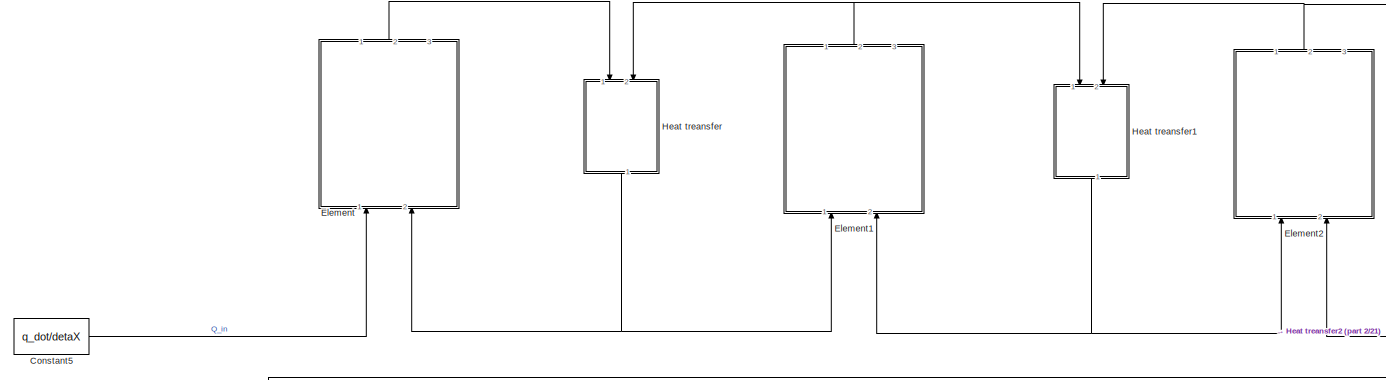
[diagram: root canvas - part 1/21, top left region]
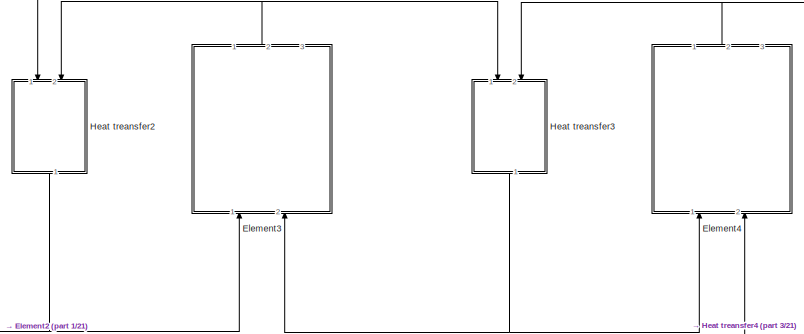
[diagram: root canvas - part 2/21, top left region]
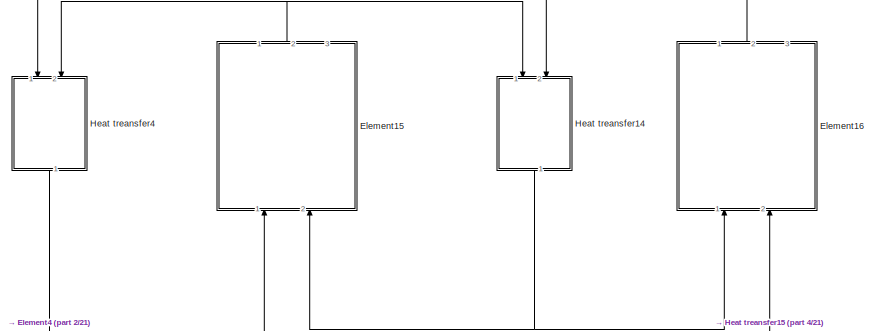
[diagram: root canvas - part 3/21, top center region]
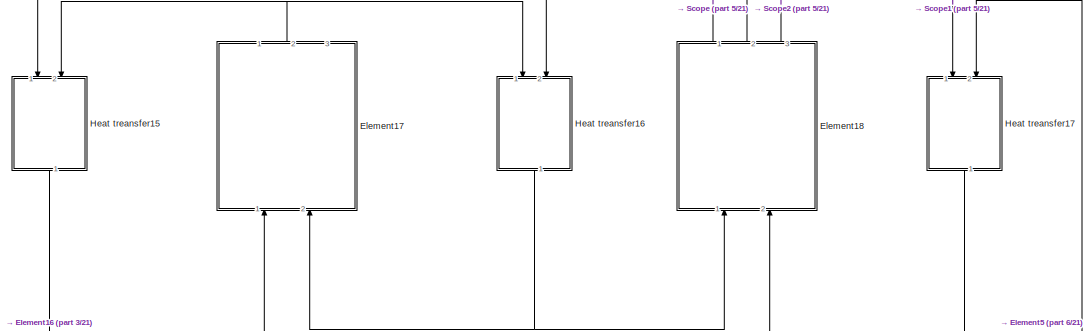
[diagram: root canvas - part 4/21, top center region]
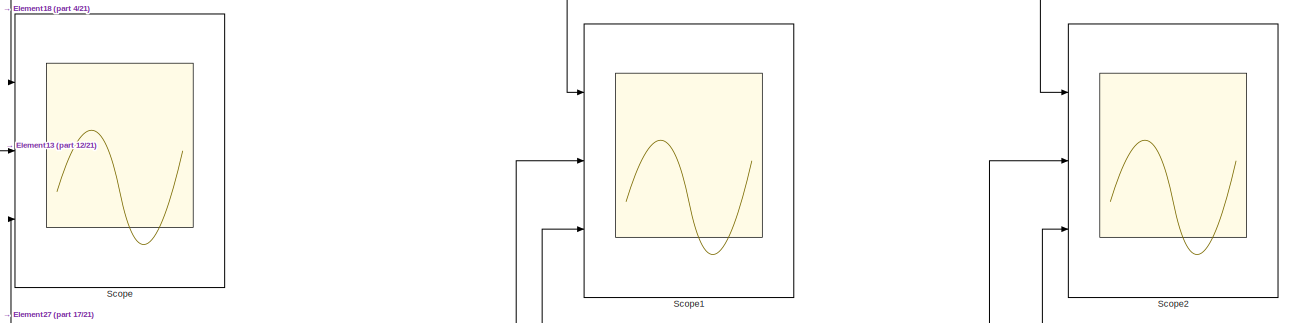
[diagram: root canvas - part 5/21, top right region]
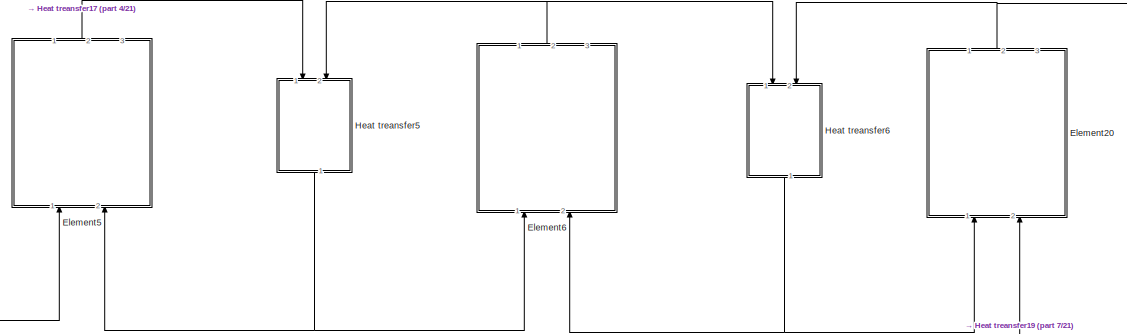
[diagram: root canvas - part 6/21, top left region]
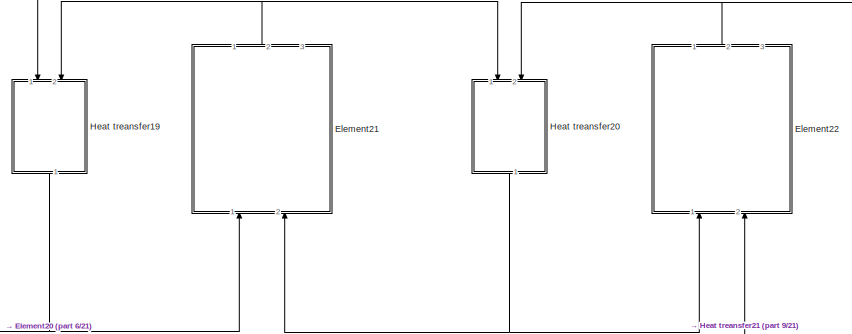
[diagram: root canvas - part 7/21, top left region]
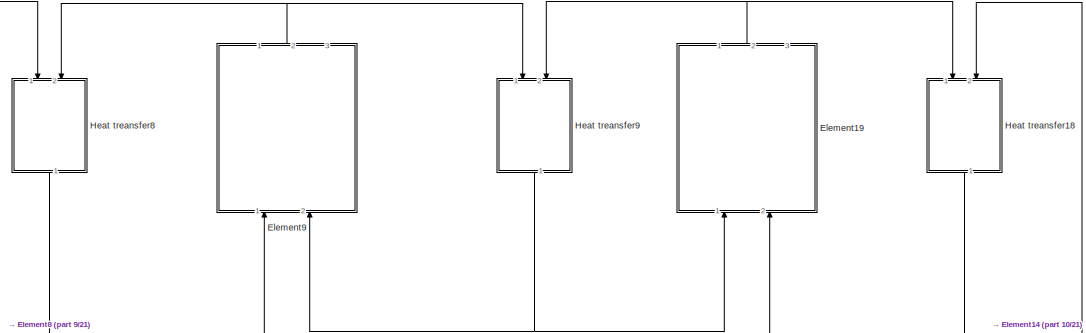
[diagram: root canvas - part 8/21, top center region]
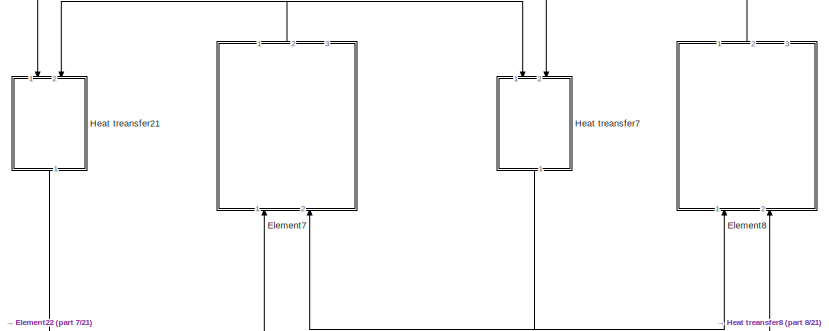
[diagram: root canvas - part 9/21, top center region]
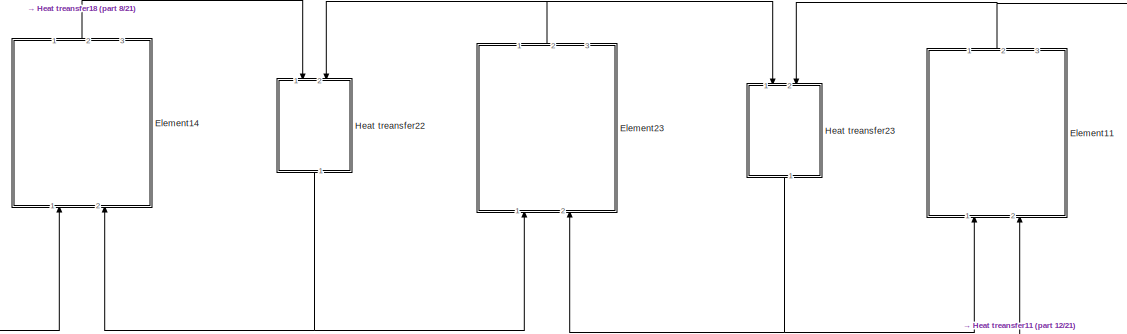
[diagram: root canvas - part 10/21, middle left region]
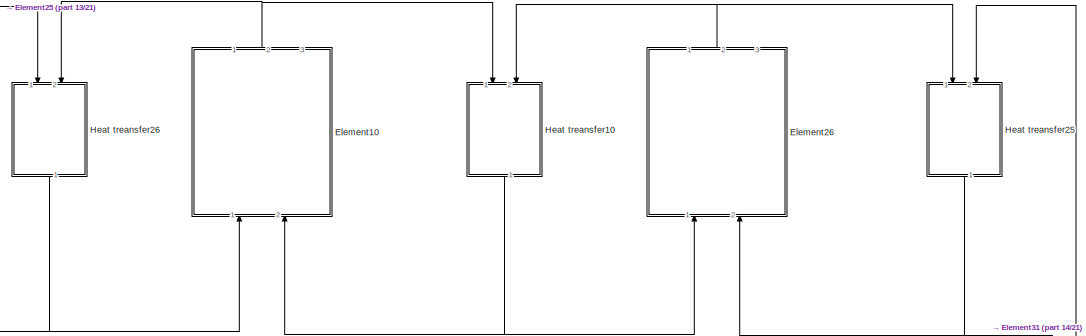
[diagram: root canvas - part 11/21, central region]
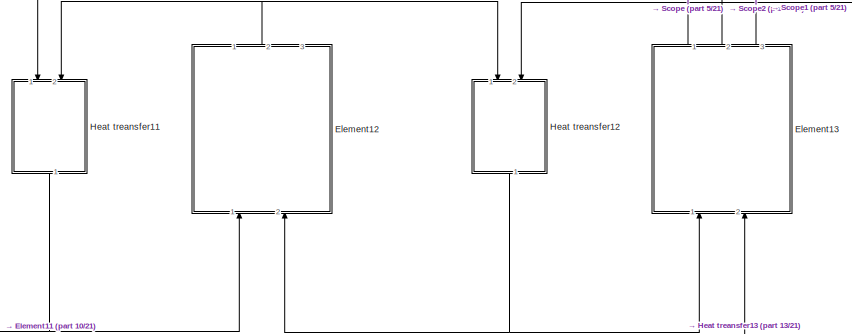
[diagram: root canvas - part 12/21, middle left region]
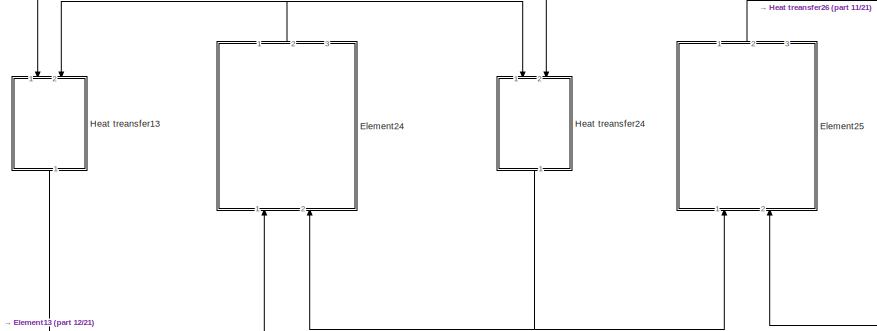
[diagram: root canvas - part 13/21, central region]
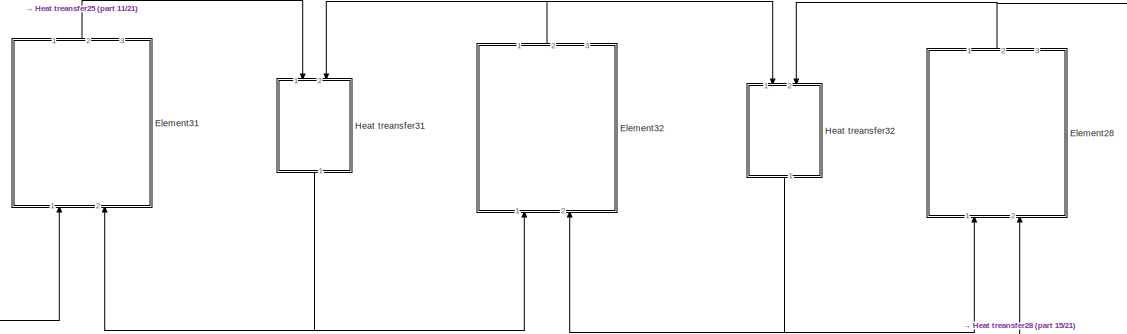
[diagram: root canvas - part 14/21, bottom left region]
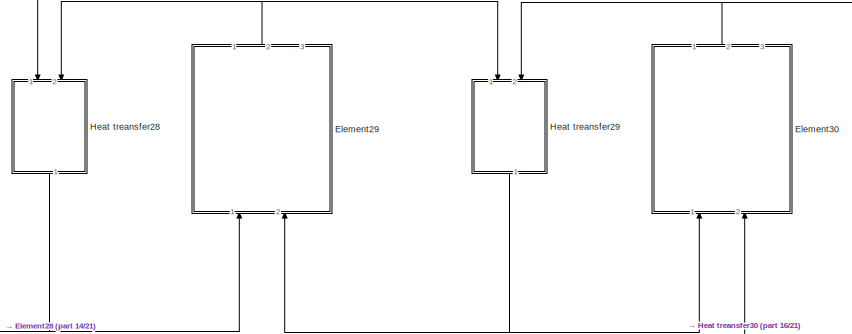
[diagram: root canvas - part 15/21, bottom left region]
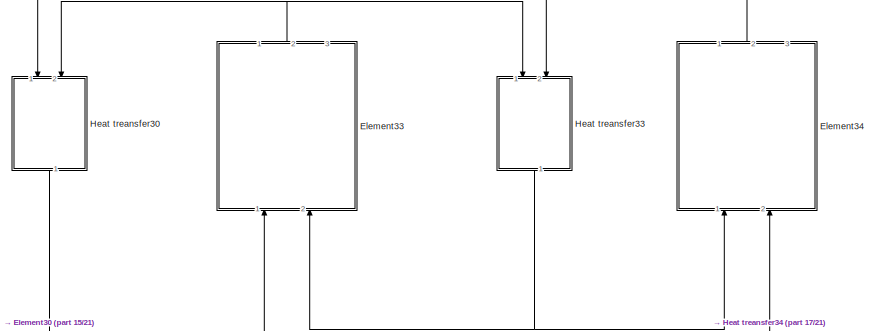
[diagram: root canvas - part 16/21, bottom center region]
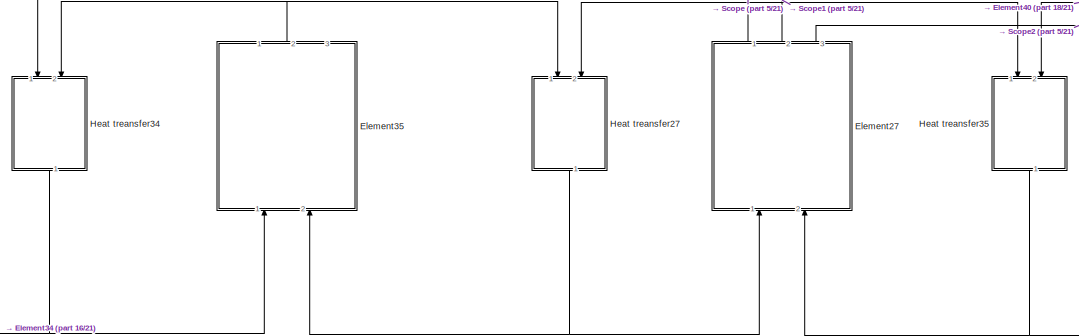
[diagram: root canvas - part 17/21, bottom center region]
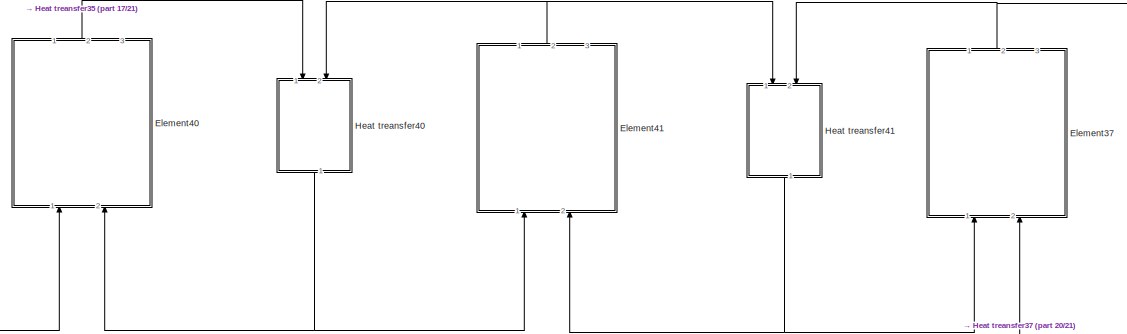
[diagram: root canvas - part 18/21, bottom left region]
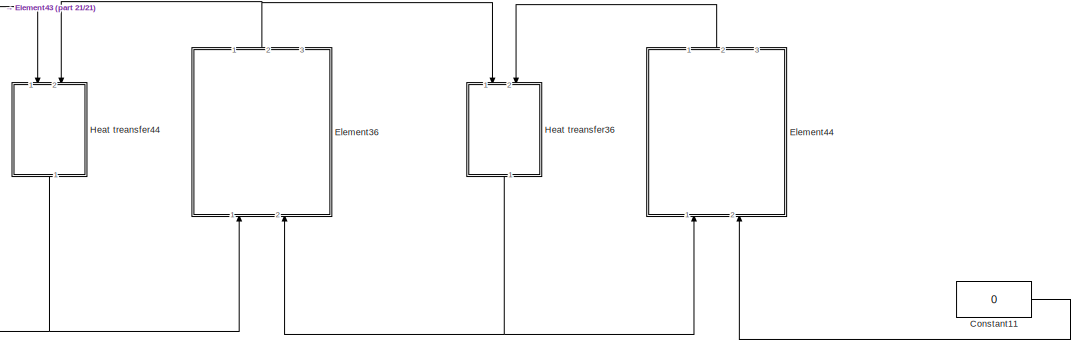
[diagram: root canvas - part 19/21, bottom center region]
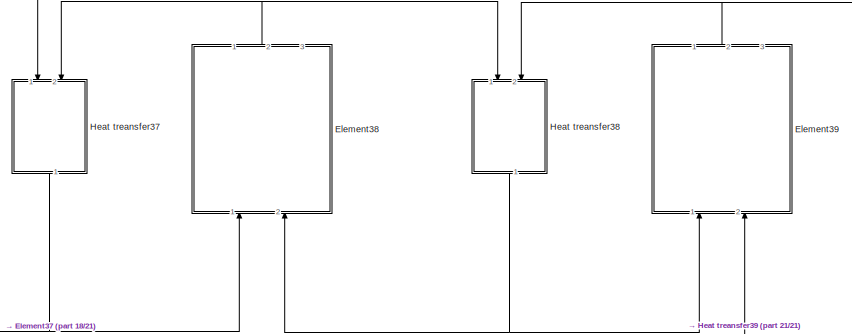
[diagram: root canvas - part 20/21, bottom left region]
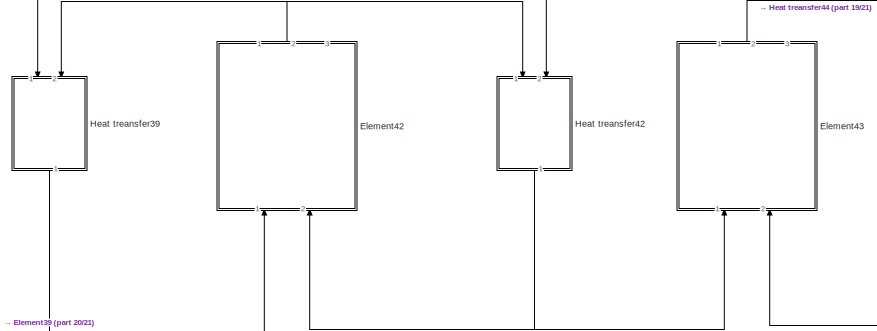
[diagram: root canvas - part 21/21, bottom center region]
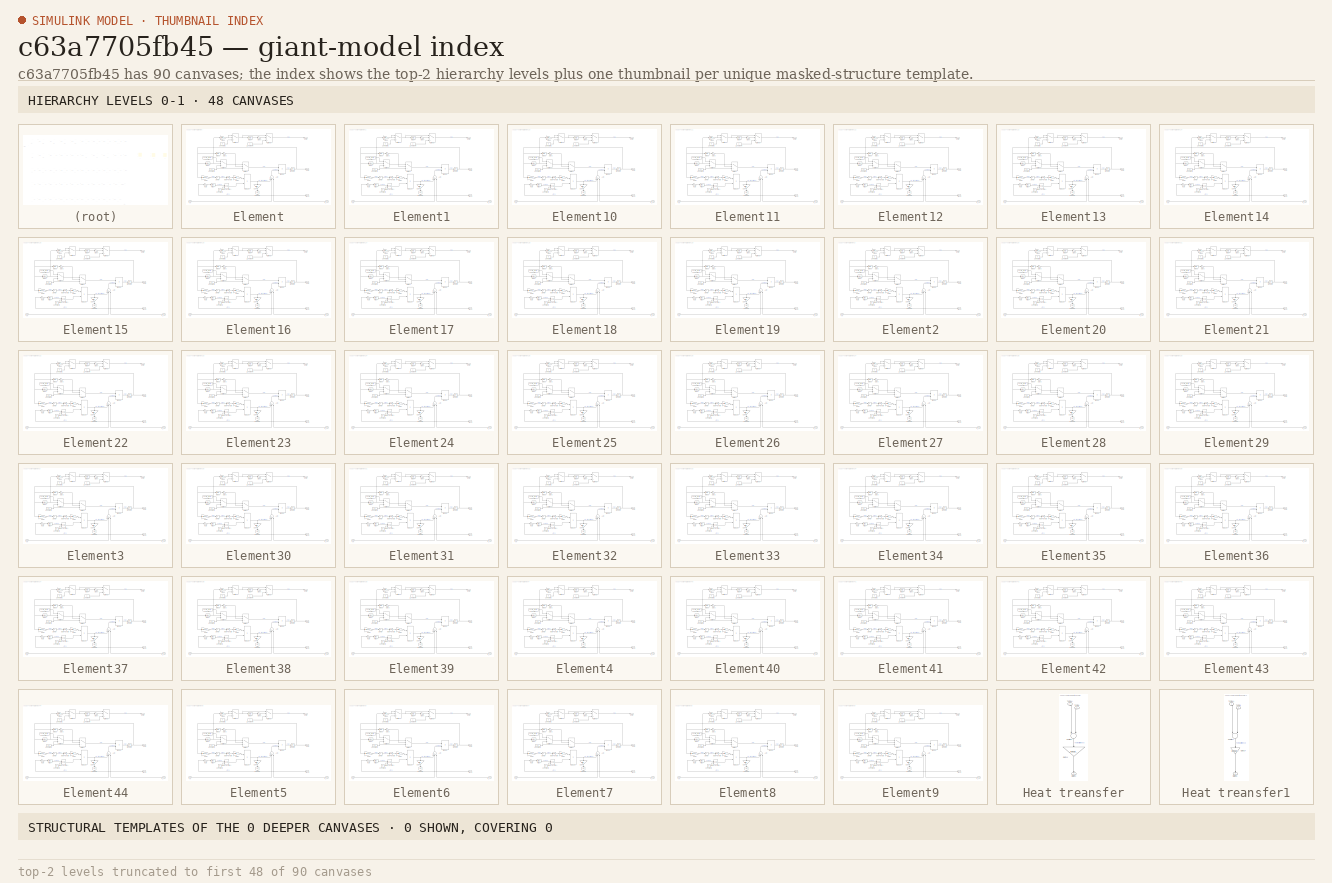
[diagram: thumbnail index - top-2 hierarchy levels (90 canvases (first 48 of 90 shown)) + 0 structural-template representatives of the remaining 0 canvases]
MODEL slx_c63a7705fb45
KIND model
CONFIG AbsTol = auto
CONFIG FixedStep = 1
CONFIG MaxStep = auto
CONFIG MinStep = auto
CONFIG RelTol = 1e-3
CONFIG SampleTimeConstraint = Unconstrained
CONFIG Solver = VariableStepAuto
CONFIG SolverMode = Auto
CONFIG SolverName = VariableStepAuto
CONFIG StartTime = 0.0
CONFIG StopTime = 1500
BLOCK [Constant] Constant11
  Value = 0
BLOCK [Constant] Constant5
  Value = q_dot/detaX
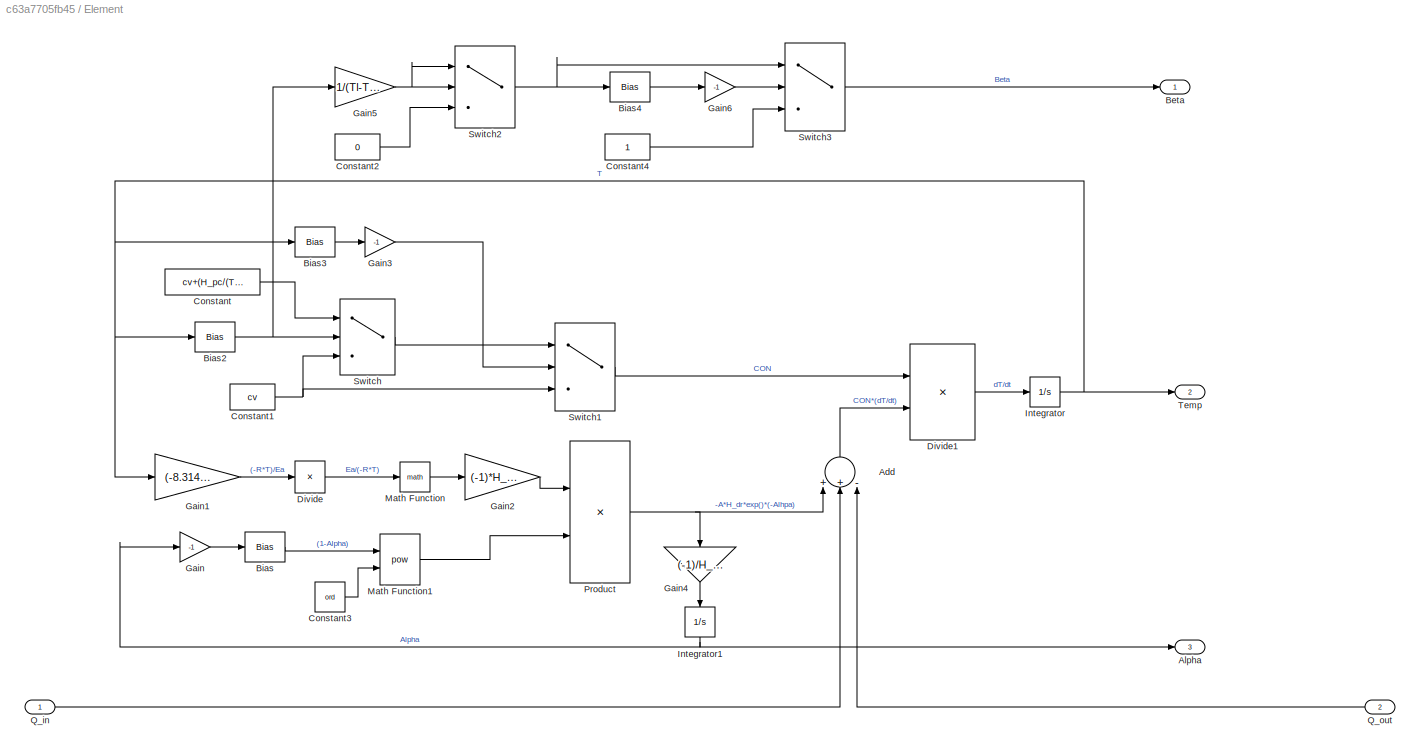
BLOCK [SubSystem] Element
  Ports = [2, 3]
  RequestExecContextInheritance = off
  Variant = off
BLOCK [Sum] Element/Add
  InputSameDT = off
  Inputs = ++-
  OutDataTypeStr = Inherit: Inherit via internal rule
  Ports = [3, 1]
  SaturateOnIntegerOverflow = off
BLOCK [Outport] Element/Alpha
  IconDisplay = Port number
  Port = 3
BLOCK [Outport] Element/Beta
  IconDisplay = Port number
BLOCK [Bias] Element/Bias
  Bias = 1
  SaturateOnIntegerOverflow = off
BLOCK [Bias] Element/Bias2
  Bias = -Ts
  SaturateOnIntegerOverflow = off
BLOCK [Bias] Element/Bias3
  Bias = -Tl
  SaturateOnIntegerOverflow = off
BLOCK [Bias] Element/Bias4
  Bias = -1
  SaturateOnIntegerOverflow = off
BLOCK [Constant] Element/Constant
  Value = cv+(H_pc/(Tl-Ts))
BLOCK [Constant] Element/Constant1
  Value = cv
BLOCK [Constant] Element/Constant2
  Value = 0
BLOCK [Constant] Element/Constant3
  Value = ord
BLOCK [Constant] Element/Constant4
BLOCK [Product] Element/Divide
  InputSameDT = off
  Inputs = /
  OutDataTypeStr = Inherit: Inherit via internal rule
  Ports = [1, 1]
  RndMeth = Floor
  SaturateOnIntegerOverflow = off
BLOCK [Product] Element/Divide1
  InputSameDT = off
  Inputs = /*
  OutDataTypeStr = Inherit: Inherit via internal rule
  Ports = [2, 1]
  RndMeth = Floor
  SaturateOnIntegerOverflow = off
BLOCK [Gain] Element/Gain
  Gain = -1
  OutDataTypeStr = Inherit: Inherit via internal rule
  ParamDataTypeStr = Inherit: Inherit via internal rule
  SaturateOnIntegerOverflow = off
BLOCK [Gain] Element/Gain1
  Gain = (-8.314)/Ea
  OutDataTypeStr = Inherit: Inherit via internal rule
  ParamDataTypeStr = Inherit: Inherit via internal rule
  SaturateOnIntegerOverflow = off
BLOCK [Gain] Element/Gain2
  Gain = (-1)*H_dr*A
  OutDataTypeStr = Inherit: Inherit via internal rule
  ParamDataTypeStr = Inherit: Inherit via internal rule
  SaturateOnIntegerOverflow = off
BLOCK [Gain] Element/Gain3
  Gain = -1
  OutDataTypeStr = Inherit: Inherit via internal rule
  ParamDataTypeStr = Inherit: Inherit via internal rule
  SaturateOnIntegerOverflow = off
BLOCK [Gain] Element/Gain4
  Gain = (-1)/H_dr
  OutDataTypeStr = Inherit: Inherit via internal rule
  ParamDataTypeStr = Inherit: Inherit via internal rule
  SaturateOnIntegerOverflow = off
BLOCK [Gain] Element/Gain5
  Gain = 1/(Tl-Ts)
  OutDataTypeStr = Inherit: Inherit via internal rule
  ParamDataTypeStr = Inherit: Inherit via internal rule
  SaturateOnIntegerOverflow = off
BLOCK [Gain] Element/Gain6
  Gain = -1
  OutDataTypeStr = Inherit: Inherit via internal rule
  ParamDataTypeStr = Inherit: Inherit via internal rule
  SaturateOnIntegerOverflow = off
BLOCK [Integrator] Element/Integrator
  InitialCondition = T_0
  Ports = [1, 1]
BLOCK [Integrator] Element/Integrator1
  Ports = [1, 1]
BLOCK [Math] Element/Math Function
  Ports = [1, 1]
BLOCK [Math] Element/Math Function1
  Operator = pow
  Ports = [2, 1]
BLOCK [Product] Element/Product
  InputSameDT = off
  OutDataTypeStr = Inherit: Inherit via internal rule
  Ports = [2, 1]
  RndMeth = Floor
  SaturateOnIntegerOverflow = off
BLOCK [Inport] Element/Q_in
  IconDisplay = Port number
BLOCK [Inport] Element/Q_out
  IconDisplay = Port number
  Port = 2
BLOCK [Switch] Element/Switch
  InputSameDT = off
  SaturateOnIntegerOverflow = off
BLOCK [Switch] Element/Switch1
  Criteria = u2 > Threshold
  InputSameDT = off
  SaturateOnIntegerOverflow = off
BLOCK [Switch] Element/Switch2
  InputSameDT = off
  SaturateOnIntegerOverflow = off
BLOCK [Switch] Element/Switch3
  Criteria = u2 > Threshold
  InputSameDT = off
  SaturateOnIntegerOverflow = off
BLOCK [Outport] Element/Temp
  IconDisplay = Port number
  Port = 2
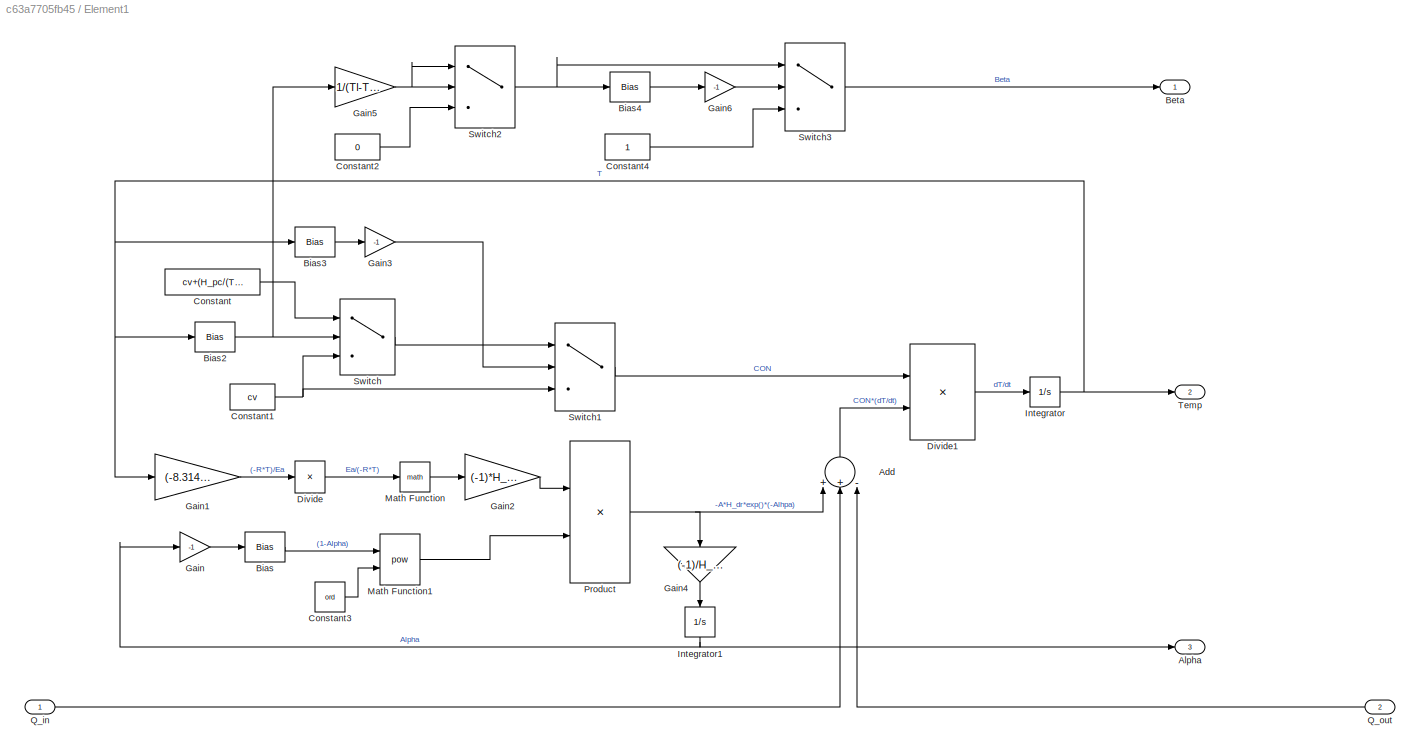
BLOCK [SubSystem] Element1
  Ports = [2, 3]
  RequestExecContextInheritance = off
  Variant = off
BLOCK [Sum] Element1/Add
  InputSameDT = off
  Inputs = ++-
  OutDataTypeStr = Inherit: Inherit via internal rule
  Ports = [3, 1]
  SaturateOnIntegerOverflow = off
BLOCK [Outport] Element1/Alpha
  IconDisplay = Port number
  Port = 3
BLOCK [Outport] Element1/Beta
  IconDisplay = Port number
BLOCK [Bias] Element1/Bias
  Bias = 1
  SaturateOnIntegerOverflow = off
BLOCK [Bias] Element1/Bias2
  Bias = -Ts
  SaturateOnIntegerOverflow = off
BLOCK [Bias] Element1/Bias3
  Bias = -Tl
  SaturateOnIntegerOverflow = off
BLOCK [Bias] Element1/Bias4
  Bias = -1
  SaturateOnIntegerOverflow = off
BLOCK [Constant] Element1/Constant
  Value = cv+(H_pc/(Tl-Ts))
BLOCK [Constant] Element1/Constant1
  Value = cv
BLOCK [Constant] Element1/Constant2
  Value = 0
BLOCK [Constant] Element1/Constant3
  Value = ord
BLOCK [Constant] Element1/Constant4
BLOCK [Product] Element1/Divide
  InputSameDT = off
  Inputs = /
  OutDataTypeStr = Inherit: Inherit via internal rule
  Ports = [1, 1]
  RndMeth = Floor
  SaturateOnIntegerOverflow = off
BLOCK [Product] Element1/Divide1
  InputSameDT = off
  Inputs = /*
  OutDataTypeStr = Inherit: Inherit via internal rule
  Ports = [2, 1]
  RndMeth = Floor
  SaturateOnIntegerOverflow = off
BLOCK [Gain] Element1/Gain
  Gain = -1
  OutDataTypeStr = Inherit: Inherit via internal rule
  ParamDataTypeStr = Inherit: Inherit via internal rule
  SaturateOnIntegerOverflow = off
BLOCK [Gain] Element1/Gain1
  Gain = (-8.314)/Ea
  OutDataTypeStr = Inherit: Inherit via internal rule
  ParamDataTypeStr = Inherit: Inherit via internal rule
  SaturateOnIntegerOverflow = off
BLOCK [Gain] Element1/Gain2
  Gain = (-1)*H_dr*A
  OutDataTypeStr = Inherit: Inherit via internal rule
  ParamDataTypeStr = Inherit: Inherit via internal rule
  SaturateOnIntegerOverflow = off
BLOCK [Gain] Element1/Gain3
  Gain = -1
  OutDataTypeStr = Inherit: Inherit via internal rule
  ParamDataTypeStr = Inherit: Inherit via internal rule
  SaturateOnIntegerOverflow = off
BLOCK [Gain] Element1/Gain4
  Gain = (-1)/H_dr
  OutDataTypeStr = Inherit: Inherit via internal rule
  ParamDataTypeStr = Inherit: Inherit via internal rule
  SaturateOnIntegerOverflow = off
BLOCK [Gain] Element1/Gain5
  Gain = 1/(Tl-Ts)
  OutDataTypeStr = Inherit: Inherit via internal rule
  ParamDataTypeStr = Inherit: Inherit via internal rule
  SaturateOnIntegerOverflow = off
BLOCK [Gain] Element1/Gain6
  Gain = -1
  OutDataTypeStr = Inherit: Inherit via internal rule
  ParamDataTypeStr = Inherit: Inherit via internal rule
  SaturateOnIntegerOverflow = off
BLOCK [Integrator] Element1/Integrator
  InitialCondition = T_0
  Ports = [1, 1]
BLOCK [Integrator] Element1/Integrator1
  Ports = [1, 1]
BLOCK [Math] Element1/Math Function
  Ports = [1, 1]
BLOCK [Math] Element1/Math Function1
  Operator = pow
  Ports = [2, 1]
BLOCK [Product] Element1/Product
  InputSameDT = off
  OutDataTypeStr = Inherit: Inherit via internal rule
  Ports = [2, 1]
  RndMeth = Floor
  SaturateOnIntegerOverflow = off
BLOCK [Inport] Element1/Q_in
  IconDisplay = Port number
BLOCK [Inport] Element1/Q_out
  IconDisplay = Port number
  Port = 2
BLOCK [Switch] Element1/Switch
  InputSameDT = off
  SaturateOnIntegerOverflow = off
BLOCK [Switch] Element1/Switch1
  Criteria = u2 > Threshold
  InputSameDT = off
  SaturateOnIntegerOverflow = off
BLOCK [Switch] Element1/Switch2
  InputSameDT = off
  SaturateOnIntegerOverflow = off
BLOCK [Switch] Element1/Switch3
  Criteria = u2 > Threshold
  InputSameDT = off
  SaturateOnIntegerOverflow = off
BLOCK [Outport] Element1/Temp
  IconDisplay = Port number
  Port = 2
BLOCK [SubSystem] Element10
  Ports = [2, 3]
  RequestExecContextInheritance = off
  Variant = off
BLOCK [Sum] Element10/Add
  InputSameDT = off
  Inputs = ++-
  OutDataTypeStr = Inherit: Inherit via internal rule
  Ports = [3, 1]
  SaturateOnIntegerOverflow = off
BLOCK [Outport] Element10/Alpha
  IconDisplay = Port number
  Port = 3
BLOCK [Outport] Element10/Beta
  IconDisplay = Port number
BLOCK [Bias] Element10/Bias
  Bias = 1
  SaturateOnIntegerOverflow = off
BLOCK [Bias] Element10/Bias2
  Bias = -Ts
  SaturateOnIntegerOverflow = off
BLOCK [Bias] Element10/Bias3
  Bias = -Tl
  SaturateOnIntegerOverflow = off
BLOCK [Bias] Element10/Bias4
  Bias = -1
  SaturateOnIntegerOverflow = off
BLOCK [Constant] Element10/Constant
  Value = cv+(H_pc/(Tl-Ts))
BLOCK [Constant] Element10/Constant1
  Value = cv
BLOCK [Constant] Element10/Constant2
  Value = 0
BLOCK [Constant] Element10/Constant3
  Value = ord
BLOCK [Constant] Element10/Constant4
BLOCK [Product] Element10/Divide
  InputSameDT = off
  Inputs = /
  OutDataTypeStr = Inherit: Inherit via internal rule
  Ports = [1, 1]
  RndMeth = Floor
  SaturateOnIntegerOverflow = off
BLOCK [Product] Element10/Divide1
  InputSameDT = off
  Inputs = /*
  OutDataTypeStr = Inherit: Inherit via internal rule
  Ports = [2, 1]
  RndMeth = Floor
  SaturateOnIntegerOverflow = off
BLOCK [Gain] Element10/Gain
  Gain = -1
  OutDataTypeStr = Inherit: Inherit via internal rule
  ParamDataTypeStr = Inherit: Inherit via internal rule
  SaturateOnIntegerOverflow = off
BLOCK [Gain] Element10/Gain1
  Gain = (-8.314)/Ea
  OutDataTypeStr = Inherit: Inherit via internal rule
  ParamDataTypeStr = Inherit: Inherit via internal rule
  SaturateOnIntegerOverflow = off
BLOCK [Gain] Element10/Gain2
  Gain = (-1)*H_dr*A
  OutDataTypeStr = Inherit: Inherit via internal rule
  ParamDataTypeStr = Inherit: Inherit via internal rule
  SaturateOnIntegerOverflow = off
BLOCK [Gain] Element10/Gain3
  Gain = -1
  OutDataTypeStr = Inherit: Inherit via internal rule
  ParamDataTypeStr = Inherit: Inherit via internal rule
  SaturateOnIntegerOverflow = off
BLOCK [Gain] Element10/Gain4
  Gain = (-1)/H_dr
  OutDataTypeStr = Inherit: Inherit via internal rule
  ParamDataTypeStr = Inherit: Inherit via internal rule
  SaturateOnIntegerOverflow = off
BLOCK [Gain] Element10/Gain5
  Gain = 1/(Tl-Ts)
  OutDataTypeStr = Inherit: Inherit via internal rule
  ParamDataTypeStr = Inherit: Inherit via internal rule
  SaturateOnIntegerOverflow = off
BLOCK [Gain] Element10/Gain6
  Gain = -1
  OutDataTypeStr = Inherit: Inherit via internal rule
  ParamDataTypeStr = Inherit: Inherit via internal rule
  SaturateOnIntegerOverflow = off
BLOCK [Integrator] Element10/Integrator
  InitialCondition = T_0
  Ports = [1, 1]
BLOCK [Integrator] Element10/Integrator1
  Ports = [1, 1]
BLOCK [Math] Element10/Math Function
  Ports = [1, 1]
BLOCK [Math] Element10/Math Function1
  Operator = pow
  Ports = [2, 1]
BLOCK [Product] Element10/Product
  InputSameDT = off
  OutDataTypeStr = Inherit: Inherit via internal rule
  Ports = [2, 1]
  RndMeth = Floor
  SaturateOnIntegerOverflow = off
BLOCK [Inport] Element10/Q_in
  IconDisplay = Port number
BLOCK [Inport] Element10/Q_out
  IconDisplay = Port number
  Port = 2
BLOCK [Switch] Element10/Switch
  InputSameDT = off
  SaturateOnIntegerOverflow = off
BLOCK [Switch] Element10/Switch1
  Criteria = u2 > Threshold
  InputSameDT = off
  SaturateOnIntegerOverflow = off
BLOCK [Switch] Element10/Switch2
  InputSameDT = off
  SaturateOnIntegerOverflow = off
BLOCK [Switch] Element10/Switch3
  Criteria = u2 > Threshold
  InputSameDT = off
  SaturateOnIntegerOverflow = off
BLOCK [Outport] Element10/Temp
  IconDisplay = Port number
  Port = 2
BLOCK [SubSystem] Element11
  Ports = [2, 3]
  RequestExecContextInheritance = off
  Variant = off
BLOCK [Sum] Element11/Add
  InputSameDT = off
  Inputs = ++-
  OutDataTypeStr = Inherit: Inherit via internal rule
  Ports = [3, 1]
  SaturateOnIntegerOverflow = off
BLOCK [Outport] Element11/Alpha
  IconDisplay = Port number
  Port = 3
BLOCK [Outport] Element11/Beta
  IconDisplay = Port number
BLOCK [Bias] Element11/Bias
  Bias = 1
  SaturateOnIntegerOverflow = off
BLOCK [Bias] Element11/Bias2
  Bias = -Ts
  SaturateOnIntegerOverflow = off
BLOCK [Bias] Element11/Bias3
  Bias = -Tl
  SaturateOnIntegerOverflow = off
BLOCK [Bias] Element11/Bias4
  Bias = -1
  SaturateOnIntegerOverflow = off
BLOCK [Constant] Element11/Constant
  Value = cv+(H_pc/(Tl-Ts))
BLOCK [Constant] Element11/Constant1
  Value = cv
BLOCK [Constant] Element11/Constant2
  Value = 0
BLOCK [Constant] Element11/Constant3
  Value = ord
BLOCK [Constant] Element11/Constant4
BLOCK [Product] Element11/Divide
  InputSameDT = off
  Inputs = /
  OutDataTypeStr = Inherit: Inherit via internal rule
  Ports = [1, 1]
  RndMeth = Floor
  SaturateOnIntegerOverflow = off
BLOCK [Product] Element11/Divide1
  InputSameDT = off
  Inputs = /*
  OutDataTypeStr = Inherit: Inherit via internal rule
  Ports = [2, 1]
  RndMeth = Floor
  SaturateOnIntegerOverflow = off
BLOCK [Gain] Element11/Gain
  Gain = -1
  OutDataTypeStr = Inherit: Inherit via internal rule
  ParamDataTypeStr = Inherit: Inherit via internal rule
  SaturateOnIntegerOverflow = off
BLOCK [Gain] Element11/Gain1
  Gain = (-8.314)/Ea
  OutDataTypeStr = Inherit: Inherit via internal rule
  ParamDataTypeStr = Inherit: Inherit via internal rule
  SaturateOnIntegerOverflow = off
BLOCK [Gain] Element11/Gain2
  Gain = (-1)*H_dr*A
  OutDataTypeStr = Inherit: Inherit via internal rule
  ParamDataTypeStr = Inherit: Inherit via internal rule
  SaturateOnIntegerOverflow = off
BLOCK [Gain] Element11/Gain3
  Gain = -1
  OutDataTypeStr = Inherit: Inherit via internal rule
  ParamDataTypeStr = Inherit: Inherit via internal rule
  SaturateOnIntegerOverflow = off
BLOCK [Gain] Element11/Gain4
  Gain = (-1)/H_dr
  OutDataTypeStr = Inherit: Inherit via internal rule
  ParamDataTypeStr = Inherit: Inherit via internal rule
  SaturateOnIntegerOverflow = off
BLOCK [Gain] Element11/Gain5
  Gain = 1/(Tl-Ts)
  OutDataTypeStr = Inherit: Inherit via internal rule
  ParamDataTypeStr = Inherit: Inherit via internal rule
  SaturateOnIntegerOverflow = off
BLOCK [Gain] Element11/Gain6
  Gain = -1
  OutDataTypeStr = Inherit: Inherit via internal rule
  ParamDataTypeStr = Inherit: Inherit via internal rule
  SaturateOnIntegerOverflow = off
BLOCK [Integrator] Element11/Integrator
  InitialCondition = T_0
  Ports = [1, 1]
BLOCK [Integrator] Element11/Integrator1
  Ports = [1, 1]
BLOCK [Math] Element11/Math Function
  Ports = [1, 1]
BLOCK [Math] Element11/Math Function1
  Operator = pow
  Ports = [2, 1]
BLOCK [Product] Element11/Product
  InputSameDT = off
  OutDataTypeStr = Inherit: Inherit via internal rule
  Ports = [2, 1]
  RndMeth = Floor
  SaturateOnIntegerOverflow = off
BLOCK [Inport] Element11/Q_in
  IconDisplay = Port number
BLOCK [Inport] Element11/Q_out
  IconDisplay = Port number
  Port = 2
BLOCK [Switch] Element11/Switch
  InputSameDT = off
  SaturateOnIntegerOverflow = off
BLOCK [Switch] Element11/Switch1
  Criteria = u2 > Threshold
  InputSameDT = off
  SaturateOnIntegerOverflow = off
BLOCK [Switch] Element11/Switch2
  InputSameDT = off
  SaturateOnIntegerOverflow = off
BLOCK [Switch] Element11/Switch3
  Criteria = u2 > Threshold
  InputSameDT = off
  SaturateOnIntegerOverflow = off
BLOCK [Outport] Element11/Temp
  IconDisplay = Port number
  Port = 2
BLOCK [SubSystem] Element12
  Ports = [2, 3]
  RequestExecContextInheritance = off
  Variant = off
BLOCK [Sum] Element12/Add
  InputSameDT = off
  Inputs = ++-
  OutDataTypeStr = Inherit: Inherit via internal rule
  Ports = [3, 1]
  SaturateOnIntegerOverflow = off
BLOCK [Outport] Element12/Alpha
  IconDisplay = Port number
  Port = 3
BLOCK [Outport] Element12/Beta
  IconDisplay = Port number
BLOCK [Bias] Element12/Bias
  Bias = 1
  SaturateOnIntegerOverflow = off
BLOCK [Bias] Element12/Bias2
  Bias = -Ts
  SaturateOnIntegerOverflow = off
BLOCK [Bias] Element12/Bias3
  Bias = -Tl
  SaturateOnIntegerOverflow = off
BLOCK [Bias] Element12/Bias4
  Bias = -1
  SaturateOnIntegerOverflow = off
BLOCK [Constant] Element12/Constant
  Value = cv+(H_pc/(Tl-Ts))
BLOCK [Constant] Element12/Constant1
  Value = cv
BLOCK [Constant] Element12/Constant2
  Value = 0
BLOCK [Constant] Element12/Constant3
  Value = ord
BLOCK [Constant] Element12/Constant4
BLOCK [Product] Element12/Divide
  InputSameDT = off
  Inputs = /
  OutDataTypeStr = Inherit: Inherit via internal rule
  Ports = [1, 1]
  RndMeth = Floor
  SaturateOnIntegerOverflow = off
BLOCK [Product] Element12/Divide1
  InputSameDT = off
  Inputs = /*
  OutDataTypeStr = Inherit: Inherit via internal rule
  Ports = [2, 1]
  RndMeth = Floor
  SaturateOnIntegerOverflow = off
BLOCK [Gain] Element12/Gain
  Gain = -1
  OutDataTypeStr = Inherit: Inherit via internal rule
  ParamDataTypeStr = Inherit: Inherit via internal rule
  SaturateOnIntegerOverflow = off
BLOCK [Gain] Element12/Gain1
  Gain = (-8.314)/Ea
  OutDataTypeStr = Inherit: Inherit via internal rule
  ParamDataTypeStr = Inherit: Inherit via internal rule
  SaturateOnIntegerOverflow = off
BLOCK [Gain] Element12/Gain2
  Gain = (-1)*H_dr*A
  OutDataTypeStr = Inherit: Inherit via internal rule
  ParamDataTypeStr = Inherit: Inherit via internal rule
  SaturateOnIntegerOverflow = off
BLOCK [Gain] Element12/Gain3
  Gain = -1
  OutDataTypeStr = Inherit: Inherit via internal rule
  ParamDataTypeStr = Inherit: Inherit via internal rule
  SaturateOnIntegerOverflow = off
BLOCK [Gain] Element12/Gain4
  Gain = (-1)/H_dr
  OutDataTypeStr = Inherit: Inherit via internal rule
  ParamDataTypeStr = Inherit: Inherit via internal rule
  SaturateOnIntegerOverflow = off
BLOCK [Gain] Element12/Gain5
  Gain = 1/(Tl-Ts)
  OutDataTypeStr = Inherit: Inherit via internal rule
  ParamDataTypeStr = Inherit: Inherit via internal rule
  SaturateOnIntegerOverflow = off
BLOCK [Gain] Element12/Gain6
  Gain = -1
  OutDataTypeStr = Inherit: Inherit via internal rule
  ParamDataTypeStr = Inherit: Inherit via internal rule
  SaturateOnIntegerOverflow = off
BLOCK [Integrator] Element12/Integrator
  InitialCondition = T_0
  Ports = [1, 1]
BLOCK [Integrator] Element12/Integrator1
  Ports = [1, 1]
BLOCK [Math] Element12/Math Function
  Ports = [1, 1]
BLOCK [Math] Element12/Math Function1
  Operator = pow
  Ports = [2, 1]
BLOCK [Product] Element12/Product
  InputSameDT = off
  OutDataTypeStr = Inherit: Inherit via internal rule
  Ports = [2, 1]
  RndMeth = Floor
  SaturateOnIntegerOverflow = off
BLOCK [Inport] Element12/Q_in
  IconDisplay = Port number
BLOCK [Inport] Element12/Q_out
  IconDisplay = Port number
  Port = 2
BLOCK [Switch] Element12/Switch
  InputSameDT = off
  SaturateOnIntegerOverflow = off
BLOCK [Switch] Element12/Switch1
  Criteria = u2 > Threshold
  InputSameDT = off
  SaturateOnIntegerOverflow = off
BLOCK [Switch] Element12/Switch2
  InputSameDT = off
  SaturateOnIntegerOverflow = off
BLOCK [Switch] Element12/Switch3
  Criteria = u2 > Threshold
  InputSameDT = off
  SaturateOnIntegerOverflow = off
BLOCK [Outport] Element12/Temp
  IconDisplay = Port number
  Port = 2
BLOCK [SubSystem] Element13
  Ports = [2, 3]
  RequestExecContextInheritance = off
  Variant = off
BLOCK [Sum] Element13/Add
  InputSameDT = off
  Inputs = ++-
  OutDataTypeStr = Inherit: Inherit via internal rule
  Ports = [3, 1]
  SaturateOnIntegerOverflow = off
BLOCK [Outport] Element13/Alpha
  IconDisplay = Port number
  Port = 3
BLOCK [Outport] Element13/Beta
  IconDisplay = Port number
BLOCK [Bias] Element13/Bias
  Bias = 1
  SaturateOnIntegerOverflow = off
BLOCK [Bias] Element13/Bias2
  Bias = -Ts
  SaturateOnIntegerOverflow = off
BLOCK [Bias] Element13/Bias3
  Bias = -Tl
  SaturateOnIntegerOverflow = off
BLOCK [Bias] Element13/Bias4
  Bias = -1
  SaturateOnIntegerOverflow = off
BLOCK [Constant] Element13/Constant
  Value = cv+(H_pc/(Tl-Ts))
BLOCK [Constant] Element13/Constant1
  Value = cv
BLOCK [Constant] Element13/Constant2
  Value = 0
BLOCK [Constant] Element13/Constant3
  Value = ord
BLOCK [Constant] Element13/Constant4
BLOCK [Product] Element13/Divide
  InputSameDT = off
  Inputs = /
  OutDataTypeStr = Inherit: Inherit via internal rule
  Ports = [1, 1]
  RndMeth = Floor
  SaturateOnIntegerOverflow = off
BLOCK [Product] Element13/Divide1
  InputSameDT = off
  Inputs = /*
  OutDataTypeStr = Inherit: Inherit via internal rule
  Ports = [2, 1]
  RndMeth = Floor
  SaturateOnIntegerOverflow = off
BLOCK [Gain] Element13/Gain
  Gain = -1
  OutDataTypeStr = Inherit: Inherit via internal rule
  ParamDataTypeStr = Inherit: Inherit via internal rule
  SaturateOnIntegerOverflow = off
BLOCK [Gain] Element13/Gain1
  Gain = (-8.314)/Ea
  OutDataTypeStr = Inherit: Inherit via internal rule
  ParamDataTypeStr = Inherit: Inherit via internal rule
  SaturateOnIntegerOverflow = off
BLOCK [Gain] Element13/Gain2
  Gain = (-1)*H_dr*A
  OutDataTypeStr = Inherit: Inherit via internal rule
  ParamDataTypeStr = Inherit: Inherit via internal rule
  SaturateOnIntegerOverflow = off
BLOCK [Gain] Element13/Gain3
  Gain = -1
  OutDataTypeStr = Inherit: Inherit via internal rule
  ParamDataTypeStr = Inherit: Inherit via internal rule
  SaturateOnIntegerOverflow = off
BLOCK [Gain] Element13/Gain4
  Gain = (-1)/H_dr
  OutDataTypeStr = Inherit: Inherit via internal rule
  ParamDataTypeStr = Inherit: Inherit via internal rule
  SaturateOnIntegerOverflow = off
BLOCK [Gain] Element13/Gain5
  Gain = 1/(Tl-Ts)
  OutDataTypeStr = Inherit: Inherit via internal rule
  ParamDataTypeStr = Inherit: Inherit via internal rule
  SaturateOnIntegerOverflow = off
BLOCK [Gain] Element13/Gain6
  Gain = -1
  OutDataTypeStr = Inherit: Inherit via internal rule
  ParamDataTypeStr = Inherit: Inherit via internal rule
  SaturateOnIntegerOverflow = off
BLOCK [Integrator] Element13/Integrator
  InitialCondition = T_0
  Ports = [1, 1]
BLOCK [Integrator] Element13/Integrator1
  Ports = [1, 1]
BLOCK [Math] Element13/Math Function
  Ports = [1, 1]
BLOCK [Math] Element13/Math Function1
  Operator = pow
  Ports = [2, 1]
BLOCK [Product] Element13/Product
  InputSameDT = off
  OutDataTypeStr = Inherit: Inherit via internal rule
  Ports = [2, 1]
  RndMeth = Floor
  SaturateOnIntegerOverflow = off
BLOCK [Inport] Element13/Q_in
  IconDisplay = Port number
BLOCK [Inport] Element13/Q_out
  IconDisplay = Port number
  Port = 2
BLOCK [Switch] Element13/Switch
  InputSameDT = off
  SaturateOnIntegerOverflow = off
BLOCK [Switch] Element13/Switch1
  Criteria = u2 > Threshold
  InputSameDT = off
  SaturateOnIntegerOverflow = off
BLOCK [Switch] Element13/Switch2
  InputSameDT = off
  SaturateOnIntegerOverflow = off
BLOCK [Switch] Element13/Switch3
  Criteria = u2 > Threshold
  InputSameDT = off
  SaturateOnIntegerOverflow = off
BLOCK [Outport] Element13/Temp
  IconDisplay = Port number
  Port = 2
BLOCK [SubSystem] Element14
  Ports = [2, 3]
  RequestExecContextInheritance = off
  Variant = off
BLOCK [Sum] Element14/Add
  InputSameDT = off
  Inputs = ++-
  OutDataTypeStr = Inherit: Inherit via internal rule
  Ports = [3, 1]
  SaturateOnIntegerOverflow = off
BLOCK [Outport] Element14/Alpha
  IconDisplay = Port number
  Port = 3
BLOCK [Outport] Element14/Beta
  IconDisplay = Port number
BLOCK [Bias] Element14/Bias
  Bias = 1
  SaturateOnIntegerOverflow = off
BLOCK [Bias] Element14/Bias2
  Bias = -Ts
  SaturateOnIntegerOverflow = off
BLOCK [Bias] Element14/Bias3
  Bias = -Tl
  SaturateOnIntegerOverflow = off
BLOCK [Bias] Element14/Bias4
  Bias = -1
  SaturateOnIntegerOverflow = off
BLOCK [Constant] Element14/Constant
  Value = cv+(H_pc/(Tl-Ts))
BLOCK [Constant] Element14/Constant1
  Value = cv
BLOCK [Constant] Element14/Constant2
  Value = 0
BLOCK [Constant] Element14/Constant3
  Value = ord
BLOCK [Constant] Element14/Constant4
BLOCK [Product] Element14/Divide
  InputSameDT = off
  Inputs = /
  OutDataTypeStr = Inherit: Inherit via internal rule
  Ports = [1, 1]
  RndMeth = Floor
  SaturateOnIntegerOverflow = off
BLOCK [Product] Element14/Divide1
  InputSameDT = off
  Inputs = /*
  OutDataTypeStr = Inherit: Inherit via internal rule
  Ports = [2, 1]
  RndMeth = Floor
  SaturateOnIntegerOverflow = off
BLOCK [Gain] Element14/Gain
  Gain = -1
  OutDataTypeStr = Inherit: Inherit via internal rule
  ParamDataTypeStr = Inherit: Inherit via internal rule
  SaturateOnIntegerOverflow = off
BLOCK [Gain] Element14/Gain1
  Gain = (-8.314)/Ea
  OutDataTypeStr = Inherit: Inherit via internal rule
  ParamDataTypeStr = Inherit: Inherit via internal rule
  SaturateOnIntegerOverflow = off
BLOCK [Gain] Element14/Gain2
  Gain = (-1)*H_dr*A
  OutDataTypeStr = Inherit: Inherit via internal rule
  ParamDataTypeStr = Inherit: Inherit via internal rule
  SaturateOnIntegerOverflow = off
BLOCK [Gain] Element14/Gain3
  Gain = -1
  OutDataTypeStr = Inherit: Inherit via internal rule
  ParamDataTypeStr = Inherit: Inherit via internal rule
  SaturateOnIntegerOverflow = off
BLOCK [Gain] Element14/Gain4
  Gain = (-1)/H_dr
  OutDataTypeStr = Inherit: Inherit via internal rule
  ParamDataTypeStr = Inherit: Inherit via internal rule
  SaturateOnIntegerOverflow = off
BLOCK [Gain] Element14/Gain5
  Gain = 1/(Tl-Ts)
  OutDataTypeStr = Inherit: Inherit via internal rule
  ParamDataTypeStr = Inherit: Inherit via internal rule
  SaturateOnIntegerOverflow = off
BLOCK [Gain] Element14/Gain6
  Gain = -1
  OutDataTypeStr = Inherit: Inherit via internal rule
  ParamDataTypeStr = Inherit: Inherit via internal rule
  SaturateOnIntegerOverflow = off
BLOCK [Integrator] Element14/Integrator
  InitialCondition = T_0
  Ports = [1, 1]
BLOCK [Integrator] Element14/Integrator1
  Ports = [1, 1]
BLOCK [Math] Element14/Math Function
  Ports = [1, 1]
BLOCK [Math] Element14/Math Function1
  Operator = pow
  Ports = [2, 1]
BLOCK [Product] Element14/Product
  InputSameDT = off
  OutDataTypeStr = Inherit: Inherit via internal rule
  Ports = [2, 1]
  RndMeth = Floor
  SaturateOnIntegerOverflow = off
BLOCK [Inport] Element14/Q_in
  IconDisplay = Port number
BLOCK [Inport] Element14/Q_out
  IconDisplay = Port number
  Port = 2
BLOCK [Switch] Element14/Switch
  InputSameDT = off
  SaturateOnIntegerOverflow = off
BLOCK [Switch] Element14/Switch1
  Criteria = u2 > Threshold
  InputSameDT = off
  SaturateOnIntegerOverflow = off
BLOCK [Switch] Element14/Switch2
  InputSameDT = off
  SaturateOnIntegerOverflow = off
BLOCK [Switch] Element14/Switch3
  Criteria = u2 > Threshold
  InputSameDT = off
  SaturateOnIntegerOverflow = off
BLOCK [Outport] Element14/Temp
  IconDisplay = Port number
  Port = 2
BLOCK [SubSystem] Element15
  Ports = [2, 3]
  RequestExecContextInheritance = off
  Variant = off
BLOCK [Sum] Element15/Add
  InputSameDT = off
  Inputs = ++-
  OutDataTypeStr = Inherit: Inherit via internal rule
  Ports = [3, 1]
  SaturateOnIntegerOverflow = off
BLOCK [Outport] Element15/Alpha
  IconDisplay = Port number
  Port = 3
BLOCK [Outport] Element15/Beta
  IconDisplay = Port number
BLOCK [Bias] Element15/Bias
  Bias = 1
  SaturateOnIntegerOverflow = off
BLOCK [Bias] Element15/Bias2
  Bias = -Ts
  SaturateOnIntegerOverflow = off
BLOCK [Bias] Element15/Bias3
  Bias = -Tl
  SaturateOnIntegerOverflow = off
BLOCK [Bias] Element15/Bias4
  Bias = -1
  SaturateOnIntegerOverflow = off
BLOCK [Constant] Element15/Constant
  Value = cv+(H_pc/(Tl-Ts))
BLOCK [Constant] Element15/Constant1
  Value = cv
BLOCK [Constant] Element15/Constant2
  Value = 0
BLOCK [Constant] Element15/Constant3
  Value = ord
BLOCK [Constant] Element15/Constant4
BLOCK [Product] Element15/Divide
  InputSameDT = off
  Inputs = /
  OutDataTypeStr = Inherit: Inherit via internal rule
  Ports = [1, 1]
  RndMeth = Floor
  SaturateOnIntegerOverflow = off
BLOCK [Product] Element15/Divide1
  InputSameDT = off
  Inputs = /*
  OutDataTypeStr = Inherit: Inherit via internal rule
  Ports = [2, 1]
  RndMeth = Floor
  SaturateOnIntegerOverflow = off
BLOCK [Gain] Element15/Gain
  Gain = -1
  OutDataTypeStr = Inherit: Inherit via internal rule
  ParamDataTypeStr = Inherit: Inherit via internal rule
  SaturateOnIntegerOverflow = off
BLOCK [Gain] Element15/Gain1
  Gain = (-8.314)/Ea
  OutDataTypeStr = Inherit: Inherit via internal rule
  ParamDataTypeStr = Inherit: Inherit via internal rule
  SaturateOnIntegerOverflow = off
BLOCK [Gain] Element15/Gain2
  Gain = (-1)*H_dr*A
  OutDataTypeStr = Inherit: Inherit via internal rule
  ParamDataTypeStr = Inherit: Inherit via internal rule
  SaturateOnIntegerOverflow = off
BLOCK [Gain] Element15/Gain3
  Gain = -1
  OutDataTypeStr = Inherit: Inherit via internal rule
  ParamDataTypeStr = Inherit: Inherit via internal rule
  SaturateOnIntegerOverflow = off
BLOCK [Gain] Element15/Gain4
  Gain = (-1)/H_dr
  OutDataTypeStr = Inherit: Inherit via internal rule
  ParamDataTypeStr = Inherit: Inherit via internal rule
  SaturateOnIntegerOverflow = off
BLOCK [Gain] Element15/Gain5
  Gain = 1/(Tl-Ts)
  OutDataTypeStr = Inherit: Inherit via internal rule
  ParamDataTypeStr = Inherit: Inherit via internal rule
  SaturateOnIntegerOverflow = off
BLOCK [Gain] Element15/Gain6
  Gain = -1
  OutDataTypeStr = Inherit: Inherit via internal rule
  ParamDataTypeStr = Inherit: Inherit via internal rule
  SaturateOnIntegerOverflow = off
BLOCK [Integrator] Element15/Integrator
  InitialCondition = T_0
  Ports = [1, 1]
BLOCK [Integrator] Element15/Integrator1
  Ports = [1, 1]
BLOCK [Math] Element15/Math Function
  Ports = [1, 1]
BLOCK [Math] Element15/Math Function1
  Operator = pow
  Ports = [2, 1]
BLOCK [Product] Element15/Product
  InputSameDT = off
  OutDataTypeStr = Inherit: Inherit via internal rule
  Ports = [2, 1]
  RndMeth = Floor
  SaturateOnIntegerOverflow = off
BLOCK [Inport] Element15/Q_in
  IconDisplay = Port number
BLOCK [Inport] Element15/Q_out
  IconDisplay = Port number
  Port = 2
BLOCK [Switch] Element15/Switch
  InputSameDT = off
  SaturateOnIntegerOverflow = off
BLOCK [Switch] Element15/Switch1
  Criteria = u2 > Threshold
  InputSameDT = off
  SaturateOnIntegerOverflow = off
BLOCK [Switch] Element15/Switch2
  InputSameDT = off
  SaturateOnIntegerOverflow = off
BLOCK [Switch] Element15/Switch3
  Criteria = u2 > Threshold
  InputSameDT = off
  SaturateOnIntegerOverflow = off
BLOCK [Outport] Element15/Temp
  IconDisplay = Port number
  Port = 2
BLOCK [SubSystem] Element16
  Ports = [2, 3]
  RequestExecContextInheritance = off
  Variant = off
BLOCK [Sum] Element16/Add
  InputSameDT = off
  Inputs = ++-
  OutDataTypeStr = Inherit: Inherit via internal rule
  Ports = [3, 1]
  SaturateOnIntegerOverflow = off
BLOCK [Outport] Element16/Alpha
  IconDisplay = Port number
  Port = 3
BLOCK [Outport] Element16/Beta
  IconDisplay = Port number
BLOCK [Bias] Element16/Bias
  Bias = 1
  SaturateOnIntegerOverflow = off
BLOCK [Bias] Element16/Bias2
  Bias = -Ts
  SaturateOnIntegerOverflow = off
BLOCK [Bias] Element16/Bias3
  Bias = -Tl
  SaturateOnIntegerOverflow = off
BLOCK [Bias] Element16/Bias4
  Bias = -1
  SaturateOnIntegerOverflow = off
BLOCK [Constant] Element16/Constant
  Value = cv+(H_pc/(Tl-Ts))
BLOCK [Constant] Element16/Constant1
  Value = cv
BLOCK [Constant] Element16/Constant2
  Value = 0
BLOCK [Constant] Element16/Constant3
  Value = ord
BLOCK [Constant] Element16/Constant4
BLOCK [Product] Element16/Divide
  InputSameDT = off
  Inputs = /
  OutDataTypeStr = Inherit: Inherit via internal rule
  Ports = [1, 1]
  RndMeth = Floor
  SaturateOnIntegerOverflow = off
BLOCK [Product] Element16/Divide1
  InputSameDT = off
  Inputs = /*
  OutDataTypeStr = Inherit: Inherit via internal rule
  Ports = [2, 1]
  RndMeth = Floor
  SaturateOnIntegerOverflow = off
BLOCK [Gain] Element16/Gain
  Gain = -1
  OutDataTypeStr = Inherit: Inherit via internal rule
  ParamDataTypeStr = Inherit: Inherit via internal rule
  SaturateOnIntegerOverflow = off
BLOCK [Gain] Element16/Gain1
  Gain = (-8.314)/Ea
  OutDataTypeStr = Inherit: Inherit via internal rule
  ParamDataTypeStr = Inherit: Inherit via internal rule
  SaturateOnIntegerOverflow = off
BLOCK [Gain] Element16/Gain2
  Gain = (-1)*H_dr*A
  OutDataTypeStr = Inherit: Inherit via internal rule
  ParamDataTypeStr = Inherit: Inherit via internal rule
  SaturateOnIntegerOverflow = off
BLOCK [Gain] Element16/Gain3
  Gain = -1
  OutDataTypeStr = Inherit: Inherit via internal rule
  ParamDataTypeStr = Inherit: Inherit via internal rule
  SaturateOnIntegerOverflow = off
BLOCK [Gain] Element16/Gain4
  Gain = (-1)/H_dr
  OutDataTypeStr = Inherit: Inherit via internal rule
  ParamDataTypeStr = Inherit: Inherit via internal rule
  SaturateOnIntegerOverflow = off
BLOCK [Gain] Element16/Gain5
  Gain = 1/(Tl-Ts)
  OutDataTypeStr = Inherit: Inherit via internal rule
  ParamDataTypeStr = Inherit: Inherit via internal rule
  SaturateOnIntegerOverflow = off
BLOCK [Gain] Element16/Gain6
  Gain = -1
  OutDataTypeStr = Inherit: Inherit via internal rule
  ParamDataTypeStr = Inherit: Inherit via internal rule
  SaturateOnIntegerOverflow = off
BLOCK [Integrator] Element16/Integrator
  InitialCondition = T_0
  Ports = [1, 1]
BLOCK [Integrator] Element16/Integrator1
  Ports = [1, 1]
BLOCK [Math] Element16/Math Function
  Ports = [1, 1]
BLOCK [Math] Element16/Math Function1
  Operator = pow
  Ports = [2, 1]
BLOCK [Product] Element16/Product
  InputSameDT = off
  OutDataTypeStr = Inherit: Inherit via internal rule
  Ports = [2, 1]
  RndMeth = Floor
  SaturateOnIntegerOverflow = off
BLOCK [Inport] Element16/Q_in
  IconDisplay = Port number
BLOCK [Inport] Element16/Q_out
  IconDisplay = Port number
  Port = 2
BLOCK [Switch] Element16/Switch
  InputSameDT = off
  SaturateOnIntegerOverflow = off
BLOCK [Switch] Element16/Switch1
  Criteria = u2 > Threshold
  InputSameDT = off
  SaturateOnIntegerOverflow = off
BLOCK [Switch] Element16/Switch2
  InputSameDT = off
  SaturateOnIntegerOverflow = off
BLOCK [Switch] Element16/Switch3
  Criteria = u2 > Threshold
  InputSameDT = off
  SaturateOnIntegerOverflow = off
BLOCK [Outport] Element16/Temp
  IconDisplay = Port number
  Port = 2
BLOCK [SubSystem] Element17
  Ports = [2, 3]
  RequestExecContextInheritance = off
  Variant = off
BLOCK [Sum] Element17/Add
  InputSameDT = off
  Inputs = ++-
  OutDataTypeStr = Inherit: Inherit via internal rule
  Ports = [3, 1]
  SaturateOnIntegerOverflow = off
BLOCK [Outport] Element17/Alpha
  IconDisplay = Port number
  Port = 3
BLOCK [Outport] Element17/Beta
  IconDisplay = Port number
BLOCK [Bias] Element17/Bias
  Bias = 1
  SaturateOnIntegerOverflow = off
BLOCK [Bias] Element17/Bias2
  Bias = -Ts
  SaturateOnIntegerOverflow = off
BLOCK [Bias] Element17/Bias3
  Bias = -Tl
  SaturateOnIntegerOverflow = off
BLOCK [Bias] Element17/Bias4
  Bias = -1
  SaturateOnIntegerOverflow = off
BLOCK [Constant] Element17/Constant
  Value = cv+(H_pc/(Tl-Ts))
BLOCK [Constant] Element17/Constant1
  Value = cv
BLOCK [Constant] Element17/Constant2
  Value = 0
BLOCK [Constant] Element17/Constant3
  Value = ord
BLOCK [Constant] Element17/Constant4
BLOCK [Product] Element17/Divide
  InputSameDT = off
  Inputs = /
  OutDataTypeStr = Inherit: Inherit via internal rule
  Ports = [1, 1]
  RndMeth = Floor
  SaturateOnIntegerOverflow = off
BLOCK [Product] Element17/Divide1
  InputSameDT = off
  Inputs = /*
  OutDataTypeStr = Inherit: Inherit via internal rule
  Ports = [2, 1]
  RndMeth = Floor
  SaturateOnIntegerOverflow = off
BLOCK [Gain] Element17/Gain
  Gain = -1
  OutDataTypeStr = Inherit: Inherit via internal rule
  ParamDataTypeStr = Inherit: Inherit via internal rule
  SaturateOnIntegerOverflow = off
BLOCK [Gain] Element17/Gain1
  Gain = (-8.314)/Ea
  OutDataTypeStr = Inherit: Inherit via internal rule
  ParamDataTypeStr = Inherit: Inherit via internal rule
  SaturateOnIntegerOverflow = off
BLOCK [Gain] Element17/Gain2
  Gain = (-1)*H_dr*A
  OutDataTypeStr = Inherit: Inherit via internal rule
  ParamDataTypeStr = Inherit: Inherit via internal rule
  SaturateOnIntegerOverflow = off
BLOCK [Gain] Element17/Gain3
  Gain = -1
  OutDataTypeStr = Inherit: Inherit via internal rule
  ParamDataTypeStr = Inherit: Inherit via internal rule
  SaturateOnIntegerOverflow = off
BLOCK [Gain] Element17/Gain4
  Gain = (-1)/H_dr
  OutDataTypeStr = Inherit: Inherit via internal rule
  ParamDataTypeStr = Inherit: Inherit via internal rule
  SaturateOnIntegerOverflow = off
BLOCK [Gain] Element17/Gain5
  Gain = 1/(Tl-Ts)
  OutDataTypeStr = Inherit: Inherit via internal rule
  ParamDataTypeStr = Inherit: Inherit via internal rule
  SaturateOnIntegerOverflow = off
BLOCK [Gain] Element17/Gain6
  Gain = -1
  OutDataTypeStr = Inherit: Inherit via internal rule
  ParamDataTypeStr = Inherit: Inherit via internal rule
  SaturateOnIntegerOverflow = off
BLOCK [Integrator] Element17/Integrator
  InitialCondition = T_0
  Ports = [1, 1]
BLOCK [Integrator] Element17/Integrator1
  Ports = [1, 1]
BLOCK [Math] Element17/Math Function
  Ports = [1, 1]
BLOCK [Math] Element17/Math Function1
  Operator = pow
  Ports = [2, 1]
BLOCK [Product] Element17/Product
  InputSameDT = off
  OutDataTypeStr = Inherit: Inherit via internal rule
  Ports = [2, 1]
  RndMeth = Floor
  SaturateOnIntegerOverflow = off
BLOCK [Inport] Element17/Q_in
  IconDisplay = Port number
BLOCK [Inport] Element17/Q_out
  IconDisplay = Port number
  Port = 2
BLOCK [Switch] Element17/Switch
  InputSameDT = off
  SaturateOnIntegerOverflow = off
BLOCK [Switch] Element17/Switch1
  Criteria = u2 > Threshold
  InputSameDT = off
  SaturateOnIntegerOverflow = off
BLOCK [Switch] Element17/Switch2
  InputSameDT = off
  SaturateOnIntegerOverflow = off
BLOCK [Switch] Element17/Switch3
  Criteria = u2 > Threshold
  InputSameDT = off
  SaturateOnIntegerOverflow = off
BLOCK [Outport] Element17/Temp
  IconDisplay = Port number
  Port = 2
BLOCK [SubSystem] Element18
  Ports = [2, 3]
  RequestExecContextInheritance = off
  Variant = off
BLOCK [Sum] Element18/Add
  InputSameDT = off
  Inputs = ++-
  OutDataTypeStr = Inherit: Inherit via internal rule
  Ports = [3, 1]
  SaturateOnIntegerOverflow = off
BLOCK [Outport] Element18/Alpha
  IconDisplay = Port number
  Port = 3
BLOCK [Outport] Element18/Beta
  IconDisplay = Port number
BLOCK [Bias] Element18/Bias
  Bias = 1
  SaturateOnIntegerOverflow = off
BLOCK [Bias] Element18/Bias2
  Bias = -Ts
  SaturateOnIntegerOverflow = off
BLOCK [Bias] Element18/Bias3
  Bias = -Tl
  SaturateOnIntegerOverflow = off
BLOCK [Bias] Element18/Bias4
  Bias = -1
  SaturateOnIntegerOverflow = off
BLOCK [Constant] Element18/Constant
  Value = cv+(H_pc/(Tl-Ts))
BLOCK [Constant] Element18/Constant1
  Value = cv
BLOCK [Constant] Element18/Constant2
  Value = 0
BLOCK [Constant] Element18/Constant3
  Value = ord
BLOCK [Constant] Element18/Constant4
BLOCK [Product] Element18/Divide
  InputSameDT = off
  Inputs = /
  OutDataTypeStr = Inherit: Inherit via internal rule
  Ports = [1, 1]
  RndMeth = Floor
  SaturateOnIntegerOverflow = off
BLOCK [Product] Element18/Divide1
  InputSameDT = off
  Inputs = /*
  OutDataTypeStr = Inherit: Inherit via internal rule
  Ports = [2, 1]
  RndMeth = Floor
  SaturateOnIntegerOverflow = off
BLOCK [Gain] Element18/Gain
  Gain = -1
  OutDataTypeStr = Inherit: Inherit via internal rule
  ParamDataTypeStr = Inherit: Inherit via internal rule
  SaturateOnIntegerOverflow = off
BLOCK [Gain] Element18/Gain1
  Gain = (-8.314)/Ea
  OutDataTypeStr = Inherit: Inherit via internal rule
  ParamDataTypeStr = Inherit: Inherit via internal rule
  SaturateOnIntegerOverflow = off
BLOCK [Gain] Element18/Gain2
  Gain = (-1)*H_dr*A
  OutDataTypeStr = Inherit: Inherit via internal rule
  ParamDataTypeStr = Inherit: Inherit via internal rule
  SaturateOnIntegerOverflow = off
BLOCK [Gain] Element18/Gain3
  Gain = -1
  OutDataTypeStr = Inherit: Inherit via internal rule
  ParamDataTypeStr = Inherit: Inherit via internal rule
  SaturateOnIntegerOverflow = off
BLOCK [Gain] Element18/Gain4
  Gain = (-1)/H_dr
  OutDataTypeStr = Inherit: Inherit via internal rule
  ParamDataTypeStr = Inherit: Inherit via internal rule
  SaturateOnIntegerOverflow = off
BLOCK [Gain] Element18/Gain5
  Gain = 1/(Tl-Ts)
  OutDataTypeStr = Inherit: Inherit via internal rule
  ParamDataTypeStr = Inherit: Inherit via internal rule
  SaturateOnIntegerOverflow = off
BLOCK [Gain] Element18/Gain6
  Gain = -1
  OutDataTypeStr = Inherit: Inherit via internal rule
  ParamDataTypeStr = Inherit: Inherit via internal rule
  SaturateOnIntegerOverflow = off
BLOCK [Integrator] Element18/Integrator
  InitialCondition = T_0
  Ports = [1, 1]
BLOCK [Integrator] Element18/Integrator1
  Ports = [1, 1]
BLOCK [Math] Element18/Math Function
  Ports = [1, 1]
BLOCK [Math] Element18/Math Function1
  Operator = pow
  Ports = [2, 1]
BLOCK [Product] Element18/Product
  InputSameDT = off
  OutDataTypeStr = Inherit: Inherit via internal rule
  Ports = [2, 1]
  RndMeth = Floor
  SaturateOnIntegerOverflow = off
BLOCK [Inport] Element18/Q_in
  IconDisplay = Port number
BLOCK [Inport] Element18/Q_out
  IconDisplay = Port number
  Port = 2
BLOCK [Switch] Element18/Switch
  InputSameDT = off
  SaturateOnIntegerOverflow = off
BLOCK [Switch] Element18/Switch1
  Criteria = u2 > Threshold
  InputSameDT = off
  SaturateOnIntegerOverflow = off
BLOCK [Switch] Element18/Switch2
  InputSameDT = off
  SaturateOnIntegerOverflow = off
BLOCK [Switch] Element18/Switch3
  Criteria = u2 > Threshold
  InputSameDT = off
  SaturateOnIntegerOverflow = off
BLOCK [Outport] Element18/Temp
  IconDisplay = Port number
  Port = 2
BLOCK [SubSystem] Element19
  Ports = [2, 3]
  RequestExecContextInheritance = off
  Variant = off
BLOCK [Sum] Element19/Add
  InputSameDT = off
  Inputs = ++-
  OutDataTypeStr = Inherit: Inherit via internal rule
  Ports = [3, 1]
  SaturateOnIntegerOverflow = off
BLOCK [Outport] Element19/Alpha
  IconDisplay = Port number
  Port = 3
BLOCK [Outport] Element19/Beta
  IconDisplay = Port number
BLOCK [Bias] Element19/Bias
  Bias = 1
  SaturateOnIntegerOverflow = off
BLOCK [Bias] Element19/Bias2
  Bias = -Ts
  SaturateOnIntegerOverflow = off
BLOCK [Bias] Element19/Bias3
  Bias = -Tl
  SaturateOnIntegerOverflow = off
BLOCK [Bias] Element19/Bias4
  Bias = -1
  SaturateOnIntegerOverflow = off
BLOCK [Constant] Element19/Constant
  Value = cv+(H_pc/(Tl-Ts))
BLOCK [Constant] Element19/Constant1
  Value = cv
BLOCK [Constant] Element19/Constant2
  Value = 0
BLOCK [Constant] Element19/Constant3
  Value = ord
BLOCK [Constant] Element19/Constant4
BLOCK [Product] Element19/Divide
  InputSameDT = off
  Inputs = /
  OutDataTypeStr = Inherit: Inherit via internal rule
  Ports = [1, 1]
  RndMeth = Floor
  SaturateOnIntegerOverflow = off
BLOCK [Product] Element19/Divide1
  InputSameDT = off
  Inputs = /*
  OutDataTypeStr = Inherit: Inherit via internal rule
  Ports = [2, 1]
  RndMeth = Floor
  SaturateOnIntegerOverflow = off
BLOCK [Gain] Element19/Gain
  Gain = -1
  OutDataTypeStr = Inherit: Inherit via internal rule
  ParamDataTypeStr = Inherit: Inherit via internal rule
  SaturateOnIntegerOverflow = off
BLOCK [Gain] Element19/Gain1
  Gain = (-8.314)/Ea
  OutDataTypeStr = Inherit: Inherit via internal rule
  ParamDataTypeStr = Inherit: Inherit via internal rule
  SaturateOnIntegerOverflow = off
BLOCK [Gain] Element19/Gain2
  Gain = (-1)*H_dr*A
  OutDataTypeStr = Inherit: Inherit via internal rule
  ParamDataTypeStr = Inherit: Inherit via internal rule
  SaturateOnIntegerOverflow = off
BLOCK [Gain] Element19/Gain3
  Gain = -1
  OutDataTypeStr = Inherit: Inherit via internal rule
  ParamDataTypeStr = Inherit: Inherit via internal rule
  SaturateOnIntegerOverflow = off
BLOCK [Gain] Element19/Gain4
  Gain = (-1)/H_dr
  OutDataTypeStr = Inherit: Inherit via internal rule
  ParamDataTypeStr = Inherit: Inherit via internal rule
  SaturateOnIntegerOverflow = off
BLOCK [Gain] Element19/Gain5
  Gain = 1/(Tl-Ts)
  OutDataTypeStr = Inherit: Inherit via internal rule
  ParamDataTypeStr = Inherit: Inherit via internal rule
  SaturateOnIntegerOverflow = off
BLOCK [Gain] Element19/Gain6
  Gain = -1
  OutDataTypeStr = Inherit: Inherit via internal rule
  ParamDataTypeStr = Inherit: Inherit via internal rule
  SaturateOnIntegerOverflow = off
BLOCK [Integrator] Element19/Integrator
  InitialCondition = T_0
  Ports = [1, 1]
BLOCK [Integrator] Element19/Integrator1
  Ports = [1, 1]
BLOCK [Math] Element19/Math Function
  Ports = [1, 1]
BLOCK [Math] Element19/Math Function1
  Operator = pow
  Ports = [2, 1]
BLOCK [Product] Element19/Product
  InputSameDT = off
  OutDataTypeStr = Inherit: Inherit via internal rule
  Ports = [2, 1]
  RndMeth = Floor
  SaturateOnIntegerOverflow = off
BLOCK [Inport] Element19/Q_in
  IconDisplay = Port number
BLOCK [Inport] Element19/Q_out
  IconDisplay = Port number
  Port = 2
BLOCK [Switch] Element19/Switch
  InputSameDT = off
  SaturateOnIntegerOverflow = off
BLOCK [Switch] Element19/Switch1
  Criteria = u2 > Threshold
  InputSameDT = off
  SaturateOnIntegerOverflow = off
BLOCK [Switch] Element19/Switch2
  InputSameDT = off
  SaturateOnIntegerOverflow = off
BLOCK [Switch] Element19/Switch3
  Criteria = u2 > Threshold
  InputSameDT = off
  SaturateOnIntegerOverflow = off
BLOCK [Outport] Element19/Temp
  IconDisplay = Port number
  Port = 2
BLOCK [SubSystem] Element2
  Ports = [2, 3]
  RequestExecContextInheritance = off
  Variant = off
BLOCK [Sum] Element2/Add
  InputSameDT = off
  Inputs = ++-
  OutDataTypeStr = Inherit: Inherit via internal rule
  Ports = [3, 1]
  SaturateOnIntegerOverflow = off
BLOCK [Outport] Element2/Alpha
  IconDisplay = Port number
  Port = 3
BLOCK [Outport] Element2/Beta
  IconDisplay = Port number
BLOCK [Bias] Element2/Bias
  Bias = 1
  SaturateOnIntegerOverflow = off
BLOCK [Bias] Element2/Bias2
  Bias = -Ts
  SaturateOnIntegerOverflow = off
BLOCK [Bias] Element2/Bias3
  Bias = -Tl
  SaturateOnIntegerOverflow = off
BLOCK [Bias] Element2/Bias4
  Bias = -1
  SaturateOnIntegerOverflow = off
BLOCK [Constant] Element2/Constant
  Value = cv+(H_pc/(Tl-Ts))
BLOCK [Constant] Element2/Constant1
  Value = cv
BLOCK [Constant] Element2/Constant2
  Value = 0
BLOCK [Constant] Element2/Constant3
  Value = ord
BLOCK [Constant] Element2/Constant4
BLOCK [Product] Element2/Divide
  InputSameDT = off
  Inputs = /
  OutDataTypeStr = Inherit: Inherit via internal rule
  Ports = [1, 1]
  RndMeth = Floor
  SaturateOnIntegerOverflow = off
BLOCK [Product] Element2/Divide1
  InputSameDT = off
  Inputs = /*
  OutDataTypeStr = Inherit: Inherit via internal rule
  Ports = [2, 1]
  RndMeth = Floor
  SaturateOnIntegerOverflow = off
BLOCK [Gain] Element2/Gain
  Gain = -1
  OutDataTypeStr = Inherit: Inherit via internal rule
  ParamDataTypeStr = Inherit: Inherit via internal rule
  SaturateOnIntegerOverflow = off
BLOCK [Gain] Element2/Gain1
  Gain = (-8.314)/Ea
  OutDataTypeStr = Inherit: Inherit via internal rule
  ParamDataTypeStr = Inherit: Inherit via internal rule
  SaturateOnIntegerOverflow = off
BLOCK [Gain] Element2/Gain2
  Gain = (-1)*H_dr*A
  OutDataTypeStr = Inherit: Inherit via internal rule
  ParamDataTypeStr = Inherit: Inherit via internal rule
  SaturateOnIntegerOverflow = off
BLOCK [Gain] Element2/Gain3
  Gain = -1
  OutDataTypeStr = Inherit: Inherit via internal rule
  ParamDataTypeStr = Inherit: Inherit via internal rule
  SaturateOnIntegerOverflow = off
BLOCK [Gain] Element2/Gain4
  Gain = (-1)/H_dr
  OutDataTypeStr = Inherit: Inherit via internal rule
  ParamDataTypeStr = Inherit: Inherit via internal rule
  SaturateOnIntegerOverflow = off
BLOCK [Gain] Element2/Gain5
  Gain = 1/(Tl-Ts)
  OutDataTypeStr = Inherit: Inherit via internal rule
  ParamDataTypeStr = Inherit: Inherit via internal rule
  SaturateOnIntegerOverflow = off
BLOCK [Gain] Element2/Gain6
  Gain = -1
  OutDataTypeStr = Inherit: Inherit via internal rule
  ParamDataTypeStr = Inherit: Inherit via internal rule
  SaturateOnIntegerOverflow = off
BLOCK [Integrator] Element2/Integrator
  InitialCondition = T_0
  Ports = [1, 1]
BLOCK [Integrator] Element2/Integrator1
  Ports = [1, 1]
BLOCK [Math] Element2/Math Function
  Ports = [1, 1]
BLOCK [Math] Element2/Math Function1
  Operator = pow
  Ports = [2, 1]
BLOCK [Product] Element2/Product
  InputSameDT = off
  OutDataTypeStr = Inherit: Inherit via internal rule
  Ports = [2, 1]
  RndMeth = Floor
  SaturateOnIntegerOverflow = off
BLOCK [Inport] Element2/Q_in
  IconDisplay = Port number
BLOCK [Inport] Element2/Q_out
  IconDisplay = Port number
  Port = 2
BLOCK [Switch] Element2/Switch
  InputSameDT = off
  SaturateOnIntegerOverflow = off
BLOCK [Switch] Element2/Switch1
  Criteria = u2 > Threshold
  InputSameDT = off
  SaturateOnIntegerOverflow = off
BLOCK [Switch] Element2/Switch2
  InputSameDT = off
  SaturateOnIntegerOverflow = off
BLOCK [Switch] Element2/Switch3
  Criteria = u2 > Threshold
  InputSameDT = off
  SaturateOnIntegerOverflow = off
BLOCK [Outport] Element2/Temp
  IconDisplay = Port number
  Port = 2
BLOCK [SubSystem] Element20
  Ports = [2, 3]
  RequestExecContextInheritance = off
  Variant = off
BLOCK [Sum] Element20/Add
  InputSameDT = off
  Inputs = ++-
  OutDataTypeStr = Inherit: Inherit via internal rule
  Ports = [3, 1]
  SaturateOnIntegerOverflow = off
BLOCK [Outport] Element20/Alpha
  IconDisplay = Port number
  Port = 3
BLOCK [Outport] Element20/Beta
  IconDisplay = Port number
BLOCK [Bias] Element20/Bias
  Bias = 1
  SaturateOnIntegerOverflow = off
BLOCK [Bias] Element20/Bias2
  Bias = -Ts
  SaturateOnIntegerOverflow = off
BLOCK [Bias] Element20/Bias3
  Bias = -Tl
  SaturateOnIntegerOverflow = off
BLOCK [Bias] Element20/Bias4
  Bias = -1
  SaturateOnIntegerOverflow = off
BLOCK [Constant] Element20/Constant
  Value = cv+(H_pc/(Tl-Ts))
BLOCK [Constant] Element20/Constant1
  Value = cv
BLOCK [Constant] Element20/Constant2
  Value = 0
BLOCK [Constant] Element20/Constant3
  Value = ord
BLOCK [Constant] Element20/Constant4
BLOCK [Product] Element20/Divide
  InputSameDT = off
  Inputs = /
  OutDataTypeStr = Inherit: Inherit via internal rule
  Ports = [1, 1]
  RndMeth = Floor
  SaturateOnIntegerOverflow = off
BLOCK [Product] Element20/Divide1
  InputSameDT = off
  Inputs = /*
  OutDataTypeStr = Inherit: Inherit via internal rule
  Ports = [2, 1]
  RndMeth = Floor
  SaturateOnIntegerOverflow = off
BLOCK [Gain] Element20/Gain
  Gain = -1
  OutDataTypeStr = Inherit: Inherit via internal rule
  ParamDataTypeStr = Inherit: Inherit via internal rule
  SaturateOnIntegerOverflow = off
BLOCK [Gain] Element20/Gain1
  Gain = (-8.314)/Ea
  OutDataTypeStr = Inherit: Inherit via internal rule
  ParamDataTypeStr = Inherit: Inherit via internal rule
  SaturateOnIntegerOverflow = off
BLOCK [Gain] Element20/Gain2
  Gain = (-1)*H_dr*A
  OutDataTypeStr = Inherit: Inherit via internal rule
  ParamDataTypeStr = Inherit: Inherit via internal rule
  SaturateOnIntegerOverflow = off
BLOCK [Gain] Element20/Gain3
  Gain = -1
  OutDataTypeStr = Inherit: Inherit via internal rule
  ParamDataTypeStr = Inherit: Inherit via internal rule
  SaturateOnIntegerOverflow = off
BLOCK [Gain] Element20/Gain4
  Gain = (-1)/H_dr
  OutDataTypeStr = Inherit: Inherit via internal rule
  ParamDataTypeStr = Inherit: Inherit via internal rule
  SaturateOnIntegerOverflow = off
BLOCK [Gain] Element20/Gain5
  Gain = 1/(Tl-Ts)
  OutDataTypeStr = Inherit: Inherit via internal rule
  ParamDataTypeStr = Inherit: Inherit via internal rule
  SaturateOnIntegerOverflow = off
BLOCK [Gain] Element20/Gain6
  Gain = -1
  OutDataTypeStr = Inherit: Inherit via internal rule
  ParamDataTypeStr = Inherit: Inherit via internal rule
  SaturateOnIntegerOverflow = off
BLOCK [Integrator] Element20/Integrator
  InitialCondition = T_0
  Ports = [1, 1]
BLOCK [Integrator] Element20/Integrator1
  Ports = [1, 1]
BLOCK [Math] Element20/Math Function
  Ports = [1, 1]
BLOCK [Math] Element20/Math Function1
  Operator = pow
  Ports = [2, 1]
BLOCK [Product] Element20/Product
  InputSameDT = off
  OutDataTypeStr = Inherit: Inherit via internal rule
  Ports = [2, 1]
  RndMeth = Floor
  SaturateOnIntegerOverflow = off
BLOCK [Inport] Element20/Q_in
  IconDisplay = Port number
BLOCK [Inport] Element20/Q_out
  IconDisplay = Port number
  Port = 2
BLOCK [Switch] Element20/Switch
  InputSameDT = off
  SaturateOnIntegerOverflow = off
BLOCK [Switch] Element20/Switch1
  Criteria = u2 > Threshold
  InputSameDT = off
  SaturateOnIntegerOverflow = off
BLOCK [Switch] Element20/Switch2
  InputSameDT = off
  SaturateOnIntegerOverflow = off
BLOCK [Switch] Element20/Switch3
  Criteria = u2 > Threshold
  InputSameDT = off
  SaturateOnIntegerOverflow = off
BLOCK [Outport] Element20/Temp
  IconDisplay = Port number
  Port = 2
BLOCK [SubSystem] Element21
  Ports = [2, 3]
  RequestExecContextInheritance = off
  Variant = off
BLOCK [Sum] Element21/Add
  InputSameDT = off
  Inputs = ++-
  OutDataTypeStr = Inherit: Inherit via internal rule
  Ports = [3, 1]
  SaturateOnIntegerOverflow = off
BLOCK [Outport] Element21/Alpha
  IconDisplay = Port number
  Port = 3
BLOCK [Outport] Element21/Beta
  IconDisplay = Port number
BLOCK [Bias] Element21/Bias
  Bias = 1
  SaturateOnIntegerOverflow = off
BLOCK [Bias] Element21/Bias2
  Bias = -Ts
  SaturateOnIntegerOverflow = off
BLOCK [Bias] Element21/Bias3
  Bias = -Tl
  SaturateOnIntegerOverflow = off
BLOCK [Bias] Element21/Bias4
  Bias = -1
  SaturateOnIntegerOverflow = off
BLOCK [Constant] Element21/Constant
  Value = cv+(H_pc/(Tl-Ts))
BLOCK [Constant] Element21/Constant1
  Value = cv
BLOCK [Constant] Element21/Constant2
  Value = 0
BLOCK [Constant] Element21/Constant3
  Value = ord
BLOCK [Constant] Element21/Constant4
BLOCK [Product] Element21/Divide
  InputSameDT = off
  Inputs = /
  OutDataTypeStr = Inherit: Inherit via internal rule
  Ports = [1, 1]
  RndMeth = Floor
  SaturateOnIntegerOverflow = off
BLOCK [Product] Element21/Divide1
  InputSameDT = off
  Inputs = /*
  OutDataTypeStr = Inherit: Inherit via internal rule
  Ports = [2, 1]
  RndMeth = Floor
  SaturateOnIntegerOverflow = off
BLOCK [Gain] Element21/Gain
  Gain = -1
  OutDataTypeStr = Inherit: Inherit via internal rule
  ParamDataTypeStr = Inherit: Inherit via internal rule
  SaturateOnIntegerOverflow = off
BLOCK [Gain] Element21/Gain1
  Gain = (-8.314)/Ea
  OutDataTypeStr = Inherit: Inherit via internal rule
  ParamDataTypeStr = Inherit: Inherit via internal rule
  SaturateOnIntegerOverflow = off
BLOCK [Gain] Element21/Gain2
  Gain = (-1)*H_dr*A
  OutDataTypeStr = Inherit: Inherit via internal rule
  ParamDataTypeStr = Inherit: Inherit via internal rule
  SaturateOnIntegerOverflow = off
BLOCK [Gain] Element21/Gain3
  Gain = -1
  OutDataTypeStr = Inherit: Inherit via internal rule
  ParamDataTypeStr = Inherit: Inherit via internal rule
  SaturateOnIntegerOverflow = off
BLOCK [Gain] Element21/Gain4
  Gain = (-1)/H_dr
  OutDataTypeStr = Inherit: Inherit via internal rule
  ParamDataTypeStr = Inherit: Inherit via internal rule
  SaturateOnIntegerOverflow = off
BLOCK [Gain] Element21/Gain5
  Gain = 1/(Tl-Ts)
  OutDataTypeStr = Inherit: Inherit via internal rule
  ParamDataTypeStr = Inherit: Inherit via internal rule
  SaturateOnIntegerOverflow = off
BLOCK [Gain] Element21/Gain6
  Gain = -1
  OutDataTypeStr = Inherit: Inherit via internal rule
  ParamDataTypeStr = Inherit: Inherit via internal rule
  SaturateOnIntegerOverflow = off
BLOCK [Integrator] Element21/Integrator
  InitialCondition = T_0
  Ports = [1, 1]
BLOCK [Integrator] Element21/Integrator1
  Ports = [1, 1]
BLOCK [Math] Element21/Math Function
  Ports = [1, 1]
BLOCK [Math] Element21/Math Function1
  Operator = pow
  Ports = [2, 1]
BLOCK [Product] Element21/Product
  InputSameDT = off
  OutDataTypeStr = Inherit: Inherit via internal rule
  Ports = [2, 1]
  RndMeth = Floor
  SaturateOnIntegerOverflow = off
BLOCK [Inport] Element21/Q_in
  IconDisplay = Port number
BLOCK [Inport] Element21/Q_out
  IconDisplay = Port number
  Port = 2
BLOCK [Switch] Element21/Switch
  InputSameDT = off
  SaturateOnIntegerOverflow = off
BLOCK [Switch] Element21/Switch1
  Criteria = u2 > Threshold
  InputSameDT = off
  SaturateOnIntegerOverflow = off
BLOCK [Switch] Element21/Switch2
  InputSameDT = off
  SaturateOnIntegerOverflow = off
BLOCK [Switch] Element21/Switch3
  Criteria = u2 > Threshold
  InputSameDT = off
  SaturateOnIntegerOverflow = off
BLOCK [Outport] Element21/Temp
  IconDisplay = Port number
  Port = 2
BLOCK [SubSystem] Element22
  Ports = [2, 3]
  RequestExecContextInheritance = off
  Variant = off
BLOCK [Sum] Element22/Add
  InputSameDT = off
  Inputs = ++-
  OutDataTypeStr = Inherit: Inherit via internal rule
  Ports = [3, 1]
  SaturateOnIntegerOverflow = off
BLOCK [Outport] Element22/Alpha
  IconDisplay = Port number
  Port = 3
BLOCK [Outport] Element22/Beta
  IconDisplay = Port number
BLOCK [Bias] Element22/Bias
  Bias = 1
  SaturateOnIntegerOverflow = off
BLOCK [Bias] Element22/Bias2
  Bias = -Ts
  SaturateOnIntegerOverflow = off
BLOCK [Bias] Element22/Bias3
  Bias = -Tl
  SaturateOnIntegerOverflow = off
BLOCK [Bias] Element22/Bias4
  Bias = -1
  SaturateOnIntegerOverflow = off
BLOCK [Constant] Element22/Constant
  Value = cv+(H_pc/(Tl-Ts))
BLOCK [Constant] Element22/Constant1
  Value = cv
BLOCK [Constant] Element22/Constant2
  Value = 0
BLOCK [Constant] Element22/Constant3
  Value = ord
BLOCK [Constant] Element22/Constant4
BLOCK [Product] Element22/Divide
  InputSameDT = off
  Inputs = /
  OutDataTypeStr = Inherit: Inherit via internal rule
  Ports = [1, 1]
  RndMeth = Floor
  SaturateOnIntegerOverflow = off
BLOCK [Product] Element22/Divide1
  InputSameDT = off
  Inputs = /*
  OutDataTypeStr = Inherit: Inherit via internal rule
  Ports = [2, 1]
  RndMeth = Floor
  SaturateOnIntegerOverflow = off
BLOCK [Gain] Element22/Gain
  Gain = -1
  OutDataTypeStr = Inherit: Inherit via internal rule
  ParamDataTypeStr = Inherit: Inherit via internal rule
  SaturateOnIntegerOverflow = off
BLOCK [Gain] Element22/Gain1
  Gain = (-8.314)/Ea
  OutDataTypeStr = Inherit: Inherit via internal rule
  ParamDataTypeStr = Inherit: Inherit via internal rule
  SaturateOnIntegerOverflow = off
BLOCK [Gain] Element22/Gain2
  Gain = (-1)*H_dr*A
  OutDataTypeStr = Inherit: Inherit via internal rule
  ParamDataTypeStr = Inherit: Inherit via internal rule
  SaturateOnIntegerOverflow = off
BLOCK [Gain] Element22/Gain3
  Gain = -1
  OutDataTypeStr = Inherit: Inherit via internal rule
  ParamDataTypeStr = Inherit: Inherit via internal rule
  SaturateOnIntegerOverflow = off
BLOCK [Gain] Element22/Gain4
  Gain = (-1)/H_dr
  OutDataTypeStr = Inherit: Inherit via internal rule
  ParamDataTypeStr = Inherit: Inherit via internal rule
  SaturateOnIntegerOverflow = off
BLOCK [Gain] Element22/Gain5
  Gain = 1/(Tl-Ts)
  OutDataTypeStr = Inherit: Inherit via internal rule
  ParamDataTypeStr = Inherit: Inherit via internal rule
  SaturateOnIntegerOverflow = off
BLOCK [Gain] Element22/Gain6
  Gain = -1
  OutDataTypeStr = Inherit: Inherit via internal rule
  ParamDataTypeStr = Inherit: Inherit via internal rule
  SaturateOnIntegerOverflow = off
BLOCK [Integrator] Element22/Integrator
  InitialCondition = T_0
  Ports = [1, 1]
BLOCK [Integrator] Element22/Integrator1
  Ports = [1, 1]
BLOCK [Math] Element22/Math Function
  Ports = [1, 1]
BLOCK [Math] Element22/Math Function1
  Operator = pow
  Ports = [2, 1]
BLOCK [Product] Element22/Product
  InputSameDT = off
  OutDataTypeStr = Inherit: Inherit via internal rule
  Ports = [2, 1]
  RndMeth = Floor
  SaturateOnIntegerOverflow = off
BLOCK [Inport] Element22/Q_in
  IconDisplay = Port number
BLOCK [Inport] Element22/Q_out
  IconDisplay = Port number
  Port = 2
BLOCK [Switch] Element22/Switch
  InputSameDT = off
  SaturateOnIntegerOverflow = off
BLOCK [Switch] Element22/Switch1
  Criteria = u2 > Threshold
  InputSameDT = off
  SaturateOnIntegerOverflow = off
BLOCK [Switch] Element22/Switch2
  InputSameDT = off
  SaturateOnIntegerOverflow = off
BLOCK [Switch] Element22/Switch3
  Criteria = u2 > Threshold
  InputSameDT = off
  SaturateOnIntegerOverflow = off
BLOCK [Outport] Element22/Temp
  IconDisplay = Port number
  Port = 2
BLOCK [SubSystem] Element23
  Ports = [2, 3]
  RequestExecContextInheritance = off
  Variant = off
BLOCK [Sum] Element23/Add
  InputSameDT = off
  Inputs = ++-
  OutDataTypeStr = Inherit: Inherit via internal rule
  Ports = [3, 1]
  SaturateOnIntegerOverflow = off
BLOCK [Outport] Element23/Alpha
  IconDisplay = Port number
  Port = 3
BLOCK [Outport] Element23/Beta
  IconDisplay = Port number
BLOCK [Bias] Element23/Bias
  Bias = 1
  SaturateOnIntegerOverflow = off
BLOCK [Bias] Element23/Bias2
  Bias = -Ts
  SaturateOnIntegerOverflow = off
BLOCK [Bias] Element23/Bias3
  Bias = -Tl
  SaturateOnIntegerOverflow = off
BLOCK [Bias] Element23/Bias4
  Bias = -1
  SaturateOnIntegerOverflow = off
BLOCK [Constant] Element23/Constant
  Value = cv+(H_pc/(Tl-Ts))
BLOCK [Constant] Element23/Constant1
  Value = cv
BLOCK [Constant] Element23/Constant2
  Value = 0
BLOCK [Constant] Element23/Constant3
  Value = ord
BLOCK [Constant] Element23/Constant4
BLOCK [Product] Element23/Divide
  InputSameDT = off
  Inputs = /
  OutDataTypeStr = Inherit: Inherit via internal rule
  Ports = [1, 1]
  RndMeth = Floor
  SaturateOnIntegerOverflow = off
BLOCK [Product] Element23/Divide1
  InputSameDT = off
  Inputs = /*
  OutDataTypeStr = Inherit: Inherit via internal rule
  Ports = [2, 1]
  RndMeth = Floor
  SaturateOnIntegerOverflow = off
BLOCK [Gain] Element23/Gain
  Gain = -1
  OutDataTypeStr = Inherit: Inherit via internal rule
  ParamDataTypeStr = Inherit: Inherit via internal rule
  SaturateOnIntegerOverflow = off
BLOCK [Gain] Element23/Gain1
  Gain = (-8.314)/Ea
  OutDataTypeStr = Inherit: Inherit via internal rule
  ParamDataTypeStr = Inherit: Inherit via internal rule
  SaturateOnIntegerOverflow = off
BLOCK [Gain] Element23/Gain2
  Gain = (-1)*H_dr*A
  OutDataTypeStr = Inherit: Inherit via internal rule
  ParamDataTypeStr = Inherit: Inherit via internal rule
  SaturateOnIntegerOverflow = off
BLOCK [Gain] Element23/Gain3
  Gain = -1
  OutDataTypeStr = Inherit: Inherit via internal rule
  ParamDataTypeStr = Inherit: Inherit via internal rule
  SaturateOnIntegerOverflow = off
BLOCK [Gain] Element23/Gain4
  Gain = (-1)/H_dr
  OutDataTypeStr = Inherit: Inherit via internal rule
  ParamDataTypeStr = Inherit: Inherit via internal rule
  SaturateOnIntegerOverflow = off
BLOCK [Gain] Element23/Gain5
  Gain = 1/(Tl-Ts)
  OutDataTypeStr = Inherit: Inherit via internal rule
  ParamDataTypeStr = Inherit: Inherit via internal rule
  SaturateOnIntegerOverflow = off
BLOCK [Gain] Element23/Gain6
  Gain = -1
  OutDataTypeStr = Inherit: Inherit via internal rule
  ParamDataTypeStr = Inherit: Inherit via internal rule
  SaturateOnIntegerOverflow = off
BLOCK [Integrator] Element23/Integrator
  InitialCondition = T_0
  Ports = [1, 1]
BLOCK [Integrator] Element23/Integrator1
  Ports = [1, 1]
BLOCK [Math] Element23/Math Function
  Ports = [1, 1]
BLOCK [Math] Element23/Math Function1
  Operator = pow
  Ports = [2, 1]
BLOCK [Product] Element23/Product
  InputSameDT = off
  OutDataTypeStr = Inherit: Inherit via internal rule
  Ports = [2, 1]
  RndMeth = Floor
  SaturateOnIntegerOverflow = off
BLOCK [Inport] Element23/Q_in
  IconDisplay = Port number
BLOCK [Inport] Element23/Q_out
  IconDisplay = Port number
  Port = 2
BLOCK [Switch] Element23/Switch
  InputSameDT = off
  SaturateOnIntegerOverflow = off
BLOCK [Switch] Element23/Switch1
  Criteria = u2 > Threshold
  InputSameDT = off
  SaturateOnIntegerOverflow = off
BLOCK [Switch] Element23/Switch2
  InputSameDT = off
  SaturateOnIntegerOverflow = off
BLOCK [Switch] Element23/Switch3
  Criteria = u2 > Threshold
  InputSameDT = off
  SaturateOnIntegerOverflow = off
BLOCK [Outport] Element23/Temp
  IconDisplay = Port number
  Port = 2
BLOCK [SubSystem] Element24
  Ports = [2, 3]
  RequestExecContextInheritance = off
  Variant = off
BLOCK [Sum] Element24/Add
  InputSameDT = off
  Inputs = ++-
  OutDataTypeStr = Inherit: Inherit via internal rule
  Ports = [3, 1]
  SaturateOnIntegerOverflow = off
BLOCK [Outport] Element24/Alpha
  IconDisplay = Port number
  Port = 3
BLOCK [Outport] Element24/Beta
  IconDisplay = Port number
BLOCK [Bias] Element24/Bias
  Bias = 1
  SaturateOnIntegerOverflow = off
BLOCK [Bias] Element24/Bias2
  Bias = -Ts
  SaturateOnIntegerOverflow = off
BLOCK [Bias] Element24/Bias3
  Bias = -Tl
  SaturateOnIntegerOverflow = off
BLOCK [Bias] Element24/Bias4
  Bias = -1
  SaturateOnIntegerOverflow = off
BLOCK [Constant] Element24/Constant
  Value = cv+(H_pc/(Tl-Ts))
BLOCK [Constant] Element24/Constant1
  Value = cv
BLOCK [Constant] Element24/Constant2
  Value = 0
BLOCK [Constant] Element24/Constant3
  Value = ord
BLOCK [Constant] Element24/Constant4
BLOCK [Product] Element24/Divide
  InputSameDT = off
  Inputs = /
  OutDataTypeStr = Inherit: Inherit via internal rule
  Ports = [1, 1]
  RndMeth = Floor
  SaturateOnIntegerOverflow = off
BLOCK [Product] Element24/Divide1
  InputSameDT = off
  Inputs = /*
  OutDataTypeStr = Inherit: Inherit via internal rule
  Ports = [2, 1]
  RndMeth = Floor
  SaturateOnIntegerOverflow = off
BLOCK [Gain] Element24/Gain
  Gain = -1
  OutDataTypeStr = Inherit: Inherit via internal rule
  ParamDataTypeStr = Inherit: Inherit via internal rule
  SaturateOnIntegerOverflow = off
BLOCK [Gain] Element24/Gain1
  Gain = (-8.314)/Ea
  OutDataTypeStr = Inherit: Inherit via internal rule
  ParamDataTypeStr = Inherit: Inherit via internal rule
  SaturateOnIntegerOverflow = off
BLOCK [Gain] Element24/Gain2
  Gain = (-1)*H_dr*A
  OutDataTypeStr = Inherit: Inherit via internal rule
  ParamDataTypeStr = Inherit: Inherit via internal rule
  SaturateOnIntegerOverflow = off
BLOCK [Gain] Element24/Gain3
  Gain = -1
  OutDataTypeStr = Inherit: Inherit via internal rule
  ParamDataTypeStr = Inherit: Inherit via internal rule
  SaturateOnIntegerOverflow = off
BLOCK [Gain] Element24/Gain4
  Gain = (-1)/H_dr
  OutDataTypeStr = Inherit: Inherit via internal rule
  ParamDataTypeStr = Inherit: Inherit via internal rule
  SaturateOnIntegerOverflow = off
BLOCK [Gain] Element24/Gain5
  Gain = 1/(Tl-Ts)
  OutDataTypeStr = Inherit: Inherit via internal rule
  ParamDataTypeStr = Inherit: Inherit via internal rule
  SaturateOnIntegerOverflow = off
BLOCK [Gain] Element24/Gain6
  Gain = -1
  OutDataTypeStr = Inherit: Inherit via internal rule
  ParamDataTypeStr = Inherit: Inherit via internal rule
  SaturateOnIntegerOverflow = off
BLOCK [Integrator] Element24/Integrator
  InitialCondition = T_0
  Ports = [1, 1]
BLOCK [Integrator] Element24/Integrator1
  Ports = [1, 1]
BLOCK [Math] Element24/Math Function
  Ports = [1, 1]
BLOCK [Math] Element24/Math Function1
  Operator = pow
  Ports = [2, 1]
BLOCK [Product] Element24/Product
  InputSameDT = off
  OutDataTypeStr = Inherit: Inherit via internal rule
  Ports = [2, 1]
  RndMeth = Floor
  SaturateOnIntegerOverflow = off
BLOCK [Inport] Element24/Q_in
  IconDisplay = Port number
BLOCK [Inport] Element24/Q_out
  IconDisplay = Port number
  Port = 2
BLOCK [Switch] Element24/Switch
  InputSameDT = off
  SaturateOnIntegerOverflow = off
BLOCK [Switch] Element24/Switch1
  Criteria = u2 > Threshold
  InputSameDT = off
  SaturateOnIntegerOverflow = off
BLOCK [Switch] Element24/Switch2
  InputSameDT = off
  SaturateOnIntegerOverflow = off
BLOCK [Switch] Element24/Switch3
  Criteria = u2 > Threshold
  InputSameDT = off
  SaturateOnIntegerOverflow = off
BLOCK [Outport] Element24/Temp
  IconDisplay = Port number
  Port = 2
BLOCK [SubSystem] Element25
  Ports = [2, 3]
  RequestExecContextInheritance = off
  Variant = off
BLOCK [Sum] Element25/Add
  InputSameDT = off
  Inputs = ++-
  OutDataTypeStr = Inherit: Inherit via internal rule
  Ports = [3, 1]
  SaturateOnIntegerOverflow = off
BLOCK [Outport] Element25/Alpha
  IconDisplay = Port number
  Port = 3
BLOCK [Outport] Element25/Beta
  IconDisplay = Port number
BLOCK [Bias] Element25/Bias
  Bias = 1
  SaturateOnIntegerOverflow = off
BLOCK [Bias] Element25/Bias2
  Bias = -Ts
  SaturateOnIntegerOverflow = off
BLOCK [Bias] Element25/Bias3
  Bias = -Tl
  SaturateOnIntegerOverflow = off
BLOCK [Bias] Element25/Bias4
  Bias = -1
  SaturateOnIntegerOverflow = off
BLOCK [Constant] Element25/Constant
  Value = cv+(H_pc/(Tl-Ts))
BLOCK [Constant] Element25/Constant1
  Value = cv
BLOCK [Constant] Element25/Constant2
  Value = 0
BLOCK [Constant] Element25/Constant3
  Value = ord
BLOCK [Constant] Element25/Constant4
BLOCK [Product] Element25/Divide
  InputSameDT = off
  Inputs = /
  OutDataTypeStr = Inherit: Inherit via internal rule
  Ports = [1, 1]
  RndMeth = Floor
  SaturateOnIntegerOverflow = off
BLOCK [Product] Element25/Divide1
  InputSameDT = off
  Inputs = /*
  OutDataTypeStr = Inherit: Inherit via internal rule
  Ports = [2, 1]
  RndMeth = Floor
  SaturateOnIntegerOverflow = off
BLOCK [Gain] Element25/Gain
  Gain = -1
  OutDataTypeStr = Inherit: Inherit via internal rule
  ParamDataTypeStr = Inherit: Inherit via internal rule
  SaturateOnIntegerOverflow = off
BLOCK [Gain] Element25/Gain1
  Gain = (-8.314)/Ea
  OutDataTypeStr = Inherit: Inherit via internal rule
  ParamDataTypeStr = Inherit: Inherit via internal rule
  SaturateOnIntegerOverflow = off
BLOCK [Gain] Element25/Gain2
  Gain = (-1)*H_dr*A
  OutDataTypeStr = Inherit: Inherit via internal rule
  ParamDataTypeStr = Inherit: Inherit via internal rule
  SaturateOnIntegerOverflow = off
BLOCK [Gain] Element25/Gain3
  Gain = -1
  OutDataTypeStr = Inherit: Inherit via internal rule
  ParamDataTypeStr = Inherit: Inherit via internal rule
  SaturateOnIntegerOverflow = off
BLOCK [Gain] Element25/Gain4
  Gain = (-1)/H_dr
  OutDataTypeStr = Inherit: Inherit via internal rule
  ParamDataTypeStr = Inherit: Inherit via internal rule
  SaturateOnIntegerOverflow = off
BLOCK [Gain] Element25/Gain5
  Gain = 1/(Tl-Ts)
  OutDataTypeStr = Inherit: Inherit via internal rule
  ParamDataTypeStr = Inherit: Inherit via internal rule
  SaturateOnIntegerOverflow = off
BLOCK [Gain] Element25/Gain6
  Gain = -1
  OutDataTypeStr = Inherit: Inherit via internal rule
  ParamDataTypeStr = Inherit: Inherit via internal rule
  SaturateOnIntegerOverflow = off
BLOCK [Integrator] Element25/Integrator
  InitialCondition = T_0
  Ports = [1, 1]
BLOCK [Integrator] Element25/Integrator1
  Ports = [1, 1]
BLOCK [Math] Element25/Math Function
  Ports = [1, 1]
BLOCK [Math] Element25/Math Function1
  Operator = pow
  Ports = [2, 1]
BLOCK [Product] Element25/Product
  InputSameDT = off
  OutDataTypeStr = Inherit: Inherit via internal rule
  Ports = [2, 1]
  RndMeth = Floor
  SaturateOnIntegerOverflow = off
BLOCK [Inport] Element25/Q_in
  IconDisplay = Port number
BLOCK [Inport] Element25/Q_out
  IconDisplay = Port number
  Port = 2
BLOCK [Switch] Element25/Switch
  InputSameDT = off
  SaturateOnIntegerOverflow = off
BLOCK [Switch] Element25/Switch1
  Criteria = u2 > Threshold
  InputSameDT = off
  SaturateOnIntegerOverflow = off
BLOCK [Switch] Element25/Switch2
  InputSameDT = off
  SaturateOnIntegerOverflow = off
BLOCK [Switch] Element25/Switch3
  Criteria = u2 > Threshold
  InputSameDT = off
  SaturateOnIntegerOverflow = off
BLOCK [Outport] Element25/Temp
  IconDisplay = Port number
  Port = 2
BLOCK [SubSystem] Element26
  Ports = [2, 3]
  RequestExecContextInheritance = off
  Variant = off
BLOCK [Sum] Element26/Add
  InputSameDT = off
  Inputs = ++-
  OutDataTypeStr = Inherit: Inherit via internal rule
  Ports = [3, 1]
  SaturateOnIntegerOverflow = off
BLOCK [Outport] Element26/Alpha
  IconDisplay = Port number
  Port = 3
BLOCK [Outport] Element26/Beta
  IconDisplay = Port number
BLOCK [Bias] Element26/Bias
  Bias = 1
  SaturateOnIntegerOverflow = off
BLOCK [Bias] Element26/Bias2
  Bias = -Ts
  SaturateOnIntegerOverflow = off
BLOCK [Bias] Element26/Bias3
  Bias = -Tl
  SaturateOnIntegerOverflow = off
BLOCK [Bias] Element26/Bias4
  Bias = -1
  SaturateOnIntegerOverflow = off
BLOCK [Constant] Element26/Constant
  Value = cv+(H_pc/(Tl-Ts))
BLOCK [Constant] Element26/Constant1
  Value = cv
BLOCK [Constant] Element26/Constant2
  Value = 0
BLOCK [Constant] Element26/Constant3
  Value = ord
BLOCK [Constant] Element26/Constant4
BLOCK [Product] Element26/Divide
  InputSameDT = off
  Inputs = /
  OutDataTypeStr = Inherit: Inherit via internal rule
  Ports = [1, 1]
  RndMeth = Floor
  SaturateOnIntegerOverflow = off
BLOCK [Product] Element26/Divide1
  InputSameDT = off
  Inputs = /*
  OutDataTypeStr = Inherit: Inherit via internal rule
  Ports = [2, 1]
  RndMeth = Floor
  SaturateOnIntegerOverflow = off
BLOCK [Gain] Element26/Gain
  Gain = -1
  OutDataTypeStr = Inherit: Inherit via internal rule
  ParamDataTypeStr = Inherit: Inherit via internal rule
  SaturateOnIntegerOverflow = off
BLOCK [Gain] Element26/Gain1
  Gain = (-8.314)/Ea
  OutDataTypeStr = Inherit: Inherit via internal rule
  ParamDataTypeStr = Inherit: Inherit via internal rule
  SaturateOnIntegerOverflow = off
BLOCK [Gain] Element26/Gain2
  Gain = (-1)*H_dr*A
  OutDataTypeStr = Inherit: Inherit via internal rule
  ParamDataTypeStr = Inherit: Inherit via internal rule
  SaturateOnIntegerOverflow = off
BLOCK [Gain] Element26/Gain3
  Gain = -1
  OutDataTypeStr = Inherit: Inherit via internal rule
  ParamDataTypeStr = Inherit: Inherit via internal rule
  SaturateOnIntegerOverflow = off
BLOCK [Gain] Element26/Gain4
  Gain = (-1)/H_dr
  OutDataTypeStr = Inherit: Inherit via internal rule
  ParamDataTypeStr = Inherit: Inherit via internal rule
  SaturateOnIntegerOverflow = off
BLOCK [Gain] Element26/Gain5
  Gain = 1/(Tl-Ts)
  OutDataTypeStr = Inherit: Inherit via internal rule
  ParamDataTypeStr = Inherit: Inherit via internal rule
  SaturateOnIntegerOverflow = off
BLOCK [Gain] Element26/Gain6
  Gain = -1
  OutDataTypeStr = Inherit: Inherit via internal rule
  ParamDataTypeStr = Inherit: Inherit via internal rule
  SaturateOnIntegerOverflow = off
BLOCK [Integrator] Element26/Integrator
  InitialCondition = T_0
  Ports = [1, 1]
BLOCK [Integrator] Element26/Integrator1
  Ports = [1, 1]
BLOCK [Math] Element26/Math Function
  Ports = [1, 1]
BLOCK [Math] Element26/Math Function1
  Operator = pow
  Ports = [2, 1]
BLOCK [Product] Element26/Product
  InputSameDT = off
  OutDataTypeStr = Inherit: Inherit via internal rule
  Ports = [2, 1]
  RndMeth = Floor
  SaturateOnIntegerOverflow = off
BLOCK [Inport] Element26/Q_in
  IconDisplay = Port number
BLOCK [Inport] Element26/Q_out
  IconDisplay = Port number
  Port = 2
BLOCK [Switch] Element26/Switch
  InputSameDT = off
  SaturateOnIntegerOverflow = off
BLOCK [Switch] Element26/Switch1
  Criteria = u2 > Threshold
  InputSameDT = off
  SaturateOnIntegerOverflow = off
BLOCK [Switch] Element26/Switch2
  InputSameDT = off
  SaturateOnIntegerOverflow = off
BLOCK [Switch] Element26/Switch3
  Criteria = u2 > Threshold
  InputSameDT = off
  SaturateOnIntegerOverflow = off
BLOCK [Outport] Element26/Temp
  IconDisplay = Port number
  Port = 2
BLOCK [SubSystem] Element27
  Ports = [2, 3]
  RequestExecContextInheritance = off
  Variant = off
BLOCK [Sum] Element27/Add
  InputSameDT = off
  Inputs = ++-
  OutDataTypeStr = Inherit: Inherit via internal rule
  Ports = [3, 1]
  SaturateOnIntegerOverflow = off
BLOCK [Outport] Element27/Alpha
  IconDisplay = Port number
  Port = 3
BLOCK [Outport] Element27/Beta
  IconDisplay = Port number
BLOCK [Bias] Element27/Bias
  Bias = 1
  SaturateOnIntegerOverflow = off
BLOCK [Bias] Element27/Bias2
  Bias = -Ts
  SaturateOnIntegerOverflow = off
BLOCK [Bias] Element27/Bias3
  Bias = -Tl
  SaturateOnIntegerOverflow = off
BLOCK [Bias] Element27/Bias4
  Bias = -1
  SaturateOnIntegerOverflow = off
BLOCK [Constant] Element27/Constant
  Value = cv+(H_pc/(Tl-Ts))
BLOCK [Constant] Element27/Constant1
  Value = cv
BLOCK [Constant] Element27/Constant2
  Value = 0
BLOCK [Constant] Element27/Constant3
  Value = ord
BLOCK [Constant] Element27/Constant4
BLOCK [Product] Element27/Divide
  InputSameDT = off
  Inputs = /
  OutDataTypeStr = Inherit: Inherit via internal rule
  Ports = [1, 1]
  RndMeth = Floor
  SaturateOnIntegerOverflow = off
BLOCK [Product] Element27/Divide1
  InputSameDT = off
  Inputs = /*
  OutDataTypeStr = Inherit: Inherit via internal rule
  Ports = [2, 1]
  RndMeth = Floor
  SaturateOnIntegerOverflow = off
BLOCK [Gain] Element27/Gain
  Gain = -1
  OutDataTypeStr = Inherit: Inherit via internal rule
  ParamDataTypeStr = Inherit: Inherit via internal rule
  SaturateOnIntegerOverflow = off
BLOCK [Gain] Element27/Gain1
  Gain = (-8.314)/Ea
  OutDataTypeStr = Inherit: Inherit via internal rule
  ParamDataTypeStr = Inherit: Inherit via internal rule
  SaturateOnIntegerOverflow = off
BLOCK [Gain] Element27/Gain2
  Gain = (-1)*H_dr*A
  OutDataTypeStr = Inherit: Inherit via internal rule
  ParamDataTypeStr = Inherit: Inherit via internal rule
  SaturateOnIntegerOverflow = off
BLOCK [Gain] Element27/Gain3
  Gain = -1
  OutDataTypeStr = Inherit: Inherit via internal rule
  ParamDataTypeStr = Inherit: Inherit via internal rule
  SaturateOnIntegerOverflow = off
BLOCK [Gain] Element27/Gain4
  Gain = (-1)/H_dr
  OutDataTypeStr = Inherit: Inherit via internal rule
  ParamDataTypeStr = Inherit: Inherit via internal rule
  SaturateOnIntegerOverflow = off
BLOCK [Gain] Element27/Gain5
  Gain = 1/(Tl-Ts)
  OutDataTypeStr = Inherit: Inherit via internal rule
  ParamDataTypeStr = Inherit: Inherit via internal rule
  SaturateOnIntegerOverflow = off
BLOCK [Gain] Element27/Gain6
  Gain = -1
  OutDataTypeStr = Inherit: Inherit via internal rule
  ParamDataTypeStr = Inherit: Inherit via internal rule
  SaturateOnIntegerOverflow = off
BLOCK [Integrator] Element27/Integrator
  InitialCondition = T_0
  Ports = [1, 1]
BLOCK [Integrator] Element27/Integrator1
  Ports = [1, 1]
BLOCK [Math] Element27/Math Function
  Ports = [1, 1]
BLOCK [Math] Element27/Math Function1
  Operator = pow
  Ports = [2, 1]
BLOCK [Product] Element27/Product
  InputSameDT = off
  OutDataTypeStr = Inherit: Inherit via internal rule
  Ports = [2, 1]
  RndMeth = Floor
  SaturateOnIntegerOverflow = off
BLOCK [Inport] Element27/Q_in
  IconDisplay = Port number
BLOCK [Inport] Element27/Q_out
  IconDisplay = Port number
  Port = 2
BLOCK [Switch] Element27/Switch
  InputSameDT = off
  SaturateOnIntegerOverflow = off
BLOCK [Switch] Element27/Switch1
  Criteria = u2 > Threshold
  InputSameDT = off
  SaturateOnIntegerOverflow = off
BLOCK [Switch] Element27/Switch2
  InputSameDT = off
  SaturateOnIntegerOverflow = off
BLOCK [Switch] Element27/Switch3
  Criteria = u2 > Threshold
  InputSameDT = off
  SaturateOnIntegerOverflow = off
BLOCK [Outport] Element27/Temp
  IconDisplay = Port number
  Port = 2
BLOCK [SubSystem] Element28
  Ports = [2, 3]
  RequestExecContextInheritance = off
  Variant = off
BLOCK [Sum] Element28/Add
  InputSameDT = off
  Inputs = ++-
  OutDataTypeStr = Inherit: Inherit via internal rule
  Ports = [3, 1]
  SaturateOnIntegerOverflow = off
BLOCK [Outport] Element28/Alpha
  IconDisplay = Port number
  Port = 3
BLOCK [Outport] Element28/Beta
  IconDisplay = Port number
BLOCK [Bias] Element28/Bias
  Bias = 1
  SaturateOnIntegerOverflow = off
BLOCK [Bias] Element28/Bias2
  Bias = -Ts
  SaturateOnIntegerOverflow = off
BLOCK [Bias] Element28/Bias3
  Bias = -Tl
  SaturateOnIntegerOverflow = off
BLOCK [Bias] Element28/Bias4
  Bias = -1
  SaturateOnIntegerOverflow = off
BLOCK [Constant] Element28/Constant
  Value = cv+(H_pc/(Tl-Ts))
BLOCK [Constant] Element28/Constant1
  Value = cv
BLOCK [Constant] Element28/Constant2
  Value = 0
BLOCK [Constant] Element28/Constant3
  Value = ord
BLOCK [Constant] Element28/Constant4
BLOCK [Product] Element28/Divide
  InputSameDT = off
  Inputs = /
  OutDataTypeStr = Inherit: Inherit via internal rule
  Ports = [1, 1]
  RndMeth = Floor
  SaturateOnIntegerOverflow = off
BLOCK [Product] Element28/Divide1
  InputSameDT = off
  Inputs = /*
  OutDataTypeStr = Inherit: Inherit via internal rule
  Ports = [2, 1]
  RndMeth = Floor
  SaturateOnIntegerOverflow = off
BLOCK [Gain] Element28/Gain
  Gain = -1
  OutDataTypeStr = Inherit: Inherit via internal rule
  ParamDataTypeStr = Inherit: Inherit via internal rule
  SaturateOnIntegerOverflow = off
BLOCK [Gain] Element28/Gain1
  Gain = (-8.314)/Ea
  OutDataTypeStr = Inherit: Inherit via internal rule
  ParamDataTypeStr = Inherit: Inherit via internal rule
  SaturateOnIntegerOverflow = off
BLOCK [Gain] Element28/Gain2
  Gain = (-1)*H_dr*A
  OutDataTypeStr = Inherit: Inherit via internal rule
  ParamDataTypeStr = Inherit: Inherit via internal rule
  SaturateOnIntegerOverflow = off
BLOCK [Gain] Element28/Gain3
  Gain = -1
  OutDataTypeStr = Inherit: Inherit via internal rule
  ParamDataTypeStr = Inherit: Inherit via internal rule
  SaturateOnIntegerOverflow = off
BLOCK [Gain] Element28/Gain4
  Gain = (-1)/H_dr
  OutDataTypeStr = Inherit: Inherit via internal rule
  ParamDataTypeStr = Inherit: Inherit via internal rule
  SaturateOnIntegerOverflow = off
BLOCK [Gain] Element28/Gain5
  Gain = 1/(Tl-Ts)
  OutDataTypeStr = Inherit: Inherit via internal rule
  ParamDataTypeStr = Inherit: Inherit via internal rule
  SaturateOnIntegerOverflow = off
BLOCK [Gain] Element28/Gain6
  Gain = -1
  OutDataTypeStr = Inherit: Inherit via internal rule
  ParamDataTypeStr = Inherit: Inherit via internal rule
  SaturateOnIntegerOverflow = off
BLOCK [Integrator] Element28/Integrator
  InitialCondition = T_0
  Ports = [1, 1]
BLOCK [Integrator] Element28/Integrator1
  Ports = [1, 1]
BLOCK [Math] Element28/Math Function
  Ports = [1, 1]
BLOCK [Math] Element28/Math Function1
  Operator = pow
  Ports = [2, 1]
BLOCK [Product] Element28/Product
  InputSameDT = off
  OutDataTypeStr = Inherit: Inherit via internal rule
  Ports = [2, 1]
  RndMeth = Floor
  SaturateOnIntegerOverflow = off
BLOCK [Inport] Element28/Q_in
  IconDisplay = Port number
BLOCK [Inport] Element28/Q_out
  IconDisplay = Port number
  Port = 2
BLOCK [Switch] Element28/Switch
  InputSameDT = off
  SaturateOnIntegerOverflow = off
BLOCK [Switch] Element28/Switch1
  Criteria = u2 > Threshold
  InputSameDT = off
  SaturateOnIntegerOverflow = off
BLOCK [Switch] Element28/Switch2
  InputSameDT = off
  SaturateOnIntegerOverflow = off
BLOCK [Switch] Element28/Switch3
  Criteria = u2 > Threshold
  InputSameDT = off
  SaturateOnIntegerOverflow = off
BLOCK [Outport] Element28/Temp
  IconDisplay = Port number
  Port = 2
BLOCK [SubSystem] Element29
  Ports = [2, 3]
  RequestExecContextInheritance = off
  Variant = off
BLOCK [Sum] Element29/Add
  InputSameDT = off
  Inputs = ++-
  OutDataTypeStr = Inherit: Inherit via internal rule
  Ports = [3, 1]
  SaturateOnIntegerOverflow = off
BLOCK [Outport] Element29/Alpha
  IconDisplay = Port number
  Port = 3
BLOCK [Outport] Element29/Beta
  IconDisplay = Port number
BLOCK [Bias] Element29/Bias
  Bias = 1
  SaturateOnIntegerOverflow = off
BLOCK [Bias] Element29/Bias2
  Bias = -Ts
  SaturateOnIntegerOverflow = off
BLOCK [Bias] Element29/Bias3
  Bias = -Tl
  SaturateOnIntegerOverflow = off
BLOCK [Bias] Element29/Bias4
  Bias = -1
  SaturateOnIntegerOverflow = off
BLOCK [Constant] Element29/Constant
  Value = cv+(H_pc/(Tl-Ts))
BLOCK [Constant] Element29/Constant1
  Value = cv
BLOCK [Constant] Element29/Constant2
  Value = 0
BLOCK [Constant] Element29/Constant3
  Value = ord
BLOCK [Constant] Element29/Constant4
BLOCK [Product] Element29/Divide
  InputSameDT = off
  Inputs = /
  OutDataTypeStr = Inherit: Inherit via internal rule
  Ports = [1, 1]
  RndMeth = Floor
  SaturateOnIntegerOverflow = off
BLOCK [Product] Element29/Divide1
  InputSameDT = off
  Inputs = /*
  OutDataTypeStr = Inherit: Inherit via internal rule
  Ports = [2, 1]
  RndMeth = Floor
  SaturateOnIntegerOverflow = off
BLOCK [Gain] Element29/Gain
  Gain = -1
  OutDataTypeStr = Inherit: Inherit via internal rule
  ParamDataTypeStr = Inherit: Inherit via internal rule
  SaturateOnIntegerOverflow = off
BLOCK [Gain] Element29/Gain1
  Gain = (-8.314)/Ea
  OutDataTypeStr = Inherit: Inherit via internal rule
  ParamDataTypeStr = Inherit: Inherit via internal rule
  SaturateOnIntegerOverflow = off
BLOCK [Gain] Element29/Gain2
  Gain = (-1)*H_dr*A
  OutDataTypeStr = Inherit: Inherit via internal rule
  ParamDataTypeStr = Inherit: Inherit via internal rule
  SaturateOnIntegerOverflow = off
BLOCK [Gain] Element29/Gain3
  Gain = -1
  OutDataTypeStr = Inherit: Inherit via internal rule
  ParamDataTypeStr = Inherit: Inherit via internal rule
  SaturateOnIntegerOverflow = off
BLOCK [Gain] Element29/Gain4
  Gain = (-1)/H_dr
  OutDataTypeStr = Inherit: Inherit via internal rule
  ParamDataTypeStr = Inherit: Inherit via internal rule
  SaturateOnIntegerOverflow = off
BLOCK [Gain] Element29/Gain5
  Gain = 1/(Tl-Ts)
  OutDataTypeStr = Inherit: Inherit via internal rule
  ParamDataTypeStr = Inherit: Inherit via internal rule
  SaturateOnIntegerOverflow = off
BLOCK [Gain] Element29/Gain6
  Gain = -1
  OutDataTypeStr = Inherit: Inherit via internal rule
  ParamDataTypeStr = Inherit: Inherit via internal rule
  SaturateOnIntegerOverflow = off
BLOCK [Integrator] Element29/Integrator
  InitialCondition = T_0
  Ports = [1, 1]
BLOCK [Integrator] Element29/Integrator1
  Ports = [1, 1]
BLOCK [Math] Element29/Math Function
  Ports = [1, 1]
BLOCK [Math] Element29/Math Function1
  Operator = pow
  Ports = [2, 1]
BLOCK [Product] Element29/Product
  InputSameDT = off
  OutDataTypeStr = Inherit: Inherit via internal rule
  Ports = [2, 1]
  RndMeth = Floor
  SaturateOnIntegerOverflow = off
BLOCK [Inport] Element29/Q_in
  IconDisplay = Port number
BLOCK [Inport] Element29/Q_out
  IconDisplay = Port number
  Port = 2
BLOCK [Switch] Element29/Switch
  InputSameDT = off
  SaturateOnIntegerOverflow = off
BLOCK [Switch] Element29/Switch1
  Criteria = u2 > Threshold
  InputSameDT = off
  SaturateOnIntegerOverflow = off
BLOCK [Switch] Element29/Switch2
  InputSameDT = off
  SaturateOnIntegerOverflow = off
BLOCK [Switch] Element29/Switch3
  Criteria = u2 > Threshold
  InputSameDT = off
  SaturateOnIntegerOverflow = off
BLOCK [Outport] Element29/Temp
  IconDisplay = Port number
  Port = 2
BLOCK [SubSystem] Element3
  Ports = [2, 3]
  RequestExecContextInheritance = off
  Variant = off
BLOCK [Sum] Element3/Add
  InputSameDT = off
  Inputs = ++-
  OutDataTypeStr = Inherit: Inherit via internal rule
  Ports = [3, 1]
  SaturateOnIntegerOverflow = off
BLOCK [Outport] Element3/Alpha
  IconDisplay = Port number
  Port = 3
BLOCK [Outport] Element3/Beta
  IconDisplay = Port number
BLOCK [Bias] Element3/Bias
  Bias = 1
  SaturateOnIntegerOverflow = off
BLOCK [Bias] Element3/Bias2
  Bias = -Ts
  SaturateOnIntegerOverflow = off
BLOCK [Bias] Element3/Bias3
  Bias = -Tl
  SaturateOnIntegerOverflow = off
BLOCK [Bias] Element3/Bias4
  Bias = -1
  SaturateOnIntegerOverflow = off
BLOCK [Constant] Element3/Constant
  Value = cv+(H_pc/(Tl-Ts))
BLOCK [Constant] Element3/Constant1
  Value = cv
BLOCK [Constant] Element3/Constant2
  Value = 0
BLOCK [Constant] Element3/Constant3
  Value = ord
BLOCK [Constant] Element3/Constant4
BLOCK [Product] Element3/Divide
  InputSameDT = off
  Inputs = /
  OutDataTypeStr = Inherit: Inherit via internal rule
  Ports = [1, 1]
  RndMeth = Floor
  SaturateOnIntegerOverflow = off
BLOCK [Product] Element3/Divide1
  InputSameDT = off
  Inputs = /*
  OutDataTypeStr = Inherit: Inherit via internal rule
  Ports = [2, 1]
  RndMeth = Floor
  SaturateOnIntegerOverflow = off
BLOCK [Gain] Element3/Gain
  Gain = -1
  OutDataTypeStr = Inherit: Inherit via internal rule
  ParamDataTypeStr = Inherit: Inherit via internal rule
  SaturateOnIntegerOverflow = off
BLOCK [Gain] Element3/Gain1
  Gain = (-8.314)/Ea
  OutDataTypeStr = Inherit: Inherit via internal rule
  ParamDataTypeStr = Inherit: Inherit via internal rule
  SaturateOnIntegerOverflow = off
BLOCK [Gain] Element3/Gain2
  Gain = (-1)*H_dr*A
  OutDataTypeStr = Inherit: Inherit via internal rule
  ParamDataTypeStr = Inherit: Inherit via internal rule
  SaturateOnIntegerOverflow = off
BLOCK [Gain] Element3/Gain3
  Gain = -1
  OutDataTypeStr = Inherit: Inherit via internal rule
  ParamDataTypeStr = Inherit: Inherit via internal rule
  SaturateOnIntegerOverflow = off
BLOCK [Gain] Element3/Gain4
  Gain = (-1)/H_dr
  OutDataTypeStr = Inherit: Inherit via internal rule
  ParamDataTypeStr = Inherit: Inherit via internal rule
  SaturateOnIntegerOverflow = off
BLOCK [Gain] Element3/Gain5
  Gain = 1/(Tl-Ts)
  OutDataTypeStr = Inherit: Inherit via internal rule
  ParamDataTypeStr = Inherit: Inherit via internal rule
  SaturateOnIntegerOverflow = off
BLOCK [Gain] Element3/Gain6
  Gain = -1
  OutDataTypeStr = Inherit: Inherit via internal rule
  ParamDataTypeStr = Inherit: Inherit via internal rule
  SaturateOnIntegerOverflow = off
BLOCK [Integrator] Element3/Integrator
  InitialCondition = T_0
  Ports = [1, 1]
BLOCK [Integrator] Element3/Integrator1
  Ports = [1, 1]
BLOCK [Math] Element3/Math Function
  Ports = [1, 1]
BLOCK [Math] Element3/Math Function1
  Operator = pow
  Ports = [2, 1]
BLOCK [Product] Element3/Product
  InputSameDT = off
  OutDataTypeStr = Inherit: Inherit via internal rule
  Ports = [2, 1]
  RndMeth = Floor
  SaturateOnIntegerOverflow = off
BLOCK [Inport] Element3/Q_in
  IconDisplay = Port number
BLOCK [Inport] Element3/Q_out
  IconDisplay = Port number
  Port = 2
BLOCK [Switch] Element3/Switch
  InputSameDT = off
  SaturateOnIntegerOverflow = off
BLOCK [Switch] Element3/Switch1
  Criteria = u2 > Threshold
  InputSameDT = off
  SaturateOnIntegerOverflow = off
BLOCK [Switch] Element3/Switch2
  InputSameDT = off
  SaturateOnIntegerOverflow = off
BLOCK [Switch] Element3/Switch3
  Criteria = u2 > Threshold
  InputSameDT = off
  SaturateOnIntegerOverflow = off
BLOCK [Outport] Element3/Temp
  IconDisplay = Port number
  Port = 2
BLOCK [SubSystem] Element30
  Ports = [2, 3]
  RequestExecContextInheritance = off
  Variant = off
BLOCK [Sum] Element30/Add
  InputSameDT = off
  Inputs = ++-
  OutDataTypeStr = Inherit: Inherit via internal rule
  Ports = [3, 1]
  SaturateOnIntegerOverflow = off
BLOCK [Outport] Element30/Alpha
  IconDisplay = Port number
  Port = 3
BLOCK [Outport] Element30/Beta
  IconDisplay = Port number
BLOCK [Bias] Element30/Bias
  Bias = 1
  SaturateOnIntegerOverflow = off
BLOCK [Bias] Element30/Bias2
  Bias = -Ts
  SaturateOnIntegerOverflow = off
BLOCK [Bias] Element30/Bias3
  Bias = -Tl
  SaturateOnIntegerOverflow = off
BLOCK [Bias] Element30/Bias4
  Bias = -1
  SaturateOnIntegerOverflow = off
BLOCK [Constant] Element30/Constant
  Value = cv+(H_pc/(Tl-Ts))
BLOCK [Constant] Element30/Constant1
  Value = cv
BLOCK [Constant] Element30/Constant2
  Value = 0
BLOCK [Constant] Element30/Constant3
  Value = ord
BLOCK [Constant] Element30/Constant4
BLOCK [Product] Element30/Divide
  InputSameDT = off
  Inputs = /
  OutDataTypeStr = Inherit: Inherit via internal rule
  Ports = [1, 1]
  RndMeth = Floor
  SaturateOnIntegerOverflow = off
BLOCK [Product] Element30/Divide1
  InputSameDT = off
  Inputs = /*
  OutDataTypeStr = Inherit: Inherit via internal rule
  Ports = [2, 1]
  RndMeth = Floor
  SaturateOnIntegerOverflow = off
BLOCK [Gain] Element30/Gain
  Gain = -1
  OutDataTypeStr = Inherit: Inherit via internal rule
  ParamDataTypeStr = Inherit: Inherit via internal rule
  SaturateOnIntegerOverflow = off
BLOCK [Gain] Element30/Gain1
  Gain = (-8.314)/Ea
  OutDataTypeStr = Inherit: Inherit via internal rule
  ParamDataTypeStr = Inherit: Inherit via internal rule
  SaturateOnIntegerOverflow = off
BLOCK [Gain] Element30/Gain2
  Gain = (-1)*H_dr*A
  OutDataTypeStr = Inherit: Inherit via internal rule
  ParamDataTypeStr = Inherit: Inherit via internal rule
  SaturateOnIntegerOverflow = off
BLOCK [Gain] Element30/Gain3
  Gain = -1
  OutDataTypeStr = Inherit: Inherit via internal rule
  ParamDataTypeStr = Inherit: Inherit via internal rule
  SaturateOnIntegerOverflow = off
BLOCK [Gain] Element30/Gain4
  Gain = (-1)/H_dr
  OutDataTypeStr = Inherit: Inherit via internal rule
  ParamDataTypeStr = Inherit: Inherit via internal rule
  SaturateOnIntegerOverflow = off
BLOCK [Gain] Element30/Gain5
  Gain = 1/(Tl-Ts)
  OutDataTypeStr = Inherit: Inherit via internal rule
  ParamDataTypeStr = Inherit: Inherit via internal rule
  SaturateOnIntegerOverflow = off
BLOCK [Gain] Element30/Gain6
  Gain = -1
  OutDataTypeStr = Inherit: Inherit via internal rule
  ParamDataTypeStr = Inherit: Inherit via internal rule
  SaturateOnIntegerOverflow = off
BLOCK [Integrator] Element30/Integrator
  InitialCondition = T_0
  Ports = [1, 1]
BLOCK [Integrator] Element30/Integrator1
  Ports = [1, 1]
BLOCK [Math] Element30/Math Function
  Ports = [1, 1]
BLOCK [Math] Element30/Math Function1
  Operator = pow
  Ports = [2, 1]
BLOCK [Product] Element30/Product
  InputSameDT = off
  OutDataTypeStr = Inherit: Inherit via internal rule
  Ports = [2, 1]
  RndMeth = Floor
  SaturateOnIntegerOverflow = off
BLOCK [Inport] Element30/Q_in
  IconDisplay = Port number
BLOCK [Inport] Element30/Q_out
  IconDisplay = Port number
  Port = 2
BLOCK [Switch] Element30/Switch
  InputSameDT = off
  SaturateOnIntegerOverflow = off
BLOCK [Switch] Element30/Switch1
  Criteria = u2 > Threshold
  InputSameDT = off
  SaturateOnIntegerOverflow = off
BLOCK [Switch] Element30/Switch2
  InputSameDT = off
  SaturateOnIntegerOverflow = off
BLOCK [Switch] Element30/Switch3
  Criteria = u2 > Threshold
  InputSameDT = off
  SaturateOnIntegerOverflow = off
BLOCK [Outport] Element30/Temp
  IconDisplay = Port number
  Port = 2
BLOCK [SubSystem] Element31
  Ports = [2, 3]
  RequestExecContextInheritance = off
  Variant = off
BLOCK [Sum] Element31/Add
  InputSameDT = off
  Inputs = ++-
  OutDataTypeStr = Inherit: Inherit via internal rule
  Ports = [3, 1]
  SaturateOnIntegerOverflow = off
BLOCK [Outport] Element31/Alpha
  IconDisplay = Port number
  Port = 3
BLOCK [Outport] Element31/Beta
  IconDisplay = Port number
BLOCK [Bias] Element31/Bias
  Bias = 1
  SaturateOnIntegerOverflow = off
BLOCK [Bias] Element31/Bias2
  Bias = -Ts
  SaturateOnIntegerOverflow = off
BLOCK [Bias] Element31/Bias3
  Bias = -Tl
  SaturateOnIntegerOverflow = off
BLOCK [Bias] Element31/Bias4
  Bias = -1
  SaturateOnIntegerOverflow = off
BLOCK [Constant] Element31/Constant
  Value = cv+(H_pc/(Tl-Ts))
BLOCK [Constant] Element31/Constant1
  Value = cv
BLOCK [Constant] Element31/Constant2
  Value = 0
BLOCK [Constant] Element31/Constant3
  Value = ord
BLOCK [Constant] Element31/Constant4
BLOCK [Product] Element31/Divide
  InputSameDT = off
  Inputs = /
  OutDataTypeStr = Inherit: Inherit via internal rule
  Ports = [1, 1]
  RndMeth = Floor
  SaturateOnIntegerOverflow = off
BLOCK [Product] Element31/Divide1
  InputSameDT = off
  Inputs = /*
  OutDataTypeStr = Inherit: Inherit via internal rule
  Ports = [2, 1]
  RndMeth = Floor
  SaturateOnIntegerOverflow = off
BLOCK [Gain] Element31/Gain
  Gain = -1
  OutDataTypeStr = Inherit: Inherit via internal rule
  ParamDataTypeStr = Inherit: Inherit via internal rule
  SaturateOnIntegerOverflow = off
BLOCK [Gain] Element31/Gain1
  Gain = (-8.314)/Ea
  OutDataTypeStr = Inherit: Inherit via internal rule
  ParamDataTypeStr = Inherit: Inherit via internal rule
  SaturateOnIntegerOverflow = off
BLOCK [Gain] Element31/Gain2
  Gain = (-1)*H_dr*A
  OutDataTypeStr = Inherit: Inherit via internal rule
  ParamDataTypeStr = Inherit: Inherit via internal rule
  SaturateOnIntegerOverflow = off
BLOCK [Gain] Element31/Gain3
  Gain = -1
  OutDataTypeStr = Inherit: Inherit via internal rule
  ParamDataTypeStr = Inherit: Inherit via internal rule
  SaturateOnIntegerOverflow = off
BLOCK [Gain] Element31/Gain4
  Gain = (-1)/H_dr
  OutDataTypeStr = Inherit: Inherit via internal rule
  ParamDataTypeStr = Inherit: Inherit via internal rule
  SaturateOnIntegerOverflow = off
BLOCK [Gain] Element31/Gain5
  Gain = 1/(Tl-Ts)
  OutDataTypeStr = Inherit: Inherit via internal rule
  ParamDataTypeStr = Inherit: Inherit via internal rule
  SaturateOnIntegerOverflow = off
BLOCK [Gain] Element31/Gain6
  Gain = -1
  OutDataTypeStr = Inherit: Inherit via internal rule
  ParamDataTypeStr = Inherit: Inherit via internal rule
  SaturateOnIntegerOverflow = off
BLOCK [Integrator] Element31/Integrator
  InitialCondition = T_0
  Ports = [1, 1]
BLOCK [Integrator] Element31/Integrator1
  Ports = [1, 1]
BLOCK [Math] Element31/Math Function
  Ports = [1, 1]
BLOCK [Math] Element31/Math Function1
  Operator = pow
  Ports = [2, 1]
BLOCK [Product] Element31/Product
  InputSameDT = off
  OutDataTypeStr = Inherit: Inherit via internal rule
  Ports = [2, 1]
  RndMeth = Floor
  SaturateOnIntegerOverflow = off
BLOCK [Inport] Element31/Q_in
  IconDisplay = Port number
BLOCK [Inport] Element31/Q_out
  IconDisplay = Port number
  Port = 2
BLOCK [Switch] Element31/Switch
  InputSameDT = off
  SaturateOnIntegerOverflow = off
BLOCK [Switch] Element31/Switch1
  Criteria = u2 > Threshold
  InputSameDT = off
  SaturateOnIntegerOverflow = off
BLOCK [Switch] Element31/Switch2
  InputSameDT = off
  SaturateOnIntegerOverflow = off
BLOCK [Switch] Element31/Switch3
  Criteria = u2 > Threshold
  InputSameDT = off
  SaturateOnIntegerOverflow = off
BLOCK [Outport] Element31/Temp
  IconDisplay = Port number
  Port = 2
BLOCK [SubSystem] Element32
  Ports = [2, 3]
  RequestExecContextInheritance = off
  Variant = off
BLOCK [Sum] Element32/Add
  InputSameDT = off
  Inputs = ++-
  OutDataTypeStr = Inherit: Inherit via internal rule
  Ports = [3, 1]
  SaturateOnIntegerOverflow = off
BLOCK [Outport] Element32/Alpha
  IconDisplay = Port number
  Port = 3
BLOCK [Outport] Element32/Beta
  IconDisplay = Port number
BLOCK [Bias] Element32/Bias
  Bias = 1
  SaturateOnIntegerOverflow = off
BLOCK [Bias] Element32/Bias2
  Bias = -Ts
  SaturateOnIntegerOverflow = off
BLOCK [Bias] Element32/Bias3
  Bias = -Tl
  SaturateOnIntegerOverflow = off
BLOCK [Bias] Element32/Bias4
  Bias = -1
  SaturateOnIntegerOverflow = off
BLOCK [Constant] Element32/Constant
  Value = cv+(H_pc/(Tl-Ts))
BLOCK [Constant] Element32/Constant1
  Value = cv
BLOCK [Constant] Element32/Constant2
  Value = 0
BLOCK [Constant] Element32/Constant3
  Value = ord
BLOCK [Constant] Element32/Constant4
BLOCK [Product] Element32/Divide
  InputSameDT = off
  Inputs = /
  OutDataTypeStr = Inherit: Inherit via internal rule
  Ports = [1, 1]
  RndMeth = Floor
  SaturateOnIntegerOverflow = off
BLOCK [Product] Element32/Divide1
  InputSameDT = off
  Inputs = /*
  OutDataTypeStr = Inherit: Inherit via internal rule
  Ports = [2, 1]
  RndMeth = Floor
  SaturateOnIntegerOverflow = off
BLOCK [Gain] Element32/Gain
  Gain = -1
  OutDataTypeStr = Inherit: Inherit via internal rule
  ParamDataTypeStr = Inherit: Inherit via internal rule
  SaturateOnIntegerOverflow = off
BLOCK [Gain] Element32/Gain1
  Gain = (-8.314)/Ea
  OutDataTypeStr = Inherit: Inherit via internal rule
  ParamDataTypeStr = Inherit: Inherit via internal rule
  SaturateOnIntegerOverflow = off
BLOCK [Gain] Element32/Gain2
  Gain = (-1)*H_dr*A
  OutDataTypeStr = Inherit: Inherit via internal rule
  ParamDataTypeStr = Inherit: Inherit via internal rule
  SaturateOnIntegerOverflow = off
BLOCK [Gain] Element32/Gain3
  Gain = -1
  OutDataTypeStr = Inherit: Inherit via internal rule
  ParamDataTypeStr = Inherit: Inherit via internal rule
  SaturateOnIntegerOverflow = off
BLOCK [Gain] Element32/Gain4
  Gain = (-1)/H_dr
  OutDataTypeStr = Inherit: Inherit via internal rule
  ParamDataTypeStr = Inherit: Inherit via internal rule
  SaturateOnIntegerOverflow = off
BLOCK [Gain] Element32/Gain5
  Gain = 1/(Tl-Ts)
  OutDataTypeStr = Inherit: Inherit via internal rule
  ParamDataTypeStr = Inherit: Inherit via internal rule
  SaturateOnIntegerOverflow = off
BLOCK [Gain] Element32/Gain6
  Gain = -1
  OutDataTypeStr = Inherit: Inherit via internal rule
  ParamDataTypeStr = Inherit: Inherit via internal rule
  SaturateOnIntegerOverflow = off
BLOCK [Integrator] Element32/Integrator
  InitialCondition = T_0
  Ports = [1, 1]
BLOCK [Integrator] Element32/Integrator1
  Ports = [1, 1]
BLOCK [Math] Element32/Math Function
  Ports = [1, 1]
BLOCK [Math] Element32/Math Function1
  Operator = pow
  Ports = [2, 1]
BLOCK [Product] Element32/Product
  InputSameDT = off
  OutDataTypeStr = Inherit: Inherit via internal rule
  Ports = [2, 1]
  RndMeth = Floor
  SaturateOnIntegerOverflow = off
BLOCK [Inport] Element32/Q_in
  IconDisplay = Port number
BLOCK [Inport] Element32/Q_out
  IconDisplay = Port number
  Port = 2
BLOCK [Switch] Element32/Switch
  InputSameDT = off
  SaturateOnIntegerOverflow = off
BLOCK [Switch] Element32/Switch1
  Criteria = u2 > Threshold
  InputSameDT = off
  SaturateOnIntegerOverflow = off
BLOCK [Switch] Element32/Switch2
  InputSameDT = off
  SaturateOnIntegerOverflow = off
BLOCK [Switch] Element32/Switch3
  Criteria = u2 > Threshold
  InputSameDT = off
  SaturateOnIntegerOverflow = off
BLOCK [Outport] Element32/Temp
  IconDisplay = Port number
  Port = 2
BLOCK [SubSystem] Element33
  Ports = [2, 3]
  RequestExecContextInheritance = off
  Variant = off
BLOCK [Sum] Element33/Add
  InputSameDT = off
  Inputs = ++-
  OutDataTypeStr = Inherit: Inherit via internal rule
  Ports = [3, 1]
  SaturateOnIntegerOverflow = off
BLOCK [Outport] Element33/Alpha
  IconDisplay = Port number
  Port = 3
BLOCK [Outport] Element33/Beta
  IconDisplay = Port number
BLOCK [Bias] Element33/Bias
  Bias = 1
  SaturateOnIntegerOverflow = off
BLOCK [Bias] Element33/Bias2
  Bias = -Ts
  SaturateOnIntegerOverflow = off
BLOCK [Bias] Element33/Bias3
  Bias = -Tl
  SaturateOnIntegerOverflow = off
BLOCK [Bias] Element33/Bias4
  Bias = -1
  SaturateOnIntegerOverflow = off
BLOCK [Constant] Element33/Constant
  Value = cv+(H_pc/(Tl-Ts))
BLOCK [Constant] Element33/Constant1
  Value = cv
BLOCK [Constant] Element33/Constant2
  Value = 0
BLOCK [Constant] Element33/Constant3
  Value = ord
BLOCK [Constant] Element33/Constant4
BLOCK [Product] Element33/Divide
  InputSameDT = off
  Inputs = /
  OutDataTypeStr = Inherit: Inherit via internal rule
  Ports = [1, 1]
  RndMeth = Floor
  SaturateOnIntegerOverflow = off
BLOCK [Product] Element33/Divide1
  InputSameDT = off
  Inputs = /*
  OutDataTypeStr = Inherit: Inherit via internal rule
  Ports = [2, 1]
  RndMeth = Floor
  SaturateOnIntegerOverflow = off
BLOCK [Gain] Element33/Gain
  Gain = -1
  OutDataTypeStr = Inherit: Inherit via internal rule
  ParamDataTypeStr = Inherit: Inherit via internal rule
  SaturateOnIntegerOverflow = off
BLOCK [Gain] Element33/Gain1
  Gain = (-8.314)/Ea
  OutDataTypeStr = Inherit: Inherit via internal rule
  ParamDataTypeStr = Inherit: Inherit via internal rule
  SaturateOnIntegerOverflow = off
BLOCK [Gain] Element33/Gain2
  Gain = (-1)*H_dr*A
  OutDataTypeStr = Inherit: Inherit via internal rule
  ParamDataTypeStr = Inherit: Inherit via internal rule
  SaturateOnIntegerOverflow = off
BLOCK [Gain] Element33/Gain3
  Gain = -1
  OutDataTypeStr = Inherit: Inherit via internal rule
  ParamDataTypeStr = Inherit: Inherit via internal rule
  SaturateOnIntegerOverflow = off
BLOCK [Gain] Element33/Gain4
  Gain = (-1)/H_dr
  OutDataTypeStr = Inherit: Inherit via internal rule
  ParamDataTypeStr = Inherit: Inherit via internal rule
  SaturateOnIntegerOverflow = off
BLOCK [Gain] Element33/Gain5
  Gain = 1/(Tl-Ts)
  OutDataTypeStr = Inherit: Inherit via internal rule
  ParamDataTypeStr = Inherit: Inherit via internal rule
  SaturateOnIntegerOverflow = off
BLOCK [Gain] Element33/Gain6
  Gain = -1
  OutDataTypeStr = Inherit: Inherit via internal rule
  ParamDataTypeStr = Inherit: Inherit via internal rule
  SaturateOnIntegerOverflow = off
BLOCK [Integrator] Element33/Integrator
  InitialCondition = T_0
  Ports = [1, 1]
BLOCK [Integrator] Element33/Integrator1
  Ports = [1, 1]
BLOCK [Math] Element33/Math Function
  Ports = [1, 1]
BLOCK [Math] Element33/Math Function1
  Operator = pow
  Ports = [2, 1]
BLOCK [Product] Element33/Product
  InputSameDT = off
  OutDataTypeStr = Inherit: Inherit via internal rule
  Ports = [2, 1]
  RndMeth = Floor
  SaturateOnIntegerOverflow = off
BLOCK [Inport] Element33/Q_in
  IconDisplay = Port number
BLOCK [Inport] Element33/Q_out
  IconDisplay = Port number
  Port = 2
BLOCK [Switch] Element33/Switch
  InputSameDT = off
  SaturateOnIntegerOverflow = off
BLOCK [Switch] Element33/Switch1
  Criteria = u2 > Threshold
  InputSameDT = off
  SaturateOnIntegerOverflow = off
BLOCK [Switch] Element33/Switch2
  InputSameDT = off
  SaturateOnIntegerOverflow = off
BLOCK [Switch] Element33/Switch3
  Criteria = u2 > Threshold
  InputSameDT = off
  SaturateOnIntegerOverflow = off
BLOCK [Outport] Element33/Temp
  IconDisplay = Port number
  Port = 2
BLOCK [SubSystem] Element34
  Ports = [2, 3]
  RequestExecContextInheritance = off
  Variant = off
BLOCK [Sum] Element34/Add
  InputSameDT = off
  Inputs = ++-
  OutDataTypeStr = Inherit: Inherit via internal rule
  Ports = [3, 1]
  SaturateOnIntegerOverflow = off
BLOCK [Outport] Element34/Alpha
  IconDisplay = Port number
  Port = 3
BLOCK [Outport] Element34/Beta
  IconDisplay = Port number
BLOCK [Bias] Element34/Bias
  Bias = 1
  SaturateOnIntegerOverflow = off
BLOCK [Bias] Element34/Bias2
  Bias = -Ts
  SaturateOnIntegerOverflow = off
BLOCK [Bias] Element34/Bias3
  Bias = -Tl
  SaturateOnIntegerOverflow = off
BLOCK [Bias] Element34/Bias4
  Bias = -1
  SaturateOnIntegerOverflow = off
BLOCK [Constant] Element34/Constant
  Value = cv+(H_pc/(Tl-Ts))
BLOCK [Constant] Element34/Constant1
  Value = cv
BLOCK [Constant] Element34/Constant2
  Value = 0
BLOCK [Constant] Element34/Constant3
  Value = ord
BLOCK [Constant] Element34/Constant4
BLOCK [Product] Element34/Divide
  InputSameDT = off
  Inputs = /
  OutDataTypeStr = Inherit: Inherit via internal rule
  Ports = [1, 1]
  RndMeth = Floor
  SaturateOnIntegerOverflow = off
BLOCK [Product] Element34/Divide1
  InputSameDT = off
  Inputs = /*
  OutDataTypeStr = Inherit: Inherit via internal rule
  Ports = [2, 1]
  RndMeth = Floor
  SaturateOnIntegerOverflow = off
BLOCK [Gain] Element34/Gain
  Gain = -1
  OutDataTypeStr = Inherit: Inherit via internal rule
  ParamDataTypeStr = Inherit: Inherit via internal rule
  SaturateOnIntegerOverflow = off
BLOCK [Gain] Element34/Gain1
  Gain = (-8.314)/Ea
  OutDataTypeStr = Inherit: Inherit via internal rule
  ParamDataTypeStr = Inherit: Inherit via internal rule
  SaturateOnIntegerOverflow = off
BLOCK [Gain] Element34/Gain2
  Gain = (-1)*H_dr*A
  OutDataTypeStr = Inherit: Inherit via internal rule
  ParamDataTypeStr = Inherit: Inherit via internal rule
  SaturateOnIntegerOverflow = off
BLOCK [Gain] Element34/Gain3
  Gain = -1
  OutDataTypeStr = Inherit: Inherit via internal rule
  ParamDataTypeStr = Inherit: Inherit via internal rule
  SaturateOnIntegerOverflow = off
BLOCK [Gain] Element34/Gain4
  Gain = (-1)/H_dr
  OutDataTypeStr = Inherit: Inherit via internal rule
  ParamDataTypeStr = Inherit: Inherit via internal rule
  SaturateOnIntegerOverflow = off
BLOCK [Gain] Element34/Gain5
  Gain = 1/(Tl-Ts)
  OutDataTypeStr = Inherit: Inherit via internal rule
  ParamDataTypeStr = Inherit: Inherit via internal rule
  SaturateOnIntegerOverflow = off
BLOCK [Gain] Element34/Gain6
  Gain = -1
  OutDataTypeStr = Inherit: Inherit via internal rule
  ParamDataTypeStr = Inherit: Inherit via internal rule
  SaturateOnIntegerOverflow = off
BLOCK [Integrator] Element34/Integrator
  InitialCondition = T_0
  Ports = [1, 1]
BLOCK [Integrator] Element34/Integrator1
  Ports = [1, 1]
BLOCK [Math] Element34/Math Function
  Ports = [1, 1]
BLOCK [Math] Element34/Math Function1
  Operator = pow
  Ports = [2, 1]
BLOCK [Product] Element34/Product
  InputSameDT = off
  OutDataTypeStr = Inherit: Inherit via internal rule
  Ports = [2, 1]
  RndMeth = Floor
  SaturateOnIntegerOverflow = off
BLOCK [Inport] Element34/Q_in
  IconDisplay = Port number
BLOCK [Inport] Element34/Q_out
  IconDisplay = Port number
  Port = 2
BLOCK [Switch] Element34/Switch
  InputSameDT = off
  SaturateOnIntegerOverflow = off
BLOCK [Switch] Element34/Switch1
  Criteria = u2 > Threshold
  InputSameDT = off
  SaturateOnIntegerOverflow = off
BLOCK [Switch] Element34/Switch2
  InputSameDT = off
  SaturateOnIntegerOverflow = off
BLOCK [Switch] Element34/Switch3
  Criteria = u2 > Threshold
  InputSameDT = off
  SaturateOnIntegerOverflow = off
BLOCK [Outport] Element34/Temp
  IconDisplay = Port number
  Port = 2
BLOCK [SubSystem] Element35
  Ports = [2, 3]
  RequestExecContextInheritance = off
  Variant = off
BLOCK [Sum] Element35/Add
  InputSameDT = off
  Inputs = ++-
  OutDataTypeStr = Inherit: Inherit via internal rule
  Ports = [3, 1]
  SaturateOnIntegerOverflow = off
BLOCK [Outport] Element35/Alpha
  IconDisplay = Port number
  Port = 3
BLOCK [Outport] Element35/Beta
  IconDisplay = Port number
BLOCK [Bias] Element35/Bias
  Bias = 1
  SaturateOnIntegerOverflow = off
BLOCK [Bias] Element35/Bias2
  Bias = -Ts
  SaturateOnIntegerOverflow = off
BLOCK [Bias] Element35/Bias3
  Bias = -Tl
  SaturateOnIntegerOverflow = off
BLOCK [Bias] Element35/Bias4
  Bias = -1
  SaturateOnIntegerOverflow = off
BLOCK [Constant] Element35/Constant
  Value = cv+(H_pc/(Tl-Ts))
BLOCK [Constant] Element35/Constant1
  Value = cv
BLOCK [Constant] Element35/Constant2
  Value = 0
BLOCK [Constant] Element35/Constant3
  Value = ord
BLOCK [Constant] Element35/Constant4
BLOCK [Product] Element35/Divide
  InputSameDT = off
  Inputs = /
  OutDataTypeStr = Inherit: Inherit via internal rule
  Ports = [1, 1]
  RndMeth = Floor
  SaturateOnIntegerOverflow = off
BLOCK [Product] Element35/Divide1
  InputSameDT = off
  Inputs = /*
  OutDataTypeStr = Inherit: Inherit via internal rule
  Ports = [2, 1]
  RndMeth = Floor
  SaturateOnIntegerOverflow = off
BLOCK [Gain] Element35/Gain
  Gain = -1
  OutDataTypeStr = Inherit: Inherit via internal rule
  ParamDataTypeStr = Inherit: Inherit via internal rule
  SaturateOnIntegerOverflow = off
BLOCK [Gain] Element35/Gain1
  Gain = (-8.314)/Ea
  OutDataTypeStr = Inherit: Inherit via internal rule
  ParamDataTypeStr = Inherit: Inherit via internal rule
  SaturateOnIntegerOverflow = off
BLOCK [Gain] Element35/Gain2
  Gain = (-1)*H_dr*A
  OutDataTypeStr = Inherit: Inherit via internal rule
  ParamDataTypeStr = Inherit: Inherit via internal rule
  SaturateOnIntegerOverflow = off
BLOCK [Gain] Element35/Gain3
  Gain = -1
  OutDataTypeStr = Inherit: Inherit via internal rule
  ParamDataTypeStr = Inherit: Inherit via internal rule
  SaturateOnIntegerOverflow = off
BLOCK [Gain] Element35/Gain4
  Gain = (-1)/H_dr
  OutDataTypeStr = Inherit: Inherit via internal rule
  ParamDataTypeStr = Inherit: Inherit via internal rule
  SaturateOnIntegerOverflow = off
BLOCK [Gain] Element35/Gain5
  Gain = 1/(Tl-Ts)
  OutDataTypeStr = Inherit: Inherit via internal rule
  ParamDataTypeStr = Inherit: Inherit via internal rule
  SaturateOnIntegerOverflow = off
BLOCK [Gain] Element35/Gain6
  Gain = -1
  OutDataTypeStr = Inherit: Inherit via internal rule
  ParamDataTypeStr = Inherit: Inherit via internal rule
  SaturateOnIntegerOverflow = off
BLOCK [Integrator] Element35/Integrator
  InitialCondition = T_0
  Ports = [1, 1]
BLOCK [Integrator] Element35/Integrator1
  Ports = [1, 1]
BLOCK [Math] Element35/Math Function
  Ports = [1, 1]
BLOCK [Math] Element35/Math Function1
  Operator = pow
  Ports = [2, 1]
BLOCK [Product] Element35/Product
  InputSameDT = off
  OutDataTypeStr = Inherit: Inherit via internal rule
  Ports = [2, 1]
  RndMeth = Floor
  SaturateOnIntegerOverflow = off
BLOCK [Inport] Element35/Q_in
  IconDisplay = Port number
BLOCK [Inport] Element35/Q_out
  IconDisplay = Port number
  Port = 2
BLOCK [Switch] Element35/Switch
  InputSameDT = off
  SaturateOnIntegerOverflow = off
BLOCK [Switch] Element35/Switch1
  Criteria = u2 > Threshold
  InputSameDT = off
  SaturateOnIntegerOverflow = off
BLOCK [Switch] Element35/Switch2
  InputSameDT = off
  SaturateOnIntegerOverflow = off
BLOCK [Switch] Element35/Switch3
  Criteria = u2 > Threshold
  InputSameDT = off
  SaturateOnIntegerOverflow = off
BLOCK [Outport] Element35/Temp
  IconDisplay = Port number
  Port = 2
BLOCK [SubSystem] Element36
  Ports = [2, 3]
  RequestExecContextInheritance = off
  Variant = off
BLOCK [Sum] Element36/Add
  InputSameDT = off
  Inputs = ++-
  OutDataTypeStr = Inherit: Inherit via internal rule
  Ports = [3, 1]
  SaturateOnIntegerOverflow = off
BLOCK [Outport] Element36/Alpha
  IconDisplay = Port number
  Port = 3
BLOCK [Outport] Element36/Beta
  IconDisplay = Port number
BLOCK [Bias] Element36/Bias
  Bias = 1
  SaturateOnIntegerOverflow = off
BLOCK [Bias] Element36/Bias2
  Bias = -Ts
  SaturateOnIntegerOverflow = off
BLOCK [Bias] Element36/Bias3
  Bias = -Tl
  SaturateOnIntegerOverflow = off
BLOCK [Bias] Element36/Bias4
  Bias = -1
  SaturateOnIntegerOverflow = off
BLOCK [Constant] Element36/Constant
  Value = cv+(H_pc/(Tl-Ts))
BLOCK [Constant] Element36/Constant1
  Value = cv
BLOCK [Constant] Element36/Constant2
  Value = 0
BLOCK [Constant] Element36/Constant3
  Value = ord
BLOCK [Constant] Element36/Constant4
BLOCK [Product] Element36/Divide
  InputSameDT = off
  Inputs = /
  OutDataTypeStr = Inherit: Inherit via internal rule
  Ports = [1, 1]
  RndMeth = Floor
  SaturateOnIntegerOverflow = off
BLOCK [Product] Element36/Divide1
  InputSameDT = off
  Inputs = /*
  OutDataTypeStr = Inherit: Inherit via internal rule
  Ports = [2, 1]
  RndMeth = Floor
  SaturateOnIntegerOverflow = off
BLOCK [Gain] Element36/Gain
  Gain = -1
  OutDataTypeStr = Inherit: Inherit via internal rule
  ParamDataTypeStr = Inherit: Inherit via internal rule
  SaturateOnIntegerOverflow = off
BLOCK [Gain] Element36/Gain1
  Gain = (-8.314)/Ea
  OutDataTypeStr = Inherit: Inherit via internal rule
  ParamDataTypeStr = Inherit: Inherit via internal rule
  SaturateOnIntegerOverflow = off
BLOCK [Gain] Element36/Gain2
  Gain = (-1)*H_dr*A
  OutDataTypeStr = Inherit: Inherit via internal rule
  ParamDataTypeStr = Inherit: Inherit via internal rule
  SaturateOnIntegerOverflow = off
BLOCK [Gain] Element36/Gain3
  Gain = -1
  OutDataTypeStr = Inherit: Inherit via internal rule
  ParamDataTypeStr = Inherit: Inherit via internal rule
  SaturateOnIntegerOverflow = off
BLOCK [Gain] Element36/Gain4
  Gain = (-1)/H_dr
  OutDataTypeStr = Inherit: Inherit via internal rule
  ParamDataTypeStr = Inherit: Inherit via internal rule
  SaturateOnIntegerOverflow = off
BLOCK [Gain] Element36/Gain5
  Gain = 1/(Tl-Ts)
  OutDataTypeStr = Inherit: Inherit via internal rule
  ParamDataTypeStr = Inherit: Inherit via internal rule
  SaturateOnIntegerOverflow = off
BLOCK [Gain] Element36/Gain6
  Gain = -1
  OutDataTypeStr = Inherit: Inherit via internal rule
  ParamDataTypeStr = Inherit: Inherit via internal rule
  SaturateOnIntegerOverflow = off
BLOCK [Integrator] Element36/Integrator
  InitialCondition = T_0
  Ports = [1, 1]
BLOCK [Integrator] Element36/Integrator1
  Ports = [1, 1]
BLOCK [Math] Element36/Math Function
  Ports = [1, 1]
BLOCK [Math] Element36/Math Function1
  Operator = pow
  Ports = [2, 1]
BLOCK [Product] Element36/Product
  InputSameDT = off
  OutDataTypeStr = Inherit: Inherit via internal rule
  Ports = [2, 1]
  RndMeth = Floor
  SaturateOnIntegerOverflow = off
BLOCK [Inport] Element36/Q_in
  IconDisplay = Port number
BLOCK [Inport] Element36/Q_out
  IconDisplay = Port number
  Port = 2
BLOCK [Switch] Element36/Switch
  InputSameDT = off
  SaturateOnIntegerOverflow = off
BLOCK [Switch] Element36/Switch1
  Criteria = u2 > Threshold
  InputSameDT = off
  SaturateOnIntegerOverflow = off
BLOCK [Switch] Element36/Switch2
  InputSameDT = off
  SaturateOnIntegerOverflow = off
BLOCK [Switch] Element36/Switch3
  Criteria = u2 > Threshold
  InputSameDT = off
  SaturateOnIntegerOverflow = off
BLOCK [Outport] Element36/Temp
  IconDisplay = Port number
  Port = 2
BLOCK [SubSystem] Element37
  Ports = [2, 3]
  RequestExecContextInheritance = off
  Variant = off
BLOCK [Sum] Element37/Add
  InputSameDT = off
  Inputs = ++-
  OutDataTypeStr = Inherit: Inherit via internal rule
  Ports = [3, 1]
  SaturateOnIntegerOverflow = off
BLOCK [Outport] Element37/Alpha
  IconDisplay = Port number
  Port = 3
BLOCK [Outport] Element37/Beta
  IconDisplay = Port number
BLOCK [Bias] Element37/Bias
  Bias = 1
  SaturateOnIntegerOverflow = off
BLOCK [Bias] Element37/Bias2
  Bias = -Ts
  SaturateOnIntegerOverflow = off
BLOCK [Bias] Element37/Bias3
  Bias = -Tl
  SaturateOnIntegerOverflow = off
BLOCK [Bias] Element37/Bias4
  Bias = -1
  SaturateOnIntegerOverflow = off
BLOCK [Constant] Element37/Constant
  Value = cv+(H_pc/(Tl-Ts))
BLOCK [Constant] Element37/Constant1
  Value = cv
BLOCK [Constant] Element37/Constant2
  Value = 0
BLOCK [Constant] Element37/Constant3
  Value = ord
BLOCK [Constant] Element37/Constant4
BLOCK [Product] Element37/Divide
  InputSameDT = off
  Inputs = /
  OutDataTypeStr = Inherit: Inherit via internal rule
  Ports = [1, 1]
  RndMeth = Floor
  SaturateOnIntegerOverflow = off
BLOCK [Product] Element37/Divide1
  InputSameDT = off
  Inputs = /*
  OutDataTypeStr = Inherit: Inherit via internal rule
  Ports = [2, 1]
  RndMeth = Floor
  SaturateOnIntegerOverflow = off
BLOCK [Gain] Element37/Gain
  Gain = -1
  OutDataTypeStr = Inherit: Inherit via internal rule
  ParamDataTypeStr = Inherit: Inherit via internal rule
  SaturateOnIntegerOverflow = off
BLOCK [Gain] Element37/Gain1
  Gain = (-8.314)/Ea
  OutDataTypeStr = Inherit: Inherit via internal rule
  ParamDataTypeStr = Inherit: Inherit via internal rule
  SaturateOnIntegerOverflow = off
BLOCK [Gain] Element37/Gain2
  Gain = (-1)*H_dr*A
  OutDataTypeStr = Inherit: Inherit via internal rule
  ParamDataTypeStr = Inherit: Inherit via internal rule
  SaturateOnIntegerOverflow = off
BLOCK [Gain] Element37/Gain3
  Gain = -1
  OutDataTypeStr = Inherit: Inherit via internal rule
  ParamDataTypeStr = Inherit: Inherit via internal rule
  SaturateOnIntegerOverflow = off
BLOCK [Gain] Element37/Gain4
  Gain = (-1)/H_dr
  OutDataTypeStr = Inherit: Inherit via internal rule
  ParamDataTypeStr = Inherit: Inherit via internal rule
  SaturateOnIntegerOverflow = off
BLOCK [Gain] Element37/Gain5
  Gain = 1/(Tl-Ts)
  OutDataTypeStr = Inherit: Inherit via internal rule
  ParamDataTypeStr = Inherit: Inherit via internal rule
  SaturateOnIntegerOverflow = off
BLOCK [Gain] Element37/Gain6
  Gain = -1
  OutDataTypeStr = Inherit: Inherit via internal rule
  ParamDataTypeStr = Inherit: Inherit via internal rule
  SaturateOnIntegerOverflow = off
BLOCK [Integrator] Element37/Integrator
  InitialCondition = T_0
  Ports = [1, 1]
BLOCK [Integrator] Element37/Integrator1
  Ports = [1, 1]
BLOCK [Math] Element37/Math Function
  Ports = [1, 1]
BLOCK [Math] Element37/Math Function1
  Operator = pow
  Ports = [2, 1]
BLOCK [Product] Element37/Product
  InputSameDT = off
  OutDataTypeStr = Inherit: Inherit via internal rule
  Ports = [2, 1]
  RndMeth = Floor
  SaturateOnIntegerOverflow = off
BLOCK [Inport] Element37/Q_in
  IconDisplay = Port number
BLOCK [Inport] Element37/Q_out
  IconDisplay = Port number
  Port = 2
BLOCK [Switch] Element37/Switch
  InputSameDT = off
  SaturateOnIntegerOverflow = off
BLOCK [Switch] Element37/Switch1
  Criteria = u2 > Threshold
  InputSameDT = off
  SaturateOnIntegerOverflow = off
BLOCK [Switch] Element37/Switch2
  InputSameDT = off
  SaturateOnIntegerOverflow = off
BLOCK [Switch] Element37/Switch3
  Criteria = u2 > Threshold
  InputSameDT = off
  SaturateOnIntegerOverflow = off
BLOCK [Outport] Element37/Temp
  IconDisplay = Port number
  Port = 2
BLOCK [SubSystem] Element38
  Ports = [2, 3]
  RequestExecContextInheritance = off
  Variant = off
BLOCK [Sum] Element38/Add
  InputSameDT = off
  Inputs = ++-
  OutDataTypeStr = Inherit: Inherit via internal rule
  Ports = [3, 1]
  SaturateOnIntegerOverflow = off
BLOCK [Outport] Element38/Alpha
  IconDisplay = Port number
  Port = 3
BLOCK [Outport] Element38/Beta
  IconDisplay = Port number
BLOCK [Bias] Element38/Bias
  Bias = 1
  SaturateOnIntegerOverflow = off
BLOCK [Bias] Element38/Bias2
  Bias = -Ts
  SaturateOnIntegerOverflow = off
BLOCK [Bias] Element38/Bias3
  Bias = -Tl
  SaturateOnIntegerOverflow = off
BLOCK [Bias] Element38/Bias4
  Bias = -1
  SaturateOnIntegerOverflow = off
BLOCK [Constant] Element38/Constant
  Value = cv+(H_pc/(Tl-Ts))
BLOCK [Constant] Element38/Constant1
  Value = cv
BLOCK [Constant] Element38/Constant2
  Value = 0
BLOCK [Constant] Element38/Constant3
  Value = ord
BLOCK [Constant] Element38/Constant4
BLOCK [Product] Element38/Divide
  InputSameDT = off
  Inputs = /
  OutDataTypeStr = Inherit: Inherit via internal rule
  Ports = [1, 1]
  RndMeth = Floor
  SaturateOnIntegerOverflow = off
BLOCK [Product] Element38/Divide1
  InputSameDT = off
  Inputs = /*
  OutDataTypeStr = Inherit: Inherit via internal rule
  Ports = [2, 1]
  RndMeth = Floor
  SaturateOnIntegerOverflow = off
BLOCK [Gain] Element38/Gain
  Gain = -1
  OutDataTypeStr = Inherit: Inherit via internal rule
  ParamDataTypeStr = Inherit: Inherit via internal rule
  SaturateOnIntegerOverflow = off
BLOCK [Gain] Element38/Gain1
  Gain = (-8.314)/Ea
  OutDataTypeStr = Inherit: Inherit via internal rule
  ParamDataTypeStr = Inherit: Inherit via internal rule
  SaturateOnIntegerOverflow = off
BLOCK [Gain] Element38/Gain2
  Gain = (-1)*H_dr*A
  OutDataTypeStr = Inherit: Inherit via internal rule
  ParamDataTypeStr = Inherit: Inherit via internal rule
  SaturateOnIntegerOverflow = off
BLOCK [Gain] Element38/Gain3
  Gain = -1
  OutDataTypeStr = Inherit: Inherit via internal rule
  ParamDataTypeStr = Inherit: Inherit via internal rule
  SaturateOnIntegerOverflow = off
BLOCK [Gain] Element38/Gain4
  Gain = (-1)/H_dr
  OutDataTypeStr = Inherit: Inherit via internal rule
  ParamDataTypeStr = Inherit: Inherit via internal rule
  SaturateOnIntegerOverflow = off
BLOCK [Gain] Element38/Gain5
  Gain = 1/(Tl-Ts)
  OutDataTypeStr = Inherit: Inherit via internal rule
  ParamDataTypeStr = Inherit: Inherit via internal rule
  SaturateOnIntegerOverflow = off
BLOCK [Gain] Element38/Gain6
  Gain = -1
  OutDataTypeStr = Inherit: Inherit via internal rule
  ParamDataTypeStr = Inherit: Inherit via internal rule
  SaturateOnIntegerOverflow = off
BLOCK [Integrator] Element38/Integrator
  InitialCondition = T_0
  Ports = [1, 1]
BLOCK [Integrator] Element38/Integrator1
  Ports = [1, 1]
BLOCK [Math] Element38/Math Function
  Ports = [1, 1]
BLOCK [Math] Element38/Math Function1
  Operator = pow
  Ports = [2, 1]
BLOCK [Product] Element38/Product
  InputSameDT = off
  OutDataTypeStr = Inherit: Inherit via internal rule
  Ports = [2, 1]
  RndMeth = Floor
  SaturateOnIntegerOverflow = off
BLOCK [Inport] Element38/Q_in
  IconDisplay = Port number
BLOCK [Inport] Element38/Q_out
  IconDisplay = Port number
  Port = 2
BLOCK [Switch] Element38/Switch
  InputSameDT = off
  SaturateOnIntegerOverflow = off
BLOCK [Switch] Element38/Switch1
  Criteria = u2 > Threshold
  InputSameDT = off
  SaturateOnIntegerOverflow = off
BLOCK [Switch] Element38/Switch2
  InputSameDT = off
  SaturateOnIntegerOverflow = off
BLOCK [Switch] Element38/Switch3
  Criteria = u2 > Threshold
  InputSameDT = off
  SaturateOnIntegerOverflow = off
BLOCK [Outport] Element38/Temp
  IconDisplay = Port number
  Port = 2
BLOCK [SubSystem] Element39
  Ports = [2, 3]
  RequestExecContextInheritance = off
  Variant = off
BLOCK [Sum] Element39/Add
  InputSameDT = off
  Inputs = ++-
  OutDataTypeStr = Inherit: Inherit via internal rule
  Ports = [3, 1]
  SaturateOnIntegerOverflow = off
BLOCK [Outport] Element39/Alpha
  IconDisplay = Port number
  Port = 3
BLOCK [Outport] Element39/Beta
  IconDisplay = Port number
BLOCK [Bias] Element39/Bias
  Bias = 1
  SaturateOnIntegerOverflow = off
BLOCK [Bias] Element39/Bias2
  Bias = -Ts
  SaturateOnIntegerOverflow = off
BLOCK [Bias] Element39/Bias3
  Bias = -Tl
  SaturateOnIntegerOverflow = off
BLOCK [Bias] Element39/Bias4
  Bias = -1
  SaturateOnIntegerOverflow = off
BLOCK [Constant] Element39/Constant
  Value = cv+(H_pc/(Tl-Ts))
BLOCK [Constant] Element39/Constant1
  Value = cv
BLOCK [Constant] Element39/Constant2
  Value = 0
BLOCK [Constant] Element39/Constant3
  Value = ord
BLOCK [Constant] Element39/Constant4
BLOCK [Product] Element39/Divide
  InputSameDT = off
  Inputs = /
  OutDataTypeStr = Inherit: Inherit via internal rule
  Ports = [1, 1]
  RndMeth = Floor
  SaturateOnIntegerOverflow = off
BLOCK [Product] Element39/Divide1
  InputSameDT = off
  Inputs = /*
  OutDataTypeStr = Inherit: Inherit via internal rule
  Ports = [2, 1]
  RndMeth = Floor
  SaturateOnIntegerOverflow = off
BLOCK [Gain] Element39/Gain
  Gain = -1
  OutDataTypeStr = Inherit: Inherit via internal rule
  ParamDataTypeStr = Inherit: Inherit via internal rule
  SaturateOnIntegerOverflow = off
BLOCK [Gain] Element39/Gain1
  Gain = (-8.314)/Ea
  OutDataTypeStr = Inherit: Inherit via internal rule
  ParamDataTypeStr = Inherit: Inherit via internal rule
  SaturateOnIntegerOverflow = off
BLOCK [Gain] Element39/Gain2
  Gain = (-1)*H_dr*A
  OutDataTypeStr = Inherit: Inherit via internal rule
  ParamDataTypeStr = Inherit: Inherit via internal rule
  SaturateOnIntegerOverflow = off
BLOCK [Gain] Element39/Gain3
  Gain = -1
  OutDataTypeStr = Inherit: Inherit via internal rule
  ParamDataTypeStr = Inherit: Inherit via internal rule
  SaturateOnIntegerOverflow = off
BLOCK [Gain] Element39/Gain4
  Gain = (-1)/H_dr
  OutDataTypeStr = Inherit: Inherit via internal rule
  ParamDataTypeStr = Inherit: Inherit via internal rule
  SaturateOnIntegerOverflow = off
BLOCK [Gain] Element39/Gain5
  Gain = 1/(Tl-Ts)
  OutDataTypeStr = Inherit: Inherit via internal rule
  ParamDataTypeStr = Inherit: Inherit via internal rule
  SaturateOnIntegerOverflow = off
BLOCK [Gain] Element39/Gain6
  Gain = -1
  OutDataTypeStr = Inherit: Inherit via internal rule
  ParamDataTypeStr = Inherit: Inherit via internal rule
  SaturateOnIntegerOverflow = off
BLOCK [Integrator] Element39/Integrator
  InitialCondition = T_0
  Ports = [1, 1]
BLOCK [Integrator] Element39/Integrator1
  Ports = [1, 1]
BLOCK [Math] Element39/Math Function
  Ports = [1, 1]
BLOCK [Math] Element39/Math Function1
  Operator = pow
  Ports = [2, 1]
BLOCK [Product] Element39/Product
  InputSameDT = off
  OutDataTypeStr = Inherit: Inherit via internal rule
  Ports = [2, 1]
  RndMeth = Floor
  SaturateOnIntegerOverflow = off
BLOCK [Inport] Element39/Q_in
  IconDisplay = Port number
BLOCK [Inport] Element39/Q_out
  IconDisplay = Port number
  Port = 2
BLOCK [Switch] Element39/Switch
  InputSameDT = off
  SaturateOnIntegerOverflow = off
BLOCK [Switch] Element39/Switch1
  Criteria = u2 > Threshold
  InputSameDT = off
  SaturateOnIntegerOverflow = off
BLOCK [Switch] Element39/Switch2
  InputSameDT = off
  SaturateOnIntegerOverflow = off
BLOCK [Switch] Element39/Switch3
  Criteria = u2 > Threshold
  InputSameDT = off
  SaturateOnIntegerOverflow = off
BLOCK [Outport] Element39/Temp
  IconDisplay = Port number
  Port = 2
BLOCK [SubSystem] Element4
  Ports = [2, 3]
  RequestExecContextInheritance = off
  Variant = off
BLOCK [Sum] Element4/Add
  InputSameDT = off
  Inputs = ++-
  OutDataTypeStr = Inherit: Inherit via internal rule
  Ports = [3, 1]
  SaturateOnIntegerOverflow = off
BLOCK [Outport] Element4/Alpha
  IconDisplay = Port number
  Port = 3
BLOCK [Outport] Element4/Beta
  IconDisplay = Port number
BLOCK [Bias] Element4/Bias
  Bias = 1
  SaturateOnIntegerOverflow = off
BLOCK [Bias] Element4/Bias2
  Bias = -Ts
  SaturateOnIntegerOverflow = off
BLOCK [Bias] Element4/Bias3
  Bias = -Tl
  SaturateOnIntegerOverflow = off
BLOCK [Bias] Element4/Bias4
  Bias = -1
  SaturateOnIntegerOverflow = off
BLOCK [Constant] Element4/Constant
  Value = cv+(H_pc/(Tl-Ts))
BLOCK [Constant] Element4/Constant1
  Value = cv
BLOCK [Constant] Element4/Constant2
  Value = 0
BLOCK [Constant] Element4/Constant3
  Value = ord
BLOCK [Constant] Element4/Constant4
BLOCK [Product] Element4/Divide
  InputSameDT = off
  Inputs = /
  OutDataTypeStr = Inherit: Inherit via internal rule
  Ports = [1, 1]
  RndMeth = Floor
  SaturateOnIntegerOverflow = off
BLOCK [Product] Element4/Divide1
  InputSameDT = off
  Inputs = /*
  OutDataTypeStr = Inherit: Inherit via internal rule
  Ports = [2, 1]
  RndMeth = Floor
  SaturateOnIntegerOverflow = off
BLOCK [Gain] Element4/Gain
  Gain = -1
  OutDataTypeStr = Inherit: Inherit via internal rule
  ParamDataTypeStr = Inherit: Inherit via internal rule
  SaturateOnIntegerOverflow = off
BLOCK [Gain] Element4/Gain1
  Gain = (-8.314)/Ea
  OutDataTypeStr = Inherit: Inherit via internal rule
  ParamDataTypeStr = Inherit: Inherit via internal rule
  SaturateOnIntegerOverflow = off
BLOCK [Gain] Element4/Gain2
  Gain = (-1)*H_dr*A
  OutDataTypeStr = Inherit: Inherit via internal rule
  ParamDataTypeStr = Inherit: Inherit via internal rule
  SaturateOnIntegerOverflow = off
BLOCK [Gain] Element4/Gain3
  Gain = -1
  OutDataTypeStr = Inherit: Inherit via internal rule
  ParamDataTypeStr = Inherit: Inherit via internal rule
  SaturateOnIntegerOverflow = off
BLOCK [Gain] Element4/Gain4
  Gain = (-1)/H_dr
  OutDataTypeStr = Inherit: Inherit via internal rule
  ParamDataTypeStr = Inherit: Inherit via internal rule
  SaturateOnIntegerOverflow = off
BLOCK [Gain] Element4/Gain5
  Gain = 1/(Tl-Ts)
  OutDataTypeStr = Inherit: Inherit via internal rule
  ParamDataTypeStr = Inherit: Inherit via internal rule
  SaturateOnIntegerOverflow = off
BLOCK [Gain] Element4/Gain6
  Gain = -1
  OutDataTypeStr = Inherit: Inherit via internal rule
  ParamDataTypeStr = Inherit: Inherit via internal rule
  SaturateOnIntegerOverflow = off
BLOCK [Integrator] Element4/Integrator
  InitialCondition = T_0
  Ports = [1, 1]
BLOCK [Integrator] Element4/Integrator1
  Ports = [1, 1]
BLOCK [Math] Element4/Math Function
  Ports = [1, 1]
BLOCK [Math] Element4/Math Function1
  Operator = pow
  Ports = [2, 1]
BLOCK [Product] Element4/Product
  InputSameDT = off
  OutDataTypeStr = Inherit: Inherit via internal rule
  Ports = [2, 1]
  RndMeth = Floor
  SaturateOnIntegerOverflow = off
BLOCK [Inport] Element4/Q_in
  IconDisplay = Port number
BLOCK [Inport] Element4/Q_out
  IconDisplay = Port number
  Port = 2
BLOCK [Switch] Element4/Switch
  InputSameDT = off
  SaturateOnIntegerOverflow = off
BLOCK [Switch] Element4/Switch1
  Criteria = u2 > Threshold
  InputSameDT = off
  SaturateOnIntegerOverflow = off
BLOCK [Switch] Element4/Switch2
  InputSameDT = off
  SaturateOnIntegerOverflow = off
BLOCK [Switch] Element4/Switch3
  Criteria = u2 > Threshold
  InputSameDT = off
  SaturateOnIntegerOverflow = off
BLOCK [Outport] Element4/Temp
  IconDisplay = Port number
  Port = 2
BLOCK [SubSystem] Element40
  Ports = [2, 3]
  RequestExecContextInheritance = off
  Variant = off
BLOCK [Sum] Element40/Add
  InputSameDT = off
  Inputs = ++-
  OutDataTypeStr = Inherit: Inherit via internal rule
  Ports = [3, 1]
  SaturateOnIntegerOverflow = off
BLOCK [Outport] Element40/Alpha
  IconDisplay = Port number
  Port = 3
BLOCK [Outport] Element40/Beta
  IconDisplay = Port number
BLOCK [Bias] Element40/Bias
  Bias = 1
  SaturateOnIntegerOverflow = off
BLOCK [Bias] Element40/Bias2
  Bias = -Ts
  SaturateOnIntegerOverflow = off
BLOCK [Bias] Element40/Bias3
  Bias = -Tl
  SaturateOnIntegerOverflow = off
BLOCK [Bias] Element40/Bias4
  Bias = -1
  SaturateOnIntegerOverflow = off
BLOCK [Constant] Element40/Constant
  Value = cv+(H_pc/(Tl-Ts))
BLOCK [Constant] Element40/Constant1
  Value = cv
BLOCK [Constant] Element40/Constant2
  Value = 0
BLOCK [Constant] Element40/Constant3
  Value = ord
BLOCK [Constant] Element40/Constant4
BLOCK [Product] Element40/Divide
  InputSameDT = off
  Inputs = /
  OutDataTypeStr = Inherit: Inherit via internal rule
  Ports = [1, 1]
  RndMeth = Floor
  SaturateOnIntegerOverflow = off
BLOCK [Product] Element40/Divide1
  InputSameDT = off
  Inputs = /*
  OutDataTypeStr = Inherit: Inherit via internal rule
  Ports = [2, 1]
  RndMeth = Floor
  SaturateOnIntegerOverflow = off
BLOCK [Gain] Element40/Gain
  Gain = -1
  OutDataTypeStr = Inherit: Inherit via internal rule
  ParamDataTypeStr = Inherit: Inherit via internal rule
  SaturateOnIntegerOverflow = off
BLOCK [Gain] Element40/Gain1
  Gain = (-8.314)/Ea
  OutDataTypeStr = Inherit: Inherit via internal rule
  ParamDataTypeStr = Inherit: Inherit via internal rule
  SaturateOnIntegerOverflow = off
BLOCK [Gain] Element40/Gain2
  Gain = (-1)*H_dr*A
  OutDataTypeStr = Inherit: Inherit via internal rule
  ParamDataTypeStr = Inherit: Inherit via internal rule
  SaturateOnIntegerOverflow = off
BLOCK [Gain] Element40/Gain3
  Gain = -1
  OutDataTypeStr = Inherit: Inherit via internal rule
  ParamDataTypeStr = Inherit: Inherit via internal rule
  SaturateOnIntegerOverflow = off
BLOCK [Gain] Element40/Gain4
  Gain = (-1)/H_dr
  OutDataTypeStr = Inherit: Inherit via internal rule
  ParamDataTypeStr = Inherit: Inherit via internal rule
  SaturateOnIntegerOverflow = off
BLOCK [Gain] Element40/Gain5
  Gain = 1/(Tl-Ts)
  OutDataTypeStr = Inherit: Inherit via internal rule
  ParamDataTypeStr = Inherit: Inherit via internal rule
  SaturateOnIntegerOverflow = off
BLOCK [Gain] Element40/Gain6
  Gain = -1
  OutDataTypeStr = Inherit: Inherit via internal rule
  ParamDataTypeStr = Inherit: Inherit via internal rule
  SaturateOnIntegerOverflow = off
BLOCK [Integrator] Element40/Integrator
  InitialCondition = T_0
  Ports = [1, 1]
BLOCK [Integrator] Element40/Integrator1
  Ports = [1, 1]
BLOCK [Math] Element40/Math Function
  Ports = [1, 1]
BLOCK [Math] Element40/Math Function1
  Operator = pow
  Ports = [2, 1]
BLOCK [Product] Element40/Product
  InputSameDT = off
  OutDataTypeStr = Inherit: Inherit via internal rule
  Ports = [2, 1]
  RndMeth = Floor
  SaturateOnIntegerOverflow = off
BLOCK [Inport] Element40/Q_in
  IconDisplay = Port number
BLOCK [Inport] Element40/Q_out
  IconDisplay = Port number
  Port = 2
BLOCK [Switch] Element40/Switch
  InputSameDT = off
  SaturateOnIntegerOverflow = off
BLOCK [Switch] Element40/Switch1
  Criteria = u2 > Threshold
  InputSameDT = off
  SaturateOnIntegerOverflow = off
BLOCK [Switch] Element40/Switch2
  InputSameDT = off
  SaturateOnIntegerOverflow = off
BLOCK [Switch] Element40/Switch3
  Criteria = u2 > Threshold
  InputSameDT = off
  SaturateOnIntegerOverflow = off
BLOCK [Outport] Element40/Temp
  IconDisplay = Port number
  Port = 2
BLOCK [SubSystem] Element41
  Ports = [2, 3]
  RequestExecContextInheritance = off
  Variant = off
BLOCK [Sum] Element41/Add
  InputSameDT = off
  Inputs = ++-
  OutDataTypeStr = Inherit: Inherit via internal rule
  Ports = [3, 1]
  SaturateOnIntegerOverflow = off
BLOCK [Outport] Element41/Alpha
  IconDisplay = Port number
  Port = 3
BLOCK [Outport] Element41/Beta
  IconDisplay = Port number
BLOCK [Bias] Element41/Bias
  Bias = 1
  SaturateOnIntegerOverflow = off
BLOCK [Bias] Element41/Bias2
  Bias = -Ts
  SaturateOnIntegerOverflow = off
BLOCK [Bias] Element41/Bias3
  Bias = -Tl
  SaturateOnIntegerOverflow = off
BLOCK [Bias] Element41/Bias4
  Bias = -1
  SaturateOnIntegerOverflow = off
BLOCK [Constant] Element41/Constant
  Value = cv+(H_pc/(Tl-Ts))
BLOCK [Constant] Element41/Constant1
  Value = cv
BLOCK [Constant] Element41/Constant2
  Value = 0
BLOCK [Constant] Element41/Constant3
  Value = ord
BLOCK [Constant] Element41/Constant4
BLOCK [Product] Element41/Divide
  InputSameDT = off
  Inputs = /
  OutDataTypeStr = Inherit: Inherit via internal rule
  Ports = [1, 1]
  RndMeth = Floor
  SaturateOnIntegerOverflow = off
BLOCK [Product] Element41/Divide1
  InputSameDT = off
  Inputs = /*
  OutDataTypeStr = Inherit: Inherit via internal rule
  Ports = [2, 1]
  RndMeth = Floor
  SaturateOnIntegerOverflow = off
BLOCK [Gain] Element41/Gain
  Gain = -1
  OutDataTypeStr = Inherit: Inherit via internal rule
  ParamDataTypeStr = Inherit: Inherit via internal rule
  SaturateOnIntegerOverflow = off
BLOCK [Gain] Element41/Gain1
  Gain = (-8.314)/Ea
  OutDataTypeStr = Inherit: Inherit via internal rule
  ParamDataTypeStr = Inherit: Inherit via internal rule
  SaturateOnIntegerOverflow = off
BLOCK [Gain] Element41/Gain2
  Gain = (-1)*H_dr*A
  OutDataTypeStr = Inherit: Inherit via internal rule
  ParamDataTypeStr = Inherit: Inherit via internal rule
  SaturateOnIntegerOverflow = off
BLOCK [Gain] Element41/Gain3
  Gain = -1
  OutDataTypeStr = Inherit: Inherit via internal rule
  ParamDataTypeStr = Inherit: Inherit via internal rule
  SaturateOnIntegerOverflow = off
BLOCK [Gain] Element41/Gain4
  Gain = (-1)/H_dr
  OutDataTypeStr = Inherit: Inherit via internal rule
  ParamDataTypeStr = Inherit: Inherit via internal rule
  SaturateOnIntegerOverflow = off
BLOCK [Gain] Element41/Gain5
  Gain = 1/(Tl-Ts)
  OutDataTypeStr = Inherit: Inherit via internal rule
  ParamDataTypeStr = Inherit: Inherit via internal rule
  SaturateOnIntegerOverflow = off
BLOCK [Gain] Element41/Gain6
  Gain = -1
  OutDataTypeStr = Inherit: Inherit via internal rule
  ParamDataTypeStr = Inherit: Inherit via internal rule
  SaturateOnIntegerOverflow = off
BLOCK [Integrator] Element41/Integrator
  InitialCondition = T_0
  Ports = [1, 1]
BLOCK [Integrator] Element41/Integrator1
  Ports = [1, 1]
BLOCK [Math] Element41/Math Function
  Ports = [1, 1]
BLOCK [Math] Element41/Math Function1
  Operator = pow
  Ports = [2, 1]
BLOCK [Product] Element41/Product
  InputSameDT = off
  OutDataTypeStr = Inherit: Inherit via internal rule
  Ports = [2, 1]
  RndMeth = Floor
  SaturateOnIntegerOverflow = off
BLOCK [Inport] Element41/Q_in
  IconDisplay = Port number
BLOCK [Inport] Element41/Q_out
  IconDisplay = Port number
  Port = 2
BLOCK [Switch] Element41/Switch
  InputSameDT = off
  SaturateOnIntegerOverflow = off
BLOCK [Switch] Element41/Switch1
  Criteria = u2 > Threshold
  InputSameDT = off
  SaturateOnIntegerOverflow = off
BLOCK [Switch] Element41/Switch2
  InputSameDT = off
  SaturateOnIntegerOverflow = off
BLOCK [Switch] Element41/Switch3
  Criteria = u2 > Threshold
  InputSameDT = off
  SaturateOnIntegerOverflow = off
BLOCK [Outport] Element41/Temp
  IconDisplay = Port number
  Port = 2
BLOCK [SubSystem] Element42
  Ports = [2, 3]
  RequestExecContextInheritance = off
  Variant = off
BLOCK [Sum] Element42/Add
  InputSameDT = off
  Inputs = ++-
  OutDataTypeStr = Inherit: Inherit via internal rule
  Ports = [3, 1]
  SaturateOnIntegerOverflow = off
BLOCK [Outport] Element42/Alpha
  IconDisplay = Port number
  Port = 3
BLOCK [Outport] Element42/Beta
  IconDisplay = Port number
BLOCK [Bias] Element42/Bias
  Bias = 1
  SaturateOnIntegerOverflow = off
BLOCK [Bias] Element42/Bias2
  Bias = -Ts
  SaturateOnIntegerOverflow = off
BLOCK [Bias] Element42/Bias3
  Bias = -Tl
  SaturateOnIntegerOverflow = off
BLOCK [Bias] Element42/Bias4
  Bias = -1
  SaturateOnIntegerOverflow = off
BLOCK [Constant] Element42/Constant
  Value = cv+(H_pc/(Tl-Ts))
BLOCK [Constant] Element42/Constant1
  Value = cv
BLOCK [Constant] Element42/Constant2
  Value = 0
BLOCK [Constant] Element42/Constant3
  Value = ord
BLOCK [Constant] Element42/Constant4
BLOCK [Product] Element42/Divide
  InputSameDT = off
  Inputs = /
  OutDataTypeStr = Inherit: Inherit via internal rule
  Ports = [1, 1]
  RndMeth = Floor
  SaturateOnIntegerOverflow = off
BLOCK [Product] Element42/Divide1
  InputSameDT = off
  Inputs = /*
  OutDataTypeStr = Inherit: Inherit via internal rule
  Ports = [2, 1]
  RndMeth = Floor
  SaturateOnIntegerOverflow = off
BLOCK [Gain] Element42/Gain
  Gain = -1
  OutDataTypeStr = Inherit: Inherit via internal rule
  ParamDataTypeStr = Inherit: Inherit via internal rule
  SaturateOnIntegerOverflow = off
BLOCK [Gain] Element42/Gain1
  Gain = (-8.314)/Ea
  OutDataTypeStr = Inherit: Inherit via internal rule
  ParamDataTypeStr = Inherit: Inherit via internal rule
  SaturateOnIntegerOverflow = off
BLOCK [Gain] Element42/Gain2
  Gain = (-1)*H_dr*A
  OutDataTypeStr = Inherit: Inherit via internal rule
  ParamDataTypeStr = Inherit: Inherit via internal rule
  SaturateOnIntegerOverflow = off
BLOCK [Gain] Element42/Gain3
  Gain = -1
  OutDataTypeStr = Inherit: Inherit via internal rule
  ParamDataTypeStr = Inherit: Inherit via internal rule
  SaturateOnIntegerOverflow = off
BLOCK [Gain] Element42/Gain4
  Gain = (-1)/H_dr
  OutDataTypeStr = Inherit: Inherit via internal rule
  ParamDataTypeStr = Inherit: Inherit via internal rule
  SaturateOnIntegerOverflow = off
BLOCK [Gain] Element42/Gain5
  Gain = 1/(Tl-Ts)
  OutDataTypeStr = Inherit: Inherit via internal rule
  ParamDataTypeStr = Inherit: Inherit via internal rule
  SaturateOnIntegerOverflow = off
BLOCK [Gain] Element42/Gain6
  Gain = -1
  OutDataTypeStr = Inherit: Inherit via internal rule
  ParamDataTypeStr = Inherit: Inherit via internal rule
  SaturateOnIntegerOverflow = off
BLOCK [Integrator] Element42/Integrator
  InitialCondition = T_0
  Ports = [1, 1]
BLOCK [Integrator] Element42/Integrator1
  Ports = [1, 1]
BLOCK [Math] Element42/Math Function
  Ports = [1, 1]
BLOCK [Math] Element42/Math Function1
  Operator = pow
  Ports = [2, 1]
BLOCK [Product] Element42/Product
  InputSameDT = off
  OutDataTypeStr = Inherit: Inherit via internal rule
  Ports = [2, 1]
  RndMeth = Floor
  SaturateOnIntegerOverflow = off
BLOCK [Inport] Element42/Q_in
  IconDisplay = Port number
BLOCK [Inport] Element42/Q_out
  IconDisplay = Port number
  Port = 2
BLOCK [Switch] Element42/Switch
  InputSameDT = off
  SaturateOnIntegerOverflow = off
BLOCK [Switch] Element42/Switch1
  Criteria = u2 > Threshold
  InputSameDT = off
  SaturateOnIntegerOverflow = off
BLOCK [Switch] Element42/Switch2
  InputSameDT = off
  SaturateOnIntegerOverflow = off
BLOCK [Switch] Element42/Switch3
  Criteria = u2 > Threshold
  InputSameDT = off
  SaturateOnIntegerOverflow = off
BLOCK [Outport] Element42/Temp
  IconDisplay = Port number
  Port = 2
BLOCK [SubSystem] Element43
  Ports = [2, 3]
  RequestExecContextInheritance = off
  Variant = off
BLOCK [Sum] Element43/Add
  InputSameDT = off
  Inputs = ++-
  OutDataTypeStr = Inherit: Inherit via internal rule
  Ports = [3, 1]
  SaturateOnIntegerOverflow = off
BLOCK [Outport] Element43/Alpha
  IconDisplay = Port number
  Port = 3
BLOCK [Outport] Element43/Beta
  IconDisplay = Port number
BLOCK [Bias] Element43/Bias
  Bias = 1
  SaturateOnIntegerOverflow = off
BLOCK [Bias] Element43/Bias2
  Bias = -Ts
  SaturateOnIntegerOverflow = off
BLOCK [Bias] Element43/Bias3
  Bias = -Tl
  SaturateOnIntegerOverflow = off
BLOCK [Bias] Element43/Bias4
  Bias = -1
  SaturateOnIntegerOverflow = off
BLOCK [Constant] Element43/Constant
  Value = cv+(H_pc/(Tl-Ts))
BLOCK [Constant] Element43/Constant1
  Value = cv
BLOCK [Constant] Element43/Constant2
  Value = 0
BLOCK [Constant] Element43/Constant3
  Value = ord
BLOCK [Constant] Element43/Constant4
BLOCK [Product] Element43/Divide
  InputSameDT = off
  Inputs = /
  OutDataTypeStr = Inherit: Inherit via internal rule
  Ports = [1, 1]
  RndMeth = Floor
  SaturateOnIntegerOverflow = off
BLOCK [Product] Element43/Divide1
  InputSameDT = off
  Inputs = /*
  OutDataTypeStr = Inherit: Inherit via internal rule
  Ports = [2, 1]
  RndMeth = Floor
  SaturateOnIntegerOverflow = off
BLOCK [Gain] Element43/Gain
  Gain = -1
  OutDataTypeStr = Inherit: Inherit via internal rule
  ParamDataTypeStr = Inherit: Inherit via internal rule
  SaturateOnIntegerOverflow = off
BLOCK [Gain] Element43/Gain1
  Gain = (-8.314)/Ea
  OutDataTypeStr = Inherit: Inherit via internal rule
  ParamDataTypeStr = Inherit: Inherit via internal rule
  SaturateOnIntegerOverflow = off
BLOCK [Gain] Element43/Gain2
  Gain = (-1)*H_dr*A
  OutDataTypeStr = Inherit: Inherit via internal rule
  ParamDataTypeStr = Inherit: Inherit via internal rule
  SaturateOnIntegerOverflow = off
BLOCK [Gain] Element43/Gain3
  Gain = -1
  OutDataTypeStr = Inherit: Inherit via internal rule
  ParamDataTypeStr = Inherit: Inherit via internal rule
  SaturateOnIntegerOverflow = off
BLOCK [Gain] Element43/Gain4
  Gain = (-1)/H_dr
  OutDataTypeStr = Inherit: Inherit via internal rule
  ParamDataTypeStr = Inherit: Inherit via internal rule
  SaturateOnIntegerOverflow = off
BLOCK [Gain] Element43/Gain5
  Gain = 1/(Tl-Ts)
  OutDataTypeStr = Inherit: Inherit via internal rule
  ParamDataTypeStr = Inherit: Inherit via internal rule
  SaturateOnIntegerOverflow = off
BLOCK [Gain] Element43/Gain6
  Gain = -1
  OutDataTypeStr = Inherit: Inherit via internal rule
  ParamDataTypeStr = Inherit: Inherit via internal rule
  SaturateOnIntegerOverflow = off
BLOCK [Integrator] Element43/Integrator
  InitialCondition = T_0
  Ports = [1, 1]
BLOCK [Integrator] Element43/Integrator1
  Ports = [1, 1]
BLOCK [Math] Element43/Math Function
  Ports = [1, 1]
BLOCK [Math] Element43/Math Function1
  Operator = pow
  Ports = [2, 1]
BLOCK [Product] Element43/Product
  InputSameDT = off
  OutDataTypeStr = Inherit: Inherit via internal rule
  Ports = [2, 1]
  RndMeth = Floor
  SaturateOnIntegerOverflow = off
BLOCK [Inport] Element43/Q_in
  IconDisplay = Port number
BLOCK [Inport] Element43/Q_out
  IconDisplay = Port number
  Port = 2
BLOCK [Switch] Element43/Switch
  InputSameDT = off
  SaturateOnIntegerOverflow = off
BLOCK [Switch] Element43/Switch1
  Criteria = u2 > Threshold
  InputSameDT = off
  SaturateOnIntegerOverflow = off
BLOCK [Switch] Element43/Switch2
  InputSameDT = off
  SaturateOnIntegerOverflow = off
BLOCK [Switch] Element43/Switch3
  Criteria = u2 > Threshold
  InputSameDT = off
  SaturateOnIntegerOverflow = off
BLOCK [Outport] Element43/Temp
  IconDisplay = Port number
  Port = 2
BLOCK [SubSystem] Element44
  Ports = [2, 3]
  RequestExecContextInheritance = off
  Variant = off
BLOCK [Sum] Element44/Add
  InputSameDT = off
  Inputs = ++-
  OutDataTypeStr = Inherit: Inherit via internal rule
  Ports = [3, 1]
  SaturateOnIntegerOverflow = off
BLOCK [Outport] Element44/Alpha
  IconDisplay = Port number
  Port = 3
BLOCK [Outport] Element44/Beta
  IconDisplay = Port number
BLOCK [Bias] Element44/Bias
  Bias = 1
  SaturateOnIntegerOverflow = off
BLOCK [Bias] Element44/Bias2
  Bias = -Ts
  SaturateOnIntegerOverflow = off
BLOCK [Bias] Element44/Bias3
  Bias = -Tl
  SaturateOnIntegerOverflow = off
BLOCK [Bias] Element44/Bias4
  Bias = -1
  SaturateOnIntegerOverflow = off
BLOCK [Constant] Element44/Constant
  Value = cv+(H_pc/(Tl-Ts))
BLOCK [Constant] Element44/Constant1
  Value = cv
BLOCK [Constant] Element44/Constant2
  Value = 0
BLOCK [Constant] Element44/Constant3
  Value = ord
BLOCK [Constant] Element44/Constant4
BLOCK [Product] Element44/Divide
  InputSameDT = off
  Inputs = /
  OutDataTypeStr = Inherit: Inherit via internal rule
  Ports = [1, 1]
  RndMeth = Floor
  SaturateOnIntegerOverflow = off
BLOCK [Product] Element44/Divide1
  InputSameDT = off
  Inputs = /*
  OutDataTypeStr = Inherit: Inherit via internal rule
  Ports = [2, 1]
  RndMeth = Floor
  SaturateOnIntegerOverflow = off
BLOCK [Gain] Element44/Gain
  Gain = -1
  OutDataTypeStr = Inherit: Inherit via internal rule
  ParamDataTypeStr = Inherit: Inherit via internal rule
  SaturateOnIntegerOverflow = off
BLOCK [Gain] Element44/Gain1
  Gain = (-8.314)/Ea
  OutDataTypeStr = Inherit: Inherit via internal rule
  ParamDataTypeStr = Inherit: Inherit via internal rule
  SaturateOnIntegerOverflow = off
BLOCK [Gain] Element44/Gain2
  Gain = (-1)*H_dr*A
  OutDataTypeStr = Inherit: Inherit via internal rule
  ParamDataTypeStr = Inherit: Inherit via internal rule
  SaturateOnIntegerOverflow = off
BLOCK [Gain] Element44/Gain3
  Gain = -1
  OutDataTypeStr = Inherit: Inherit via internal rule
  ParamDataTypeStr = Inherit: Inherit via internal rule
  SaturateOnIntegerOverflow = off
BLOCK [Gain] Element44/Gain4
  Gain = (-1)/H_dr
  OutDataTypeStr = Inherit: Inherit via internal rule
  ParamDataTypeStr = Inherit: Inherit via internal rule
  SaturateOnIntegerOverflow = off
BLOCK [Gain] Element44/Gain5
  Gain = 1/(Tl-Ts)
  OutDataTypeStr = Inherit: Inherit via internal rule
  ParamDataTypeStr = Inherit: Inherit via internal rule
  SaturateOnIntegerOverflow = off
BLOCK [Gain] Element44/Gain6
  Gain = -1
  OutDataTypeStr = Inherit: Inherit via internal rule
  ParamDataTypeStr = Inherit: Inherit via internal rule
  SaturateOnIntegerOverflow = off
BLOCK [Integrator] Element44/Integrator
  InitialCondition = T_0
  Ports = [1, 1]
BLOCK [Integrator] Element44/Integrator1
  Ports = [1, 1]
BLOCK [Math] Element44/Math Function
  Ports = [1, 1]
BLOCK [Math] Element44/Math Function1
  Operator = pow
  Ports = [2, 1]
BLOCK [Product] Element44/Product
  InputSameDT = off
  OutDataTypeStr = Inherit: Inherit via internal rule
  Ports = [2, 1]
  RndMeth = Floor
  SaturateOnIntegerOverflow = off
BLOCK [Inport] Element44/Q_in
  IconDisplay = Port number
BLOCK [Inport] Element44/Q_out
  IconDisplay = Port number
  Port = 2
BLOCK [Switch] Element44/Switch
  InputSameDT = off
  SaturateOnIntegerOverflow = off
BLOCK [Switch] Element44/Switch1
  Criteria = u2 > Threshold
  InputSameDT = off
  SaturateOnIntegerOverflow = off
BLOCK [Switch] Element44/Switch2
  InputSameDT = off
  SaturateOnIntegerOverflow = off
BLOCK [Switch] Element44/Switch3
  Criteria = u2 > Threshold
  InputSameDT = off
  SaturateOnIntegerOverflow = off
BLOCK [Outport] Element44/Temp
  IconDisplay = Port number
  Port = 2
BLOCK [SubSystem] Element5
  Ports = [2, 3]
  RequestExecContextInheritance = off
  Variant = off
BLOCK [Sum] Element5/Add
  InputSameDT = off
  Inputs = ++-
  OutDataTypeStr = Inherit: Inherit via internal rule
  Ports = [3, 1]
  SaturateOnIntegerOverflow = off
BLOCK [Outport] Element5/Alpha
  IconDisplay = Port number
  Port = 3
BLOCK [Outport] Element5/Beta
  IconDisplay = Port number
BLOCK [Bias] Element5/Bias
  Bias = 1
  SaturateOnIntegerOverflow = off
BLOCK [Bias] Element5/Bias2
  Bias = -Ts
  SaturateOnIntegerOverflow = off
BLOCK [Bias] Element5/Bias3
  Bias = -Tl
  SaturateOnIntegerOverflow = off
BLOCK [Bias] Element5/Bias4
  Bias = -1
  SaturateOnIntegerOverflow = off
BLOCK [Constant] Element5/Constant
  Value = cv+(H_pc/(Tl-Ts))
BLOCK [Constant] Element5/Constant1
  Value = cv
BLOCK [Constant] Element5/Constant2
  Value = 0
BLOCK [Constant] Element5/Constant3
  Value = ord
BLOCK [Constant] Element5/Constant4
BLOCK [Product] Element5/Divide
  InputSameDT = off
  Inputs = /
  OutDataTypeStr = Inherit: Inherit via internal rule
  Ports = [1, 1]
  RndMeth = Floor
  SaturateOnIntegerOverflow = off
BLOCK [Product] Element5/Divide1
  InputSameDT = off
  Inputs = /*
  OutDataTypeStr = Inherit: Inherit via internal rule
  Ports = [2, 1]
  RndMeth = Floor
  SaturateOnIntegerOverflow = off
BLOCK [Gain] Element5/Gain
  Gain = -1
  OutDataTypeStr = Inherit: Inherit via internal rule
  ParamDataTypeStr = Inherit: Inherit via internal rule
  SaturateOnIntegerOverflow = off
BLOCK [Gain] Element5/Gain1
  Gain = (-8.314)/Ea
  OutDataTypeStr = Inherit: Inherit via internal rule
  ParamDataTypeStr = Inherit: Inherit via internal rule
  SaturateOnIntegerOverflow = off
BLOCK [Gain] Element5/Gain2
  Gain = (-1)*H_dr*A
  OutDataTypeStr = Inherit: Inherit via internal rule
  ParamDataTypeStr = Inherit: Inherit via internal rule
  SaturateOnIntegerOverflow = off
BLOCK [Gain] Element5/Gain3
  Gain = -1
  OutDataTypeStr = Inherit: Inherit via internal rule
  ParamDataTypeStr = Inherit: Inherit via internal rule
  SaturateOnIntegerOverflow = off
BLOCK [Gain] Element5/Gain4
  Gain = (-1)/H_dr
  OutDataTypeStr = Inherit: Inherit via internal rule
  ParamDataTypeStr = Inherit: Inherit via internal rule
  SaturateOnIntegerOverflow = off
BLOCK [Gain] Element5/Gain5
  Gain = 1/(Tl-Ts)
  OutDataTypeStr = Inherit: Inherit via internal rule
  ParamDataTypeStr = Inherit: Inherit via internal rule
  SaturateOnIntegerOverflow = off
BLOCK [Gain] Element5/Gain6
  Gain = -1
  OutDataTypeStr = Inherit: Inherit via internal rule
  ParamDataTypeStr = Inherit: Inherit via internal rule
  SaturateOnIntegerOverflow = off
BLOCK [Integrator] Element5/Integrator
  InitialCondition = T_0
  Ports = [1, 1]
BLOCK [Integrator] Element5/Integrator1
  Ports = [1, 1]
BLOCK [Math] Element5/Math Function
  Ports = [1, 1]
BLOCK [Math] Element5/Math Function1
  Operator = pow
  Ports = [2, 1]
BLOCK [Product] Element5/Product
  InputSameDT = off
  OutDataTypeStr = Inherit: Inherit via internal rule
  Ports = [2, 1]
  RndMeth = Floor
  SaturateOnIntegerOverflow = off
BLOCK [Inport] Element5/Q_in
  IconDisplay = Port number
BLOCK [Inport] Element5/Q_out
  IconDisplay = Port number
  Port = 2
BLOCK [Switch] Element5/Switch
  InputSameDT = off
  SaturateOnIntegerOverflow = off
BLOCK [Switch] Element5/Switch1
  Criteria = u2 > Threshold
  InputSameDT = off
  SaturateOnIntegerOverflow = off
BLOCK [Switch] Element5/Switch2
  InputSameDT = off
  SaturateOnIntegerOverflow = off
BLOCK [Switch] Element5/Switch3
  Criteria = u2 > Threshold
  InputSameDT = off
  SaturateOnIntegerOverflow = off
BLOCK [Outport] Element5/Temp
  IconDisplay = Port number
  Port = 2
BLOCK [SubSystem] Element6
  Ports = [2, 3]
  RequestExecContextInheritance = off
  Variant = off
BLOCK [Sum] Element6/Add
  InputSameDT = off
  Inputs = ++-
  OutDataTypeStr = Inherit: Inherit via internal rule
  Ports = [3, 1]
  SaturateOnIntegerOverflow = off
BLOCK [Outport] Element6/Alpha
  IconDisplay = Port number
  Port = 3
BLOCK [Outport] Element6/Beta
  IconDisplay = Port number
BLOCK [Bias] Element6/Bias
  Bias = 1
  SaturateOnIntegerOverflow = off
BLOCK [Bias] Element6/Bias2
  Bias = -Ts
  SaturateOnIntegerOverflow = off
BLOCK [Bias] Element6/Bias3
  Bias = -Tl
  SaturateOnIntegerOverflow = off
BLOCK [Bias] Element6/Bias4
  Bias = -1
  SaturateOnIntegerOverflow = off
BLOCK [Constant] Element6/Constant
  Value = cv+(H_pc/(Tl-Ts))
BLOCK [Constant] Element6/Constant1
  Value = cv
BLOCK [Constant] Element6/Constant2
  Value = 0
BLOCK [Constant] Element6/Constant3
  Value = ord
BLOCK [Constant] Element6/Constant4
BLOCK [Product] Element6/Divide
  InputSameDT = off
  Inputs = /
  OutDataTypeStr = Inherit: Inherit via internal rule
  Ports = [1, 1]
  RndMeth = Floor
  SaturateOnIntegerOverflow = off
BLOCK [Product] Element6/Divide1
  InputSameDT = off
  Inputs = /*
  OutDataTypeStr = Inherit: Inherit via internal rule
  Ports = [2, 1]
  RndMeth = Floor
  SaturateOnIntegerOverflow = off
BLOCK [Gain] Element6/Gain
  Gain = -1
  OutDataTypeStr = Inherit: Inherit via internal rule
  ParamDataTypeStr = Inherit: Inherit via internal rule
  SaturateOnIntegerOverflow = off
BLOCK [Gain] Element6/Gain1
  Gain = (-8.314)/Ea
  OutDataTypeStr = Inherit: Inherit via internal rule
  ParamDataTypeStr = Inherit: Inherit via internal rule
  SaturateOnIntegerOverflow = off
BLOCK [Gain] Element6/Gain2
  Gain = (-1)*H_dr*A
  OutDataTypeStr = Inherit: Inherit via internal rule
  ParamDataTypeStr = Inherit: Inherit via internal rule
  SaturateOnIntegerOverflow = off
BLOCK [Gain] Element6/Gain3
  Gain = -1
  OutDataTypeStr = Inherit: Inherit via internal rule
  ParamDataTypeStr = Inherit: Inherit via internal rule
  SaturateOnIntegerOverflow = off
BLOCK [Gain] Element6/Gain4
  Gain = (-1)/H_dr
  OutDataTypeStr = Inherit: Inherit via internal rule
  ParamDataTypeStr = Inherit: Inherit via internal rule
  SaturateOnIntegerOverflow = off
BLOCK [Gain] Element6/Gain5
  Gain = 1/(Tl-Ts)
  OutDataTypeStr = Inherit: Inherit via internal rule
  ParamDataTypeStr = Inherit: Inherit via internal rule
  SaturateOnIntegerOverflow = off
BLOCK [Gain] Element6/Gain6
  Gain = -1
  OutDataTypeStr = Inherit: Inherit via internal rule
  ParamDataTypeStr = Inherit: Inherit via internal rule
  SaturateOnIntegerOverflow = off
BLOCK [Integrator] Element6/Integrator
  InitialCondition = T_0
  Ports = [1, 1]
BLOCK [Integrator] Element6/Integrator1
  Ports = [1, 1]
BLOCK [Math] Element6/Math Function
  Ports = [1, 1]
BLOCK [Math] Element6/Math Function1
  Operator = pow
  Ports = [2, 1]
BLOCK [Product] Element6/Product
  InputSameDT = off
  OutDataTypeStr = Inherit: Inherit via internal rule
  Ports = [2, 1]
  RndMeth = Floor
  SaturateOnIntegerOverflow = off
BLOCK [Inport] Element6/Q_in
  IconDisplay = Port number
BLOCK [Inport] Element6/Q_out
  IconDisplay = Port number
  Port = 2
BLOCK [Switch] Element6/Switch
  InputSameDT = off
  SaturateOnIntegerOverflow = off
BLOCK [Switch] Element6/Switch1
  Criteria = u2 > Threshold
  InputSameDT = off
  SaturateOnIntegerOverflow = off
BLOCK [Switch] Element6/Switch2
  InputSameDT = off
  SaturateOnIntegerOverflow = off
BLOCK [Switch] Element6/Switch3
  Criteria = u2 > Threshold
  InputSameDT = off
  SaturateOnIntegerOverflow = off
BLOCK [Outport] Element6/Temp
  IconDisplay = Port number
  Port = 2
BLOCK [SubSystem] Element7
  Ports = [2, 3]
  RequestExecContextInheritance = off
  Variant = off
BLOCK [Sum] Element7/Add
  InputSameDT = off
  Inputs = ++-
  OutDataTypeStr = Inherit: Inherit via internal rule
  Ports = [3, 1]
  SaturateOnIntegerOverflow = off
BLOCK [Outport] Element7/Alpha
  IconDisplay = Port number
  Port = 3
BLOCK [Outport] Element7/Beta
  IconDisplay = Port number
BLOCK [Bias] Element7/Bias
  Bias = 1
  SaturateOnIntegerOverflow = off
BLOCK [Bias] Element7/Bias2
  Bias = -Ts
  SaturateOnIntegerOverflow = off
BLOCK [Bias] Element7/Bias3
  Bias = -Tl
  SaturateOnIntegerOverflow = off
BLOCK [Bias] Element7/Bias4
  Bias = -1
  SaturateOnIntegerOverflow = off
BLOCK [Constant] Element7/Constant
  Value = cv+(H_pc/(Tl-Ts))
BLOCK [Constant] Element7/Constant1
  Value = cv
BLOCK [Constant] Element7/Constant2
  Value = 0
BLOCK [Constant] Element7/Constant3
  Value = ord
BLOCK [Constant] Element7/Constant4
BLOCK [Product] Element7/Divide
  InputSameDT = off
  Inputs = /
  OutDataTypeStr = Inherit: Inherit via internal rule
  Ports = [1, 1]
  RndMeth = Floor
  SaturateOnIntegerOverflow = off
BLOCK [Product] Element7/Divide1
  InputSameDT = off
  Inputs = /*
  OutDataTypeStr = Inherit: Inherit via internal rule
  Ports = [2, 1]
  RndMeth = Floor
  SaturateOnIntegerOverflow = off
BLOCK [Gain] Element7/Gain
  Gain = -1
  OutDataTypeStr = Inherit: Inherit via internal rule
  ParamDataTypeStr = Inherit: Inherit via internal rule
  SaturateOnIntegerOverflow = off
BLOCK [Gain] Element7/Gain1
  Gain = (-8.314)/Ea
  OutDataTypeStr = Inherit: Inherit via internal rule
  ParamDataTypeStr = Inherit: Inherit via internal rule
  SaturateOnIntegerOverflow = off
BLOCK [Gain] Element7/Gain2
  Gain = (-1)*H_dr*A
  OutDataTypeStr = Inherit: Inherit via internal rule
  ParamDataTypeStr = Inherit: Inherit via internal rule
  SaturateOnIntegerOverflow = off
BLOCK [Gain] Element7/Gain3
  Gain = -1
  OutDataTypeStr = Inherit: Inherit via internal rule
  ParamDataTypeStr = Inherit: Inherit via internal rule
  SaturateOnIntegerOverflow = off
BLOCK [Gain] Element7/Gain4
  Gain = (-1)/H_dr
  OutDataTypeStr = Inherit: Inherit via internal rule
  ParamDataTypeStr = Inherit: Inherit via internal rule
  SaturateOnIntegerOverflow = off
BLOCK [Gain] Element7/Gain5
  Gain = 1/(Tl-Ts)
  OutDataTypeStr = Inherit: Inherit via internal rule
  ParamDataTypeStr = Inherit: Inherit via internal rule
  SaturateOnIntegerOverflow = off
BLOCK [Gain] Element7/Gain6
  Gain = -1
  OutDataTypeStr = Inherit: Inherit via internal rule
  ParamDataTypeStr = Inherit: Inherit via internal rule
  SaturateOnIntegerOverflow = off
BLOCK [Integrator] Element7/Integrator
  InitialCondition = T_0
  Ports = [1, 1]
BLOCK [Integrator] Element7/Integrator1
  Ports = [1, 1]
BLOCK [Math] Element7/Math Function
  Ports = [1, 1]
BLOCK [Math] Element7/Math Function1
  Operator = pow
  Ports = [2, 1]
BLOCK [Product] Element7/Product
  InputSameDT = off
  OutDataTypeStr = Inherit: Inherit via internal rule
  Ports = [2, 1]
  RndMeth = Floor
  SaturateOnIntegerOverflow = off
BLOCK [Inport] Element7/Q_in
  IconDisplay = Port number
BLOCK [Inport] Element7/Q_out
  IconDisplay = Port number
  Port = 2
BLOCK [Switch] Element7/Switch
  InputSameDT = off
  SaturateOnIntegerOverflow = off
BLOCK [Switch] Element7/Switch1
  Criteria = u2 > Threshold
  InputSameDT = off
  SaturateOnIntegerOverflow = off
BLOCK [Switch] Element7/Switch2
  InputSameDT = off
  SaturateOnIntegerOverflow = off
BLOCK [Switch] Element7/Switch3
  Criteria = u2 > Threshold
  InputSameDT = off
  SaturateOnIntegerOverflow = off
BLOCK [Outport] Element7/Temp
  IconDisplay = Port number
  Port = 2
BLOCK [SubSystem] Element8
  Ports = [2, 3]
  RequestExecContextInheritance = off
  Variant = off
BLOCK [Sum] Element8/Add
  InputSameDT = off
  Inputs = ++-
  OutDataTypeStr = Inherit: Inherit via internal rule
  Ports = [3, 1]
  SaturateOnIntegerOverflow = off
BLOCK [Outport] Element8/Alpha
  IconDisplay = Port number
  Port = 3
BLOCK [Outport] Element8/Beta
  IconDisplay = Port number
BLOCK [Bias] Element8/Bias
  Bias = 1
  SaturateOnIntegerOverflow = off
BLOCK [Bias] Element8/Bias2
  Bias = -Ts
  SaturateOnIntegerOverflow = off
BLOCK [Bias] Element8/Bias3
  Bias = -Tl
  SaturateOnIntegerOverflow = off
BLOCK [Bias] Element8/Bias4
  Bias = -1
  SaturateOnIntegerOverflow = off
BLOCK [Constant] Element8/Constant
  Value = cv+(H_pc/(Tl-Ts))
BLOCK [Constant] Element8/Constant1
  Value = cv
BLOCK [Constant] Element8/Constant2
  Value = 0
BLOCK [Constant] Element8/Constant3
  Value = ord
BLOCK [Constant] Element8/Constant4
BLOCK [Product] Element8/Divide
  InputSameDT = off
  Inputs = /
  OutDataTypeStr = Inherit: Inherit via internal rule
  Ports = [1, 1]
  RndMeth = Floor
  SaturateOnIntegerOverflow = off
BLOCK [Product] Element8/Divide1
  InputSameDT = off
  Inputs = /*
  OutDataTypeStr = Inherit: Inherit via internal rule
  Ports = [2, 1]
  RndMeth = Floor
  SaturateOnIntegerOverflow = off
BLOCK [Gain] Element8/Gain
  Gain = -1
  OutDataTypeStr = Inherit: Inherit via internal rule
  ParamDataTypeStr = Inherit: Inherit via internal rule
  SaturateOnIntegerOverflow = off
BLOCK [Gain] Element8/Gain1
  Gain = (-8.314)/Ea
  OutDataTypeStr = Inherit: Inherit via internal rule
  ParamDataTypeStr = Inherit: Inherit via internal rule
  SaturateOnIntegerOverflow = off
BLOCK [Gain] Element8/Gain2
  Gain = (-1)*H_dr*A
  OutDataTypeStr = Inherit: Inherit via internal rule
  ParamDataTypeStr = Inherit: Inherit via internal rule
  SaturateOnIntegerOverflow = off
BLOCK [Gain] Element8/Gain3
  Gain = -1
  OutDataTypeStr = Inherit: Inherit via internal rule
  ParamDataTypeStr = Inherit: Inherit via internal rule
  SaturateOnIntegerOverflow = off
BLOCK [Gain] Element8/Gain4
  Gain = (-1)/H_dr
  OutDataTypeStr = Inherit: Inherit via internal rule
  ParamDataTypeStr = Inherit: Inherit via internal rule
  SaturateOnIntegerOverflow = off
BLOCK [Gain] Element8/Gain5
  Gain = 1/(Tl-Ts)
  OutDataTypeStr = Inherit: Inherit via internal rule
  ParamDataTypeStr = Inherit: Inherit via internal rule
  SaturateOnIntegerOverflow = off
BLOCK [Gain] Element8/Gain6
  Gain = -1
  OutDataTypeStr = Inherit: Inherit via internal rule
  ParamDataTypeStr = Inherit: Inherit via internal rule
  SaturateOnIntegerOverflow = off
BLOCK [Integrator] Element8/Integrator
  InitialCondition = T_0
  Ports = [1, 1]
BLOCK [Integrator] Element8/Integrator1
  Ports = [1, 1]
BLOCK [Math] Element8/Math Function
  Ports = [1, 1]
BLOCK [Math] Element8/Math Function1
  Operator = pow
  Ports = [2, 1]
BLOCK [Product] Element8/Product
  InputSameDT = off
  OutDataTypeStr = Inherit: Inherit via internal rule
  Ports = [2, 1]
  RndMeth = Floor
  SaturateOnIntegerOverflow = off
BLOCK [Inport] Element8/Q_in
  IconDisplay = Port number
BLOCK [Inport] Element8/Q_out
  IconDisplay = Port number
  Port = 2
BLOCK [Switch] Element8/Switch
  InputSameDT = off
  SaturateOnIntegerOverflow = off
BLOCK [Switch] Element8/Switch1
  Criteria = u2 > Threshold
  InputSameDT = off
  SaturateOnIntegerOverflow = off
BLOCK [Switch] Element8/Switch2
  InputSameDT = off
  SaturateOnIntegerOverflow = off
BLOCK [Switch] Element8/Switch3
  Criteria = u2 > Threshold
  InputSameDT = off
  SaturateOnIntegerOverflow = off
BLOCK [Outport] Element8/Temp
  IconDisplay = Port number
  Port = 2
BLOCK [SubSystem] Element9
  Ports = [2, 3]
  RequestExecContextInheritance = off
  Variant = off
BLOCK [Sum] Element9/Add
  InputSameDT = off
  Inputs = ++-
  OutDataTypeStr = Inherit: Inherit via internal rule
  Ports = [3, 1]
  SaturateOnIntegerOverflow = off
BLOCK [Outport] Element9/Alpha
  IconDisplay = Port number
  Port = 3
BLOCK [Outport] Element9/Beta
  IconDisplay = Port number
BLOCK [Bias] Element9/Bias
  Bias = 1
  SaturateOnIntegerOverflow = off
BLOCK [Bias] Element9/Bias2
  Bias = -Ts
  SaturateOnIntegerOverflow = off
BLOCK [Bias] Element9/Bias3
  Bias = -Tl
  SaturateOnIntegerOverflow = off
BLOCK [Bias] Element9/Bias4
  Bias = -1
  SaturateOnIntegerOverflow = off
BLOCK [Constant] Element9/Constant
  Value = cv+(H_pc/(Tl-Ts))
BLOCK [Constant] Element9/Constant1
  Value = cv
BLOCK [Constant] Element9/Constant2
  Value = 0
BLOCK [Constant] Element9/Constant3
  Value = ord
BLOCK [Constant] Element9/Constant4
BLOCK [Product] Element9/Divide
  InputSameDT = off
  Inputs = /
  OutDataTypeStr = Inherit: Inherit via internal rule
  Ports = [1, 1]
  RndMeth = Floor
  SaturateOnIntegerOverflow = off
BLOCK [Product] Element9/Divide1
  InputSameDT = off
  Inputs = /*
  OutDataTypeStr = Inherit: Inherit via internal rule
  Ports = [2, 1]
  RndMeth = Floor
  SaturateOnIntegerOverflow = off
BLOCK [Gain] Element9/Gain
  Gain = -1
  OutDataTypeStr = Inherit: Inherit via internal rule
  ParamDataTypeStr = Inherit: Inherit via internal rule
  SaturateOnIntegerOverflow = off
BLOCK [Gain] Element9/Gain1
  Gain = (-8.314)/Ea
  OutDataTypeStr = Inherit: Inherit via internal rule
  ParamDataTypeStr = Inherit: Inherit via internal rule
  SaturateOnIntegerOverflow = off
BLOCK [Gain] Element9/Gain2
  Gain = (-1)*H_dr*A
  OutDataTypeStr = Inherit: Inherit via internal rule
  ParamDataTypeStr = Inherit: Inherit via internal rule
  SaturateOnIntegerOverflow = off
BLOCK [Gain] Element9/Gain3
  Gain = -1
  OutDataTypeStr = Inherit: Inherit via internal rule
  ParamDataTypeStr = Inherit: Inherit via internal rule
  SaturateOnIntegerOverflow = off
BLOCK [Gain] Element9/Gain4
  Gain = (-1)/H_dr
  OutDataTypeStr = Inherit: Inherit via internal rule
  ParamDataTypeStr = Inherit: Inherit via internal rule
  SaturateOnIntegerOverflow = off
BLOCK [Gain] Element9/Gain5
  Gain = 1/(Tl-Ts)
  OutDataTypeStr = Inherit: Inherit via internal rule
  ParamDataTypeStr = Inherit: Inherit via internal rule
  SaturateOnIntegerOverflow = off
BLOCK [Gain] Element9/Gain6
  Gain = -1
  OutDataTypeStr = Inherit: Inherit via internal rule
  ParamDataTypeStr = Inherit: Inherit via internal rule
  SaturateOnIntegerOverflow = off
BLOCK [Integrator] Element9/Integrator
  InitialCondition = T_0
  Ports = [1, 1]
BLOCK [Integrator] Element9/Integrator1
  Ports = [1, 1]
BLOCK [Math] Element9/Math Function
  Ports = [1, 1]
BLOCK [Math] Element9/Math Function1
  Operator = pow
  Ports = [2, 1]
BLOCK [Product] Element9/Product
  InputSameDT = off
  OutDataTypeStr = Inherit: Inherit via internal rule
  Ports = [2, 1]
  RndMeth = Floor
  SaturateOnIntegerOverflow = off
BLOCK [Inport] Element9/Q_in
  IconDisplay = Port number
BLOCK [Inport] Element9/Q_out
  IconDisplay = Port number
  Port = 2
BLOCK [Switch] Element9/Switch
  InputSameDT = off
  SaturateOnIntegerOverflow = off
BLOCK [Switch] Element9/Switch1
  Criteria = u2 > Threshold
  InputSameDT = off
  SaturateOnIntegerOverflow = off
BLOCK [Switch] Element9/Switch2
  InputSameDT = off
  SaturateOnIntegerOverflow = off
BLOCK [Switch] Element9/Switch3
  Criteria = u2 > Threshold
  InputSameDT = off
  SaturateOnIntegerOverflow = off
BLOCK [Outport] Element9/Temp
  IconDisplay = Port number
  Port = 2
BLOCK [SubSystem] Heat treansfer
  Ports = [2, 1]
  RequestExecContextInheritance = off
  Variant = off
BLOCK [Gain] Heat treansfer/Gain14
  Gain = lamda/detaX/detaX
  OutDataTypeStr = Inherit: Inherit via internal rule
  ParamDataTypeStr = Inherit: Inherit via internal rule
  SaturateOnIntegerOverflow = off
BLOCK [Outport] Heat treansfer/Q[W//m3]
  IconDisplay = Port number
BLOCK [Sum] Heat treansfer/Subtract
  InputSameDT = off
  Inputs = +-
  OutDataTypeStr = Inherit: Inherit via internal rule
  Ports = [2, 1]
  SaturateOnIntegerOverflow = off
BLOCK [Inport] Heat treansfer/Temp(+)
  IconDisplay = Port number
BLOCK [Inport] Heat treansfer/Temp(-)
  IconDisplay = Port number
  Port = 2
BLOCK [SubSystem] Heat treansfer1
  Ports = [2, 1]
  RequestExecContextInheritance = off
  Variant = off
BLOCK [Gain] Heat treansfer1/Gain14
  Gain = lamda/detaX/detaX
  OutDataTypeStr = Inherit: Inherit via internal rule
  ParamDataTypeStr = Inherit: Inherit via internal rule
  SaturateOnIntegerOverflow = off
BLOCK [Outport] Heat treansfer1/Q[W//m3]
  IconDisplay = Port number
BLOCK [Sum] Heat treansfer1/Subtract
  InputSameDT = off
  Inputs = +-
  OutDataTypeStr = Inherit: Inherit via internal rule
  Ports = [2, 1]
  SaturateOnIntegerOverflow = off
BLOCK [Inport] Heat treansfer1/Temp(+)
  IconDisplay = Port number
BLOCK [Inport] Heat treansfer1/Temp(-)
  IconDisplay = Port number
  Port = 2
BLOCK [SubSystem] Heat treansfer10
  Ports = [2, 1]
  RequestExecContextInheritance = off
  Variant = off
BLOCK [Gain] Heat treansfer10/Gain14
  Gain = lamda/detaX/detaX
  OutDataTypeStr = Inherit: Inherit via internal rule
  ParamDataTypeStr = Inherit: Inherit via internal rule
  SaturateOnIntegerOverflow = off
BLOCK [Outport] Heat treansfer10/Q[W//m3]
  IconDisplay = Port number
BLOCK [Sum] Heat treansfer10/Subtract
  InputSameDT = off
  Inputs = +-
  OutDataTypeStr = Inherit: Inherit via internal rule
  Ports = [2, 1]
  SaturateOnIntegerOverflow = off
BLOCK [Inport] Heat treansfer10/Temp(+)
  IconDisplay = Port number
BLOCK [Inport] Heat treansfer10/Temp(-)
  IconDisplay = Port number
  Port = 2
BLOCK [SubSystem] Heat treansfer11
  Ports = [2, 1]
  RequestExecContextInheritance = off
  Variant = off
BLOCK [Gain] Heat treansfer11/Gain14
  Gain = lamda/detaX/detaX
  OutDataTypeStr = Inherit: Inherit via internal rule
  ParamDataTypeStr = Inherit: Inherit via internal rule
  SaturateOnIntegerOverflow = off
BLOCK [Outport] Heat treansfer11/Q[W//m3]
  IconDisplay = Port number
BLOCK [Sum] Heat treansfer11/Subtract
  InputSameDT = off
  Inputs = +-
  OutDataTypeStr = Inherit: Inherit via internal rule
  Ports = [2, 1]
  SaturateOnIntegerOverflow = off
BLOCK [Inport] Heat treansfer11/Temp(+)
  IconDisplay = Port number
BLOCK [Inport] Heat treansfer11/Temp(-)
  IconDisplay = Port number
  Port = 2
BLOCK [SubSystem] Heat treansfer12
  Ports = [2, 1]
  RequestExecContextInheritance = off
  Variant = off
BLOCK [Gain] Heat treansfer12/Gain14
  Gain = lamda/detaX/detaX
  OutDataTypeStr = Inherit: Inherit via internal rule
  ParamDataTypeStr = Inherit: Inherit via internal rule
  SaturateOnIntegerOverflow = off
BLOCK [Outport] Heat treansfer12/Q[W//m3]
  IconDisplay = Port number
BLOCK [Sum] Heat treansfer12/Subtract
  InputSameDT = off
  Inputs = +-
  OutDataTypeStr = Inherit: Inherit via internal rule
  Ports = [2, 1]
  SaturateOnIntegerOverflow = off
BLOCK [Inport] Heat treansfer12/Temp(+)
  IconDisplay = Port number
BLOCK [Inport] Heat treansfer12/Temp(-)
  IconDisplay = Port number
  Port = 2
BLOCK [SubSystem] Heat treansfer13
  Ports = [2, 1]
  RequestExecContextInheritance = off
  Variant = off
BLOCK [Gain] Heat treansfer13/Gain14
  Gain = lamda/detaX/detaX
  OutDataTypeStr = Inherit: Inherit via internal rule
  ParamDataTypeStr = Inherit: Inherit via internal rule
  SaturateOnIntegerOverflow = off
BLOCK [Outport] Heat treansfer13/Q[W//m3]
  IconDisplay = Port number
BLOCK [Sum] Heat treansfer13/Subtract
  InputSameDT = off
  Inputs = +-
  OutDataTypeStr = Inherit: Inherit via internal rule
  Ports = [2, 1]
  SaturateOnIntegerOverflow = off
BLOCK [Inport] Heat treansfer13/Temp(+)
  IconDisplay = Port number
BLOCK [Inport] Heat treansfer13/Temp(-)
  IconDisplay = Port number
  Port = 2
BLOCK [SubSystem] Heat treansfer14
  Ports = [2, 1]
  RequestExecContextInheritance = off
  Variant = off
BLOCK [Gain] Heat treansfer14/Gain14
  Gain = lamda/detaX/detaX
  OutDataTypeStr = Inherit: Inherit via internal rule
  ParamDataTypeStr = Inherit: Inherit via internal rule
  SaturateOnIntegerOverflow = off
BLOCK [Outport] Heat treansfer14/Q[W//m3]
  IconDisplay = Port number
BLOCK [Sum] Heat treansfer14/Subtract
  InputSameDT = off
  Inputs = +-
  OutDataTypeStr = Inherit: Inherit via internal rule
  Ports = [2, 1]
  SaturateOnIntegerOverflow = off
BLOCK [Inport] Heat treansfer14/Temp(+)
  IconDisplay = Port number
BLOCK [Inport] Heat treansfer14/Temp(-)
  IconDisplay = Port number
  Port = 2
BLOCK [SubSystem] Heat treansfer15
  Ports = [2, 1]
  RequestExecContextInheritance = off
  Variant = off
BLOCK [Gain] Heat treansfer15/Gain14
  Gain = lamda/detaX/detaX
  OutDataTypeStr = Inherit: Inherit via internal rule
  ParamDataTypeStr = Inherit: Inherit via internal rule
  SaturateOnIntegerOverflow = off
BLOCK [Outport] Heat treansfer15/Q[W//m3]
  IconDisplay = Port number
BLOCK [Sum] Heat treansfer15/Subtract
  InputSameDT = off
  Inputs = +-
  OutDataTypeStr = Inherit: Inherit via internal rule
  Ports = [2, 1]
  SaturateOnIntegerOverflow = off
BLOCK [Inport] Heat treansfer15/Temp(+)
  IconDisplay = Port number
BLOCK [Inport] Heat treansfer15/Temp(-)
  IconDisplay = Port number
  Port = 2
BLOCK [SubSystem] Heat treansfer16
  Ports = [2, 1]
  RequestExecContextInheritance = off
  Variant = off
BLOCK [Gain] Heat treansfer16/Gain14
  Gain = lamda/detaX/detaX
  OutDataTypeStr = Inherit: Inherit via internal rule
  ParamDataTypeStr = Inherit: Inherit via internal rule
  SaturateOnIntegerOverflow = off
BLOCK [Outport] Heat treansfer16/Q[W//m3]
  IconDisplay = Port number
BLOCK [Sum] Heat treansfer16/Subtract
  InputSameDT = off
  Inputs = +-
  OutDataTypeStr = Inherit: Inherit via internal rule
  Ports = [2, 1]
  SaturateOnIntegerOverflow = off
BLOCK [Inport] Heat treansfer16/Temp(+)
  IconDisplay = Port number
BLOCK [Inport] Heat treansfer16/Temp(-)
  IconDisplay = Port number
  Port = 2
BLOCK [SubSystem] Heat treansfer17
  Ports = [2, 1]
  RequestExecContextInheritance = off
  Variant = off
BLOCK [Gain] Heat treansfer17/Gain14
  Gain = lamda/detaX/detaX
  OutDataTypeStr = Inherit: Inherit via internal rule
  ParamDataTypeStr = Inherit: Inherit via internal rule
  SaturateOnIntegerOverflow = off
BLOCK [Outport] Heat treansfer17/Q[W//m3]
  IconDisplay = Port number
BLOCK [Sum] Heat treansfer17/Subtract
  InputSameDT = off
  Inputs = +-
  OutDataTypeStr = Inherit: Inherit via internal rule
  Ports = [2, 1]
  SaturateOnIntegerOverflow = off
BLOCK [Inport] Heat treansfer17/Temp(+)
  IconDisplay = Port number
BLOCK [Inport] Heat treansfer17/Temp(-)
  IconDisplay = Port number
  Port = 2
BLOCK [SubSystem] Heat treansfer18
  Ports = [2, 1]
  RequestExecContextInheritance = off
  Variant = off
BLOCK [Gain] Heat treansfer18/Gain14
  Gain = lamda/detaX/detaX
  OutDataTypeStr = Inherit: Inherit via internal rule
  ParamDataTypeStr = Inherit: Inherit via internal rule
  SaturateOnIntegerOverflow = off
BLOCK [Outport] Heat treansfer18/Q[W//m3]
  IconDisplay = Port number
BLOCK [Sum] Heat treansfer18/Subtract
  InputSameDT = off
  Inputs = +-
  OutDataTypeStr = Inherit: Inherit via internal rule
  Ports = [2, 1]
  SaturateOnIntegerOverflow = off
BLOCK [Inport] Heat treansfer18/Temp(+)
  IconDisplay = Port number
BLOCK [Inport] Heat treansfer18/Temp(-)
  IconDisplay = Port number
  Port = 2
BLOCK [SubSystem] Heat treansfer19
  Ports = [2, 1]
  RequestExecContextInheritance = off
  Variant = off
BLOCK [Gain] Heat treansfer19/Gain14
  Gain = lamda/detaX/detaX
  OutDataTypeStr = Inherit: Inherit via internal rule
  ParamDataTypeStr = Inherit: Inherit via internal rule
  SaturateOnIntegerOverflow = off
BLOCK [Outport] Heat treansfer19/Q[W//m3]
  IconDisplay = Port number
BLOCK [Sum] Heat treansfer19/Subtract
  InputSameDT = off
  Inputs = +-
  OutDataTypeStr = Inherit: Inherit via internal rule
  Ports = [2, 1]
  SaturateOnIntegerOverflow = off
BLOCK [Inport] Heat treansfer19/Temp(+)
  IconDisplay = Port number
BLOCK [Inport] Heat treansfer19/Temp(-)
  IconDisplay = Port number
  Port = 2
BLOCK [SubSystem] Heat treansfer2
  Ports = [2, 1]
  RequestExecContextInheritance = off
  Variant = off
BLOCK [Gain] Heat treansfer2/Gain14
  Gain = lamda/detaX/detaX
  OutDataTypeStr = Inherit: Inherit via internal rule
  ParamDataTypeStr = Inherit: Inherit via internal rule
  SaturateOnIntegerOverflow = off
BLOCK [Outport] Heat treansfer2/Q[W//m3]
  IconDisplay = Port number
BLOCK [Sum] Heat treansfer2/Subtract
  InputSameDT = off
  Inputs = +-
  OutDataTypeStr = Inherit: Inherit via internal rule
  Ports = [2, 1]
  SaturateOnIntegerOverflow = off
BLOCK [Inport] Heat treansfer2/Temp(+)
  IconDisplay = Port number
BLOCK [Inport] Heat treansfer2/Temp(-)
  IconDisplay = Port number
  Port = 2
BLOCK [SubSystem] Heat treansfer20
  Ports = [2, 1]
  RequestExecContextInheritance = off
  Variant = off
BLOCK [Gain] Heat treansfer20/Gain14
  Gain = lamda/detaX/detaX
  OutDataTypeStr = Inherit: Inherit via internal rule
  ParamDataTypeStr = Inherit: Inherit via internal rule
  SaturateOnIntegerOverflow = off
BLOCK [Outport] Heat treansfer20/Q[W//m3]
  IconDisplay = Port number
BLOCK [Sum] Heat treansfer20/Subtract
  InputSameDT = off
  Inputs = +-
  OutDataTypeStr = Inherit: Inherit via internal rule
  Ports = [2, 1]
  SaturateOnIntegerOverflow = off
BLOCK [Inport] Heat treansfer20/Temp(+)
  IconDisplay = Port number
BLOCK [Inport] Heat treansfer20/Temp(-)
  IconDisplay = Port number
  Port = 2
BLOCK [SubSystem] Heat treansfer21
  Ports = [2, 1]
  RequestExecContextInheritance = off
  Variant = off
BLOCK [Gain] Heat treansfer21/Gain14
  Gain = lamda/detaX/detaX
  OutDataTypeStr = Inherit: Inherit via internal rule
  ParamDataTypeStr = Inherit: Inherit via internal rule
  SaturateOnIntegerOverflow = off
BLOCK [Outport] Heat treansfer21/Q[W//m3]
  IconDisplay = Port number
BLOCK [Sum] Heat treansfer21/Subtract
  InputSameDT = off
  Inputs = +-
  OutDataTypeStr = Inherit: Inherit via internal rule
  Ports = [2, 1]
  SaturateOnIntegerOverflow = off
BLOCK [Inport] Heat treansfer21/Temp(+)
  IconDisplay = Port number
BLOCK [Inport] Heat treansfer21/Temp(-)
  IconDisplay = Port number
  Port = 2
BLOCK [SubSystem] Heat treansfer22
  Ports = [2, 1]
  RequestExecContextInheritance = off
  Variant = off
BLOCK [Gain] Heat treansfer22/Gain14
  Gain = lamda/detaX/detaX
  OutDataTypeStr = Inherit: Inherit via internal rule
  ParamDataTypeStr = Inherit: Inherit via internal rule
  SaturateOnIntegerOverflow = off
BLOCK [Outport] Heat treansfer22/Q[W//m3]
  IconDisplay = Port number
BLOCK [Sum] Heat treansfer22/Subtract
  InputSameDT = off
  Inputs = +-
  OutDataTypeStr = Inherit: Inherit via internal rule
  Ports = [2, 1]
  SaturateOnIntegerOverflow = off
BLOCK [Inport] Heat treansfer22/Temp(+)
  IconDisplay = Port number
BLOCK [Inport] Heat treansfer22/Temp(-)
  IconDisplay = Port number
  Port = 2
BLOCK [SubSystem] Heat treansfer23
  Ports = [2, 1]
  RequestExecContextInheritance = off
  Variant = off
BLOCK [Gain] Heat treansfer23/Gain14
  Gain = lamda/detaX/detaX
  OutDataTypeStr = Inherit: Inherit via internal rule
  ParamDataTypeStr = Inherit: Inherit via internal rule
  SaturateOnIntegerOverflow = off
BLOCK [Outport] Heat treansfer23/Q[W//m3]
  IconDisplay = Port number
BLOCK [Sum] Heat treansfer23/Subtract
  InputSameDT = off
  Inputs = +-
  OutDataTypeStr = Inherit: Inherit via internal rule
  Ports = [2, 1]
  SaturateOnIntegerOverflow = off
BLOCK [Inport] Heat treansfer23/Temp(+)
  IconDisplay = Port number
BLOCK [Inport] Heat treansfer23/Temp(-)
  IconDisplay = Port number
  Port = 2
BLOCK [SubSystem] Heat treansfer24
  Ports = [2, 1]
  RequestExecContextInheritance = off
  Variant = off
BLOCK [Gain] Heat treansfer24/Gain14
  Gain = lamda/detaX/detaX
  OutDataTypeStr = Inherit: Inherit via internal rule
  ParamDataTypeStr = Inherit: Inherit via internal rule
  SaturateOnIntegerOverflow = off
BLOCK [Outport] Heat treansfer24/Q[W//m3]
  IconDisplay = Port number
BLOCK [Sum] Heat treansfer24/Subtract
  InputSameDT = off
  Inputs = +-
  OutDataTypeStr = Inherit: Inherit via internal rule
  Ports = [2, 1]
  SaturateOnIntegerOverflow = off
BLOCK [Inport] Heat treansfer24/Temp(+)
  IconDisplay = Port number
BLOCK [Inport] Heat treansfer24/Temp(-)
  IconDisplay = Port number
  Port = 2
BLOCK [SubSystem] Heat treansfer25
  Ports = [2, 1]
  RequestExecContextInheritance = off
  Variant = off
BLOCK [Gain] Heat treansfer25/Gain14
  Gain = lamda/detaX/detaX
  OutDataTypeStr = Inherit: Inherit via internal rule
  ParamDataTypeStr = Inherit: Inherit via internal rule
  SaturateOnIntegerOverflow = off
BLOCK [Outport] Heat treansfer25/Q[W//m3]
  IconDisplay = Port number
BLOCK [Sum] Heat treansfer25/Subtract
  InputSameDT = off
  Inputs = +-
  OutDataTypeStr = Inherit: Inherit via internal rule
  Ports = [2, 1]
  SaturateOnIntegerOverflow = off
BLOCK [Inport] Heat treansfer25/Temp(+)
  IconDisplay = Port number
BLOCK [Inport] Heat treansfer25/Temp(-)
  IconDisplay = Port number
  Port = 2
BLOCK [SubSystem] Heat treansfer26
  Ports = [2, 1]
  RequestExecContextInheritance = off
  Variant = off
BLOCK [Gain] Heat treansfer26/Gain14
  Gain = lamda/detaX/detaX
  OutDataTypeStr = Inherit: Inherit via internal rule
  ParamDataTypeStr = Inherit: Inherit via internal rule
  SaturateOnIntegerOverflow = off
BLOCK [Outport] Heat treansfer26/Q[W//m3]
  IconDisplay = Port number
BLOCK [Sum] Heat treansfer26/Subtract
  InputSameDT = off
  Inputs = +-
  OutDataTypeStr = Inherit: Inherit via internal rule
  Ports = [2, 1]
  SaturateOnIntegerOverflow = off
BLOCK [Inport] Heat treansfer26/Temp(+)
  IconDisplay = Port number
BLOCK [Inport] Heat treansfer26/Temp(-)
  IconDisplay = Port number
  Port = 2
BLOCK [SubSystem] Heat treansfer27
  Ports = [2, 1]
  RequestExecContextInheritance = off
  Variant = off
BLOCK [Gain] Heat treansfer27/Gain14
  Gain = lamda/detaX/detaX
  OutDataTypeStr = Inherit: Inherit via internal rule
  ParamDataTypeStr = Inherit: Inherit via internal rule
  SaturateOnIntegerOverflow = off
BLOCK [Outport] Heat treansfer27/Q[W//m3]
  IconDisplay = Port number
BLOCK [Sum] Heat treansfer27/Subtract
  InputSameDT = off
  Inputs = +-
  OutDataTypeStr = Inherit: Inherit via internal rule
  Ports = [2, 1]
  SaturateOnIntegerOverflow = off
BLOCK [Inport] Heat treansfer27/Temp(+)
  IconDisplay = Port number
BLOCK [Inport] Heat treansfer27/Temp(-)
  IconDisplay = Port number
  Port = 2
BLOCK [SubSystem] Heat treansfer28
  Ports = [2, 1]
  RequestExecContextInheritance = off
  Variant = off
BLOCK [Gain] Heat treansfer28/Gain14
  Gain = lamda/detaX/detaX
  OutDataTypeStr = Inherit: Inherit via internal rule
  ParamDataTypeStr = Inherit: Inherit via internal rule
  SaturateOnIntegerOverflow = off
BLOCK [Outport] Heat treansfer28/Q[W//m3]
  IconDisplay = Port number
BLOCK [Sum] Heat treansfer28/Subtract
  InputSameDT = off
  Inputs = +-
  OutDataTypeStr = Inherit: Inherit via internal rule
  Ports = [2, 1]
  SaturateOnIntegerOverflow = off
BLOCK [Inport] Heat treansfer28/Temp(+)
  IconDisplay = Port number
BLOCK [Inport] Heat treansfer28/Temp(-)
  IconDisplay = Port number
  Port = 2
BLOCK [SubSystem] Heat treansfer29
  Ports = [2, 1]
  RequestExecContextInheritance = off
  Variant = off
BLOCK [Gain] Heat treansfer29/Gain14
  Gain = lamda/detaX/detaX
  OutDataTypeStr = Inherit: Inherit via internal rule
  ParamDataTypeStr = Inherit: Inherit via internal rule
  SaturateOnIntegerOverflow = off
BLOCK [Outport] Heat treansfer29/Q[W//m3]
  IconDisplay = Port number
BLOCK [Sum] Heat treansfer29/Subtract
  InputSameDT = off
  Inputs = +-
  OutDataTypeStr = Inherit: Inherit via internal rule
  Ports = [2, 1]
  SaturateOnIntegerOverflow = off
BLOCK [Inport] Heat treansfer29/Temp(+)
  IconDisplay = Port number
BLOCK [Inport] Heat treansfer29/Temp(-)
  IconDisplay = Port number
  Port = 2
BLOCK [SubSystem] Heat treansfer3
  Ports = [2, 1]
  RequestExecContextInheritance = off
  Variant = off
BLOCK [Gain] Heat treansfer3/Gain14
  Gain = lamda/detaX/detaX
  OutDataTypeStr = Inherit: Inherit via internal rule
  ParamDataTypeStr = Inherit: Inherit via internal rule
  SaturateOnIntegerOverflow = off
BLOCK [Outport] Heat treansfer3/Q[W//m3]
  IconDisplay = Port number
BLOCK [Sum] Heat treansfer3/Subtract
  InputSameDT = off
  Inputs = +-
  OutDataTypeStr = Inherit: Inherit via internal rule
  Ports = [2, 1]
  SaturateOnIntegerOverflow = off
BLOCK [Inport] Heat treansfer3/Temp(+)
  IconDisplay = Port number
BLOCK [Inport] Heat treansfer3/Temp(-)
  IconDisplay = Port number
  Port = 2
BLOCK [SubSystem] Heat treansfer30
  Ports = [2, 1]
  RequestExecContextInheritance = off
  Variant = off
BLOCK [Gain] Heat treansfer30/Gain14
  Gain = lamda/detaX/detaX
  OutDataTypeStr = Inherit: Inherit via internal rule
  ParamDataTypeStr = Inherit: Inherit via internal rule
  SaturateOnIntegerOverflow = off
BLOCK [Outport] Heat treansfer30/Q[W//m3]
  IconDisplay = Port number
BLOCK [Sum] Heat treansfer30/Subtract
  InputSameDT = off
  Inputs = +-
  OutDataTypeStr = Inherit: Inherit via internal rule
  Ports = [2, 1]
  SaturateOnIntegerOverflow = off
BLOCK [Inport] Heat treansfer30/Temp(+)
  IconDisplay = Port number
BLOCK [Inport] Heat treansfer30/Temp(-)
  IconDisplay = Port number
  Port = 2
BLOCK [SubSystem] Heat treansfer31
  Ports = [2, 1]
  RequestExecContextInheritance = off
  Variant = off
BLOCK [Gain] Heat treansfer31/Gain14
  Gain = lamda/detaX/detaX
  OutDataTypeStr = Inherit: Inherit via internal rule
  ParamDataTypeStr = Inherit: Inherit via internal rule
  SaturateOnIntegerOverflow = off
BLOCK [Outport] Heat treansfer31/Q[W//m3]
  IconDisplay = Port number
BLOCK [Sum] Heat treansfer31/Subtract
  InputSameDT = off
  Inputs = +-
  OutDataTypeStr = Inherit: Inherit via internal rule
  Ports = [2, 1]
  SaturateOnIntegerOverflow = off
BLOCK [Inport] Heat treansfer31/Temp(+)
  IconDisplay = Port number
BLOCK [Inport] Heat treansfer31/Temp(-)
  IconDisplay = Port number
  Port = 2
BLOCK [SubSystem] Heat treansfer32
  Ports = [2, 1]
  RequestExecContextInheritance = off
  Variant = off
BLOCK [Gain] Heat treansfer32/Gain14
  Gain = lamda/detaX/detaX
  OutDataTypeStr = Inherit: Inherit via internal rule
  ParamDataTypeStr = Inherit: Inherit via internal rule
  SaturateOnIntegerOverflow = off
BLOCK [Outport] Heat treansfer32/Q[W//m3]
  IconDisplay = Port number
BLOCK [Sum] Heat treansfer32/Subtract
  InputSameDT = off
  Inputs = +-
  OutDataTypeStr = Inherit: Inherit via internal rule
  Ports = [2, 1]
  SaturateOnIntegerOverflow = off
BLOCK [Inport] Heat treansfer32/Temp(+)
  IconDisplay = Port number
BLOCK [Inport] Heat treansfer32/Temp(-)
  IconDisplay = Port number
  Port = 2
BLOCK [SubSystem] Heat treansfer33
  Ports = [2, 1]
  RequestExecContextInheritance = off
  Variant = off
BLOCK [Gain] Heat treansfer33/Gain14
  Gain = lamda/detaX/detaX
  OutDataTypeStr = Inherit: Inherit via internal rule
  ParamDataTypeStr = Inherit: Inherit via internal rule
  SaturateOnIntegerOverflow = off
BLOCK [Outport] Heat treansfer33/Q[W//m3]
  IconDisplay = Port number
BLOCK [Sum] Heat treansfer33/Subtract
  InputSameDT = off
  Inputs = +-
  OutDataTypeStr = Inherit: Inherit via internal rule
  Ports = [2, 1]
  SaturateOnIntegerOverflow = off
BLOCK [Inport] Heat treansfer33/Temp(+)
  IconDisplay = Port number
BLOCK [Inport] Heat treansfer33/Temp(-)
  IconDisplay = Port number
  Port = 2
BLOCK [SubSystem] Heat treansfer34
  Ports = [2, 1]
  RequestExecContextInheritance = off
  Variant = off
BLOCK [Gain] Heat treansfer34/Gain14
  Gain = lamda/detaX/detaX
  OutDataTypeStr = Inherit: Inherit via internal rule
  ParamDataTypeStr = Inherit: Inherit via internal rule
  SaturateOnIntegerOverflow = off
BLOCK [Outport] Heat treansfer34/Q[W//m3]
  IconDisplay = Port number
BLOCK [Sum] Heat treansfer34/Subtract
  InputSameDT = off
  Inputs = +-
  OutDataTypeStr = Inherit: Inherit via internal rule
  Ports = [2, 1]
  SaturateOnIntegerOverflow = off
BLOCK [Inport] Heat treansfer34/Temp(+)
  IconDisplay = Port number
BLOCK [Inport] Heat treansfer34/Temp(-)
  IconDisplay = Port number
  Port = 2
BLOCK [SubSystem] Heat treansfer35
  Ports = [2, 1]
  RequestExecContextInheritance = off
  Variant = off
BLOCK [Gain] Heat treansfer35/Gain14
  Gain = lamda/detaX/detaX
  OutDataTypeStr = Inherit: Inherit via internal rule
  ParamDataTypeStr = Inherit: Inherit via internal rule
  SaturateOnIntegerOverflow = off
BLOCK [Outport] Heat treansfer35/Q[W//m3]
  IconDisplay = Port number
BLOCK [Sum] Heat treansfer35/Subtract
  InputSameDT = off
  Inputs = +-
  OutDataTypeStr = Inherit: Inherit via internal rule
  Ports = [2, 1]
  SaturateOnIntegerOverflow = off
BLOCK [Inport] Heat treansfer35/Temp(+)
  IconDisplay = Port number
BLOCK [Inport] Heat treansfer35/Temp(-)
  IconDisplay = Port number
  Port = 2
BLOCK [SubSystem] Heat treansfer36
  Ports = [2, 1]
  RequestExecContextInheritance = off
  Variant = off
BLOCK [Gain] Heat treansfer36/Gain14
  Gain = lamda/detaX/detaX
  OutDataTypeStr = Inherit: Inherit via internal rule
  ParamDataTypeStr = Inherit: Inherit via internal rule
  SaturateOnIntegerOverflow = off
BLOCK [Outport] Heat treansfer36/Q[W//m3]
  IconDisplay = Port number
BLOCK [Sum] Heat treansfer36/Subtract
  InputSameDT = off
  Inputs = +-
  OutDataTypeStr = Inherit: Inherit via internal rule
  Ports = [2, 1]
  SaturateOnIntegerOverflow = off
BLOCK [Inport] Heat treansfer36/Temp(+)
  IconDisplay = Port number
BLOCK [Inport] Heat treansfer36/Temp(-)
  IconDisplay = Port number
  Port = 2
BLOCK [SubSystem] Heat treansfer37
  Ports = [2, 1]
  RequestExecContextInheritance = off
  Variant = off
BLOCK [Gain] Heat treansfer37/Gain14
  Gain = lamda/detaX/detaX
  OutDataTypeStr = Inherit: Inherit via internal rule
  ParamDataTypeStr = Inherit: Inherit via internal rule
  SaturateOnIntegerOverflow = off
BLOCK [Outport] Heat treansfer37/Q[W//m3]
  IconDisplay = Port number
BLOCK [Sum] Heat treansfer37/Subtract
  InputSameDT = off
  Inputs = +-
  OutDataTypeStr = Inherit: Inherit via internal rule
  Ports = [2, 1]
  SaturateOnIntegerOverflow = off
BLOCK [Inport] Heat treansfer37/Temp(+)
  IconDisplay = Port number
BLOCK [Inport] Heat treansfer37/Temp(-)
  IconDisplay = Port number
  Port = 2
BLOCK [SubSystem] Heat treansfer38
  Ports = [2, 1]
  RequestExecContextInheritance = off
  Variant = off
BLOCK [Gain] Heat treansfer38/Gain14
  Gain = lamda/detaX/detaX
  OutDataTypeStr = Inherit: Inherit via internal rule
  ParamDataTypeStr = Inherit: Inherit via internal rule
  SaturateOnIntegerOverflow = off
BLOCK [Outport] Heat treansfer38/Q[W//m3]
  IconDisplay = Port number
BLOCK [Sum] Heat treansfer38/Subtract
  InputSameDT = off
  Inputs = +-
  OutDataTypeStr = Inherit: Inherit via internal rule
  Ports = [2, 1]
  SaturateOnIntegerOverflow = off
BLOCK [Inport] Heat treansfer38/Temp(+)
  IconDisplay = Port number
BLOCK [Inport] Heat treansfer38/Temp(-)
  IconDisplay = Port number
  Port = 2
BLOCK [SubSystem] Heat treansfer39
  Ports = [2, 1]
  RequestExecContextInheritance = off
  Variant = off
BLOCK [Gain] Heat treansfer39/Gain14
  Gain = lamda/detaX/detaX
  OutDataTypeStr = Inherit: Inherit via internal rule
  ParamDataTypeStr = Inherit: Inherit via internal rule
  SaturateOnIntegerOverflow = off
BLOCK [Outport] Heat treansfer39/Q[W//m3]
  IconDisplay = Port number
BLOCK [Sum] Heat treansfer39/Subtract
  InputSameDT = off
  Inputs = +-
  OutDataTypeStr = Inherit: Inherit via internal rule
  Ports = [2, 1]
  SaturateOnIntegerOverflow = off
BLOCK [Inport] Heat treansfer39/Temp(+)
  IconDisplay = Port number
BLOCK [Inport] Heat treansfer39/Temp(-)
  IconDisplay = Port number
  Port = 2
BLOCK [SubSystem] Heat treansfer4
  Ports = [2, 1]
  RequestExecContextInheritance = off
  Variant = off
BLOCK [Gain] Heat treansfer4/Gain14
  Gain = lamda/detaX/detaX
  OutDataTypeStr = Inherit: Inherit via internal rule
  ParamDataTypeStr = Inherit: Inherit via internal rule
  SaturateOnIntegerOverflow = off
BLOCK [Outport] Heat treansfer4/Q[W//m3]
  IconDisplay = Port number
BLOCK [Sum] Heat treansfer4/Subtract
  InputSameDT = off
  Inputs = +-
  OutDataTypeStr = Inherit: Inherit via internal rule
  Ports = [2, 1]
  SaturateOnIntegerOverflow = off
BLOCK [Inport] Heat treansfer4/Temp(+)
  IconDisplay = Port number
BLOCK [Inport] Heat treansfer4/Temp(-)
  IconDisplay = Port number
  Port = 2
BLOCK [SubSystem] Heat treansfer40
  Ports = [2, 1]
  RequestExecContextInheritance = off
  Variant = off
BLOCK [Gain] Heat treansfer40/Gain14
  Gain = lamda/detaX/detaX
  OutDataTypeStr = Inherit: Inherit via internal rule
  ParamDataTypeStr = Inherit: Inherit via internal rule
  SaturateOnIntegerOverflow = off
BLOCK [Outport] Heat treansfer40/Q[W//m3]
  IconDisplay = Port number
BLOCK [Sum] Heat treansfer40/Subtract
  InputSameDT = off
  Inputs = +-
  OutDataTypeStr = Inherit: Inherit via internal rule
  Ports = [2, 1]
  SaturateOnIntegerOverflow = off
BLOCK [Inport] Heat treansfer40/Temp(+)
  IconDisplay = Port number
BLOCK [Inport] Heat treansfer40/Temp(-)
  IconDisplay = Port number
  Port = 2
BLOCK [SubSystem] Heat treansfer41
  Ports = [2, 1]
  RequestExecContextInheritance = off
  Variant = off
BLOCK [Gain] Heat treansfer41/Gain14
  Gain = lamda/detaX/detaX
  OutDataTypeStr = Inherit: Inherit via internal rule
  ParamDataTypeStr = Inherit: Inherit via internal rule
  SaturateOnIntegerOverflow = off
BLOCK [Outport] Heat treansfer41/Q[W//m3]
  IconDisplay = Port number
BLOCK [Sum] Heat treansfer41/Subtract
  InputSameDT = off
  Inputs = +-
  OutDataTypeStr = Inherit: Inherit via internal rule
  Ports = [2, 1]
  SaturateOnIntegerOverflow = off
BLOCK [Inport] Heat treansfer41/Temp(+)
  IconDisplay = Port number
BLOCK [Inport] Heat treansfer41/Temp(-)
  IconDisplay = Port number
  Port = 2
BLOCK [SubSystem] Heat treansfer42
  Ports = [2, 1]
  RequestExecContextInheritance = off
  Variant = off
BLOCK [Gain] Heat treansfer42/Gain14
  Gain = lamda/detaX/detaX
  OutDataTypeStr = Inherit: Inherit via internal rule
  ParamDataTypeStr = Inherit: Inherit via internal rule
  SaturateOnIntegerOverflow = off
BLOCK [Outport] Heat treansfer42/Q[W//m3]
  IconDisplay = Port number
BLOCK [Sum] Heat treansfer42/Subtract
  InputSameDT = off
  Inputs = +-
  OutDataTypeStr = Inherit: Inherit via internal rule
  Ports = [2, 1]
  SaturateOnIntegerOverflow = off
BLOCK [Inport] Heat treansfer42/Temp(+)
  IconDisplay = Port number
BLOCK [Inport] Heat treansfer42/Temp(-)
  IconDisplay = Port number
  Port = 2
BLOCK [SubSystem] Heat treansfer44
  Ports = [2, 1]
  RequestExecContextInheritance = off
  Variant = off
BLOCK [Gain] Heat treansfer44/Gain14
  Gain = lamda/detaX/detaX
  OutDataTypeStr = Inherit: Inherit via internal rule
  ParamDataTypeStr = Inherit: Inherit via internal rule
  SaturateOnIntegerOverflow = off
BLOCK [Outport] Heat treansfer44/Q[W//m3]
  IconDisplay = Port number
BLOCK [Sum] Heat treansfer44/Subtract
  InputSameDT = off
  Inputs = +-
  OutDataTypeStr = Inherit: Inherit via internal rule
  Ports = [2, 1]
  SaturateOnIntegerOverflow = off
BLOCK [Inport] Heat treansfer44/Temp(+)
  IconDisplay = Port number
BLOCK [Inport] Heat treansfer44/Temp(-)
  IconDisplay = Port number
  Port = 2
BLOCK [SubSystem] Heat treansfer5
  Ports = [2, 1]
  RequestExecContextInheritance = off
  Variant = off
BLOCK [Gain] Heat treansfer5/Gain14
  Gain = lamda/detaX/detaX
  OutDataTypeStr = Inherit: Inherit via internal rule
  ParamDataTypeStr = Inherit: Inherit via internal rule
  SaturateOnIntegerOverflow = off
BLOCK [Outport] Heat treansfer5/Q[W//m3]
  IconDisplay = Port number
BLOCK [Sum] Heat treansfer5/Subtract
  InputSameDT = off
  Inputs = +-
  OutDataTypeStr = Inherit: Inherit via internal rule
  Ports = [2, 1]
  SaturateOnIntegerOverflow = off
BLOCK [Inport] Heat treansfer5/Temp(+)
  IconDisplay = Port number
BLOCK [Inport] Heat treansfer5/Temp(-)
  IconDisplay = Port number
  Port = 2
BLOCK [SubSystem] Heat treansfer6
  Ports = [2, 1]
  RequestExecContextInheritance = off
  Variant = off
BLOCK [Gain] Heat treansfer6/Gain14
  Gain = lamda/detaX/detaX
  OutDataTypeStr = Inherit: Inherit via internal rule
  ParamDataTypeStr = Inherit: Inherit via internal rule
  SaturateOnIntegerOverflow = off
BLOCK [Outport] Heat treansfer6/Q[W//m3]
  IconDisplay = Port number
BLOCK [Sum] Heat treansfer6/Subtract
  InputSameDT = off
  Inputs = +-
  OutDataTypeStr = Inherit: Inherit via internal rule
  Ports = [2, 1]
  SaturateOnIntegerOverflow = off
BLOCK [Inport] Heat treansfer6/Temp(+)
  IconDisplay = Port number
BLOCK [Inport] Heat treansfer6/Temp(-)
  IconDisplay = Port number
  Port = 2
BLOCK [SubSystem] Heat treansfer7
  Ports = [2, 1]
  RequestExecContextInheritance = off
  Variant = off
BLOCK [Gain] Heat treansfer7/Gain14
  Gain = lamda/detaX/detaX
  OutDataTypeStr = Inherit: Inherit via internal rule
  ParamDataTypeStr = Inherit: Inherit via internal rule
  SaturateOnIntegerOverflow = off
BLOCK [Outport] Heat treansfer7/Q[W//m3]
  IconDisplay = Port number
BLOCK [Sum] Heat treansfer7/Subtract
  InputSameDT = off
  Inputs = +-
  OutDataTypeStr = Inherit: Inherit via internal rule
  Ports = [2, 1]
  SaturateOnIntegerOverflow = off
BLOCK [Inport] Heat treansfer7/Temp(+)
  IconDisplay = Port number
BLOCK [Inport] Heat treansfer7/Temp(-)
  IconDisplay = Port number
  Port = 2
BLOCK [SubSystem] Heat treansfer8
  Ports = [2, 1]
  RequestExecContextInheritance = off
  Variant = off
BLOCK [Gain] Heat treansfer8/Gain14
  Gain = lamda/detaX/detaX
  OutDataTypeStr = Inherit: Inherit via internal rule
  ParamDataTypeStr = Inherit: Inherit via internal rule
  SaturateOnIntegerOverflow = off
BLOCK [Outport] Heat treansfer8/Q[W//m3]
  IconDisplay = Port number
BLOCK [Sum] Heat treansfer8/Subtract
  InputSameDT = off
  Inputs = +-
  OutDataTypeStr = Inherit: Inherit via internal rule
  Ports = [2, 1]
  SaturateOnIntegerOverflow = off
BLOCK [Inport] Heat treansfer8/Temp(+)
  IconDisplay = Port number
BLOCK [Inport] Heat treansfer8/Temp(-)
  IconDisplay = Port number
  Port = 2
BLOCK [SubSystem] Heat treansfer9
  Ports = [2, 1]
  RequestExecContextInheritance = off
  Variant = off
BLOCK [Gain] Heat treansfer9/Gain14
  Gain = lamda/detaX/detaX
  OutDataTypeStr = Inherit: Inherit via internal rule
  ParamDataTypeStr = Inherit: Inherit via internal rule
  SaturateOnIntegerOverflow = off
BLOCK [Outport] Heat treansfer9/Q[W//m3]
  IconDisplay = Port number
BLOCK [Sum] Heat treansfer9/Subtract
  InputSameDT = off
  Inputs = +-
  OutDataTypeStr = Inherit: Inherit via internal rule
  Ports = [2, 1]
  SaturateOnIntegerOverflow = off
BLOCK [Inport] Heat treansfer9/Temp(+)
  IconDisplay = Port number
BLOCK [Inport] Heat treansfer9/Temp(-)
  IconDisplay = Port number
  Port = 2
BLOCK [Scope] Scope
  NumInputPorts = 3
  Ports = [3]
  ScopeSpecificationString = Simulink.scopes.TimeScopeBlockCfg('CurrentConfiguration', extmgr.ConfigurationSet(extmgr.Configuration('Core','General UI',true),extmgr.Configuration('Core','Source UI',true),extmgr.Configuration('Sources','WiredSimulink',true),extmgr.Configuration('Visuals','Time Domain',true,'SerializedDisplays',{struct('MinYLimReal','-0.125','MaxYLimReal','1.125','YLabelReal','','MinYLimMag','0.00000','MaxYLimM...<+1411ch>
BLOCK [Scope] Scope1
  NumInputPorts = 3
  Ports = [3]
  ScopeSpecificationString = Simulink.scopes.TimeScopeBlockCfg('CurrentConfiguration', extmgr.ConfigurationSet(extmgr.Configuration('Core','General UI',true),extmgr.Configuration('Core','Source UI',true),extmgr.Configuration('Sources','WiredSimulink',true,'DataLoggingVariableName','ScopeData1','DataLoggingSaveFormat','Array'),extmgr.Configuration('Visuals','Time Domain',true,'SerializedDisplays',{struct('MinYLimReal','268.730...<+1498ch>
BLOCK [Scope] Scope2
  NumInputPorts = 3
  Ports = [3]
  ScopeSpecificationString = Simulink.scopes.TimeScopeBlockCfg('CurrentConfiguration', extmgr.ConfigurationSet(extmgr.Configuration('Core','General UI',true),extmgr.Configuration('Core','Source UI',true),extmgr.Configuration('Sources','WiredSimulink',true,'DataLoggingVariableName','ScopeData2'),extmgr.Configuration('Visuals','Time Domain',true,'SerializedDisplays',{struct('MinYLimReal','-0.125','MaxYLimReal','1.12504','YLabel...<+1461ch>
LINE Constant11:1 -> Element44:2
LINE Constant5:1 -> Element:1
LINE Element/Add:1 -> Element/Divide1:2
NET Element/Bias2:1 -> Element/Gain5:1, Element/Switch:2
LINE Element/Bias3:1 -> Element/Gain3:1
LINE Element/Bias4:1 -> Element/Gain6:1
LINE Element/Bias:1 -> Element/Math Function1:1
NET Element/Constant1:1 -> Element/Switch1:3, Element/Switch:3
LINE Element/Constant2:1 -> Element/Switch2:3
LINE Element/Constant3:1 -> Element/Math Function1:2
LINE Element/Constant4:1 -> Element/Switch3:3
LINE Element/Constant:1 -> Element/Switch:1
LINE Element/Divide1:1 -> Element/Integrator:1
LINE Element/Divide:1 -> Element/Math Function:1
LINE Element/Gain1:1 -> Element/Divide:1
LINE Element/Gain2:1 -> Element/Product:1
LINE Element/Gain3:1 -> Element/Switch1:2
LINE Element/Gain4:1 -> Element/Integrator1:1
NET Element/Gain5:1 -> Element/Switch2:1, Element/Switch2:2
LINE Element/Gain6:1 -> Element/Switch3:2
LINE Element/Gain:1 -> Element/Bias:1
NET Element/Integrator1:1 -> Element/Alpha:1, Element/Gain:1
NET Element/Integrator:1 -> Element/Bias2:1, Element/Bias3:1, Element/Gain1:1, Element/Temp:1
LINE Element/Math Function1:1 -> Element/Product:2
LINE Element/Math Function:1 -> Element/Gain2:1
NET Element/Product:1 -> Element/Add:1, Element/Gain4:1
LINE Element/Q_in:1 -> Element/Add:2
LINE Element/Q_out:1 -> Element/Add:3
LINE Element/Switch1:1 -> Element/Divide1:1
NET Element/Switch2:1 -> Element/Bias4:1, Element/Switch3:1
LINE Element/Switch3:1 -> Element/Beta:1
LINE Element/Switch:1 -> Element/Switch1:1
LINE Element1/Add:1 -> Element1/Divide1:2
NET Element1/Bias2:1 -> Element1/Gain5:1, Element1/Switch:2
LINE Element1/Bias3:1 -> Element1/Gain3:1
LINE Element1/Bias4:1 -> Element1/Gain6:1
LINE Element1/Bias:1 -> Element1/Math Function1:1
NET Element1/Constant1:1 -> Element1/Switch1:3, Element1/Switch:3
LINE Element1/Constant2:1 -> Element1/Switch2:3
LINE Element1/Constant3:1 -> Element1/Math Function1:2
LINE Element1/Constant4:1 -> Element1/Switch3:3
LINE Element1/Constant:1 -> Element1/Switch:1
LINE Element1/Divide1:1 -> Element1/Integrator:1
LINE Element1/Divide:1 -> Element1/Math Function:1
LINE Element1/Gain1:1 -> Element1/Divide:1
LINE Element1/Gain2:1 -> Element1/Product:1
LINE Element1/Gain3:1 -> Element1/Switch1:2
LINE Element1/Gain4:1 -> Element1/Integrator1:1
NET Element1/Gain5:1 -> Element1/Switch2:1, Element1/Switch2:2
LINE Element1/Gain6:1 -> Element1/Switch3:2
LINE Element1/Gain:1 -> Element1/Bias:1
NET Element1/Integrator1:1 -> Element1/Alpha:1, Element1/Gain:1
NET Element1/Integrator:1 -> Element1/Bias2:1, Element1/Bias3:1, Element1/Gain1:1, Element1/Temp:1
LINE Element1/Math Function1:1 -> Element1/Product:2
LINE Element1/Math Function:1 -> Element1/Gain2:1
NET Element1/Product:1 -> Element1/Add:1, Element1/Gain4:1
LINE Element1/Q_in:1 -> Element1/Add:2
LINE Element1/Q_out:1 -> Element1/Add:3
LINE Element1/Switch1:1 -> Element1/Divide1:1
NET Element1/Switch2:1 -> Element1/Bias4:1, Element1/Switch3:1
LINE Element1/Switch3:1 -> Element1/Beta:1
LINE Element1/Switch:1 -> Element1/Switch1:1
LINE Element10/Add:1 -> Element10/Divide1:2
NET Element10/Bias2:1 -> Element10/Gain5:1, Element10/Switch:2
LINE Element10/Bias3:1 -> Element10/Gain3:1
LINE Element10/Bias4:1 -> Element10/Gain6:1
LINE Element10/Bias:1 -> Element10/Math Function1:1
NET Element10/Constant1:1 -> Element10/Switch1:3, Element10/Switch:3
LINE Element10/Constant2:1 -> Element10/Switch2:3
LINE Element10/Constant3:1 -> Element10/Math Function1:2
LINE Element10/Constant4:1 -> Element10/Switch3:3
LINE Element10/Constant:1 -> Element10/Switch:1
LINE Element10/Divide1:1 -> Element10/Integrator:1
LINE Element10/Divide:1 -> Element10/Math Function:1
LINE Element10/Gain1:1 -> Element10/Divide:1
LINE Element10/Gain2:1 -> Element10/Product:1
LINE Element10/Gain3:1 -> Element10/Switch1:2
LINE Element10/Gain4:1 -> Element10/Integrator1:1
NET Element10/Gain5:1 -> Element10/Switch2:1, Element10/Switch2:2
LINE Element10/Gain6:1 -> Element10/Switch3:2
LINE Element10/Gain:1 -> Element10/Bias:1
NET Element10/Integrator1:1 -> Element10/Alpha:1, Element10/Gain:1
NET Element10/Integrator:1 -> Element10/Bias2:1, Element10/Bias3:1, Element10/Gain1:1, Element10/Temp:1
LINE Element10/Math Function1:1 -> Element10/Product:2
LINE Element10/Math Function:1 -> Element10/Gain2:1
NET Element10/Product:1 -> Element10/Add:1, Element10/Gain4:1
LINE Element10/Q_in:1 -> Element10/Add:2
LINE Element10/Q_out:1 -> Element10/Add:3
LINE Element10/Switch1:1 -> Element10/Divide1:1
NET Element10/Switch2:1 -> Element10/Bias4:1, Element10/Switch3:1
LINE Element10/Switch3:1 -> Element10/Beta:1
LINE Element10/Switch:1 -> Element10/Switch1:1
NET Element10:2 -> Heat treansfer10:1, Heat treansfer26:2
LINE Element11/Add:1 -> Element11/Divide1:2
NET Element11/Bias2:1 -> Element11/Gain5:1, Element11/Switch:2
LINE Element11/Bias3:1 -> Element11/Gain3:1
LINE Element11/Bias4:1 -> Element11/Gain6:1
LINE Element11/Bias:1 -> Element11/Math Function1:1
NET Element11/Constant1:1 -> Element11/Switch1:3, Element11/Switch:3
LINE Element11/Constant2:1 -> Element11/Switch2:3
LINE Element11/Constant3:1 -> Element11/Math Function1:2
LINE Element11/Constant4:1 -> Element11/Switch3:3
LINE Element11/Constant:1 -> Element11/Switch:1
LINE Element11/Divide1:1 -> Element11/Integrator:1
LINE Element11/Divide:1 -> Element11/Math Function:1
LINE Element11/Gain1:1 -> Element11/Divide:1
LINE Element11/Gain2:1 -> Element11/Product:1
LINE Element11/Gain3:1 -> Element11/Switch1:2
LINE Element11/Gain4:1 -> Element11/Integrator1:1
NET Element11/Gain5:1 -> Element11/Switch2:1, Element11/Switch2:2
LINE Element11/Gain6:1 -> Element11/Switch3:2
LINE Element11/Gain:1 -> Element11/Bias:1
NET Element11/Integrator1:1 -> Element11/Alpha:1, Element11/Gain:1
NET Element11/Integrator:1 -> Element11/Bias2:1, Element11/Bias3:1, Element11/Gain1:1, Element11/Temp:1
LINE Element11/Math Function1:1 -> Element11/Product:2
LINE Element11/Math Function:1 -> Element11/Gain2:1
NET Element11/Product:1 -> Element11/Add:1, Element11/Gain4:1
LINE Element11/Q_in:1 -> Element11/Add:2
LINE Element11/Q_out:1 -> Element11/Add:3
LINE Element11/Switch1:1 -> Element11/Divide1:1
NET Element11/Switch2:1 -> Element11/Bias4:1, Element11/Switch3:1
LINE Element11/Switch3:1 -> Element11/Beta:1
LINE Element11/Switch:1 -> Element11/Switch1:1
NET Element11:2 -> Heat treansfer11:1, Heat treansfer23:2
LINE Element12/Add:1 -> Element12/Divide1:2
NET Element12/Bias2:1 -> Element12/Gain5:1, Element12/Switch:2
LINE Element12/Bias3:1 -> Element12/Gain3:1
LINE Element12/Bias4:1 -> Element12/Gain6:1
LINE Element12/Bias:1 -> Element12/Math Function1:1
NET Element12/Constant1:1 -> Element12/Switch1:3, Element12/Switch:3
LINE Element12/Constant2:1 -> Element12/Switch2:3
LINE Element12/Constant3:1 -> Element12/Math Function1:2
LINE Element12/Constant4:1 -> Element12/Switch3:3
LINE Element12/Constant:1 -> Element12/Switch:1
LINE Element12/Divide1:1 -> Element12/Integrator:1
LINE Element12/Divide:1 -> Element12/Math Function:1
LINE Element12/Gain1:1 -> Element12/Divide:1
LINE Element12/Gain2:1 -> Element12/Product:1
LINE Element12/Gain3:1 -> Element12/Switch1:2
LINE Element12/Gain4:1 -> Element12/Integrator1:1
NET Element12/Gain5:1 -> Element12/Switch2:1, Element12/Switch2:2
LINE Element12/Gain6:1 -> Element12/Switch3:2
LINE Element12/Gain:1 -> Element12/Bias:1
NET Element12/Integrator1:1 -> Element12/Alpha:1, Element12/Gain:1
NET Element12/Integrator:1 -> Element12/Bias2:1, Element12/Bias3:1, Element12/Gain1:1, Element12/Temp:1
LINE Element12/Math Function1:1 -> Element12/Product:2
LINE Element12/Math Function:1 -> Element12/Gain2:1
NET Element12/Product:1 -> Element12/Add:1, Element12/Gain4:1
LINE Element12/Q_in:1 -> Element12/Add:2
LINE Element12/Q_out:1 -> Element12/Add:3
LINE Element12/Switch1:1 -> Element12/Divide1:1
NET Element12/Switch2:1 -> Element12/Bias4:1, Element12/Switch3:1
LINE Element12/Switch3:1 -> Element12/Beta:1
LINE Element12/Switch:1 -> Element12/Switch1:1
NET Element12:2 -> Heat treansfer11:2, Heat treansfer12:1
LINE Element13/Add:1 -> Element13/Divide1:2
NET Element13/Bias2:1 -> Element13/Gain5:1, Element13/Switch:2
LINE Element13/Bias3:1 -> Element13/Gain3:1
LINE Element13/Bias4:1 -> Element13/Gain6:1
LINE Element13/Bias:1 -> Element13/Math Function1:1
NET Element13/Constant1:1 -> Element13/Switch1:3, Element13/Switch:3
LINE Element13/Constant2:1 -> Element13/Switch2:3
LINE Element13/Constant3:1 -> Element13/Math Function1:2
LINE Element13/Constant4:1 -> Element13/Switch3:3
LINE Element13/Constant:1 -> Element13/Switch:1
LINE Element13/Divide1:1 -> Element13/Integrator:1
LINE Element13/Divide:1 -> Element13/Math Function:1
LINE Element13/Gain1:1 -> Element13/Divide:1
LINE Element13/Gain2:1 -> Element13/Product:1
LINE Element13/Gain3:1 -> Element13/Switch1:2
LINE Element13/Gain4:1 -> Element13/Integrator1:1
NET Element13/Gain5:1 -> Element13/Switch2:1, Element13/Switch2:2
LINE Element13/Gain6:1 -> Element13/Switch3:2
LINE Element13/Gain:1 -> Element13/Bias:1
NET Element13/Integrator1:1 -> Element13/Alpha:1, Element13/Gain:1
NET Element13/Integrator:1 -> Element13/Bias2:1, Element13/Bias3:1, Element13/Gain1:1, Element13/Temp:1
LINE Element13/Math Function1:1 -> Element13/Product:2
LINE Element13/Math Function:1 -> Element13/Gain2:1
NET Element13/Product:1 -> Element13/Add:1, Element13/Gain4:1
LINE Element13/Q_in:1 -> Element13/Add:2
LINE Element13/Q_out:1 -> Element13/Add:3
LINE Element13/Switch1:1 -> Element13/Divide1:1
NET Element13/Switch2:1 -> Element13/Bias4:1, Element13/Switch3:1
LINE Element13/Switch3:1 -> Element13/Beta:1
LINE Element13/Switch:1 -> Element13/Switch1:1
LINE Element13:1 -> Scope:2
NET Element13:2 -> Heat treansfer12:2, Heat treansfer13:1, Scope1:2
LINE Element13:3 -> Scope2:2
LINE Element14/Add:1 -> Element14/Divide1:2
NET Element14/Bias2:1 -> Element14/Gain5:1, Element14/Switch:2
LINE Element14/Bias3:1 -> Element14/Gain3:1
LINE Element14/Bias4:1 -> Element14/Gain6:1
LINE Element14/Bias:1 -> Element14/Math Function1:1
NET Element14/Constant1:1 -> Element14/Switch1:3, Element14/Switch:3
LINE Element14/Constant2:1 -> Element14/Switch2:3
LINE Element14/Constant3:1 -> Element14/Math Function1:2
LINE Element14/Constant4:1 -> Element14/Switch3:3
LINE Element14/Constant:1 -> Element14/Switch:1
LINE Element14/Divide1:1 -> Element14/Integrator:1
LINE Element14/Divide:1 -> Element14/Math Function:1
LINE Element14/Gain1:1 -> Element14/Divide:1
LINE Element14/Gain2:1 -> Element14/Product:1
LINE Element14/Gain3:1 -> Element14/Switch1:2
LINE Element14/Gain4:1 -> Element14/Integrator1:1
NET Element14/Gain5:1 -> Element14/Switch2:1, Element14/Switch2:2
LINE Element14/Gain6:1 -> Element14/Switch3:2
LINE Element14/Gain:1 -> Element14/Bias:1
NET Element14/Integrator1:1 -> Element14/Alpha:1, Element14/Gain:1
NET Element14/Integrator:1 -> Element14/Bias2:1, Element14/Bias3:1, Element14/Gain1:1, Element14/Temp:1
LINE Element14/Math Function1:1 -> Element14/Product:2
LINE Element14/Math Function:1 -> Element14/Gain2:1
NET Element14/Product:1 -> Element14/Add:1, Element14/Gain4:1
LINE Element14/Q_in:1 -> Element14/Add:2
LINE Element14/Q_out:1 -> Element14/Add:3
LINE Element14/Switch1:1 -> Element14/Divide1:1
NET Element14/Switch2:1 -> Element14/Bias4:1, Element14/Switch3:1
LINE Element14/Switch3:1 -> Element14/Beta:1
LINE Element14/Switch:1 -> Element14/Switch1:1
NET Element14:2 -> Heat treansfer18:2, Heat treansfer22:1
LINE Element15/Add:1 -> Element15/Divide1:2
NET Element15/Bias2:1 -> Element15/Gain5:1, Element15/Switch:2
LINE Element15/Bias3:1 -> Element15/Gain3:1
LINE Element15/Bias4:1 -> Element15/Gain6:1
LINE Element15/Bias:1 -> Element15/Math Function1:1
NET Element15/Constant1:1 -> Element15/Switch1:3, Element15/Switch:3
LINE Element15/Constant2:1 -> Element15/Switch2:3
LINE Element15/Constant3:1 -> Element15/Math Function1:2
LINE Element15/Constant4:1 -> Element15/Switch3:3
LINE Element15/Constant:1 -> Element15/Switch:1
LINE Element15/Divide1:1 -> Element15/Integrator:1
LINE Element15/Divide:1 -> Element15/Math Function:1
LINE Element15/Gain1:1 -> Element15/Divide:1
LINE Element15/Gain2:1 -> Element15/Product:1
LINE Element15/Gain3:1 -> Element15/Switch1:2
LINE Element15/Gain4:1 -> Element15/Integrator1:1
NET Element15/Gain5:1 -> Element15/Switch2:1, Element15/Switch2:2
LINE Element15/Gain6:1 -> Element15/Switch3:2
LINE Element15/Gain:1 -> Element15/Bias:1
NET Element15/Integrator1:1 -> Element15/Alpha:1, Element15/Gain:1
NET Element15/Integrator:1 -> Element15/Bias2:1, Element15/Bias3:1, Element15/Gain1:1, Element15/Temp:1
LINE Element15/Math Function1:1 -> Element15/Product:2
LINE Element15/Math Function:1 -> Element15/Gain2:1
NET Element15/Product:1 -> Element15/Add:1, Element15/Gain4:1
LINE Element15/Q_in:1 -> Element15/Add:2
LINE Element15/Q_out:1 -> Element15/Add:3
LINE Element15/Switch1:1 -> Element15/Divide1:1
NET Element15/Switch2:1 -> Element15/Bias4:1, Element15/Switch3:1
LINE Element15/Switch3:1 -> Element15/Beta:1
LINE Element15/Switch:1 -> Element15/Switch1:1
NET Element15:2 -> Heat treansfer14:1, Heat treansfer4:2
LINE Element16/Add:1 -> Element16/Divide1:2
NET Element16/Bias2:1 -> Element16/Gain5:1, Element16/Switch:2
LINE Element16/Bias3:1 -> Element16/Gain3:1
LINE Element16/Bias4:1 -> Element16/Gain6:1
LINE Element16/Bias:1 -> Element16/Math Function1:1
NET Element16/Constant1:1 -> Element16/Switch1:3, Element16/Switch:3
LINE Element16/Constant2:1 -> Element16/Switch2:3
LINE Element16/Constant3:1 -> Element16/Math Function1:2
LINE Element16/Constant4:1 -> Element16/Switch3:3
LINE Element16/Constant:1 -> Element16/Switch:1
LINE Element16/Divide1:1 -> Element16/Integrator:1
LINE Element16/Divide:1 -> Element16/Math Function:1
LINE Element16/Gain1:1 -> Element16/Divide:1
LINE Element16/Gain2:1 -> Element16/Product:1
LINE Element16/Gain3:1 -> Element16/Switch1:2
LINE Element16/Gain4:1 -> Element16/Integrator1:1
NET Element16/Gain5:1 -> Element16/Switch2:1, Element16/Switch2:2
LINE Element16/Gain6:1 -> Element16/Switch3:2
LINE Element16/Gain:1 -> Element16/Bias:1
NET Element16/Integrator1:1 -> Element16/Alpha:1, Element16/Gain:1
NET Element16/Integrator:1 -> Element16/Bias2:1, Element16/Bias3:1, Element16/Gain1:1, Element16/Temp:1
LINE Element16/Math Function1:1 -> Element16/Product:2
LINE Element16/Math Function:1 -> Element16/Gain2:1
NET Element16/Product:1 -> Element16/Add:1, Element16/Gain4:1
LINE Element16/Q_in:1 -> Element16/Add:2
LINE Element16/Q_out:1 -> Element16/Add:3
LINE Element16/Switch1:1 -> Element16/Divide1:1
NET Element16/Switch2:1 -> Element16/Bias4:1, Element16/Switch3:1
LINE Element16/Switch3:1 -> Element16/Beta:1
LINE Element16/Switch:1 -> Element16/Switch1:1
NET Element16:2 -> Heat treansfer14:2, Heat treansfer15:1
LINE Element17/Add:1 -> Element17/Divide1:2
NET Element17/Bias2:1 -> Element17/Gain5:1, Element17/Switch:2
LINE Element17/Bias3:1 -> Element17/Gain3:1
LINE Element17/Bias4:1 -> Element17/Gain6:1
LINE Element17/Bias:1 -> Element17/Math Function1:1
NET Element17/Constant1:1 -> Element17/Switch1:3, Element17/Switch:3
LINE Element17/Constant2:1 -> Element17/Switch2:3
LINE Element17/Constant3:1 -> Element17/Math Function1:2
LINE Element17/Constant4:1 -> Element17/Switch3:3
LINE Element17/Constant:1 -> Element17/Switch:1
LINE Element17/Divide1:1 -> Element17/Integrator:1
LINE Element17/Divide:1 -> Element17/Math Function:1
LINE Element17/Gain1:1 -> Element17/Divide:1
LINE Element17/Gain2:1 -> Element17/Product:1
LINE Element17/Gain3:1 -> Element17/Switch1:2
LINE Element17/Gain4:1 -> Element17/Integrator1:1
NET Element17/Gain5:1 -> Element17/Switch2:1, Element17/Switch2:2
LINE Element17/Gain6:1 -> Element17/Switch3:2
LINE Element17/Gain:1 -> Element17/Bias:1
NET Element17/Integrator1:1 -> Element17/Alpha:1, Element17/Gain:1
NET Element17/Integrator:1 -> Element17/Bias2:1, Element17/Bias3:1, Element17/Gain1:1, Element17/Temp:1
LINE Element17/Math Function1:1 -> Element17/Product:2
LINE Element17/Math Function:1 -> Element17/Gain2:1
NET Element17/Product:1 -> Element17/Add:1, Element17/Gain4:1
LINE Element17/Q_in:1 -> Element17/Add:2
LINE Element17/Q_out:1 -> Element17/Add:3
LINE Element17/Switch1:1 -> Element17/Divide1:1
NET Element17/Switch2:1 -> Element17/Bias4:1, Element17/Switch3:1
LINE Element17/Switch3:1 -> Element17/Beta:1
LINE Element17/Switch:1 -> Element17/Switch1:1
NET Element17:2 -> Heat treansfer15:2, Heat treansfer16:1
LINE Element18/Add:1 -> Element18/Divide1:2
NET Element18/Bias2:1 -> Element18/Gain5:1, Element18/Switch:2
LINE Element18/Bias3:1 -> Element18/Gain3:1
LINE Element18/Bias4:1 -> Element18/Gain6:1
LINE Element18/Bias:1 -> Element18/Math Function1:1
NET Element18/Constant1:1 -> Element18/Switch1:3, Element18/Switch:3
LINE Element18/Constant2:1 -> Element18/Switch2:3
LINE Element18/Constant3:1 -> Element18/Math Function1:2
LINE Element18/Constant4:1 -> Element18/Switch3:3
LINE Element18/Constant:1 -> Element18/Switch:1
LINE Element18/Divide1:1 -> Element18/Integrator:1
LINE Element18/Divide:1 -> Element18/Math Function:1
LINE Element18/Gain1:1 -> Element18/Divide:1
LINE Element18/Gain2:1 -> Element18/Product:1
LINE Element18/Gain3:1 -> Element18/Switch1:2
LINE Element18/Gain4:1 -> Element18/Integrator1:1
NET Element18/Gain5:1 -> Element18/Switch2:1, Element18/Switch2:2
LINE Element18/Gain6:1 -> Element18/Switch3:2
LINE Element18/Gain:1 -> Element18/Bias:1
NET Element18/Integrator1:1 -> Element18/Alpha:1, Element18/Gain:1
NET Element18/Integrator:1 -> Element18/Bias2:1, Element18/Bias3:1, Element18/Gain1:1, Element18/Temp:1
LINE Element18/Math Function1:1 -> Element18/Product:2
LINE Element18/Math Function:1 -> Element18/Gain2:1
NET Element18/Product:1 -> Element18/Add:1, Element18/Gain4:1
LINE Element18/Q_in:1 -> Element18/Add:2
LINE Element18/Q_out:1 -> Element18/Add:3
LINE Element18/Switch1:1 -> Element18/Divide1:1
NET Element18/Switch2:1 -> Element18/Bias4:1, Element18/Switch3:1
LINE Element18/Switch3:1 -> Element18/Beta:1
LINE Element18/Switch:1 -> Element18/Switch1:1
LINE Element18:1 -> Scope:1
NET Element18:2 -> Heat treansfer16:2, Heat treansfer17:1, Scope1:1
LINE Element18:3 -> Scope2:1
LINE Element19/Add:1 -> Element19/Divide1:2
NET Element19/Bias2:1 -> Element19/Gain5:1, Element19/Switch:2
LINE Element19/Bias3:1 -> Element19/Gain3:1
LINE Element19/Bias4:1 -> Element19/Gain6:1
LINE Element19/Bias:1 -> Element19/Math Function1:1
NET Element19/Constant1:1 -> Element19/Switch1:3, Element19/Switch:3
LINE Element19/Constant2:1 -> Element19/Switch2:3
LINE Element19/Constant3:1 -> Element19/Math Function1:2
LINE Element19/Constant4:1 -> Element19/Switch3:3
LINE Element19/Constant:1 -> Element19/Switch:1
LINE Element19/Divide1:1 -> Element19/Integrator:1
LINE Element19/Divide:1 -> Element19/Math Function:1
LINE Element19/Gain1:1 -> Element19/Divide:1
LINE Element19/Gain2:1 -> Element19/Product:1
LINE Element19/Gain3:1 -> Element19/Switch1:2
LINE Element19/Gain4:1 -> Element19/Integrator1:1
NET Element19/Gain5:1 -> Element19/Switch2:1, Element19/Switch2:2
LINE Element19/Gain6:1 -> Element19/Switch3:2
LINE Element19/Gain:1 -> Element19/Bias:1
NET Element19/Integrator1:1 -> Element19/Alpha:1, Element19/Gain:1
NET Element19/Integrator:1 -> Element19/Bias2:1, Element19/Bias3:1, Element19/Gain1:1, Element19/Temp:1
LINE Element19/Math Function1:1 -> Element19/Product:2
LINE Element19/Math Function:1 -> Element19/Gain2:1
NET Element19/Product:1 -> Element19/Add:1, Element19/Gain4:1
LINE Element19/Q_in:1 -> Element19/Add:2
LINE Element19/Q_out:1 -> Element19/Add:3
LINE Element19/Switch1:1 -> Element19/Divide1:1
NET Element19/Switch2:1 -> Element19/Bias4:1, Element19/Switch3:1
LINE Element19/Switch3:1 -> Element19/Beta:1
LINE Element19/Switch:1 -> Element19/Switch1:1
NET Element19:2 -> Heat treansfer18:1, Heat treansfer9:2
NET Element1:2 -> Heat treansfer1:1, Heat treansfer:2
LINE Element2/Add:1 -> Element2/Divide1:2
NET Element2/Bias2:1 -> Element2/Gain5:1, Element2/Switch:2
LINE Element2/Bias3:1 -> Element2/Gain3:1
LINE Element2/Bias4:1 -> Element2/Gain6:1
LINE Element2/Bias:1 -> Element2/Math Function1:1
NET Element2/Constant1:1 -> Element2/Switch1:3, Element2/Switch:3
LINE Element2/Constant2:1 -> Element2/Switch2:3
LINE Element2/Constant3:1 -> Element2/Math Function1:2
LINE Element2/Constant4:1 -> Element2/Switch3:3
LINE Element2/Constant:1 -> Element2/Switch:1
LINE Element2/Divide1:1 -> Element2/Integrator:1
LINE Element2/Divide:1 -> Element2/Math Function:1
LINE Element2/Gain1:1 -> Element2/Divide:1
LINE Element2/Gain2:1 -> Element2/Product:1
LINE Element2/Gain3:1 -> Element2/Switch1:2
LINE Element2/Gain4:1 -> Element2/Integrator1:1
NET Element2/Gain5:1 -> Element2/Switch2:1, Element2/Switch2:2
LINE Element2/Gain6:1 -> Element2/Switch3:2
LINE Element2/Gain:1 -> Element2/Bias:1
NET Element2/Integrator1:1 -> Element2/Alpha:1, Element2/Gain:1
NET Element2/Integrator:1 -> Element2/Bias2:1, Element2/Bias3:1, Element2/Gain1:1, Element2/Temp:1
LINE Element2/Math Function1:1 -> Element2/Product:2
LINE Element2/Math Function:1 -> Element2/Gain2:1
NET Element2/Product:1 -> Element2/Add:1, Element2/Gain4:1
LINE Element2/Q_in:1 -> Element2/Add:2
LINE Element2/Q_out:1 -> Element2/Add:3
LINE Element2/Switch1:1 -> Element2/Divide1:1
NET Element2/Switch2:1 -> Element2/Bias4:1, Element2/Switch3:1
LINE Element2/Switch3:1 -> Element2/Beta:1
LINE Element2/Switch:1 -> Element2/Switch1:1
LINE Element20/Add:1 -> Element20/Divide1:2
NET Element20/Bias2:1 -> Element20/Gain5:1, Element20/Switch:2
LINE Element20/Bias3:1 -> Element20/Gain3:1
LINE Element20/Bias4:1 -> Element20/Gain6:1
LINE Element20/Bias:1 -> Element20/Math Function1:1
NET Element20/Constant1:1 -> Element20/Switch1:3, Element20/Switch:3
LINE Element20/Constant2:1 -> Element20/Switch2:3
LINE Element20/Constant3:1 -> Element20/Math Function1:2
LINE Element20/Constant4:1 -> Element20/Switch3:3
LINE Element20/Constant:1 -> Element20/Switch:1
LINE Element20/Divide1:1 -> Element20/Integrator:1
LINE Element20/Divide:1 -> Element20/Math Function:1
LINE Element20/Gain1:1 -> Element20/Divide:1
LINE Element20/Gain2:1 -> Element20/Product:1
LINE Element20/Gain3:1 -> Element20/Switch1:2
LINE Element20/Gain4:1 -> Element20/Integrator1:1
NET Element20/Gain5:1 -> Element20/Switch2:1, Element20/Switch2:2
LINE Element20/Gain6:1 -> Element20/Switch3:2
LINE Element20/Gain:1 -> Element20/Bias:1
NET Element20/Integrator1:1 -> Element20/Alpha:1, Element20/Gain:1
NET Element20/Integrator:1 -> Element20/Bias2:1, Element20/Bias3:1, Element20/Gain1:1, Element20/Temp:1
LINE Element20/Math Function1:1 -> Element20/Product:2
LINE Element20/Math Function:1 -> Element20/Gain2:1
NET Element20/Product:1 -> Element20/Add:1, Element20/Gain4:1
LINE Element20/Q_in:1 -> Element20/Add:2
LINE Element20/Q_out:1 -> Element20/Add:3
LINE Element20/Switch1:1 -> Element20/Divide1:1
NET Element20/Switch2:1 -> Element20/Bias4:1, Element20/Switch3:1
LINE Element20/Switch3:1 -> Element20/Beta:1
LINE Element20/Switch:1 -> Element20/Switch1:1
NET Element20:2 -> Heat treansfer19:1, Heat treansfer6:2
LINE Element21/Add:1 -> Element21/Divide1:2
NET Element21/Bias2:1 -> Element21/Gain5:1, Element21/Switch:2
LINE Element21/Bias3:1 -> Element21/Gain3:1
LINE Element21/Bias4:1 -> Element21/Gain6:1
LINE Element21/Bias:1 -> Element21/Math Function1:1
NET Element21/Constant1:1 -> Element21/Switch1:3, Element21/Switch:3
LINE Element21/Constant2:1 -> Element21/Switch2:3
LINE Element21/Constant3:1 -> Element21/Math Function1:2
LINE Element21/Constant4:1 -> Element21/Switch3:3
LINE Element21/Constant:1 -> Element21/Switch:1
LINE Element21/Divide1:1 -> Element21/Integrator:1
LINE Element21/Divide:1 -> Element21/Math Function:1
LINE Element21/Gain1:1 -> Element21/Divide:1
LINE Element21/Gain2:1 -> Element21/Product:1
LINE Element21/Gain3:1 -> Element21/Switch1:2
LINE Element21/Gain4:1 -> Element21/Integrator1:1
NET Element21/Gain5:1 -> Element21/Switch2:1, Element21/Switch2:2
LINE Element21/Gain6:1 -> Element21/Switch3:2
LINE Element21/Gain:1 -> Element21/Bias:1
NET Element21/Integrator1:1 -> Element21/Alpha:1, Element21/Gain:1
NET Element21/Integrator:1 -> Element21/Bias2:1, Element21/Bias3:1, Element21/Gain1:1, Element21/Temp:1
LINE Element21/Math Function1:1 -> Element21/Product:2
LINE Element21/Math Function:1 -> Element21/Gain2:1
NET Element21/Product:1 -> Element21/Add:1, Element21/Gain4:1
LINE Element21/Q_in:1 -> Element21/Add:2
LINE Element21/Q_out:1 -> Element21/Add:3
LINE Element21/Switch1:1 -> Element21/Divide1:1
NET Element21/Switch2:1 -> Element21/Bias4:1, Element21/Switch3:1
LINE Element21/Switch3:1 -> Element21/Beta:1
LINE Element21/Switch:1 -> Element21/Switch1:1
NET Element21:2 -> Heat treansfer19:2, Heat treansfer20:1
LINE Element22/Add:1 -> Element22/Divide1:2
NET Element22/Bias2:1 -> Element22/Gain5:1, Element22/Switch:2
LINE Element22/Bias3:1 -> Element22/Gain3:1
LINE Element22/Bias4:1 -> Element22/Gain6:1
LINE Element22/Bias:1 -> Element22/Math Function1:1
NET Element22/Constant1:1 -> Element22/Switch1:3, Element22/Switch:3
LINE Element22/Constant2:1 -> Element22/Switch2:3
LINE Element22/Constant3:1 -> Element22/Math Function1:2
LINE Element22/Constant4:1 -> Element22/Switch3:3
LINE Element22/Constant:1 -> Element22/Switch:1
LINE Element22/Divide1:1 -> Element22/Integrator:1
LINE Element22/Divide:1 -> Element22/Math Function:1
LINE Element22/Gain1:1 -> Element22/Divide:1
LINE Element22/Gain2:1 -> Element22/Product:1
LINE Element22/Gain3:1 -> Element22/Switch1:2
LINE Element22/Gain4:1 -> Element22/Integrator1:1
NET Element22/Gain5:1 -> Element22/Switch2:1, Element22/Switch2:2
LINE Element22/Gain6:1 -> Element22/Switch3:2
LINE Element22/Gain:1 -> Element22/Bias:1
NET Element22/Integrator1:1 -> Element22/Alpha:1, Element22/Gain:1
NET Element22/Integrator:1 -> Element22/Bias2:1, Element22/Bias3:1, Element22/Gain1:1, Element22/Temp:1
LINE Element22/Math Function1:1 -> Element22/Product:2
LINE Element22/Math Function:1 -> Element22/Gain2:1
NET Element22/Product:1 -> Element22/Add:1, Element22/Gain4:1
LINE Element22/Q_in:1 -> Element22/Add:2
LINE Element22/Q_out:1 -> Element22/Add:3
LINE Element22/Switch1:1 -> Element22/Divide1:1
NET Element22/Switch2:1 -> Element22/Bias4:1, Element22/Switch3:1
LINE Element22/Switch3:1 -> Element22/Beta:1
LINE Element22/Switch:1 -> Element22/Switch1:1
NET Element22:2 -> Heat treansfer20:2, Heat treansfer21:1
LINE Element23/Add:1 -> Element23/Divide1:2
NET Element23/Bias2:1 -> Element23/Gain5:1, Element23/Switch:2
LINE Element23/Bias3:1 -> Element23/Gain3:1
LINE Element23/Bias4:1 -> Element23/Gain6:1
LINE Element23/Bias:1 -> Element23/Math Function1:1
NET Element23/Constant1:1 -> Element23/Switch1:3, Element23/Switch:3
LINE Element23/Constant2:1 -> Element23/Switch2:3
LINE Element23/Constant3:1 -> Element23/Math Function1:2
LINE Element23/Constant4:1 -> Element23/Switch3:3
LINE Element23/Constant:1 -> Element23/Switch:1
LINE Element23/Divide1:1 -> Element23/Integrator:1
LINE Element23/Divide:1 -> Element23/Math Function:1
LINE Element23/Gain1:1 -> Element23/Divide:1
LINE Element23/Gain2:1 -> Element23/Product:1
LINE Element23/Gain3:1 -> Element23/Switch1:2
LINE Element23/Gain4:1 -> Element23/Integrator1:1
NET Element23/Gain5:1 -> Element23/Switch2:1, Element23/Switch2:2
LINE Element23/Gain6:1 -> Element23/Switch3:2
LINE Element23/Gain:1 -> Element23/Bias:1
NET Element23/Integrator1:1 -> Element23/Alpha:1, Element23/Gain:1
NET Element23/Integrator:1 -> Element23/Bias2:1, Element23/Bias3:1, Element23/Gain1:1, Element23/Temp:1
LINE Element23/Math Function1:1 -> Element23/Product:2
LINE Element23/Math Function:1 -> Element23/Gain2:1
NET Element23/Product:1 -> Element23/Add:1, Element23/Gain4:1
LINE Element23/Q_in:1 -> Element23/Add:2
LINE Element23/Q_out:1 -> Element23/Add:3
LINE Element23/Switch1:1 -> Element23/Divide1:1
NET Element23/Switch2:1 -> Element23/Bias4:1, Element23/Switch3:1
LINE Element23/Switch3:1 -> Element23/Beta:1
LINE Element23/Switch:1 -> Element23/Switch1:1
NET Element23:2 -> Heat treansfer22:2, Heat treansfer23:1
LINE Element24/Add:1 -> Element24/Divide1:2
NET Element24/Bias2:1 -> Element24/Gain5:1, Element24/Switch:2
LINE Element24/Bias3:1 -> Element24/Gain3:1
LINE Element24/Bias4:1 -> Element24/Gain6:1
LINE Element24/Bias:1 -> Element24/Math Function1:1
NET Element24/Constant1:1 -> Element24/Switch1:3, Element24/Switch:3
LINE Element24/Constant2:1 -> Element24/Switch2:3
LINE Element24/Constant3:1 -> Element24/Math Function1:2
LINE Element24/Constant4:1 -> Element24/Switch3:3
LINE Element24/Constant:1 -> Element24/Switch:1
LINE Element24/Divide1:1 -> Element24/Integrator:1
LINE Element24/Divide:1 -> Element24/Math Function:1
LINE Element24/Gain1:1 -> Element24/Divide:1
LINE Element24/Gain2:1 -> Element24/Product:1
LINE Element24/Gain3:1 -> Element24/Switch1:2
LINE Element24/Gain4:1 -> Element24/Integrator1:1
NET Element24/Gain5:1 -> Element24/Switch2:1, Element24/Switch2:2
LINE Element24/Gain6:1 -> Element24/Switch3:2
LINE Element24/Gain:1 -> Element24/Bias:1
NET Element24/Integrator1:1 -> Element24/Alpha:1, Element24/Gain:1
NET Element24/Integrator:1 -> Element24/Bias2:1, Element24/Bias3:1, Element24/Gain1:1, Element24/Temp:1
LINE Element24/Math Function1:1 -> Element24/Product:2
LINE Element24/Math Function:1 -> Element24/Gain2:1
NET Element24/Product:1 -> Element24/Add:1, Element24/Gain4:1
LINE Element24/Q_in:1 -> Element24/Add:2
LINE Element24/Q_out:1 -> Element24/Add:3
LINE Element24/Switch1:1 -> Element24/Divide1:1
NET Element24/Switch2:1 -> Element24/Bias4:1, Element24/Switch3:1
LINE Element24/Switch3:1 -> Element24/Beta:1
LINE Element24/Switch:1 -> Element24/Switch1:1
NET Element24:2 -> Heat treansfer13:2, Heat treansfer24:1
LINE Element25/Add:1 -> Element25/Divide1:2
NET Element25/Bias2:1 -> Element25/Gain5:1, Element25/Switch:2
LINE Element25/Bias3:1 -> Element25/Gain3:1
LINE Element25/Bias4:1 -> Element25/Gain6:1
LINE Element25/Bias:1 -> Element25/Math Function1:1
NET Element25/Constant1:1 -> Element25/Switch1:3, Element25/Switch:3
LINE Element25/Constant2:1 -> Element25/Switch2:3
LINE Element25/Constant3:1 -> Element25/Math Function1:2
LINE Element25/Constant4:1 -> Element25/Switch3:3
LINE Element25/Constant:1 -> Element25/Switch:1
LINE Element25/Divide1:1 -> Element25/Integrator:1
LINE Element25/Divide:1 -> Element25/Math Function:1
LINE Element25/Gain1:1 -> Element25/Divide:1
LINE Element25/Gain2:1 -> Element25/Product:1
LINE Element25/Gain3:1 -> Element25/Switch1:2
LINE Element25/Gain4:1 -> Element25/Integrator1:1
NET Element25/Gain5:1 -> Element25/Switch2:1, Element25/Switch2:2
LINE Element25/Gain6:1 -> Element25/Switch3:2
LINE Element25/Gain:1 -> Element25/Bias:1
NET Element25/Integrator1:1 -> Element25/Alpha:1, Element25/Gain:1
NET Element25/Integrator:1 -> Element25/Bias2:1, Element25/Bias3:1, Element25/Gain1:1, Element25/Temp:1
LINE Element25/Math Function1:1 -> Element25/Product:2
LINE Element25/Math Function:1 -> Element25/Gain2:1
NET Element25/Product:1 -> Element25/Add:1, Element25/Gain4:1
LINE Element25/Q_in:1 -> Element25/Add:2
LINE Element25/Q_out:1 -> Element25/Add:3
LINE Element25/Switch1:1 -> Element25/Divide1:1
NET Element25/Switch2:1 -> Element25/Bias4:1, Element25/Switch3:1
LINE Element25/Switch3:1 -> Element25/Beta:1
LINE Element25/Switch:1 -> Element25/Switch1:1
NET Element25:2 -> Heat treansfer24:2, Heat treansfer26:1
LINE Element26/Add:1 -> Element26/Divide1:2
NET Element26/Bias2:1 -> Element26/Gain5:1, Element26/Switch:2
LINE Element26/Bias3:1 -> Element26/Gain3:1
LINE Element26/Bias4:1 -> Element26/Gain6:1
LINE Element26/Bias:1 -> Element26/Math Function1:1
NET Element26/Constant1:1 -> Element26/Switch1:3, Element26/Switch:3
LINE Element26/Constant2:1 -> Element26/Switch2:3
LINE Element26/Constant3:1 -> Element26/Math Function1:2
LINE Element26/Constant4:1 -> Element26/Switch3:3
LINE Element26/Constant:1 -> Element26/Switch:1
LINE Element26/Divide1:1 -> Element26/Integrator:1
LINE Element26/Divide:1 -> Element26/Math Function:1
LINE Element26/Gain1:1 -> Element26/Divide:1
LINE Element26/Gain2:1 -> Element26/Product:1
LINE Element26/Gain3:1 -> Element26/Switch1:2
LINE Element26/Gain4:1 -> Element26/Integrator1:1
NET Element26/Gain5:1 -> Element26/Switch2:1, Element26/Switch2:2
LINE Element26/Gain6:1 -> Element26/Switch3:2
LINE Element26/Gain:1 -> Element26/Bias:1
NET Element26/Integrator1:1 -> Element26/Alpha:1, Element26/Gain:1
NET Element26/Integrator:1 -> Element26/Bias2:1, Element26/Bias3:1, Element26/Gain1:1, Element26/Temp:1
LINE Element26/Math Function1:1 -> Element26/Product:2
LINE Element26/Math Function:1 -> Element26/Gain2:1
NET Element26/Product:1 -> Element26/Add:1, Element26/Gain4:1
LINE Element26/Q_in:1 -> Element26/Add:2
LINE Element26/Q_out:1 -> Element26/Add:3
LINE Element26/Switch1:1 -> Element26/Divide1:1
NET Element26/Switch2:1 -> Element26/Bias4:1, Element26/Switch3:1
LINE Element26/Switch3:1 -> Element26/Beta:1
LINE Element26/Switch:1 -> Element26/Switch1:1
NET Element26:2 -> Heat treansfer10:2, Heat treansfer25:1
LINE Element27/Add:1 -> Element27/Divide1:2
NET Element27/Bias2:1 -> Element27/Gain5:1, Element27/Switch:2
LINE Element27/Bias3:1 -> Element27/Gain3:1
LINE Element27/Bias4:1 -> Element27/Gain6:1
LINE Element27/Bias:1 -> Element27/Math Function1:1
NET Element27/Constant1:1 -> Element27/Switch1:3, Element27/Switch:3
LINE Element27/Constant2:1 -> Element27/Switch2:3
LINE Element27/Constant3:1 -> Element27/Math Function1:2
LINE Element27/Constant4:1 -> Element27/Switch3:3
LINE Element27/Constant:1 -> Element27/Switch:1
LINE Element27/Divide1:1 -> Element27/Integrator:1
LINE Element27/Divide:1 -> Element27/Math Function:1
LINE Element27/Gain1:1 -> Element27/Divide:1
LINE Element27/Gain2:1 -> Element27/Product:1
LINE Element27/Gain3:1 -> Element27/Switch1:2
LINE Element27/Gain4:1 -> Element27/Integrator1:1
NET Element27/Gain5:1 -> Element27/Switch2:1, Element27/Switch2:2
LINE Element27/Gain6:1 -> Element27/Switch3:2
LINE Element27/Gain:1 -> Element27/Bias:1
NET Element27/Integrator1:1 -> Element27/Alpha:1, Element27/Gain:1
NET Element27/Integrator:1 -> Element27/Bias2:1, Element27/Bias3:1, Element27/Gain1:1, Element27/Temp:1
LINE Element27/Math Function1:1 -> Element27/Product:2
LINE Element27/Math Function:1 -> Element27/Gain2:1
NET Element27/Product:1 -> Element27/Add:1, Element27/Gain4:1
LINE Element27/Q_in:1 -> Element27/Add:2
LINE Element27/Q_out:1 -> Element27/Add:3
LINE Element27/Switch1:1 -> Element27/Divide1:1
NET Element27/Switch2:1 -> Element27/Bias4:1, Element27/Switch3:1
LINE Element27/Switch3:1 -> Element27/Beta:1
LINE Element27/Switch:1 -> Element27/Switch1:1
LINE Element27:1 -> Scope:3
NET Element27:2 -> Heat treansfer27:2, Heat treansfer35:1, Scope1:3
LINE Element27:3 -> Scope2:3
LINE Element28/Add:1 -> Element28/Divide1:2
NET Element28/Bias2:1 -> Element28/Gain5:1, Element28/Switch:2
LINE Element28/Bias3:1 -> Element28/Gain3:1
LINE Element28/Bias4:1 -> Element28/Gain6:1
LINE Element28/Bias:1 -> Element28/Math Function1:1
NET Element28/Constant1:1 -> Element28/Switch1:3, Element28/Switch:3
LINE Element28/Constant2:1 -> Element28/Switch2:3
LINE Element28/Constant3:1 -> Element28/Math Function1:2
LINE Element28/Constant4:1 -> Element28/Switch3:3
LINE Element28/Constant:1 -> Element28/Switch:1
LINE Element28/Divide1:1 -> Element28/Integrator:1
LINE Element28/Divide:1 -> Element28/Math Function:1
LINE Element28/Gain1:1 -> Element28/Divide:1
LINE Element28/Gain2:1 -> Element28/Product:1
LINE Element28/Gain3:1 -> Element28/Switch1:2
LINE Element28/Gain4:1 -> Element28/Integrator1:1
NET Element28/Gain5:1 -> Element28/Switch2:1, Element28/Switch2:2
LINE Element28/Gain6:1 -> Element28/Switch3:2
LINE Element28/Gain:1 -> Element28/Bias:1
NET Element28/Integrator1:1 -> Element28/Alpha:1, Element28/Gain:1
NET Element28/Integrator:1 -> Element28/Bias2:1, Element28/Bias3:1, Element28/Gain1:1, Element28/Temp:1
LINE Element28/Math Function1:1 -> Element28/Product:2
LINE Element28/Math Function:1 -> Element28/Gain2:1
NET Element28/Product:1 -> Element28/Add:1, Element28/Gain4:1
LINE Element28/Q_in:1 -> Element28/Add:2
LINE Element28/Q_out:1 -> Element28/Add:3
LINE Element28/Switch1:1 -> Element28/Divide1:1
NET Element28/Switch2:1 -> Element28/Bias4:1, Element28/Switch3:1
LINE Element28/Switch3:1 -> Element28/Beta:1
LINE Element28/Switch:1 -> Element28/Switch1:1
NET Element28:2 -> Heat treansfer28:1, Heat treansfer32:2
LINE Element29/Add:1 -> Element29/Divide1:2
NET Element29/Bias2:1 -> Element29/Gain5:1, Element29/Switch:2
LINE Element29/Bias3:1 -> Element29/Gain3:1
LINE Element29/Bias4:1 -> Element29/Gain6:1
LINE Element29/Bias:1 -> Element29/Math Function1:1
NET Element29/Constant1:1 -> Element29/Switch1:3, Element29/Switch:3
LINE Element29/Constant2:1 -> Element29/Switch2:3
LINE Element29/Constant3:1 -> Element29/Math Function1:2
LINE Element29/Constant4:1 -> Element29/Switch3:3
LINE Element29/Constant:1 -> Element29/Switch:1
LINE Element29/Divide1:1 -> Element29/Integrator:1
LINE Element29/Divide:1 -> Element29/Math Function:1
LINE Element29/Gain1:1 -> Element29/Divide:1
LINE Element29/Gain2:1 -> Element29/Product:1
LINE Element29/Gain3:1 -> Element29/Switch1:2
LINE Element29/Gain4:1 -> Element29/Integrator1:1
NET Element29/Gain5:1 -> Element29/Switch2:1, Element29/Switch2:2
LINE Element29/Gain6:1 -> Element29/Switch3:2
LINE Element29/Gain:1 -> Element29/Bias:1
NET Element29/Integrator1:1 -> Element29/Alpha:1, Element29/Gain:1
NET Element29/Integrator:1 -> Element29/Bias2:1, Element29/Bias3:1, Element29/Gain1:1, Element29/Temp:1
LINE Element29/Math Function1:1 -> Element29/Product:2
LINE Element29/Math Function:1 -> Element29/Gain2:1
NET Element29/Product:1 -> Element29/Add:1, Element29/Gain4:1
LINE Element29/Q_in:1 -> Element29/Add:2
LINE Element29/Q_out:1 -> Element29/Add:3
LINE Element29/Switch1:1 -> Element29/Divide1:1
NET Element29/Switch2:1 -> Element29/Bias4:1, Element29/Switch3:1
LINE Element29/Switch3:1 -> Element29/Beta:1
LINE Element29/Switch:1 -> Element29/Switch1:1
NET Element29:2 -> Heat treansfer28:2, Heat treansfer29:1
NET Element2:2 -> Heat treansfer1:2, Heat treansfer2:1
LINE Element3/Add:1 -> Element3/Divide1:2
NET Element3/Bias2:1 -> Element3/Gain5:1, Element3/Switch:2
LINE Element3/Bias3:1 -> Element3/Gain3:1
LINE Element3/Bias4:1 -> Element3/Gain6:1
LINE Element3/Bias:1 -> Element3/Math Function1:1
NET Element3/Constant1:1 -> Element3/Switch1:3, Element3/Switch:3
LINE Element3/Constant2:1 -> Element3/Switch2:3
LINE Element3/Constant3:1 -> Element3/Math Function1:2
LINE Element3/Constant4:1 -> Element3/Switch3:3
LINE Element3/Constant:1 -> Element3/Switch:1
LINE Element3/Divide1:1 -> Element3/Integrator:1
LINE Element3/Divide:1 -> Element3/Math Function:1
LINE Element3/Gain1:1 -> Element3/Divide:1
LINE Element3/Gain2:1 -> Element3/Product:1
LINE Element3/Gain3:1 -> Element3/Switch1:2
LINE Element3/Gain4:1 -> Element3/Integrator1:1
NET Element3/Gain5:1 -> Element3/Switch2:1, Element3/Switch2:2
LINE Element3/Gain6:1 -> Element3/Switch3:2
LINE Element3/Gain:1 -> Element3/Bias:1
NET Element3/Integrator1:1 -> Element3/Alpha:1, Element3/Gain:1
NET Element3/Integrator:1 -> Element3/Bias2:1, Element3/Bias3:1, Element3/Gain1:1, Element3/Temp:1
LINE Element3/Math Function1:1 -> Element3/Product:2
LINE Element3/Math Function:1 -> Element3/Gain2:1
NET Element3/Product:1 -> Element3/Add:1, Element3/Gain4:1
LINE Element3/Q_in:1 -> Element3/Add:2
LINE Element3/Q_out:1 -> Element3/Add:3
LINE Element3/Switch1:1 -> Element3/Divide1:1
NET Element3/Switch2:1 -> Element3/Bias4:1, Element3/Switch3:1
LINE Element3/Switch3:1 -> Element3/Beta:1
LINE Element3/Switch:1 -> Element3/Switch1:1
LINE Element30/Add:1 -> Element30/Divide1:2
NET Element30/Bias2:1 -> Element30/Gain5:1, Element30/Switch:2
LINE Element30/Bias3:1 -> Element30/Gain3:1
LINE Element30/Bias4:1 -> Element30/Gain6:1
LINE Element30/Bias:1 -> Element30/Math Function1:1
NET Element30/Constant1:1 -> Element30/Switch1:3, Element30/Switch:3
LINE Element30/Constant2:1 -> Element30/Switch2:3
LINE Element30/Constant3:1 -> Element30/Math Function1:2
LINE Element30/Constant4:1 -> Element30/Switch3:3
LINE Element30/Constant:1 -> Element30/Switch:1
LINE Element30/Divide1:1 -> Element30/Integrator:1
LINE Element30/Divide:1 -> Element30/Math Function:1
LINE Element30/Gain1:1 -> Element30/Divide:1
LINE Element30/Gain2:1 -> Element30/Product:1
LINE Element30/Gain3:1 -> Element30/Switch1:2
LINE Element30/Gain4:1 -> Element30/Integrator1:1
NET Element30/Gain5:1 -> Element30/Switch2:1, Element30/Switch2:2
LINE Element30/Gain6:1 -> Element30/Switch3:2
LINE Element30/Gain:1 -> Element30/Bias:1
NET Element30/Integrator1:1 -> Element30/Alpha:1, Element30/Gain:1
NET Element30/Integrator:1 -> Element30/Bias2:1, Element30/Bias3:1, Element30/Gain1:1, Element30/Temp:1
LINE Element30/Math Function1:1 -> Element30/Product:2
LINE Element30/Math Function:1 -> Element30/Gain2:1
NET Element30/Product:1 -> Element30/Add:1, Element30/Gain4:1
LINE Element30/Q_in:1 -> Element30/Add:2
LINE Element30/Q_out:1 -> Element30/Add:3
LINE Element30/Switch1:1 -> Element30/Divide1:1
NET Element30/Switch2:1 -> Element30/Bias4:1, Element30/Switch3:1
LINE Element30/Switch3:1 -> Element30/Beta:1
LINE Element30/Switch:1 -> Element30/Switch1:1
NET Element30:2 -> Heat treansfer29:2, Heat treansfer30:1
LINE Element31/Add:1 -> Element31/Divide1:2
NET Element31/Bias2:1 -> Element31/Gain5:1, Element31/Switch:2
LINE Element31/Bias3:1 -> Element31/Gain3:1
LINE Element31/Bias4:1 -> Element31/Gain6:1
LINE Element31/Bias:1 -> Element31/Math Function1:1
NET Element31/Constant1:1 -> Element31/Switch1:3, Element31/Switch:3
LINE Element31/Constant2:1 -> Element31/Switch2:3
LINE Element31/Constant3:1 -> Element31/Math Function1:2
LINE Element31/Constant4:1 -> Element31/Switch3:3
LINE Element31/Constant:1 -> Element31/Switch:1
LINE Element31/Divide1:1 -> Element31/Integrator:1
LINE Element31/Divide:1 -> Element31/Math Function:1
LINE Element31/Gain1:1 -> Element31/Divide:1
LINE Element31/Gain2:1 -> Element31/Product:1
LINE Element31/Gain3:1 -> Element31/Switch1:2
LINE Element31/Gain4:1 -> Element31/Integrator1:1
NET Element31/Gain5:1 -> Element31/Switch2:1, Element31/Switch2:2
LINE Element31/Gain6:1 -> Element31/Switch3:2
LINE Element31/Gain:1 -> Element31/Bias:1
NET Element31/Integrator1:1 -> Element31/Alpha:1, Element31/Gain:1
NET Element31/Integrator:1 -> Element31/Bias2:1, Element31/Bias3:1, Element31/Gain1:1, Element31/Temp:1
LINE Element31/Math Function1:1 -> Element31/Product:2
LINE Element31/Math Function:1 -> Element31/Gain2:1
NET Element31/Product:1 -> Element31/Add:1, Element31/Gain4:1
LINE Element31/Q_in:1 -> Element31/Add:2
LINE Element31/Q_out:1 -> Element31/Add:3
LINE Element31/Switch1:1 -> Element31/Divide1:1
NET Element31/Switch2:1 -> Element31/Bias4:1, Element31/Switch3:1
LINE Element31/Switch3:1 -> Element31/Beta:1
LINE Element31/Switch:1 -> Element31/Switch1:1
NET Element31:2 -> Heat treansfer25:2, Heat treansfer31:1
LINE Element32/Add:1 -> Element32/Divide1:2
NET Element32/Bias2:1 -> Element32/Gain5:1, Element32/Switch:2
LINE Element32/Bias3:1 -> Element32/Gain3:1
LINE Element32/Bias4:1 -> Element32/Gain6:1
LINE Element32/Bias:1 -> Element32/Math Function1:1
NET Element32/Constant1:1 -> Element32/Switch1:3, Element32/Switch:3
LINE Element32/Constant2:1 -> Element32/Switch2:3
LINE Element32/Constant3:1 -> Element32/Math Function1:2
LINE Element32/Constant4:1 -> Element32/Switch3:3
LINE Element32/Constant:1 -> Element32/Switch:1
LINE Element32/Divide1:1 -> Element32/Integrator:1
LINE Element32/Divide:1 -> Element32/Math Function:1
LINE Element32/Gain1:1 -> Element32/Divide:1
LINE Element32/Gain2:1 -> Element32/Product:1
LINE Element32/Gain3:1 -> Element32/Switch1:2
LINE Element32/Gain4:1 -> Element32/Integrator1:1
NET Element32/Gain5:1 -> Element32/Switch2:1, Element32/Switch2:2
LINE Element32/Gain6:1 -> Element32/Switch3:2
LINE Element32/Gain:1 -> Element32/Bias:1
NET Element32/Integrator1:1 -> Element32/Alpha:1, Element32/Gain:1
NET Element32/Integrator:1 -> Element32/Bias2:1, Element32/Bias3:1, Element32/Gain1:1, Element32/Temp:1
LINE Element32/Math Function1:1 -> Element32/Product:2
LINE Element32/Math Function:1 -> Element32/Gain2:1
NET Element32/Product:1 -> Element32/Add:1, Element32/Gain4:1
LINE Element32/Q_in:1 -> Element32/Add:2
LINE Element32/Q_out:1 -> Element32/Add:3
LINE Element32/Switch1:1 -> Element32/Divide1:1
NET Element32/Switch2:1 -> Element32/Bias4:1, Element32/Switch3:1
LINE Element32/Switch3:1 -> Element32/Beta:1
LINE Element32/Switch:1 -> Element32/Switch1:1
NET Element32:2 -> Heat treansfer31:2, Heat treansfer32:1
LINE Element33/Add:1 -> Element33/Divide1:2
NET Element33/Bias2:1 -> Element33/Gain5:1, Element33/Switch:2
LINE Element33/Bias3:1 -> Element33/Gain3:1
LINE Element33/Bias4:1 -> Element33/Gain6:1
LINE Element33/Bias:1 -> Element33/Math Function1:1
NET Element33/Constant1:1 -> Element33/Switch1:3, Element33/Switch:3
LINE Element33/Constant2:1 -> Element33/Switch2:3
LINE Element33/Constant3:1 -> Element33/Math Function1:2
LINE Element33/Constant4:1 -> Element33/Switch3:3
LINE Element33/Constant:1 -> Element33/Switch:1
LINE Element33/Divide1:1 -> Element33/Integrator:1
LINE Element33/Divide:1 -> Element33/Math Function:1
LINE Element33/Gain1:1 -> Element33/Divide:1
LINE Element33/Gain2:1 -> Element33/Product:1
LINE Element33/Gain3:1 -> Element33/Switch1:2
LINE Element33/Gain4:1 -> Element33/Integrator1:1
NET Element33/Gain5:1 -> Element33/Switch2:1, Element33/Switch2:2
LINE Element33/Gain6:1 -> Element33/Switch3:2
LINE Element33/Gain:1 -> Element33/Bias:1
NET Element33/Integrator1:1 -> Element33/Alpha:1, Element33/Gain:1
NET Element33/Integrator:1 -> Element33/Bias2:1, Element33/Bias3:1, Element33/Gain1:1, Element33/Temp:1
LINE Element33/Math Function1:1 -> Element33/Product:2
LINE Element33/Math Function:1 -> Element33/Gain2:1
NET Element33/Product:1 -> Element33/Add:1, Element33/Gain4:1
LINE Element33/Q_in:1 -> Element33/Add:2
LINE Element33/Q_out:1 -> Element33/Add:3
LINE Element33/Switch1:1 -> Element33/Divide1:1
NET Element33/Switch2:1 -> Element33/Bias4:1, Element33/Switch3:1
LINE Element33/Switch3:1 -> Element33/Beta:1
LINE Element33/Switch:1 -> Element33/Switch1:1
NET Element33:2 -> Heat treansfer30:2, Heat treansfer33:1
LINE Element34/Add:1 -> Element34/Divide1:2
NET Element34/Bias2:1 -> Element34/Gain5:1, Element34/Switch:2
LINE Element34/Bias3:1 -> Element34/Gain3:1
LINE Element34/Bias4:1 -> Element34/Gain6:1
LINE Element34/Bias:1 -> Element34/Math Function1:1
NET Element34/Constant1:1 -> Element34/Switch1:3, Element34/Switch:3
LINE Element34/Constant2:1 -> Element34/Switch2:3
LINE Element34/Constant3:1 -> Element34/Math Function1:2
LINE Element34/Constant4:1 -> Element34/Switch3:3
LINE Element34/Constant:1 -> Element34/Switch:1
LINE Element34/Divide1:1 -> Element34/Integrator:1
LINE Element34/Divide:1 -> Element34/Math Function:1
LINE Element34/Gain1:1 -> Element34/Divide:1
LINE Element34/Gain2:1 -> Element34/Product:1
LINE Element34/Gain3:1 -> Element34/Switch1:2
LINE Element34/Gain4:1 -> Element34/Integrator1:1
NET Element34/Gain5:1 -> Element34/Switch2:1, Element34/Switch2:2
LINE Element34/Gain6:1 -> Element34/Switch3:2
LINE Element34/Gain:1 -> Element34/Bias:1
NET Element34/Integrator1:1 -> Element34/Alpha:1, Element34/Gain:1
NET Element34/Integrator:1 -> Element34/Bias2:1, Element34/Bias3:1, Element34/Gain1:1, Element34/Temp:1
LINE Element34/Math Function1:1 -> Element34/Product:2
LINE Element34/Math Function:1 -> Element34/Gain2:1
NET Element34/Product:1 -> Element34/Add:1, Element34/Gain4:1
LINE Element34/Q_in:1 -> Element34/Add:2
LINE Element34/Q_out:1 -> Element34/Add:3
LINE Element34/Switch1:1 -> Element34/Divide1:1
NET Element34/Switch2:1 -> Element34/Bias4:1, Element34/Switch3:1
LINE Element34/Switch3:1 -> Element34/Beta:1
LINE Element34/Switch:1 -> Element34/Switch1:1
NET Element34:2 -> Heat treansfer33:2, Heat treansfer34:1
LINE Element35/Add:1 -> Element35/Divide1:2
NET Element35/Bias2:1 -> Element35/Gain5:1, Element35/Switch:2
LINE Element35/Bias3:1 -> Element35/Gain3:1
LINE Element35/Bias4:1 -> Element35/Gain6:1
LINE Element35/Bias:1 -> Element35/Math Function1:1
NET Element35/Constant1:1 -> Element35/Switch1:3, Element35/Switch:3
LINE Element35/Constant2:1 -> Element35/Switch2:3
LINE Element35/Constant3:1 -> Element35/Math Function1:2
LINE Element35/Constant4:1 -> Element35/Switch3:3
LINE Element35/Constant:1 -> Element35/Switch:1
LINE Element35/Divide1:1 -> Element35/Integrator:1
LINE Element35/Divide:1 -> Element35/Math Function:1
LINE Element35/Gain1:1 -> Element35/Divide:1
LINE Element35/Gain2:1 -> Element35/Product:1
LINE Element35/Gain3:1 -> Element35/Switch1:2
LINE Element35/Gain4:1 -> Element35/Integrator1:1
NET Element35/Gain5:1 -> Element35/Switch2:1, Element35/Switch2:2
LINE Element35/Gain6:1 -> Element35/Switch3:2
LINE Element35/Gain:1 -> Element35/Bias:1
NET Element35/Integrator1:1 -> Element35/Alpha:1, Element35/Gain:1
NET Element35/Integrator:1 -> Element35/Bias2:1, Element35/Bias3:1, Element35/Gain1:1, Element35/Temp:1
LINE Element35/Math Function1:1 -> Element35/Product:2
LINE Element35/Math Function:1 -> Element35/Gain2:1
NET Element35/Product:1 -> Element35/Add:1, Element35/Gain4:1
LINE Element35/Q_in:1 -> Element35/Add:2
LINE Element35/Q_out:1 -> Element35/Add:3
LINE Element35/Switch1:1 -> Element35/Divide1:1
NET Element35/Switch2:1 -> Element35/Bias4:1, Element35/Switch3:1
LINE Element35/Switch3:1 -> Element35/Beta:1
LINE Element35/Switch:1 -> Element35/Switch1:1
NET Element35:2 -> Heat treansfer27:1, Heat treansfer34:2
LINE Element36/Add:1 -> Element36/Divide1:2
NET Element36/Bias2:1 -> Element36/Gain5:1, Element36/Switch:2
LINE Element36/Bias3:1 -> Element36/Gain3:1
LINE Element36/Bias4:1 -> Element36/Gain6:1
LINE Element36/Bias:1 -> Element36/Math Function1:1
NET Element36/Constant1:1 -> Element36/Switch1:3, Element36/Switch:3
LINE Element36/Constant2:1 -> Element36/Switch2:3
LINE Element36/Constant3:1 -> Element36/Math Function1:2
LINE Element36/Constant4:1 -> Element36/Switch3:3
LINE Element36/Constant:1 -> Element36/Switch:1
LINE Element36/Divide1:1 -> Element36/Integrator:1
LINE Element36/Divide:1 -> Element36/Math Function:1
LINE Element36/Gain1:1 -> Element36/Divide:1
LINE Element36/Gain2:1 -> Element36/Product:1
LINE Element36/Gain3:1 -> Element36/Switch1:2
LINE Element36/Gain4:1 -> Element36/Integrator1:1
NET Element36/Gain5:1 -> Element36/Switch2:1, Element36/Switch2:2
LINE Element36/Gain6:1 -> Element36/Switch3:2
LINE Element36/Gain:1 -> Element36/Bias:1
NET Element36/Integrator1:1 -> Element36/Alpha:1, Element36/Gain:1
NET Element36/Integrator:1 -> Element36/Bias2:1, Element36/Bias3:1, Element36/Gain1:1, Element36/Temp:1
LINE Element36/Math Function1:1 -> Element36/Product:2
LINE Element36/Math Function:1 -> Element36/Gain2:1
NET Element36/Product:1 -> Element36/Add:1, Element36/Gain4:1
LINE Element36/Q_in:1 -> Element36/Add:2
LINE Element36/Q_out:1 -> Element36/Add:3
LINE Element36/Switch1:1 -> Element36/Divide1:1
NET Element36/Switch2:1 -> Element36/Bias4:1, Element36/Switch3:1
LINE Element36/Switch3:1 -> Element36/Beta:1
LINE Element36/Switch:1 -> Element36/Switch1:1
NET Element36:2 -> Heat treansfer36:1, Heat treansfer44:2
LINE Element37/Add:1 -> Element37/Divide1:2
NET Element37/Bias2:1 -> Element37/Gain5:1, Element37/Switch:2
LINE Element37/Bias3:1 -> Element37/Gain3:1
LINE Element37/Bias4:1 -> Element37/Gain6:1
LINE Element37/Bias:1 -> Element37/Math Function1:1
NET Element37/Constant1:1 -> Element37/Switch1:3, Element37/Switch:3
LINE Element37/Constant2:1 -> Element37/Switch2:3
LINE Element37/Constant3:1 -> Element37/Math Function1:2
LINE Element37/Constant4:1 -> Element37/Switch3:3
LINE Element37/Constant:1 -> Element37/Switch:1
LINE Element37/Divide1:1 -> Element37/Integrator:1
LINE Element37/Divide:1 -> Element37/Math Function:1
LINE Element37/Gain1:1 -> Element37/Divide:1
LINE Element37/Gain2:1 -> Element37/Product:1
LINE Element37/Gain3:1 -> Element37/Switch1:2
LINE Element37/Gain4:1 -> Element37/Integrator1:1
NET Element37/Gain5:1 -> Element37/Switch2:1, Element37/Switch2:2
LINE Element37/Gain6:1 -> Element37/Switch3:2
LINE Element37/Gain:1 -> Element37/Bias:1
NET Element37/Integrator1:1 -> Element37/Alpha:1, Element37/Gain:1
NET Element37/Integrator:1 -> Element37/Bias2:1, Element37/Bias3:1, Element37/Gain1:1, Element37/Temp:1
LINE Element37/Math Function1:1 -> Element37/Product:2
LINE Element37/Math Function:1 -> Element37/Gain2:1
NET Element37/Product:1 -> Element37/Add:1, Element37/Gain4:1
LINE Element37/Q_in:1 -> Element37/Add:2
LINE Element37/Q_out:1 -> Element37/Add:3
LINE Element37/Switch1:1 -> Element37/Divide1:1
NET Element37/Switch2:1 -> Element37/Bias4:1, Element37/Switch3:1
LINE Element37/Switch3:1 -> Element37/Beta:1
LINE Element37/Switch:1 -> Element37/Switch1:1
NET Element37:2 -> Heat treansfer37:1, Heat treansfer41:2
LINE Element38/Add:1 -> Element38/Divide1:2
NET Element38/Bias2:1 -> Element38/Gain5:1, Element38/Switch:2
LINE Element38/Bias3:1 -> Element38/Gain3:1
LINE Element38/Bias4:1 -> Element38/Gain6:1
LINE Element38/Bias:1 -> Element38/Math Function1:1
NET Element38/Constant1:1 -> Element38/Switch1:3, Element38/Switch:3
LINE Element38/Constant2:1 -> Element38/Switch2:3
LINE Element38/Constant3:1 -> Element38/Math Function1:2
LINE Element38/Constant4:1 -> Element38/Switch3:3
LINE Element38/Constant:1 -> Element38/Switch:1
LINE Element38/Divide1:1 -> Element38/Integrator:1
LINE Element38/Divide:1 -> Element38/Math Function:1
LINE Element38/Gain1:1 -> Element38/Divide:1
LINE Element38/Gain2:1 -> Element38/Product:1
LINE Element38/Gain3:1 -> Element38/Switch1:2
LINE Element38/Gain4:1 -> Element38/Integrator1:1
NET Element38/Gain5:1 -> Element38/Switch2:1, Element38/Switch2:2
LINE Element38/Gain6:1 -> Element38/Switch3:2
LINE Element38/Gain:1 -> Element38/Bias:1
NET Element38/Integrator1:1 -> Element38/Alpha:1, Element38/Gain:1
NET Element38/Integrator:1 -> Element38/Bias2:1, Element38/Bias3:1, Element38/Gain1:1, Element38/Temp:1
LINE Element38/Math Function1:1 -> Element38/Product:2
LINE Element38/Math Function:1 -> Element38/Gain2:1
NET Element38/Product:1 -> Element38/Add:1, Element38/Gain4:1
LINE Element38/Q_in:1 -> Element38/Add:2
LINE Element38/Q_out:1 -> Element38/Add:3
LINE Element38/Switch1:1 -> Element38/Divide1:1
NET Element38/Switch2:1 -> Element38/Bias4:1, Element38/Switch3:1
LINE Element38/Switch3:1 -> Element38/Beta:1
LINE Element38/Switch:1 -> Element38/Switch1:1
NET Element38:2 -> Heat treansfer37:2, Heat treansfer38:1
LINE Element39/Add:1 -> Element39/Divide1:2
NET Element39/Bias2:1 -> Element39/Gain5:1, Element39/Switch:2
LINE Element39/Bias3:1 -> Element39/Gain3:1
LINE Element39/Bias4:1 -> Element39/Gain6:1
LINE Element39/Bias:1 -> Element39/Math Function1:1
NET Element39/Constant1:1 -> Element39/Switch1:3, Element39/Switch:3
LINE Element39/Constant2:1 -> Element39/Switch2:3
LINE Element39/Constant3:1 -> Element39/Math Function1:2
LINE Element39/Constant4:1 -> Element39/Switch3:3
LINE Element39/Constant:1 -> Element39/Switch:1
LINE Element39/Divide1:1 -> Element39/Integrator:1
LINE Element39/Divide:1 -> Element39/Math Function:1
LINE Element39/Gain1:1 -> Element39/Divide:1
LINE Element39/Gain2:1 -> Element39/Product:1
LINE Element39/Gain3:1 -> Element39/Switch1:2
LINE Element39/Gain4:1 -> Element39/Integrator1:1
NET Element39/Gain5:1 -> Element39/Switch2:1, Element39/Switch2:2
LINE Element39/Gain6:1 -> Element39/Switch3:2
LINE Element39/Gain:1 -> Element39/Bias:1
NET Element39/Integrator1:1 -> Element39/Alpha:1, Element39/Gain:1
NET Element39/Integrator:1 -> Element39/Bias2:1, Element39/Bias3:1, Element39/Gain1:1, Element39/Temp:1
LINE Element39/Math Function1:1 -> Element39/Product:2
LINE Element39/Math Function:1 -> Element39/Gain2:1
NET Element39/Product:1 -> Element39/Add:1, Element39/Gain4:1
LINE Element39/Q_in:1 -> Element39/Add:2
LINE Element39/Q_out:1 -> Element39/Add:3
LINE Element39/Switch1:1 -> Element39/Divide1:1
NET Element39/Switch2:1 -> Element39/Bias4:1, Element39/Switch3:1
LINE Element39/Switch3:1 -> Element39/Beta:1
LINE Element39/Switch:1 -> Element39/Switch1:1
NET Element39:2 -> Heat treansfer38:2, Heat treansfer39:1
NET Element3:2 -> Heat treansfer2:2, Heat treansfer3:1
LINE Element4/Add:1 -> Element4/Divide1:2
NET Element4/Bias2:1 -> Element4/Gain5:1, Element4/Switch:2
LINE Element4/Bias3:1 -> Element4/Gain3:1
LINE Element4/Bias4:1 -> Element4/Gain6:1
LINE Element4/Bias:1 -> Element4/Math Function1:1
NET Element4/Constant1:1 -> Element4/Switch1:3, Element4/Switch:3
LINE Element4/Constant2:1 -> Element4/Switch2:3
LINE Element4/Constant3:1 -> Element4/Math Function1:2
LINE Element4/Constant4:1 -> Element4/Switch3:3
LINE Element4/Constant:1 -> Element4/Switch:1
LINE Element4/Divide1:1 -> Element4/Integrator:1
LINE Element4/Divide:1 -> Element4/Math Function:1
LINE Element4/Gain1:1 -> Element4/Divide:1
LINE Element4/Gain2:1 -> Element4/Product:1
LINE Element4/Gain3:1 -> Element4/Switch1:2
LINE Element4/Gain4:1 -> Element4/Integrator1:1
NET Element4/Gain5:1 -> Element4/Switch2:1, Element4/Switch2:2
LINE Element4/Gain6:1 -> Element4/Switch3:2
LINE Element4/Gain:1 -> Element4/Bias:1
NET Element4/Integrator1:1 -> Element4/Alpha:1, Element4/Gain:1
NET Element4/Integrator:1 -> Element4/Bias2:1, Element4/Bias3:1, Element4/Gain1:1, Element4/Temp:1
LINE Element4/Math Function1:1 -> Element4/Product:2
LINE Element4/Math Function:1 -> Element4/Gain2:1
NET Element4/Product:1 -> Element4/Add:1, Element4/Gain4:1
LINE Element4/Q_in:1 -> Element4/Add:2
LINE Element4/Q_out:1 -> Element4/Add:3
LINE Element4/Switch1:1 -> Element4/Divide1:1
NET Element4/Switch2:1 -> Element4/Bias4:1, Element4/Switch3:1
LINE Element4/Switch3:1 -> Element4/Beta:1
LINE Element4/Switch:1 -> Element4/Switch1:1
LINE Element40/Add:1 -> Element40/Divide1:2
NET Element40/Bias2:1 -> Element40/Gain5:1, Element40/Switch:2
LINE Element40/Bias3:1 -> Element40/Gain3:1
LINE Element40/Bias4:1 -> Element40/Gain6:1
LINE Element40/Bias:1 -> Element40/Math Function1:1
NET Element40/Constant1:1 -> Element40/Switch1:3, Element40/Switch:3
LINE Element40/Constant2:1 -> Element40/Switch2:3
LINE Element40/Constant3:1 -> Element40/Math Function1:2
LINE Element40/Constant4:1 -> Element40/Switch3:3
LINE Element40/Constant:1 -> Element40/Switch:1
LINE Element40/Divide1:1 -> Element40/Integrator:1
LINE Element40/Divide:1 -> Element40/Math Function:1
LINE Element40/Gain1:1 -> Element40/Divide:1
LINE Element40/Gain2:1 -> Element40/Product:1
LINE Element40/Gain3:1 -> Element40/Switch1:2
LINE Element40/Gain4:1 -> Element40/Integrator1:1
NET Element40/Gain5:1 -> Element40/Switch2:1, Element40/Switch2:2
LINE Element40/Gain6:1 -> Element40/Switch3:2
LINE Element40/Gain:1 -> Element40/Bias:1
NET Element40/Integrator1:1 -> Element40/Alpha:1, Element40/Gain:1
NET Element40/Integrator:1 -> Element40/Bias2:1, Element40/Bias3:1, Element40/Gain1:1, Element40/Temp:1
LINE Element40/Math Function1:1 -> Element40/Product:2
LINE Element40/Math Function:1 -> Element40/Gain2:1
NET Element40/Product:1 -> Element40/Add:1, Element40/Gain4:1
LINE Element40/Q_in:1 -> Element40/Add:2
LINE Element40/Q_out:1 -> Element40/Add:3
LINE Element40/Switch1:1 -> Element40/Divide1:1
NET Element40/Switch2:1 -> Element40/Bias4:1, Element40/Switch3:1
LINE Element40/Switch3:1 -> Element40/Beta:1
LINE Element40/Switch:1 -> Element40/Switch1:1
NET Element40:2 -> Heat treansfer35:2, Heat treansfer40:1
LINE Element41/Add:1 -> Element41/Divide1:2
NET Element41/Bias2:1 -> Element41/Gain5:1, Element41/Switch:2
LINE Element41/Bias3:1 -> Element41/Gain3:1
LINE Element41/Bias4:1 -> Element41/Gain6:1
LINE Element41/Bias:1 -> Element41/Math Function1:1
NET Element41/Constant1:1 -> Element41/Switch1:3, Element41/Switch:3
LINE Element41/Constant2:1 -> Element41/Switch2:3
LINE Element41/Constant3:1 -> Element41/Math Function1:2
LINE Element41/Constant4:1 -> Element41/Switch3:3
LINE Element41/Constant:1 -> Element41/Switch:1
LINE Element41/Divide1:1 -> Element41/Integrator:1
LINE Element41/Divide:1 -> Element41/Math Function:1
LINE Element41/Gain1:1 -> Element41/Divide:1
LINE Element41/Gain2:1 -> Element41/Product:1
LINE Element41/Gain3:1 -> Element41/Switch1:2
LINE Element41/Gain4:1 -> Element41/Integrator1:1
NET Element41/Gain5:1 -> Element41/Switch2:1, Element41/Switch2:2
LINE Element41/Gain6:1 -> Element41/Switch3:2
LINE Element41/Gain:1 -> Element41/Bias:1
NET Element41/Integrator1:1 -> Element41/Alpha:1, Element41/Gain:1
NET Element41/Integrator:1 -> Element41/Bias2:1, Element41/Bias3:1, Element41/Gain1:1, Element41/Temp:1
LINE Element41/Math Function1:1 -> Element41/Product:2
LINE Element41/Math Function:1 -> Element41/Gain2:1
NET Element41/Product:1 -> Element41/Add:1, Element41/Gain4:1
LINE Element41/Q_in:1 -> Element41/Add:2
LINE Element41/Q_out:1 -> Element41/Add:3
LINE Element41/Switch1:1 -> Element41/Divide1:1
NET Element41/Switch2:1 -> Element41/Bias4:1, Element41/Switch3:1
LINE Element41/Switch3:1 -> Element41/Beta:1
LINE Element41/Switch:1 -> Element41/Switch1:1
NET Element41:2 -> Heat treansfer40:2, Heat treansfer41:1
LINE Element42/Add:1 -> Element42/Divide1:2
NET Element42/Bias2:1 -> Element42/Gain5:1, Element42/Switch:2
LINE Element42/Bias3:1 -> Element42/Gain3:1
LINE Element42/Bias4:1 -> Element42/Gain6:1
LINE Element42/Bias:1 -> Element42/Math Function1:1
NET Element42/Constant1:1 -> Element42/Switch1:3, Element42/Switch:3
LINE Element42/Constant2:1 -> Element42/Switch2:3
LINE Element42/Constant3:1 -> Element42/Math Function1:2
LINE Element42/Constant4:1 -> Element42/Switch3:3
LINE Element42/Constant:1 -> Element42/Switch:1
LINE Element42/Divide1:1 -> Element42/Integrator:1
LINE Element42/Divide:1 -> Element42/Math Function:1
LINE Element42/Gain1:1 -> Element42/Divide:1
LINE Element42/Gain2:1 -> Element42/Product:1
LINE Element42/Gain3:1 -> Element42/Switch1:2
LINE Element42/Gain4:1 -> Element42/Integrator1:1
NET Element42/Gain5:1 -> Element42/Switch2:1, Element42/Switch2:2
LINE Element42/Gain6:1 -> Element42/Switch3:2
LINE Element42/Gain:1 -> Element42/Bias:1
NET Element42/Integrator1:1 -> Element42/Alpha:1, Element42/Gain:1
NET Element42/Integrator:1 -> Element42/Bias2:1, Element42/Bias3:1, Element42/Gain1:1, Element42/Temp:1
LINE Element42/Math Function1:1 -> Element42/Product:2
LINE Element42/Math Function:1 -> Element42/Gain2:1
NET Element42/Product:1 -> Element42/Add:1, Element42/Gain4:1
LINE Element42/Q_in:1 -> Element42/Add:2
LINE Element42/Q_out:1 -> Element42/Add:3
LINE Element42/Switch1:1 -> Element42/Divide1:1
NET Element42/Switch2:1 -> Element42/Bias4:1, Element42/Switch3:1
LINE Element42/Switch3:1 -> Element42/Beta:1
LINE Element42/Switch:1 -> Element42/Switch1:1
NET Element42:2 -> Heat treansfer39:2, Heat treansfer42:1
LINE Element43/Add:1 -> Element43/Divide1:2
NET Element43/Bias2:1 -> Element43/Gain5:1, Element43/Switch:2
LINE Element43/Bias3:1 -> Element43/Gain3:1
LINE Element43/Bias4:1 -> Element43/Gain6:1
LINE Element43/Bias:1 -> Element43/Math Function1:1
NET Element43/Constant1:1 -> Element43/Switch1:3, Element43/Switch:3
LINE Element43/Constant2:1 -> Element43/Switch2:3
LINE Element43/Constant3:1 -> Element43/Math Function1:2
LINE Element43/Constant4:1 -> Element43/Switch3:3
LINE Element43/Constant:1 -> Element43/Switch:1
LINE Element43/Divide1:1 -> Element43/Integrator:1
LINE Element43/Divide:1 -> Element43/Math Function:1
LINE Element43/Gain1:1 -> Element43/Divide:1
LINE Element43/Gain2:1 -> Element43/Product:1
LINE Element43/Gain3:1 -> Element43/Switch1:2
LINE Element43/Gain4:1 -> Element43/Integrator1:1
NET Element43/Gain5:1 -> Element43/Switch2:1, Element43/Switch2:2
LINE Element43/Gain6:1 -> Element43/Switch3:2
LINE Element43/Gain:1 -> Element43/Bias:1
NET Element43/Integrator1:1 -> Element43/Alpha:1, Element43/Gain:1
NET Element43/Integrator:1 -> Element43/Bias2:1, Element43/Bias3:1, Element43/Gain1:1, Element43/Temp:1
LINE Element43/Math Function1:1 -> Element43/Product:2
LINE Element43/Math Function:1 -> Element43/Gain2:1
NET Element43/Product:1 -> Element43/Add:1, Element43/Gain4:1
LINE Element43/Q_in:1 -> Element43/Add:2
LINE Element43/Q_out:1 -> Element43/Add:3
LINE Element43/Switch1:1 -> Element43/Divide1:1
NET Element43/Switch2:1 -> Element43/Bias4:1, Element43/Switch3:1
LINE Element43/Switch3:1 -> Element43/Beta:1
LINE Element43/Switch:1 -> Element43/Switch1:1
NET Element43:2 -> Heat treansfer42:2, Heat treansfer44:1
LINE Element44/Add:1 -> Element44/Divide1:2
NET Element44/Bias2:1 -> Element44/Gain5:1, Element44/Switch:2
LINE Element44/Bias3:1 -> Element44/Gain3:1
LINE Element44/Bias4:1 -> Element44/Gain6:1
LINE Element44/Bias:1 -> Element44/Math Function1:1
NET Element44/Constant1:1 -> Element44/Switch1:3, Element44/Switch:3
LINE Element44/Constant2:1 -> Element44/Switch2:3
LINE Element44/Constant3:1 -> Element44/Math Function1:2
LINE Element44/Constant4:1 -> Element44/Switch3:3
LINE Element44/Constant:1 -> Element44/Switch:1
LINE Element44/Divide1:1 -> Element44/Integrator:1
LINE Element44/Divide:1 -> Element44/Math Function:1
LINE Element44/Gain1:1 -> Element44/Divide:1
LINE Element44/Gain2:1 -> Element44/Product:1
LINE Element44/Gain3:1 -> Element44/Switch1:2
LINE Element44/Gain4:1 -> Element44/Integrator1:1
NET Element44/Gain5:1 -> Element44/Switch2:1, Element44/Switch2:2
LINE Element44/Gain6:1 -> Element44/Switch3:2
LINE Element44/Gain:1 -> Element44/Bias:1
NET Element44/Integrator1:1 -> Element44/Alpha:1, Element44/Gain:1
NET Element44/Integrator:1 -> Element44/Bias2:1, Element44/Bias3:1, Element44/Gain1:1, Element44/Temp:1
LINE Element44/Math Function1:1 -> Element44/Product:2
LINE Element44/Math Function:1 -> Element44/Gain2:1
NET Element44/Product:1 -> Element44/Add:1, Element44/Gain4:1
LINE Element44/Q_in:1 -> Element44/Add:2
LINE Element44/Q_out:1 -> Element44/Add:3
LINE Element44/Switch1:1 -> Element44/Divide1:1
NET Element44/Switch2:1 -> Element44/Bias4:1, Element44/Switch3:1
LINE Element44/Switch3:1 -> Element44/Beta:1
LINE Element44/Switch:1 -> Element44/Switch1:1
LINE Element44:2 -> Heat treansfer36:2
NET Element4:2 -> Heat treansfer3:2, Heat treansfer4:1
LINE Element5/Add:1 -> Element5/Divide1:2
NET Element5/Bias2:1 -> Element5/Gain5:1, Element5/Switch:2
LINE Element5/Bias3:1 -> Element5/Gain3:1
LINE Element5/Bias4:1 -> Element5/Gain6:1
LINE Element5/Bias:1 -> Element5/Math Function1:1
NET Element5/Constant1:1 -> Element5/Switch1:3, Element5/Switch:3
LINE Element5/Constant2:1 -> Element5/Switch2:3
LINE Element5/Constant3:1 -> Element5/Math Function1:2
LINE Element5/Constant4:1 -> Element5/Switch3:3
LINE Element5/Constant:1 -> Element5/Switch:1
LINE Element5/Divide1:1 -> Element5/Integrator:1
LINE Element5/Divide:1 -> Element5/Math Function:1
LINE Element5/Gain1:1 -> Element5/Divide:1
LINE Element5/Gain2:1 -> Element5/Product:1
LINE Element5/Gain3:1 -> Element5/Switch1:2
LINE Element5/Gain4:1 -> Element5/Integrator1:1
NET Element5/Gain5:1 -> Element5/Switch2:1, Element5/Switch2:2
LINE Element5/Gain6:1 -> Element5/Switch3:2
LINE Element5/Gain:1 -> Element5/Bias:1
NET Element5/Integrator1:1 -> Element5/Alpha:1, Element5/Gain:1
NET Element5/Integrator:1 -> Element5/Bias2:1, Element5/Bias3:1, Element5/Gain1:1, Element5/Temp:1
LINE Element5/Math Function1:1 -> Element5/Product:2
LINE Element5/Math Function:1 -> Element5/Gain2:1
NET Element5/Product:1 -> Element5/Add:1, Element5/Gain4:1
LINE Element5/Q_in:1 -> Element5/Add:2
LINE Element5/Q_out:1 -> Element5/Add:3
LINE Element5/Switch1:1 -> Element5/Divide1:1
NET Element5/Switch2:1 -> Element5/Bias4:1, Element5/Switch3:1
LINE Element5/Switch3:1 -> Element5/Beta:1
LINE Element5/Switch:1 -> Element5/Switch1:1
NET Element5:2 -> Heat treansfer17:2, Heat treansfer5:1
LINE Element6/Add:1 -> Element6/Divide1:2
NET Element6/Bias2:1 -> Element6/Gain5:1, Element6/Switch:2
LINE Element6/Bias3:1 -> Element6/Gain3:1
LINE Element6/Bias4:1 -> Element6/Gain6:1
LINE Element6/Bias:1 -> Element6/Math Function1:1
NET Element6/Constant1:1 -> Element6/Switch1:3, Element6/Switch:3
LINE Element6/Constant2:1 -> Element6/Switch2:3
LINE Element6/Constant3:1 -> Element6/Math Function1:2
LINE Element6/Constant4:1 -> Element6/Switch3:3
LINE Element6/Constant:1 -> Element6/Switch:1
LINE Element6/Divide1:1 -> Element6/Integrator:1
LINE Element6/Divide:1 -> Element6/Math Function:1
LINE Element6/Gain1:1 -> Element6/Divide:1
LINE Element6/Gain2:1 -> Element6/Product:1
LINE Element6/Gain3:1 -> Element6/Switch1:2
LINE Element6/Gain4:1 -> Element6/Integrator1:1
NET Element6/Gain5:1 -> Element6/Switch2:1, Element6/Switch2:2
LINE Element6/Gain6:1 -> Element6/Switch3:2
LINE Element6/Gain:1 -> Element6/Bias:1
NET Element6/Integrator1:1 -> Element6/Alpha:1, Element6/Gain:1
NET Element6/Integrator:1 -> Element6/Bias2:1, Element6/Bias3:1, Element6/Gain1:1, Element6/Temp:1
LINE Element6/Math Function1:1 -> Element6/Product:2
LINE Element6/Math Function:1 -> Element6/Gain2:1
NET Element6/Product:1 -> Element6/Add:1, Element6/Gain4:1
LINE Element6/Q_in:1 -> Element6/Add:2
LINE Element6/Q_out:1 -> Element6/Add:3
LINE Element6/Switch1:1 -> Element6/Divide1:1
NET Element6/Switch2:1 -> Element6/Bias4:1, Element6/Switch3:1
LINE Element6/Switch3:1 -> Element6/Beta:1
LINE Element6/Switch:1 -> Element6/Switch1:1
NET Element6:2 -> Heat treansfer5:2, Heat treansfer6:1
LINE Element7/Add:1 -> Element7/Divide1:2
NET Element7/Bias2:1 -> Element7/Gain5:1, Element7/Switch:2
LINE Element7/Bias3:1 -> Element7/Gain3:1
LINE Element7/Bias4:1 -> Element7/Gain6:1
LINE Element7/Bias:1 -> Element7/Math Function1:1
NET Element7/Constant1:1 -> Element7/Switch1:3, Element7/Switch:3
LINE Element7/Constant2:1 -> Element7/Switch2:3
LINE Element7/Constant3:1 -> Element7/Math Function1:2
LINE Element7/Constant4:1 -> Element7/Switch3:3
LINE Element7/Constant:1 -> Element7/Switch:1
LINE Element7/Divide1:1 -> Element7/Integrator:1
LINE Element7/Divide:1 -> Element7/Math Function:1
LINE Element7/Gain1:1 -> Element7/Divide:1
LINE Element7/Gain2:1 -> Element7/Product:1
LINE Element7/Gain3:1 -> Element7/Switch1:2
LINE Element7/Gain4:1 -> Element7/Integrator1:1
NET Element7/Gain5:1 -> Element7/Switch2:1, Element7/Switch2:2
LINE Element7/Gain6:1 -> Element7/Switch3:2
LINE Element7/Gain:1 -> Element7/Bias:1
NET Element7/Integrator1:1 -> Element7/Alpha:1, Element7/Gain:1
NET Element7/Integrator:1 -> Element7/Bias2:1, Element7/Bias3:1, Element7/Gain1:1, Element7/Temp:1
LINE Element7/Math Function1:1 -> Element7/Product:2
LINE Element7/Math Function:1 -> Element7/Gain2:1
NET Element7/Product:1 -> Element7/Add:1, Element7/Gain4:1
LINE Element7/Q_in:1 -> Element7/Add:2
LINE Element7/Q_out:1 -> Element7/Add:3
LINE Element7/Switch1:1 -> Element7/Divide1:1
NET Element7/Switch2:1 -> Element7/Bias4:1, Element7/Switch3:1
LINE Element7/Switch3:1 -> Element7/Beta:1
LINE Element7/Switch:1 -> Element7/Switch1:1
NET Element7:2 -> Heat treansfer21:2, Heat treansfer7:1
LINE Element8/Add:1 -> Element8/Divide1:2
NET Element8/Bias2:1 -> Element8/Gain5:1, Element8/Switch:2
LINE Element8/Bias3:1 -> Element8/Gain3:1
LINE Element8/Bias4:1 -> Element8/Gain6:1
LINE Element8/Bias:1 -> Element8/Math Function1:1
NET Element8/Constant1:1 -> Element8/Switch1:3, Element8/Switch:3
LINE Element8/Constant2:1 -> Element8/Switch2:3
LINE Element8/Constant3:1 -> Element8/Math Function1:2
LINE Element8/Constant4:1 -> Element8/Switch3:3
LINE Element8/Constant:1 -> Element8/Switch:1
LINE Element8/Divide1:1 -> Element8/Integrator:1
LINE Element8/Divide:1 -> Element8/Math Function:1
LINE Element8/Gain1:1 -> Element8/Divide:1
LINE Element8/Gain2:1 -> Element8/Product:1
LINE Element8/Gain3:1 -> Element8/Switch1:2
LINE Element8/Gain4:1 -> Element8/Integrator1:1
NET Element8/Gain5:1 -> Element8/Switch2:1, Element8/Switch2:2
LINE Element8/Gain6:1 -> Element8/Switch3:2
LINE Element8/Gain:1 -> Element8/Bias:1
NET Element8/Integrator1:1 -> Element8/Alpha:1, Element8/Gain:1
NET Element8/Integrator:1 -> Element8/Bias2:1, Element8/Bias3:1, Element8/Gain1:1, Element8/Temp:1
LINE Element8/Math Function1:1 -> Element8/Product:2
LINE Element8/Math Function:1 -> Element8/Gain2:1
NET Element8/Product:1 -> Element8/Add:1, Element8/Gain4:1
LINE Element8/Q_in:1 -> Element8/Add:2
LINE Element8/Q_out:1 -> Element8/Add:3
LINE Element8/Switch1:1 -> Element8/Divide1:1
NET Element8/Switch2:1 -> Element8/Bias4:1, Element8/Switch3:1
LINE Element8/Switch3:1 -> Element8/Beta:1
LINE Element8/Switch:1 -> Element8/Switch1:1
NET Element8:2 -> Heat treansfer7:2, Heat treansfer8:1
LINE Element9/Add:1 -> Element9/Divide1:2
NET Element9/Bias2:1 -> Element9/Gain5:1, Element9/Switch:2
LINE Element9/Bias3:1 -> Element9/Gain3:1
LINE Element9/Bias4:1 -> Element9/Gain6:1
LINE Element9/Bias:1 -> Element9/Math Function1:1
NET Element9/Constant1:1 -> Element9/Switch1:3, Element9/Switch:3
LINE Element9/Constant2:1 -> Element9/Switch2:3
LINE Element9/Constant3:1 -> Element9/Math Function1:2
LINE Element9/Constant4:1 -> Element9/Switch3:3
LINE Element9/Constant:1 -> Element9/Switch:1
LINE Element9/Divide1:1 -> Element9/Integrator:1
LINE Element9/Divide:1 -> Element9/Math Function:1
LINE Element9/Gain1:1 -> Element9/Divide:1
LINE Element9/Gain2:1 -> Element9/Product:1
LINE Element9/Gain3:1 -> Element9/Switch1:2
LINE Element9/Gain4:1 -> Element9/Integrator1:1
NET Element9/Gain5:1 -> Element9/Switch2:1, Element9/Switch2:2
LINE Element9/Gain6:1 -> Element9/Switch3:2
LINE Element9/Gain:1 -> Element9/Bias:1
NET Element9/Integrator1:1 -> Element9/Alpha:1, Element9/Gain:1
NET Element9/Integrator:1 -> Element9/Bias2:1, Element9/Bias3:1, Element9/Gain1:1, Element9/Temp:1
LINE Element9/Math Function1:1 -> Element9/Product:2
LINE Element9/Math Function:1 -> Element9/Gain2:1
NET Element9/Product:1 -> Element9/Add:1, Element9/Gain4:1
LINE Element9/Q_in:1 -> Element9/Add:2
LINE Element9/Q_out:1 -> Element9/Add:3
LINE Element9/Switch1:1 -> Element9/Divide1:1
NET Element9/Switch2:1 -> Element9/Bias4:1, Element9/Switch3:1
LINE Element9/Switch3:1 -> Element9/Beta:1
LINE Element9/Switch:1 -> Element9/Switch1:1
NET Element9:2 -> Heat treansfer8:2, Heat treansfer9:1
LINE Element:2 -> Heat treansfer:1
LINE Heat treansfer/Gain14:1 -> Heat treansfer/Q[W//m3]:1
LINE Heat treansfer/Subtract:1 -> Heat treansfer/Gain14:1
LINE Heat treansfer/Temp(+):1 -> Heat treansfer/Subtract:1
LINE Heat treansfer/Temp(-):1 -> Heat treansfer/Subtract:2
LINE Heat treansfer1/Gain14:1 -> Heat treansfer1/Q[W//m3]:1
LINE Heat treansfer1/Subtract:1 -> Heat treansfer1/Gain14:1
LINE Heat treansfer1/Temp(+):1 -> Heat treansfer1/Subtract:1
LINE Heat treansfer1/Temp(-):1 -> Heat treansfer1/Subtract:2
LINE Heat treansfer10/Gain14:1 -> Heat treansfer10/Q[W//m3]:1
LINE Heat treansfer10/Subtract:1 -> Heat treansfer10/Gain14:1
LINE Heat treansfer10/Temp(+):1 -> Heat treansfer10/Subtract:1
LINE Heat treansfer10/Temp(-):1 -> Heat treansfer10/Subtract:2
NET Heat treansfer10:1 -> Element10:2, Element26:1
LINE Heat treansfer11/Gain14:1 -> Heat treansfer11/Q[W//m3]:1
LINE Heat treansfer11/Subtract:1 -> Heat treansfer11/Gain14:1
LINE Heat treansfer11/Temp(+):1 -> Heat treansfer11/Subtract:1
LINE Heat treansfer11/Temp(-):1 -> Heat treansfer11/Subtract:2
NET Heat treansfer11:1 -> Element11:2, Element12:1
LINE Heat treansfer12/Gain14:1 -> Heat treansfer12/Q[W//m3]:1
LINE Heat treansfer12/Subtract:1 -> Heat treansfer12/Gain14:1
LINE Heat treansfer12/Temp(+):1 -> Heat treansfer12/Subtract:1
LINE Heat treansfer12/Temp(-):1 -> Heat treansfer12/Subtract:2
NET Heat treansfer12:1 -> Element12:2, Element13:1
LINE Heat treansfer13/Gain14:1 -> Heat treansfer13/Q[W//m3]:1
LINE Heat treansfer13/Subtract:1 -> Heat treansfer13/Gain14:1
LINE Heat treansfer13/Temp(+):1 -> Heat treansfer13/Subtract:1
LINE Heat treansfer13/Temp(-):1 -> Heat treansfer13/Subtract:2
NET Heat treansfer13:1 -> Element13:2, Element24:1
LINE Heat treansfer14/Gain14:1 -> Heat treansfer14/Q[W//m3]:1
LINE Heat treansfer14/Subtract:1 -> Heat treansfer14/Gain14:1
LINE Heat treansfer14/Temp(+):1 -> Heat treansfer14/Subtract:1
LINE Heat treansfer14/Temp(-):1 -> Heat treansfer14/Subtract:2
NET Heat treansfer14:1 -> Element15:2, Element16:1
LINE Heat treansfer15/Gain14:1 -> Heat treansfer15/Q[W//m3]:1
LINE Heat treansfer15/Subtract:1 -> Heat treansfer15/Gain14:1
LINE Heat treansfer15/Temp(+):1 -> Heat treansfer15/Subtract:1
LINE Heat treansfer15/Temp(-):1 -> Heat treansfer15/Subtract:2
NET Heat treansfer15:1 -> Element16:2, Element17:1
LINE Heat treansfer16/Gain14:1 -> Heat treansfer16/Q[W//m3]:1
LINE Heat treansfer16/Subtract:1 -> Heat treansfer16/Gain14:1
LINE Heat treansfer16/Temp(+):1 -> Heat treansfer16/Subtract:1
LINE Heat treansfer16/Temp(-):1 -> Heat treansfer16/Subtract:2
NET Heat treansfer16:1 -> Element17:2, Element18:1
LINE Heat treansfer17/Gain14:1 -> Heat treansfer17/Q[W//m3]:1
LINE Heat treansfer17/Subtract:1 -> Heat treansfer17/Gain14:1
LINE Heat treansfer17/Temp(+):1 -> Heat treansfer17/Subtract:1
LINE Heat treansfer17/Temp(-):1 -> Heat treansfer17/Subtract:2
NET Heat treansfer17:1 -> Element18:2, Element5:1
LINE Heat treansfer18/Gain14:1 -> Heat treansfer18/Q[W//m3]:1
LINE Heat treansfer18/Subtract:1 -> Heat treansfer18/Gain14:1
LINE Heat treansfer18/Temp(+):1 -> Heat treansfer18/Subtract:1
LINE Heat treansfer18/Temp(-):1 -> Heat treansfer18/Subtract:2
NET Heat treansfer18:1 -> Element14:1, Element19:2
LINE Heat treansfer19/Gain14:1 -> Heat treansfer19/Q[W//m3]:1
LINE Heat treansfer19/Subtract:1 -> Heat treansfer19/Gain14:1
LINE Heat treansfer19/Temp(+):1 -> Heat treansfer19/Subtract:1
LINE Heat treansfer19/Temp(-):1 -> Heat treansfer19/Subtract:2
NET Heat treansfer19:1 -> Element20:2, Element21:1
NET Heat treansfer1:1 -> Element1:2, Element2:1
LINE Heat treansfer2/Gain14:1 -> Heat treansfer2/Q[W//m3]:1
LINE Heat treansfer2/Subtract:1 -> Heat treansfer2/Gain14:1
LINE Heat treansfer2/Temp(+):1 -> Heat treansfer2/Subtract:1
LINE Heat treansfer2/Temp(-):1 -> Heat treansfer2/Subtract:2
LINE Heat treansfer20/Gain14:1 -> Heat treansfer20/Q[W//m3]:1
LINE Heat treansfer20/Subtract:1 -> Heat treansfer20/Gain14:1
LINE Heat treansfer20/Temp(+):1 -> Heat treansfer20/Subtract:1
LINE Heat treansfer20/Temp(-):1 -> Heat treansfer20/Subtract:2
NET Heat treansfer20:1 -> Element21:2, Element22:1
LINE Heat treansfer21/Gain14:1 -> Heat treansfer21/Q[W//m3]:1
LINE Heat treansfer21/Subtract:1 -> Heat treansfer21/Gain14:1
LINE Heat treansfer21/Temp(+):1 -> Heat treansfer21/Subtract:1
LINE Heat treansfer21/Temp(-):1 -> Heat treansfer21/Subtract:2
NET Heat treansfer21:1 -> Element22:2, Element7:1
LINE Heat treansfer22/Gain14:1 -> Heat treansfer22/Q[W//m3]:1
LINE Heat treansfer22/Subtract:1 -> Heat treansfer22/Gain14:1
LINE Heat treansfer22/Temp(+):1 -> Heat treansfer22/Subtract:1
LINE Heat treansfer22/Temp(-):1 -> Heat treansfer22/Subtract:2
NET Heat treansfer22:1 -> Element14:2, Element23:1
LINE Heat treansfer23/Gain14:1 -> Heat treansfer23/Q[W//m3]:1
LINE Heat treansfer23/Subtract:1 -> Heat treansfer23/Gain14:1
LINE Heat treansfer23/Temp(+):1 -> Heat treansfer23/Subtract:1
LINE Heat treansfer23/Temp(-):1 -> Heat treansfer23/Subtract:2
NET Heat treansfer23:1 -> Element11:1, Element23:2
LINE Heat treansfer24/Gain14:1 -> Heat treansfer24/Q[W//m3]:1
LINE Heat treansfer24/Subtract:1 -> Heat treansfer24/Gain14:1
LINE Heat treansfer24/Temp(+):1 -> Heat treansfer24/Subtract:1
LINE Heat treansfer24/Temp(-):1 -> Heat treansfer24/Subtract:2
NET Heat treansfer24:1 -> Element24:2, Element25:1
LINE Heat treansfer25/Gain14:1 -> Heat treansfer25/Q[W//m3]:1
LINE Heat treansfer25/Subtract:1 -> Heat treansfer25/Gain14:1
LINE Heat treansfer25/Temp(+):1 -> Heat treansfer25/Subtract:1
LINE Heat treansfer25/Temp(-):1 -> Heat treansfer25/Subtract:2
NET Heat treansfer25:1 -> Element26:2, Element31:1
LINE Heat treansfer26/Gain14:1 -> Heat treansfer26/Q[W//m3]:1
LINE Heat treansfer26/Subtract:1 -> Heat treansfer26/Gain14:1
LINE Heat treansfer26/Temp(+):1 -> Heat treansfer26/Subtract:1
LINE Heat treansfer26/Temp(-):1 -> Heat treansfer26/Subtract:2
NET Heat treansfer26:1 -> Element10:1, Element25:2
LINE Heat treansfer27/Gain14:1 -> Heat treansfer27/Q[W//m3]:1
LINE Heat treansfer27/Subtract:1 -> Heat treansfer27/Gain14:1
LINE Heat treansfer27/Temp(+):1 -> Heat treansfer27/Subtract:1
LINE Heat treansfer27/Temp(-):1 -> Heat treansfer27/Subtract:2
NET Heat treansfer27:1 -> Element27:1, Element35:2
LINE Heat treansfer28/Gain14:1 -> Heat treansfer28/Q[W//m3]:1
LINE Heat treansfer28/Subtract:1 -> Heat treansfer28/Gain14:1
LINE Heat treansfer28/Temp(+):1 -> Heat treansfer28/Subtract:1
LINE Heat treansfer28/Temp(-):1 -> Heat treansfer28/Subtract:2
NET Heat treansfer28:1 -> Element28:2, Element29:1
LINE Heat treansfer29/Gain14:1 -> Heat treansfer29/Q[W//m3]:1
LINE Heat treansfer29/Subtract:1 -> Heat treansfer29/Gain14:1
LINE Heat treansfer29/Temp(+):1 -> Heat treansfer29/Subtract:1
LINE Heat treansfer29/Temp(-):1 -> Heat treansfer29/Subtract:2
NET Heat treansfer29:1 -> Element29:2, Element30:1
NET Heat treansfer2:1 -> Element2:2, Element3:1
LINE Heat treansfer3/Gain14:1 -> Heat treansfer3/Q[W//m3]:1
LINE Heat treansfer3/Subtract:1 -> Heat treansfer3/Gain14:1
LINE Heat treansfer3/Temp(+):1 -> Heat treansfer3/Subtract:1
LINE Heat treansfer3/Temp(-):1 -> Heat treansfer3/Subtract:2
LINE Heat treansfer30/Gain14:1 -> Heat treansfer30/Q[W//m3]:1
LINE Heat treansfer30/Subtract:1 -> Heat treansfer30/Gain14:1
LINE Heat treansfer30/Temp(+):1 -> Heat treansfer30/Subtract:1
LINE Heat treansfer30/Temp(-):1 -> Heat treansfer30/Subtract:2
NET Heat treansfer30:1 -> Element30:2, Element33:1
LINE Heat treansfer31/Gain14:1 -> Heat treansfer31/Q[W//m3]:1
LINE Heat treansfer31/Subtract:1 -> Heat treansfer31/Gain14:1
LINE Heat treansfer31/Temp(+):1 -> Heat treansfer31/Subtract:1
LINE Heat treansfer31/Temp(-):1 -> Heat treansfer31/Subtract:2
NET Heat treansfer31:1 -> Element31:2, Element32:1
LINE Heat treansfer32/Gain14:1 -> Heat treansfer32/Q[W//m3]:1
LINE Heat treansfer32/Subtract:1 -> Heat treansfer32/Gain14:1
LINE Heat treansfer32/Temp(+):1 -> Heat treansfer32/Subtract:1
LINE Heat treansfer32/Temp(-):1 -> Heat treansfer32/Subtract:2
NET Heat treansfer32:1 -> Element28:1, Element32:2
LINE Heat treansfer33/Gain14:1 -> Heat treansfer33/Q[W//m3]:1
LINE Heat treansfer33/Subtract:1 -> Heat treansfer33/Gain14:1
LINE Heat treansfer33/Temp(+):1 -> Heat treansfer33/Subtract:1
LINE Heat treansfer33/Temp(-):1 -> Heat treansfer33/Subtract:2
NET Heat treansfer33:1 -> Element33:2, Element34:1
LINE Heat treansfer34/Gain14:1 -> Heat treansfer34/Q[W//m3]:1
LINE Heat treansfer34/Subtract:1 -> Heat treansfer34/Gain14:1
LINE Heat treansfer34/Temp(+):1 -> Heat treansfer34/Subtract:1
LINE Heat treansfer34/Temp(-):1 -> Heat treansfer34/Subtract:2
NET Heat treansfer34:1 -> Element34:2, Element35:1
LINE Heat treansfer35/Gain14:1 -> Heat treansfer35/Q[W//m3]:1
LINE Heat treansfer35/Subtract:1 -> Heat treansfer35/Gain14:1
LINE Heat treansfer35/Temp(+):1 -> Heat treansfer35/Subtract:1
LINE Heat treansfer35/Temp(-):1 -> Heat treansfer35/Subtract:2
NET Heat treansfer35:1 -> Element27:2, Element40:1
LINE Heat treansfer36/Gain14:1 -> Heat treansfer36/Q[W//m3]:1
LINE Heat treansfer36/Subtract:1 -> Heat treansfer36/Gain14:1
LINE Heat treansfer36/Temp(+):1 -> Heat treansfer36/Subtract:1
LINE Heat treansfer36/Temp(-):1 -> Heat treansfer36/Subtract:2
NET Heat treansfer36:1 -> Element36:2, Element44:1
LINE Heat treansfer37/Gain14:1 -> Heat treansfer37/Q[W//m3]:1
LINE Heat treansfer37/Subtract:1 -> Heat treansfer37/Gain14:1
LINE Heat treansfer37/Temp(+):1 -> Heat treansfer37/Subtract:1
LINE Heat treansfer37/Temp(-):1 -> Heat treansfer37/Subtract:2
NET Heat treansfer37:1 -> Element37:2, Element38:1
LINE Heat treansfer38/Gain14:1 -> Heat treansfer38/Q[W//m3]:1
LINE Heat treansfer38/Subtract:1 -> Heat treansfer38/Gain14:1
LINE Heat treansfer38/Temp(+):1 -> Heat treansfer38/Subtract:1
LINE Heat treansfer38/Temp(-):1 -> Heat treansfer38/Subtract:2
NET Heat treansfer38:1 -> Element38:2, Element39:1
LINE Heat treansfer39/Gain14:1 -> Heat treansfer39/Q[W//m3]:1
LINE Heat treansfer39/Subtract:1 -> Heat treansfer39/Gain14:1
LINE Heat treansfer39/Temp(+):1 -> Heat treansfer39/Subtract:1
LINE Heat treansfer39/Temp(-):1 -> Heat treansfer39/Subtract:2
NET Heat treansfer39:1 -> Element39:2, Element42:1
NET Heat treansfer3:1 -> Element3:2, Element4:1
LINE Heat treansfer4/Gain14:1 -> Heat treansfer4/Q[W//m3]:1
LINE Heat treansfer4/Subtract:1 -> Heat treansfer4/Gain14:1
LINE Heat treansfer4/Temp(+):1 -> Heat treansfer4/Subtract:1
LINE Heat treansfer4/Temp(-):1 -> Heat treansfer4/Subtract:2
LINE Heat treansfer40/Gain14:1 -> Heat treansfer40/Q[W//m3]:1
LINE Heat treansfer40/Subtract:1 -> Heat treansfer40/Gain14:1
LINE Heat treansfer40/Temp(+):1 -> Heat treansfer40/Subtract:1
LINE Heat treansfer40/Temp(-):1 -> Heat treansfer40/Subtract:2
NET Heat treansfer40:1 -> Element40:2, Element41:1
LINE Heat treansfer41/Gain14:1 -> Heat treansfer41/Q[W//m3]:1
LINE Heat treansfer41/Subtract:1 -> Heat treansfer41/Gain14:1
LINE Heat treansfer41/Temp(+):1 -> Heat treansfer41/Subtract:1
LINE Heat treansfer41/Temp(-):1 -> Heat treansfer41/Subtract:2
NET Heat treansfer41:1 -> Element37:1, Element41:2
LINE Heat treansfer42/Gain14:1 -> Heat treansfer42/Q[W//m3]:1
LINE Heat treansfer42/Subtract:1 -> Heat treansfer42/Gain14:1
LINE Heat treansfer42/Temp(+):1 -> Heat treansfer42/Subtract:1
LINE Heat treansfer42/Temp(-):1 -> Heat treansfer42/Subtract:2
NET Heat treansfer42:1 -> Element42:2, Element43:1
LINE Heat treansfer44/Gain14:1 -> Heat treansfer44/Q[W//m3]:1
LINE Heat treansfer44/Subtract:1 -> Heat treansfer44/Gain14:1
LINE Heat treansfer44/Temp(+):1 -> Heat treansfer44/Subtract:1
LINE Heat treansfer44/Temp(-):1 -> Heat treansfer44/Subtract:2
NET Heat treansfer44:1 -> Element36:1, Element43:2
NET Heat treansfer4:1 -> Element15:1, Element4:2
LINE Heat treansfer5/Gain14:1 -> Heat treansfer5/Q[W//m3]:1
LINE Heat treansfer5/Subtract:1 -> Heat treansfer5/Gain14:1
LINE Heat treansfer5/Temp(+):1 -> Heat treansfer5/Subtract:1
LINE Heat treansfer5/Temp(-):1 -> Heat treansfer5/Subtract:2
NET Heat treansfer5:1 -> Element5:2, Element6:1
LINE Heat treansfer6/Gain14:1 -> Heat treansfer6/Q[W//m3]:1
LINE Heat treansfer6/Subtract:1 -> Heat treansfer6/Gain14:1
LINE Heat treansfer6/Temp(+):1 -> Heat treansfer6/Subtract:1
LINE Heat treansfer6/Temp(-):1 -> Heat treansfer6/Subtract:2
NET Heat treansfer6:1 -> Element20:1, Element6:2
LINE Heat treansfer7/Gain14:1 -> Heat treansfer7/Q[W//m3]:1
LINE Heat treansfer7/Subtract:1 -> Heat treansfer7/Gain14:1
LINE Heat treansfer7/Temp(+):1 -> Heat treansfer7/Subtract:1
LINE Heat treansfer7/Temp(-):1 -> Heat treansfer7/Subtract:2
NET Heat treansfer7:1 -> Element7:2, Element8:1
LINE Heat treansfer8/Gain14:1 -> Heat treansfer8/Q[W//m3]:1
LINE Heat treansfer8/Subtract:1 -> Heat treansfer8/Gain14:1
LINE Heat treansfer8/Temp(+):1 -> Heat treansfer8/Subtract:1
LINE Heat treansfer8/Temp(-):1 -> Heat treansfer8/Subtract:2
NET Heat treansfer8:1 -> Element8:2, Element9:1
LINE Heat treansfer9/Gain14:1 -> Heat treansfer9/Q[W//m3]:1
LINE Heat treansfer9/Subtract:1 -> Heat treansfer9/Gain14:1
LINE Heat treansfer9/Temp(+):1 -> Heat treansfer9/Subtract:1
LINE Heat treansfer9/Temp(-):1 -> Heat treansfer9/Subtract:2
NET Heat treansfer9:1 -> Element19:1, Element9:2
NET Heat treansfer:1 -> Element1:1, Element:2
note: NET lines group one-source signal fan-out (src -> all destinations, sorted); 1:1 wires keep LINE
